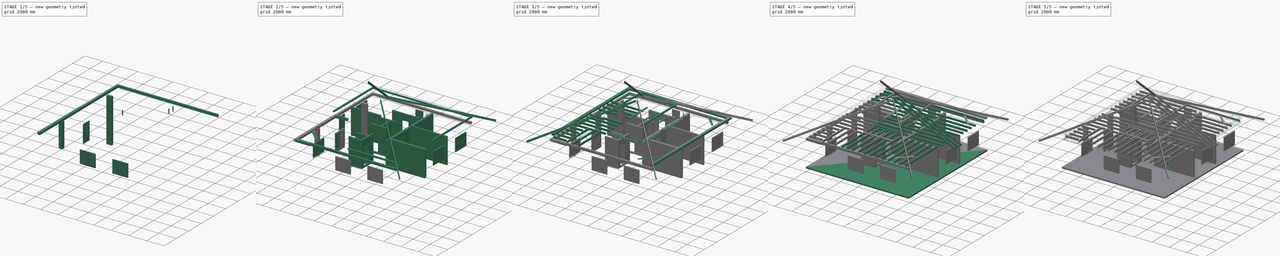
[diagram: build sequence overview — one tinted view per stage of 5, left to right]
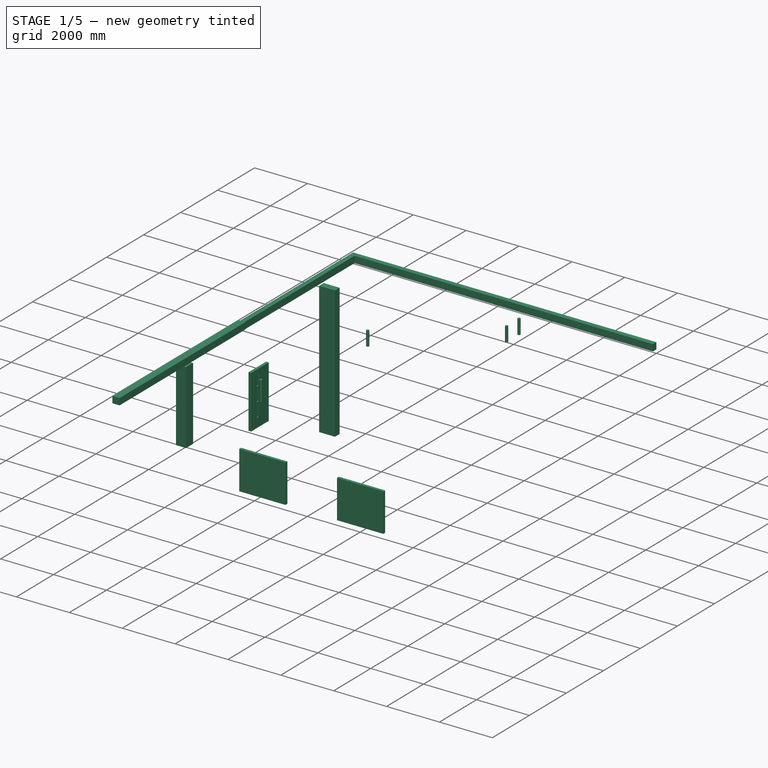
[diagram: stage 1 of 5 — iso view after this stage's code; geometry added in this stage tinted green]
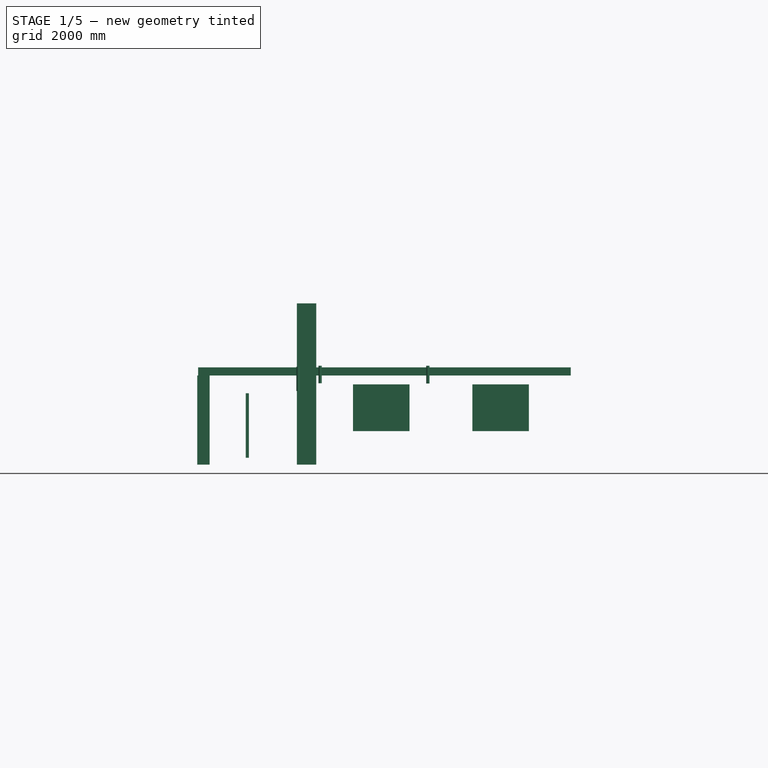
[diagram: stage 1 of 5 — front view after this stage's code; geometry added in this stage tinted green]
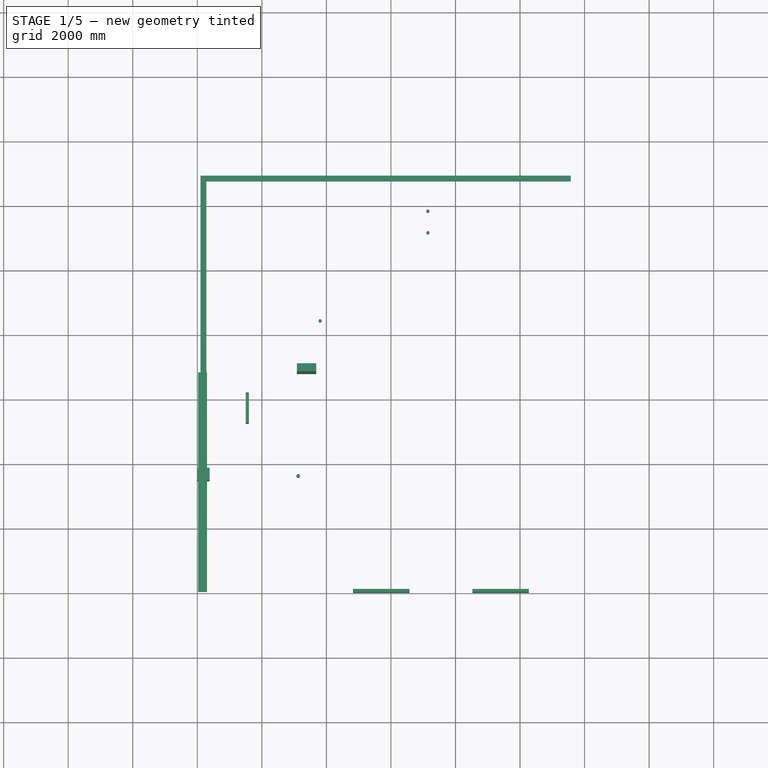
[diagram: stage 1 of 5 — top view after this stage's code; geometry added in this stage tinted green]
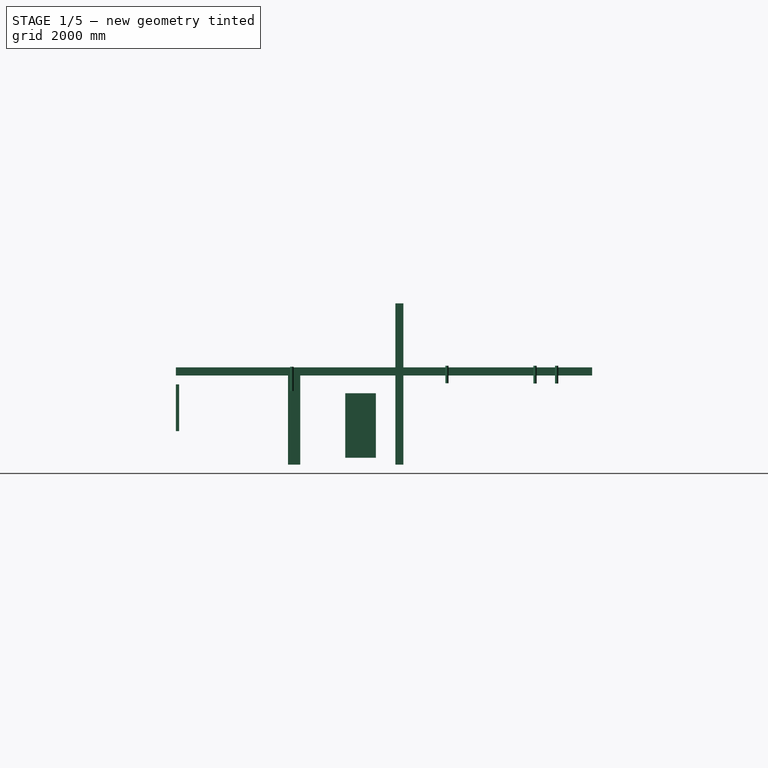
[diagram: stage 1 of 5 — right view after this stage's code; geometry added in this stage tinted green]
FCSTD DOCUMENT  (FreeCAD 1.0R39109 (Git))
Label: дом
License: All rights reserved
objects: Part::FeaturePython×194, TechDraw::DrawViewDimension×118, Part::Part2DObjectPython×89, Sketcher::SketchObject×54, TechDraw::DrawGeomHatch×35, Part::Extrusion×24, Part::Cut×18, TechDraw::DrawViewBalloon×17, App::DocumentObjectGroup×7, App::FeaturePython×6, TechDraw::DrawSVGTemplate×5, TechDraw::DrawProjGroupItem×5, TechDraw::DrawPage×5, App::GeometryPython×4, Spreadsheet::Sheet×4, Part::Feature×2, TechDraw::DrawHatch×1
note: 656 computed .brp shape members not serialized (recipe doc carries the construction recipe); baked Part::Feature solids carry a one-line shape summary decoded from their .brp

FEATURE [App::GeometryPython] BuildingPart001  label="Уровень_пола_0"  # Arch/BIM 14 (typed FeaturePython)
  Area = 0
  CompositionType = 0
  Elevation = 0
  GlobalId = 3i7Uiq8ej5MAOSrt_0APlf
  Group = -> [WPProxy,App__DocumentObjectGroup001,App__DocumentObjectGroup002,Structure]
  Height = 3100
  HeightPropagate = true
  IfcData = IfcUID=3i7Uiq8ej5MAOSrt_0APlf,+2 more (map truncated)
  IfcType = 14
  LevelOffset = 0
  LongName = Уровень
  MaterialsTable = Undefined=0
  OnlySolids = true
  expr: Elevation = .Placement.Base.z
FEATURE [Spreadsheet::Sheet] Spreadsheet  label="data"
  cells = A2='Контур строения; A3='width; B3(width_home)==13 m; D3='Нулевой уровень; E3(zero_lvl)==0 mm; G3='Ширина ЖБ плиты; H3(slab_width)==160 mm; A4='length; B4(length_home)==1185 cm; G4='Высота стен; H4(wall_heigh)==2765 mm; G5='Высота МП-1; H5(mp1_heith)==250 mm; A17='Размеры для проёмов окон и дверей; B17='Height (Высота); C17='Length Длина(Ширина); D17='Координаты; E17='x; F17='y; G17='z; A18='OK-4_1 Юг Кухня; B18(height_ok4)==1500 mm; C18(length_ok4)==1800 mm; E18(x_ok4)==4800 mm; F18(y_ok4)==0 mm; G18(z_ok4)==1015 mm; A19='ОК-3 Запад Кухня; B19(height_ok3)==1500 mm; C19(length_ok3)==1800 mm; E19(x_ok3)==1500 mm; F19(y_ok3)==2825 mm; G19(z_ok3)==1015 mm; A20='Дв-1 Запад; B20(height_d1)==2100 mm; C20(length_d1)==1600 mm; E20(x_d1)==1500 mm; F20(y_d1)==6250 mm; G20(z_d1)==165 mm; A21='ОК-1 Запад бабушк ком-а; B21(height_ok1)==1500 mm; C21(length_ok1)==1800 mm; E21(x_ok1)==0 mm; F21(y_ok1)==12070 mm; G21(z_ok1)==1015 mm; A22='ОК-2 Запад Тех. помещение; B22(height_ok2)==1500 mm; C22(length_ok2)==900 mm; E22(x_ok2)==0 mm; F22(y_ok2)==8375 mm; G22(z_ok2)==1015 mm; A23='Дв-2 Восток кухня; B23(height_d2)==2350 mm; C23(length_d2)==1800 mm; E23(x_d2)==11.85 m; F23(y_d2)==2075 mm; G23(z_d2)==165 mm; A24='ОК-3 Восток комната детская; B24(height_ok3_ch)==1500 mm; C24(length_ok3_ch)==1800 mm; E24(x_ok3_ch)==11.85 m; F24(y_ok3_ch)==6175 mm; G24(z_ok3_ch)==1015 mm; A25='ОК-3 Восток комната родительская; B25(height_ok3_par)==1500 mm; C25(length_ok3_par)==1800 mm; E25(x_ok3_par)==11.85 m; F25(y_ok3_par)==9825 mm; G25(z_ok3_par)==1015 mm; A26='ОК-2 Север Сан узел; B26(height_ok2_bathroom)==1500 mm; C26(length_ok2_bathroom)==900 mm; E26(x_ok2_bathroom)==5925 mm; F26(y_ok2_bathroom)==13 m; G26(z_ok2_bathroom)==1015 mm; A27='Дв-4 Запад прихожая; B27(height_d4)==2100 mm; C27(length_d4)==1000 mm; E27(x_d4)==3675 mm; F27(y_d4)==6525 mm; G27(z_d4)==165 mm; A28='Дв-5 Запад бабушкина комната; B28(height_d5_GM_room)==2100 mm; C28(length_d5_GM_room)==900 mm; E28(x_d5_GM_room)==3925 mm; F28(y_d5_GM_room)==9600 mm; G28(z_d5_GM_room)==165 mm; A29='Дв-5 Восток родительская; B29(height_d5_par_room)==2100 mm; C29(length_d5_par_room)==900 mm; E29(x_d5_par_room)==7025 mm; F29(y_d5_par_room)==10.45 m; G29(z_d5_par_room)==165 mm; A30='Дв-5 Восток детская; B30(height_d5_ch_room)==2100 mm; C30(length_d5_ch_room)==900 mm; E30(x_d5_ch_room)==7025 mm; F30(y_d5_ch_room)==7925 mm; G30(z_d5_ch_room)==165 mm; A31='Дв-5 Запад вход в тех помещение; B31(height_d5_tech_room)==2100 mm; C31(length_d5_tech_room)==900 mm; E31(x_d5_tech_room)==1950 mm; F31(y_d5_tech_room)==6650 mm; G31(z_d5_tech_room)==165 mm; A32='Дв-6 Север сан узел; B32(height_d6_bathroom)==2100 mm; C32(length_d6_bathroom)==800 mm; E32(x_d6_bathroom)==5025 mm; F32(y_d6_bathroom)==10.65 m; G32(z_d6_bathroom)==165 mm; A33='Дв-6 Туалет; B33(height_d6_tualet)==2100 mm; C33(length_d6_tualet)==800 mm; E33(x_d6_tualet)==4025 mm; F33(y_d6_tualet)==7050 mm; G33(z_d6_tualet)==165 mm; A34='Дв-6 Шкаф; B34(height_d6_box)==2100 mm; C34(length_d6_box)==800 mm; G34(z_d6_box)==165 mm; A35='ОК-4_2 Юг Кухня; B35(height_ok4_2)==1500 mm; C35(length_ok4_2)==1800 mm; E35(x_ok4_2)==8500 mm; F35(y_ok4_2)==0 mm; G35(z_ok4_2)==1015 mm; A36='Балки перекрытия (дерево); B36='Толщина (мм); C36='Высота (мм); D36='Длина (мм); A37=1; B37(beam1_thickness)=100; C37(beam1_height)=200; D37(beam1_length)=4520; A38=2; B38(beam2_thickness)=100; C38(beam2_height)=200; D38(beam2_length)=3340; A39=3; B39(beam3_thickness)=100; C39(beam3_height)=200; D39(beam3_length)=5250; A40=4; B40(beam4_thickness)=100; C40(beam4_height)=200; D40(beam4_length)=3620; A41=5; B41(beam5_thickness)=100; C41(beam5_height)=200; D41(beam5_length)=3550; A42=6; B42(beam6_thickness)=100; C42(beam6_height)=200; D42(beam6_length)=2120; A43=7; B43(beam7_thickness)=100; C43(beam7_height)=200; D43(beam7_length)=1495; A44=8; B44(beam8_thickness)=100; C44(beam8_height)=200; D44(beam8_length)=2000; A45=9; B45(beam9_thickness)=100; C45(beam9_height)=200; D45(beam9_length)=1260; A46=10; B46(beam10_thickness)=100; C46(beam10_height)=200; D46(beam10_length)=540; A47=11; B47(beam11_thickness)=100; C47(beam11_height)=200; D47(beam11_length)=2740; A48=12; B48(beam12_thickness)=100; C48(beam12_height)=200; D48(beam12_length)=920; A49=13; B49(beam13_thickness)=100; C49(beam13_height)=200; D49(beam13_length)=910; A51='Элементы кровли (дерево); A52='Позиция; B52='Обозначение; C52='Толщина (мм); D52='Высота (мм); E52='Длина (мм); A53=1; B53='мауэрлат; C53(mt_thickness)=150; D53(mt_height)=150; E53(mt_length)=6000; A54=2; B54='прогон; C54(progon_thinkness)=150; D54(progon_height)=150; A55=3; B55='лежень; C55(lezh_thickness)=200; +63 more cells
FEATURE [Part::Part2DObjectPython] Wire  # Draft 2D object (typed FeaturePython)
  Area = 0
  ChamferSize = 0
  Closed = true
  End = (1800,6800,0)
  FilletRadius = 0
  Length = 47300
  MakeFace = false
  Placement = pos=(1800,300,0) rot=(0,0,1;0rad)
  Points = (6) [(0,0,0),(9750,2.16005e-12,0),(9750,12400,0),(-1500,12400,0),(-1500,6500,0),(0,6500,0)]
  Start = (1800,300,0)
  Subdivisions = 0
FEATURE [Part::FeaturePython] Wall001  label="Внешняя стена"  # Arch/BIM 166 (typed FeaturePython)
  Align = 0
  ArchSketchData = true
  Area = 134102500
  Base = -> Wire
  BlockHeight = 0
  BlockLength = 0
  CountBroken = 0
  CountEntire = 0
  Face = 0
  Height = 2765
  HorizontalArea = 1.455e+07
  IfcData = attributes={"GlobalId": {"name": "GlobalId", "type": "IfcGloballyUniqueId", "is_enum": false, "enum_values": []}, "Description": {"... (+533 chars omitted),+1 more (map truncated)
  IfcType = 166
  Joint = 0
  Length = 48500
  MakeBlocks = false
  MoveBase = false
  MoveWithHost = false
  Normal = (0,0,0)
  OffsetFirst = 0
  OffsetSecond = 0
  PerimeterLength = 97000
  PredefinedType = 0
  VerticalArea = 268205000
  Width = 300
  expr: .Placement.Base.z = <<data>>.zero_lvl
  expr: Height = <<data>>.wall_heigh
FEATURE [Part::Part2DObjectPython] Rectangle002  # Draft 2D object (typed FeaturePython)
  Area = 2.7e+06
  ChamferSize = 0
  Columns = 1
  FilletRadius = 0
  Height = 1500
  Length = 1800
  MakeFace = true
  Placement = pos=(4800,0,1015) rot=(1,0,0;1.5708rad)
  Rows = 1
  expr: .Placement.Base.x = <<data>>.x_ok4
  expr: .Placement.Base.y = <<data>>.y_ok4
  expr: .Placement.Base.z = <<data>>.z_ok4
  expr: Height = <<data>>.height_ok4
  expr: Length = <<data>>.length_ok4
FEATURE [Part::Extrusion] Extrude
  Base = -> Rectangle002
  Dir = (0,-1,2e-16)
  DirMode = 2
  FaceMakerClass = Part::FaceMakerBullseye
  FaceMakerMode = 3
  LengthFwd = 375
  LengthRev = 375
  Solid = false
  Symmetric = false
FEATURE [Part::Cut] Cut  label="Wall_Cut_OK4"
  Base = -> Wall001
  Refine = true
  Tool = -> Extrude
FEATURE [Part::Part2DObjectPython] Rectangle003  # Draft 2D object (typed FeaturePython)
  Area = 2.7e+06
  ChamferSize = 0
  Columns = 1
  FilletRadius = 0
  Height = 1500
  Length = 1800
  MakeFace = true
  Placement = pos=(1500,2825,1015) rot=(0.57735,-0.57735,-0.57735;2.0944rad)
  Rows = 1
  expr: .Placement.Base.x = <<data>>.x_ok3
  expr: .Placement.Base.y = <<data>>.y_ok3
  expr: .Placement.Base.z = <<data>>.z_ok3
  expr: Height = <<data>>.height_ok3
  expr: Length = <<data>>.length_ok3
FEATURE [Part::Extrusion] Extrude001
  Base = -> Rectangle003
  Dir = (-1,0,0)
  DirMode = 2
  FaceMakerClass = Part::FaceMakerBullseye
  FaceMakerMode = 3
  LengthFwd = 300
  LengthRev = 300
  Solid = false
  Symmetric = false
FEATURE [Part::Cut] Cut001  label="Wall_Cut_OK3"
  Base = -> Cut
  Refine = true
  Tool = -> Extrude001
FEATURE [Part::Part2DObjectPython] Rectangle004  # Draft 2D object (typed FeaturePython)
  Area = 3360000
  ChamferSize = 0
  Columns = 1
  FilletRadius = 0
  Height = 2100
  Length = 1600
  MakeFace = true
  Placement = pos=(1500,6250,165) rot=(0.57735,-0.57735,-0.57735;2.0944rad)
  Rows = 1
  expr: .Placement.Base.x = <<data>>.x_d1
  expr: .Placement.Base.y = <<data>>.y_d1
  expr: .Placement.Base.z = <<data>>.z_d1
  expr: Height = <<data>>.height_d1
  expr: Length = <<data>>.length_d1
FEATURE [Part::Extrusion] Extrude002
  Base = -> Rectangle004
  Dir = (-1,0,0)
  DirMode = 2
  FaceMakerClass = Part::FaceMakerBullseye
  FaceMakerMode = 3
  LengthFwd = 300
  LengthRev = 300
  Solid = false
  Symmetric = false
FEATURE [Part::Cut] Cut002  label="Wall_Cut_D1"
  Base = -> Cut001
  Refine = true
  Tool = -> Extrude002
FEATURE [Part::Part2DObjectPython] Rectangle005  # Draft 2D object (typed FeaturePython)
  Area = 2.7e+06
  ChamferSize = 0
  Columns = 1
  FilletRadius = 0
  Height = 1500
  Length = 1800
  MakeFace = true
  Placement = pos=(0,12070,1015) rot=(0.57735,-0.57735,-0.57735;2.0944rad)
  Rows = 1
  expr: .Placement.Base.x = <<data>>.x_ok1
  expr: .Placement.Base.y = <<data>>.y_ok1
  expr: .Placement.Base.z = <<data>>.z_ok1
  expr: Height = <<data>>.height_ok1
  expr: Length = <<data>>.length_ok1
FEATURE [Part::Extrusion] Extrude003
  Base = -> Rectangle005
  Dir = (-1,0,0)
  DirMode = 2
  FaceMakerClass = Part::FaceMakerBullseye
  FaceMakerMode = 3
  LengthFwd = 300
  LengthRev = 300
  Solid = false
  Symmetric = false
FEATURE [Part::Cut] Cut003  label="Wall_Cut_OK1"
  Base = -> Cut002
  Refine = true
  Tool = -> Extrude003
FEATURE [Part::Part2DObjectPython] Rectangle006  # Draft 2D object (typed FeaturePython)
  Area = 1.35e+06
  ChamferSize = 0
  Columns = 1
  FilletRadius = 0
  Height = 1500
  Length = 900
  MakeFace = true
  Placement = pos=(0,8375,1015) rot=(0.57735,-0.57735,-0.57735;2.0944rad)
  Rows = 1
  expr: .Placement.Base.x = <<data>>.x_ok2
  expr: .Placement.Base.y = <<data>>.y_ok2
  expr: .Placement.Base.z = <<data>>.z_ok2
  expr: Height = <<data>>.height_ok2
  expr: Length = <<data>>.length_ok2
FEATURE [Part::Extrusion] Extrude004
  Base = -> Rectangle006
  Dir = (-1,0,0)
  DirMode = 2
  FaceMakerClass = Part::FaceMakerBullseye
  FaceMakerMode = 3
  LengthFwd = 300
  LengthRev = 300
  Solid = false
  Symmetric = false
FEATURE [Part::Cut] Cut004  label="Wall_Cut_OK2"
  Base = -> Cut003
  Tool = -> Extrude004
FEATURE [Part::Part2DObjectPython] Rectangle007  # Draft 2D object (typed FeaturePython)
  Area = 4.23e+06
  ChamferSize = 0
  Columns = 1
  FilletRadius = 0
  Height = 2350
  Length = 1800
  MakeFace = true
  Placement = pos=(11850,2075,165) rot=(0.57735,0.57735,0.57735;2.0944rad)
  Rows = 1
  expr: .Placement.Base.x = <<data>>.x_d2
  expr: .Placement.Base.y = <<data>>.y_d2
  expr: .Placement.Base.z = <<data>>.z_d2
  expr: Height = <<data>>.height_d2
  expr: Length = <<data>>.length_d2
FEATURE [Part::Extrusion] Extrude005
  Base = -> Rectangle007
  Dir = (1,0,0)
  DirMode = 2
  FaceMakerClass = Part::FaceMakerBullseye
  FaceMakerMode = 3
  LengthFwd = 300
  LengthRev = 300
  Solid = false
  Symmetric = false
FEATURE [Part::Cut] Cut005  label="Wall_Cut_D2"
  Base = -> Cut004
  Tool = -> Extrude005
FEATURE [Part::Part2DObjectPython] Rectangle008  # Draft 2D object (typed FeaturePython)
  Area = 2.7e+06
  ChamferSize = 0
  Columns = 1
  FilletRadius = 0
  Height = 1500
  Length = 1800
  MakeFace = true
  Placement = pos=(11850,6175,1015) rot=(0.57735,0.57735,0.57735;2.0944rad)
  Rows = 1
  expr: .Placement.Base.x = <<data>>.x_ok3_ch
  expr: .Placement.Base.y = <<data>>.y_ok3_ch
  expr: .Placement.Base.z = <<data>>.z_ok3_ch
  expr: Height = <<data>>.height_ok3_ch
  expr: Length = <<data>>.length_ok3_ch
FEATURE [Part::Extrusion] Extrude006
  Base = -> Rectangle008
  Dir = (1,0,0)
  DirMode = 2
  FaceMakerClass = Part::FaceMakerBullseye
  FaceMakerMode = 3
  LengthFwd = 300
  LengthRev = 300
  Solid = false
  Symmetric = false
FEATURE [Part::Cut] Cut006  label="Wall_Cut_D3-1"
  Base = -> Cut005
  Tool = -> Extrude006
FEATURE [Part::Part2DObjectPython] Rectangle009  # Draft 2D object (typed FeaturePython)
  Area = 2.7e+06
  ChamferSize = 0
  Columns = 1
  FilletRadius = 0
  Height = 1500
  Length = 1800
  MakeFace = true
  Placement = pos=(11850,9825,1015) rot=(0.57735,0.57735,0.57735;2.0944rad)
  Rows = 1
  expr: .Placement.Base.x = <<data>>.x_ok3_par
  expr: .Placement.Base.y = <<data>>.y_ok3_par
  expr: .Placement.Base.z = <<data>>.z_ok3_par
  expr: Height = <<data>>.height_ok3_par
  expr: Length = <<data>>.length_ok3_par
FEATURE [Part::Extrusion] Extrude007
  Base = -> Rectangle009
  Dir = (1,0,0)
  DirMode = 2
  FaceMakerClass = Part::FaceMakerBullseye
  FaceMakerMode = 3
  LengthFwd = 300
  LengthRev = 300
  Solid = false
  Symmetric = false
FEATURE [Part::Cut] Cut007  label="Wall_Cut_D3-2"
  Base = -> Cut006
  Tool = -> Extrude007
FEATURE [Part::Part2DObjectPython] Rectangle010  # Draft 2D object (typed FeaturePython)
  Area = 1.35e+06
  ChamferSize = 0
  Columns = 1
  FilletRadius = 0
  Height = 1500
  Length = 900
  MakeFace = true
  Placement = pos=(5925,13000,1015) rot=(0,0.707107,0.707107;3.14159rad)
  Rows = 1
  expr: .Placement.Base.x = <<data>>.x_ok2_bathroom
  expr: .Placement.Base.y = <<data>>.y_ok2_bathroom
  expr: .Placement.Base.z = <<data>>.z_ok2_bathroom
  expr: Height = <<data>>.height_ok2_bathroom
  expr: Length = <<data>>.length_ok2_bathroom
FEATURE [Part::Extrusion] Extrude008
  Base = -> Rectangle010
  Dir = (0,1,-2e-16)
  DirMode = 2
  FaceMakerClass = Part::FaceMakerBullseye
  FaceMakerMode = 3
  LengthFwd = 300
  LengthRev = 300
  Solid = false
  Symmetric = false
FEATURE [Part::Cut] Cut008  label="Wall_Cut_OK2-1"
  Base = -> Cut007
  Refine = true
  Tool = -> Extrude008
FEATURE [Part::Part2DObjectPython] Wire001  # Draft 2D object (typed FeaturePython)
  Area = 0
  ChamferSize = 0
  Closed = false
  End = (1800,3475,0)
  FilletRadius = 0
  Length = 11350
  MakeFace = true
  Placement = pos=(3925,12700,0) rot=(0,0,1;0rad)
  Points = (3) [(0,0,0),(0,-9225,0),(-2125,-9225,0)]
  Start = (3925,12700,0)
  Subdivisions = 0
FEATURE [Part::FeaturePython] Wall  label="Load-bearing_Wall1"  # Arch/BIM 166 (typed FeaturePython)
  Align = 0
  ArchSketchData = true
  Area = 30719150
  Base = -> Wire001
  BlockHeight = 0
  BlockLength = 0
  CountBroken = 0
  CountEntire = 0
  Face = 0
  Height = 2765
  HorizontalArea = 2.6664e+06
  IfcData = attributes={"GlobalId": {"name": "GlobalId", "type": "IfcGloballyUniqueId", "is_enum": false, "enum_values": []}, "Description": {"... (+533 chars omitted),+1 more (map truncated)
  IfcType = 166
  Joint = 0
  Length = 11110
  MakeBlocks = false
  MoveBase = false
  MoveWithHost = false
  Normal = (0,0,0)
  OffsetFirst = 0
  OffsetSecond = 0
  PerimeterLength = 22700
  PredefinedType = 0
  VerticalArea = 62765500
  Width = 240
  expr: .Placement.Base.z = <<data>>.zero_lvl
  expr: Height = <<data>>.wall_heigh
FEATURE [Part::Part2DObjectPython] Wire002  # Draft 2D object (typed FeaturePython)
  Area = 0
  ChamferSize = 0
  Closed = false
  End = (11550,5175,0)
  FilletRadius = 0
  Length = 12050
  MakeFace = true
  Placement = pos=(7025,12700,0) rot=(0,0,1;0rad)
  Points = (4) [(0,0,0),(0,-7525,0),(4525,-7525,0),(4525,-7525,0)]
  Start = (7025,12700,0)
  Subdivisions = 0
FEATURE [Part::FeaturePython] Wall002  label="Load-bearing_Wall2"  # Arch/BIM 166 (typed FeaturePython)
  Align = 1
  ArchSketchData = true
  Area = 32654650
  Base = -> Wire002
  BlockHeight = 0
  BlockLength = 0
  CountBroken = 0
  CountEntire = 0
  Face = 0
  Height = 2765
  HorizontalArea = 2834400
  IfcData = attributes={"GlobalId": {"name": "GlobalId", "type": "IfcGloballyUniqueId", "is_enum": false, "enum_values": []}, "Description": {"... (+533 chars omitted),+1 more (map truncated)
  IfcType = 166
  Joint = 0
  Length = 11810
  MakeBlocks = false
  MoveBase = false
  MoveWithHost = false
  Normal = (0,0,0)
  OffsetFirst = 0
  OffsetSecond = 0
  PerimeterLength = 24100
  PredefinedType = 0
  VerticalArea = 66636500
  Width = 240
  expr: .Placement.Base.z = <<data>>.zero_lvl
  expr: Height = <<data>>.wall_heigh
FEATURE [Part::Part2DObjectPython] Rectangle011  # Draft 2D object (typed FeaturePython)
  Area = 2.1e+06
  ChamferSize = 0
  Columns = 1
  FilletRadius = 0
  Height = 2100
  Length = 1000
  MakeFace = true
  Placement = pos=(3675,6525,165) rot=(0.57735,-0.57735,-0.57735;2.0944rad)
  Rows = 1
  expr: .Placement.Base.x = <<data>>.x_d4
  expr: .Placement.Base.y = <<data>>.y_d4
  expr: .Placement.Base.z = <<data>>.z_d4
  expr: Height = <<data>>.height_d4
  expr: Length = <<data>>.length_d4
FEATURE [Part::Extrusion] Extrude009
  Base = -> Rectangle011
  Dir = (-1,0,0)
  DirMode = 2
  FaceMakerClass = Part::FaceMakerBullseye
  FaceMakerMode = 3
  LengthFwd = 0
  LengthRev = 250
  Solid = false
  Symmetric = false
FEATURE [Part::Cut] Cut009  label="Lb_Wall_Cut_D4"
  Base = -> Wall
  Refine = true
  Tool = -> Extrude009
FEATURE [Part::Part2DObjectPython] Rectangle012  # Draft 2D object (typed FeaturePython)
  Area = 1.89e+06
  ChamferSize = 0
  Columns = 1
  FilletRadius = 0
  Height = 2100
  Length = 900
  MakeFace = true
  Placement = pos=(3925,9600,165) rot=(0.57735,0.57735,0.57735;2.0944rad)
  Rows = 1
  expr: .Placement.Base.x = <<data>>.x_d5_GM_room
  expr: .Placement.Base.y = <<data>>.y_d5_GM_room
  expr: .Placement.Base.z = <<data>>.z_d5_GM_room
  expr: Height = <<data>>.height_d5_GM_room
  expr: Length = <<data>>.length_d5_GM_room
FEATURE [Part::Extrusion] Extrude010
  Base = -> Rectangle012
  Dir = (1,0,0)
  DirMode = 2
  FaceMakerClass = Part::FaceMakerBullseye
  FaceMakerMode = 3
  LengthFwd = 0
  LengthRev = 250
  Solid = false
  Symmetric = false
FEATURE [Part::Cut] Cut010  label="Lb_Wall_Cut_D5"
  Base = -> Cut009
  Refine = true
  Tool = -> Extrude010
FEATURE [Part::Part2DObjectPython] Line001  # Draft 2D object (typed FeaturePython)
  Area = 0
  ChamferSize = 0
  Closed = false
  End = (3685,6800,0)
  FilletRadius = 0
  Length = 1885
  MakeFace = true
  Placement = pos=(1800,6800,0) rot=(0,0,-1;1.5708rad)
  Points = (2) [(0,0,0),(9.14345e-13,1885,0)]
  Start = (1800,6800,0)
  Subdivisions = 0
FEATURE [Part::FeaturePython] Wall004  label="Стена001"  # Arch/BIM 166 (typed FeaturePython)
  Align = 0
  ArchSketchData = true
  Area = 5626725
  Base = -> Line001
  BlockHeight = 0
  BlockLength = 0
  CountBroken = 0
  CountEntire = 0
  Face = 0
  Height = 2985
  HorizontalArea = 282750
  IfcData = attributes={"GlobalId": {"name": "GlobalId", "type": "IfcGloballyUniqueId", "is_enum": false, "enum_values": []}, "Description": {"... (+533 chars omitted),+1 more (map truncated)
  IfcType = 166
  Joint = 0
  Length = 1885
  MakeBlocks = false
  MoveBase = false
  MoveWithHost = false
  Normal = (0,0,0)
  OffsetFirst = 0
  OffsetSecond = 0
  PerimeterLength = 4070
  PredefinedType = 0
  VerticalArea = 12148950
  Width = 150
  expr: .Placement.Base.z = <<data>>.zero_lvl
  expr: Height = <<data>>.wall_heigh + <<data>>.mp1_heith - 30 mm
FEATURE [Part::Part2DObjectPython] Rectangle015  # Draft 2D object (typed FeaturePython)
  Area = 0
  ChamferSize = 0
  Columns = 1
  FilletRadius = 0
  Height = 2100
  Length = 900
  MakeFace = false
  Placement = pos=(1950,6650,165) rot=(1,0,0;1.5708rad)
  Rows = 1
  expr: .Placement.Base.x = <<data>>.x_d5_tech_room
  expr: .Placement.Base.y = <<data>>.y_d5_tech_room
  expr: .Placement.Base.z = <<data>>.z_d5_tech_room
  expr: Height = <<data>>.height_d5_tech_room
  expr: Length = <<data>>.length_d5_tech_room
FEATURE [Part::Extrusion] Extrude013
  Base = -> Rectangle015
  Dir = (-2e-15,-1,2e-16)
  DirMode = 2
  FaceMakerClass = Part::FaceMakerBullseye
  FaceMakerMode = 3
  LengthFwd = 0
  LengthRev = 150
  Solid = true
  Symmetric = false
FEATURE [Part::Cut] Cut013  label="Wall_tech_room_d5"
  Base = -> Wall004
  Tool = -> Extrude013
FEATURE [Part::Part2DObjectPython] Rectangle032  # Draft 2D object (typed FeaturePython)
  Area = 2156400
  ChamferSize = 0
  Columns = 1
  FilletRadius = 0
  Height = 8985
  Length = 240
  MakeFace = true
  Placement = pos=(3685,3715,2765) rot=(0,0,1;0rad)
  Rows = 1
  expr: .Placement.Base.z = <<Load-bearing_Wall1>>.Height
FEATURE [Part::FeaturePython] Structure068  label="МП-2 Запад 1"  # Arch/BIM 7 (typed FeaturePython)
  Base = -> Rectangle032
  BaseMirror = false
  BaseOffsetX = 0
  BaseOffsetY = 0
  BasePerpendicularToTool = false
  BaseRotation = 0
  ComputedLength = 250
  FaceMaker = 0
  GlobalId = 0Enm6fSTLDM9YuLCkRWrtp
  Height = 250
  HorizontalArea = 2156400
  IfcData = IfcUID=0Enm6fSTLDM9YuLCkRWrtp,+2 more (map truncated)
  IfcType = 7
  Length = 0
  MoveBase = false
  MoveWithHost = false
  Nodes = (2) [(3805,8207.5,2765),(3805,8207.5,3015)]
  NodesOffset = 0
  Normal = (0,0,0)
  PerimeterLength = 18450
  PredefinedType = 0
  ToolOffsetFirst = 0
  ToolOffsetLast = 0
  VerticalArea = 4612500
  Width = 100
FEATURE [Part::Part2DObjectPython] Rectangle033  # Draft 2D object (typed FeaturePython)
  Area = 510000
  ChamferSize = 0
  Columns = 1
  FilletRadius = 0
  Height = 240
  Length = 2125
  MakeFace = true
  Placement = pos=(1800,3475,2765) rot=(0,0,1;0rad)
  Rows = 1
  expr: .Placement.Base.z = <<Load-bearing_Wall1>>.Height
FEATURE [Part::FeaturePython] Structure069  label="МП-2 Запад 2"  # Arch/BIM 7 (typed FeaturePython)
  Base = -> Rectangle033
  BaseMirror = false
  BaseOffsetX = 0
  BaseOffsetY = 0
  BasePerpendicularToTool = false
  BaseRotation = 0
  ComputedLength = 250
  FaceMaker = 0
  GlobalId = 0RBn2PPzDCWwuJ$WWNWxW7
  Height = 250
  HorizontalArea = 510000
  IfcData = IfcUID=0RBn2PPzDCWwuJ$WWNWxW7,+2 more (map truncated)
  IfcType = 7
  Length = 0
  MoveBase = false
  MoveWithHost = false
  Nodes = (2) [(2862.5,3595,2765),(2862.5,3595,3015)]
  NodesOffset = 0
  Normal = (0,0,0)
  PerimeterLength = 4730
  PredefinedType = 0
  ToolOffsetFirst = 0
  ToolOffsetLast = 0
  VerticalArea = 1.1825e+06
  Width = 100
FEATURE [Part::Part2DObjectPython] Rectangle034  # Draft 2D object (typed FeaturePython)
  Area = 1806000
  ChamferSize = 0
  Columns = 1
  FilletRadius = 0
  Height = 7525
  Length = 240
  MakeFace = true
  Placement = pos=(7025,5175,2765) rot=(0,0,1;0rad)
  Rows = 1
  expr: .Placement.Base.z = <<Load-bearing_Wall2>>.Height
FEATURE [Part::FeaturePython] Structure070  label="МП-2 Восток 1"  # Arch/BIM 7 (typed FeaturePython)
  Base = -> Rectangle034
  BaseMirror = false
  BaseOffsetX = 0
  BaseOffsetY = 0
  BasePerpendicularToTool = false
  BaseRotation = 0
  ComputedLength = 250
  FaceMaker = 0
  GlobalId = 0tK1jD0HjCkO0tdFFXOhKC
  Height = 250
  HorizontalArea = 1806000
  IfcData = IfcUID=0tK1jD0HjCkO0tdFFXOhKC,+2 more (map truncated)
  IfcType = 7
  Length = 0
  MoveBase = false
  MoveWithHost = false
  Nodes = (2) [(7145,8937.5,2765),(7145,8937.5,3015)]
  NodesOffset = 0
  Normal = (0,0,0)
  PerimeterLength = 15530
  PredefinedType = 0
  ToolOffsetFirst = 0
  ToolOffsetLast = 0
  VerticalArea = 3882500
  Width = 100
FEATURE [Part::Part2DObjectPython] Rectangle038  # Draft 2D object (typed FeaturePython)
  Area = 1206000
  ChamferSize = 0
  Columns = 1
  FilletRadius = 0
  Height = 6700
  Length = 180
  MakeFace = true
  Placement = pos=(1500,0,2765) rot=(0,0,1;0rad)
  Rows = 1
  expr: .Placement.Base.z = <<Внешняя стена>>.Height
FEATURE [Part::FeaturePython] Structure074  label="МП-1-3"  # Arch/BIM 7 (typed FeaturePython)
  Base = -> Rectangle038
  BaseMirror = false
  BaseOffsetX = 0
  BaseOffsetY = 0
  BasePerpendicularToTool = false
  BaseRotation = 0
  ComputedLength = 250
  FaceMaker = 0
  GlobalId = 2E2hU6FKj4KwZpKQyNi5l_
  Height = 250
  HorizontalArea = 1206000
  IfcData = IfcUID=2E2hU6FKj4KwZpKQyNi5l_,+2 more (map truncated)
  IfcType = 7
  Length = 0
  MoveBase = false
  MoveWithHost = false
  Nodes = (2) [(1590,3350,2765),(1590,3350,3015)]
  NodesOffset = 0
  Normal = (0,0,0)
  PerimeterLength = 13760
  Placement = pos=(100,100,0) rot=(0,0,1;0rad)
  PredefinedType = 0
  ToolOffsetFirst = 0
  ToolOffsetLast = 0
  VerticalArea = 3440000
  Width = 100
FEATURE [Part::Part2DObjectPython] Rectangle040  # Draft 2D object (typed FeaturePython)
  Area = 1098000
  ChamferSize = 0
  Columns = 1
  FilletRadius = 0
  Height = 6100
  Length = 180
  MakeFace = true
  Placement = pos=(0,6800,2765) rot=(0,0,1;0rad)
  Rows = 1
  expr: .Placement.Base.z = <<Внешняя стена>>.Height
FEATURE [Part::FeaturePython] Structure076  label="МП-1-5"  # Arch/BIM 7 (typed FeaturePython)
  Base = -> Rectangle040
  BaseMirror = false
  BaseOffsetX = 0
  BaseOffsetY = 0
  BasePerpendicularToTool = false
  BaseRotation = 0
  ComputedLength = 250
  FaceMaker = 0
  GlobalId = 3J2dBEeP9EVuTFIxXEc7FP
  Height = 250
  HorizontalArea = 1098000
  IfcData = IfcUID=3J2dBEeP9EVuTFIxXEc7FP,+2 more (map truncated)
  IfcType = 7
  Length = 0
  MoveBase = false
  MoveWithHost = false
  Nodes = (2) [(90,9850,2765),(90,9850,3015)]
  NodesOffset = 0
  Normal = (0,0,0)
  PerimeterLength = 12560
  Placement = pos=(100,0,0) rot=(0,0,1;0rad)
  PredefinedType = 0
  ToolOffsetFirst = 0
  ToolOffsetLast = 0
  VerticalArea = 3140000
  Width = 100
FEATURE [Part::Part2DObjectPython] Rectangle041  # Draft 2D object (typed FeaturePython)
  Area = 2.0322e+06
  ChamferSize = 0
  Columns = 1
  FilletRadius = 0
  Height = 180
  Length = 11290
  MakeFace = true
  Placement = pos=(280,12720,2765) rot=(0,0,1;0rad)
  Rows = 1
  expr: .Placement.Base.z = <<Внешняя стена>>.Height
FEATURE [Part::FeaturePython] Structure077  label="МП-1-6"  # Arch/BIM 7 (typed FeaturePython)
  Base = -> Rectangle041
  BaseMirror = false
  BaseOffsetX = 0
  BaseOffsetY = 0
  BasePerpendicularToTool = false
  BaseRotation = 0
  ComputedLength = 250
  FaceMaker = 0
  GlobalId = 0f53Ib3ej9Qe28NLZtLXA0
  Height = 250
  HorizontalArea = 2.0322e+06
  IfcData = IfcUID=0f53Ib3ej9Qe28NLZtLXA0,+2 more (map truncated)
  IfcType = 7
  Length = 0
  MoveBase = false
  MoveWithHost = false
  Nodes = (2) [(5925,12810,2765),(5925,12810,3015)]
  NodesOffset = 0
  Normal = (0,0,0)
  PerimeterLength = 22940
  PredefinedType = 0
  ToolOffsetFirst = 0
  ToolOffsetLast = 0
  VerticalArea = 5.735e+06
  Width = 100
FEATURE [Sketcher::SketchObject] Sketch034
  ArcFitTolerance = 1e-06
  ExternalGeometry = -> [Structure069,Structure074]
  FullyConstrained = true
  MakeInternals = false
  Placement = pos=(2862.5,3595,3035) rot=(0,0,1;0rad)
  sketch-geometry (1):
    g0: Circle CenterX=262.5 CenterY=0 CenterZ=0 NormalX=0 NormalY=0 NormalZ=1 AngleXU=0 Radius=55
  constraints (3):
    c: Diameter(g0) = 110
    c: PointOnObject(g0,g-1)
    c: Distance(g0,g-5) = 800
FEATURE [Part::Extrusion] Extrude017  label="вентканал кухня"
  Base = -> Sketch034
  Dir = (0,0,1)
  DirMode = 2
  FaceMakerClass = Part::FaceMakerBullseye
  FaceMakerMode = 3
  LengthFwd = 0
  LengthRev = 750
  Solid = true
  Symmetric = false
FEATURE [Part::Part2DObjectPython] Rectangle042  # Draft 2D object (typed FeaturePython)
  Area = 1870000
  ChamferSize = 0
  Columns = 1
  FilletRadius = 0
  Height = 6800
  Length = 275
  MakeFace = true
  Placement = pos=(25,0,2765) rot=(0,0,1;0rad)
  Rows = 1
  expr: .Placement.Base.z = <<Внешняя стена>>.Height
FEATURE [Part::FeaturePython] Structure078  label="БМ-1-1"  # Arch/BIM 7 (typed FeaturePython)
  Base = -> Rectangle042
  BaseMirror = false
  BaseOffsetX = 0
  BaseOffsetY = 0
  BasePerpendicularToTool = false
  BaseRotation = 0
  ComputedLength = 250
  FaceMaker = 0
  GlobalId = 1CZlaFz9H02AxrZ3tWvc$U
  Height = 250
  HorizontalArea = 1870000
  IfcData = IfcUID=1CZlaFz9H02AxrZ3tWvc$U,+2 more (map truncated)
  IfcType = 7
  Length = 0
  MoveBase = false
  MoveWithHost = false
  Nodes = (2) [(162.5,3400,2765),(162.5,3400,3015)]
  NodesOffset = 0
  Normal = (0,0,0)
  PerimeterLength = 14150
  PredefinedType = 0
  ToolOffsetFirst = 0
  ToolOffsetLast = 0
  VerticalArea = 3.5375e+06
  Width = 100
FEATURE [App::GeometryPython] BuildingPart003  label="Уровень крыши"  # Arch/BIM 14 (typed FeaturePython)
  Area = 0
  CompositionType = 0
  Elevation = 6580
  GlobalId = 2iuWJgP9v8VPNKE2KM_mVo
  Group = -> [Structure004,Structure005,Structure006,Structure007,Structure008,Structure009,Structure010,Structure011,Structure012,Structure013,Structure014,Structure015,Structure016,Structure017,Structure018,Structure019,Structure020,Structure021,Structure022,Structure023,Structure024,Structure025,Structure026,Structure027,Structure028,Structure029,Structure030,Structure031,Structure032,Structure033,+66 more]
  Height = 0
  HeightPropagate = true
  IfcData = IfcUID=2iuWJgP9v8VPNKE2KM_mVo,+2 more (map truncated)
  IfcType = 14
  LevelOffset = 0
  LongName = Уровень
  MaterialsTable = Undefined=0,1,2,3,4,5,6,7,8,9,10,11,12,13,14,15,16,17,18,19,20,21,22,23,24,25,26,27,28,29,30,31,32,33,34,35,36,37,38,39,40,41,42,4... (+857 chars omitted)
  OnlySolids = true
  Placement = pos=(0,0,6580) rot=(0,0,1;0rad)
  expr: Elevation = .Placement.Base.z
FEATURE [Part::Part2DObjectPython] Wire026  # Draft 2D object (typed FeaturePython)
  Area = 0
  ChamferSize = 0
  Closed = true
  End = (1500,6500,2765)
  FilletRadius = 0
  Length = 49700
  MakeFace = false
  Placement = pos=(1500,-2.335e-12,2765) rot=(0,0,1;0rad)
  Points = (6) [(0,0,0),(10350,2.335e-12,0),(10350,13000,0),(-1500,13000,0),(-1500,6500,0),(0,6500,0)]
  Start = (1500,-2.335e-12,2765)
  Subdivisions = 0
  expr: .Placement.Base.z = <<Внешняя стена>>.Height
FEATURE [Part::FeaturePython] Wall015  label="опалубка_100мм"  # Arch/BIM 166 (typed FeaturePython)
  Align = 1
  ArchSketchData = true
  Area = 12325000
  Base = -> Wire026
  BlockHeight = 0
  BlockLength = 0
  CountBroken = 0
  CountEntire = 0
  Face = 0
  Height = 250
  HorizontalArea = 4.93e+06
  IfcData = attributes={"GlobalId": {"name": "GlobalId", "type": "IfcGloballyUniqueId", "is_enum": false, "enum_values": []}, "Description": {"... (+533 chars omitted),+1 more (map truncated)
  IfcType = 166
  Joint = 0
  Length = 49300
  MakeBlocks = false
  MoveBase = false
  MoveWithHost = false
  Normal = (0,0,0)
  OffsetFirst = 0
  OffsetSecond = 0
  PerimeterLength = 98600
  PredefinedType = 0
  VerticalArea = 24650000
  Width = 100
FEATURE [Part::Part2DObjectPython] Rectangle060  # Draft 2D object (typed FeaturePython)
  Area = 2.7e+06
  ChamferSize = 0
  Columns = 1
  FilletRadius = 0
  Height = 1500
  Length = 1800
  MakeFace = true
  Placement = pos=(8500,0,1015) rot=(1,0,0;1.5708rad)
  Rows = 1
  expr: .Placement.Base.x = <<data>>.x_ok4_2
  expr: .Placement.Base.y = <<data>>.y_ok4_2
  expr: .Placement.Base.z = <<data>>.z_ok4_2
  expr: Height = <<data>>.height_ok4
  expr: Length = <<data>>.length_ok4
FEATURE [Part::Extrusion] Extrude020
  Base = -> Rectangle060
  Dir = (0,-1,2e-16)
  DirMode = 2
  FaceMakerClass = Part::FaceMakerBullseye
  FaceMakerMode = 3
  LengthFwd = 0
  LengthRev = 300
  Solid = false
  Symmetric = false
FEATURE [Part::Cut] Cut017  label="Wall_Cut_OK4_2"
  Base = -> Cut008
  Refine = true
  Tool = -> Extrude020
FEATURE [Sketcher::SketchObject] Sketch
  ArcFitTolerance = 1e-06
  ExternalGeometry = -> [Cut017]
  FullyConstrained = true
  MakeInternals = false
  Placement = pos=(6481.5,-1.2348e-12,1300.17) rot=(1,0,0;1.5708rad)
  expr: Constraints[19] = <<data>>.length_ok4 - 100 mm
  expr: Constraints[20] = <<data>>.height_ok4 - 100 mm
  expr: Constraints[31] = (<<data>>.length_ok4 - 200 mm) / 2
  expr: Constraints[32] = <<data>>.height_ok4 - 150 mm
  expr: Constraints[43] = (<<data>>.length_ok4 - 200 mm) / 2
  expr: Constraints[44] = <<data>>.height_ok4 - 150 mm
  expr: Constraints[8] = <<data>>.length_ok4 - 50 mm
  expr: Constraints[9] = <<data>>.height_ok4 - 50 mm
  sketch-geometry (16):
    g0: LineSegment StartX=-1656.5 StartY=1189.83 StartZ=0 EndX=-1656.5 EndY=-260.173 EndZ=0
    g1: LineSegment StartX=-1656.5 StartY=-260.173 StartZ=0 EndX=93.4992 EndY=-260.173 EndZ=0
    g2: LineSegment StartX=93.4992 StartY=-260.173 StartZ=0 EndX=93.4992 EndY=1189.83 EndZ=0
    g3: LineSegment StartX=93.4992 StartY=1189.83 StartZ=0 EndX=-1656.5 EndY=1189.83 EndZ=0
    g4: LineSegment StartX=-1631.5 StartY=1164.83 StartZ=0 EndX=-1631.5 EndY=-235.173 EndZ=0
    g5: LineSegment StartX=-1631.5 StartY=-235.173 StartZ=0 EndX=68.4992 EndY=-235.173 EndZ=0
    g6: LineSegment StartX=68.4992 StartY=-235.173 StartZ=0 EndX=68.4992 EndY=1164.83 EndZ=0
    g7: LineSegment StartX=68.4992 StartY=1164.83 StartZ=0 EndX=-1631.5 EndY=1164.83 EndZ=0
    g8: LineSegment StartX=-1606.5 StartY=1139.83 StartZ=0 EndX=-1606.5 EndY=-210.173 EndZ=0
    g9: LineSegment StartX=-1606.5 StartY=-210.173 StartZ=0 EndX=-806.501 EndY=-210.173 EndZ=0
    g10: LineSegment StartX=-806.501 StartY=-210.173 StartZ=0 EndX=-806.501 EndY=1139.83 EndZ=0
    g11: LineSegment StartX=-806.501 StartY=1139.83 StartZ=0 EndX=-1606.5 EndY=1139.83 EndZ=0
    g12: LineSegment StartX=-756.501 StartY=1139.83 StartZ=0 EndX=-756.501 EndY=-210.173 EndZ=0
    g13: LineSegment StartX=-756.501 StartY=-210.173 StartZ=0 EndX=43.4992 EndY=-210.173 EndZ=0
    g14: LineSegment StartX=43.4992 StartY=-210.173 StartZ=0 EndX=43.4992 EndY=1139.83 EndZ=0
    g15: LineSegment StartX=43.4992 StartY=1139.83 StartZ=0 EndX=-756.501 EndY=1139.83 EndZ=0
  constraints (48):
    c: Coincident(g0,g1)
    c: Coincident(g1,g2)
    c: Coincident(g2,g3)
    c: Coincident(g3,g0)
    c: Vertical(g0)
    c: Vertical(g2)
    c: Horizontal(g1)
    c: Horizontal(g3)
    c: DistanceX(g3,g3) = 1750
    c: DistanceY(g0,g0) = 1450
    c: Distance(g0,g-4) = 25
    c: Coincident(g4,g5)
    c: Coincident(g5,g6)
    c: Coincident(g6,g7)
    c: Coincident(g7,g4)
    c: Vertical(g4)
    c: Vertical(g6)
    c: Horizontal(g5)
    c: Horizontal(g7)
    c: DistanceX(g7,g7) = 1700
    c: DistanceY(g4,g4) = 1400
    c: Distance(g0,g4) = 25
    c: Distance(g3,g7) = 25
    c: Coincident(g8,g9)
    c: Coincident(g9,g10)
    c: Coincident(g10,g11)
    c: Coincident(g11,g8)
    c: Vertical(g8)
    c: Vertical(g10)
    c: Horizontal(g9)
    c: Horizontal(g11)
    c: DistanceX(g11,g11) = 800
    c: DistanceY(g8,g8) = 1350
    c: Distance(g5,g9) = 25
    c: Distance(g4,g8) = 25
    c: Coincident(g12,g13)
    c: Coincident(g13,g14)
    c: Coincident(g14,g15)
    c: Coincident(g15,g12)
    c: Vertical(g12)
    c: Vertical(g14)
    c: Horizontal(g13)
    c: Horizontal(g15)
    c: DistanceX(g15,g15) = 800
    c: DistanceY(g14,g14) = 1350
    c: Distance(g5,g13) = 25
    c: Distance(g6,g14) = 25
    c: Distance(g-6,g1) = 25
FEATURE [Part::FeaturePython] Window  label="Окно Юг стол"  # Arch/BIM 170 (typed FeaturePython)
  Area = 0
  Base = -> Sketch
  Frame = 0
  Height = 0
  HoleDepth = 0
  HoleWire = 0
  HorizontalArea = 0
  IfcData = attributes={"GlobalId": {"name": "GlobalId", "type": "IfcGloballyUniqueId", "is_enum": false, "enum_values": []}, "Description": {"... (+1225 chars omitted),+1 more (map truncated)
  IfcType = 170
  LouvreSpacing = 0
  LouvreWidth = 0
  MoveBase = false
  MoveWithHost = true
  Normal = (0,1,0)
  Opening = 0
  OverallHeight = 0
  OverallWidth = 0
  PartitioningType = 0
  PerimeterLength = 0
  PredefinedType = 0
  Preset = 0
  SymbolElevation = false
  SymbolPlan = false
  VerticalArea = 0
  Width = 0
  WindowParts = Default | Frame | Wire0,Wire1 | 100.0 | 0.0 | Каркас окон | Solid panel | Wire1,Wire2,Wire3 | 50.0 | 0.0 | лев ст | Glass panel | Wire2 | 50.0 | 0.0 | Прав ст | Glass panel | Wire3 | 50.0 | 0.0
  expr: OverallHeight = .Height.Value
  expr: OverallWidth = .Width.Value
FEATURE [Sketcher::SketchObject] Sketch047
  ArcFitTolerance = 1e-06
  ExternalGeometry = -> [Cut017]
  FullyConstrained = true
  MakeInternals = false
  Placement = pos=(6481.5,-1.2348e-12,1300.17) rot=(1,0,0;1.5708rad)
  expr: Constraints[18] = <<data>>.length_ok4_2 - 100 mm
  expr: Constraints[19] = <<data>>.height_ok4_2 - 100 mm
  expr: Constraints[30] = (<<data>>.length_ok4_2 - 200 mm) / 2
  expr: Constraints[31] = <<data>>.height_ok4_2 - 150 mm
  expr: Constraints[42] = (<<data>>.length_ok4_2 - 200 mm) / 2
  expr: Constraints[43] = <<data>>.height_ok4 - 150 mm
  expr: Constraints[8] = <<data>>.length_ok4_2 - 50 mm
  expr: Constraints[9] = <<data>>.height_ok4_2 - 50 mm
  sketch-geometry (16):
    g0: LineSegment StartX=2043.5 StartY=1189.83 StartZ=0 EndX=2043.5 EndY=-260.173 EndZ=0
    g1: LineSegment StartX=2043.5 StartY=-260.173 StartZ=0 EndX=3793.5 EndY=-260.173 EndZ=0
    g2: LineSegment StartX=3793.5 StartY=-260.173 StartZ=0 EndX=3793.5 EndY=1189.83 EndZ=0
    g3: LineSegment StartX=3793.5 StartY=1189.83 StartZ=0 EndX=2043.5 EndY=1189.83 EndZ=0
    g4: LineSegment StartX=2068.5 StartY=1164.83 StartZ=0 EndX=2068.5 EndY=-235.173 EndZ=0
    g5: LineSegment StartX=2068.5 StartY=-235.173 StartZ=0 EndX=3768.5 EndY=-235.173 EndZ=0
    g6: LineSegment StartX=3768.5 StartY=-235.173 StartZ=0 EndX=3768.5 EndY=1164.83 EndZ=0
    g7: LineSegment StartX=3768.5 StartY=1164.83 StartZ=0 EndX=2068.5 EndY=1164.83 EndZ=0
    g8: LineSegment StartX=2093.5 StartY=1139.83 StartZ=0 EndX=2093.5 EndY=-210.173 EndZ=0
    g9: LineSegment StartX=2093.5 StartY=-210.173 StartZ=0 EndX=2893.5 EndY=-210.173 EndZ=0
    g10: LineSegment StartX=2893.5 StartY=-210.173 StartZ=0 EndX=2893.5 EndY=1139.83 EndZ=0
    g11: LineSegment StartX=2893.5 StartY=1139.83 StartZ=0 EndX=2093.5 EndY=1139.83 EndZ=0
    g12: LineSegment StartX=2943.5 StartY=1139.83 StartZ=0 EndX=2943.5 EndY=-210.173 EndZ=0
    g13: LineSegment StartX=2943.5 StartY=-210.173 StartZ=0 EndX=3743.5 EndY=-210.173 EndZ=0
    g14: LineSegment StartX=3743.5 StartY=-210.173 StartZ=0 EndX=3743.5 EndY=1139.83 EndZ=0
    g15: LineSegment StartX=3743.5 StartY=1139.83 StartZ=0 EndX=2943.5 EndY=1139.83 EndZ=0
  constraints (48):
    c: Coincident(g0,g1)
    c: Coincident(g1,g2)
    c: Coincident(g2,g3)
    c: Coincident(g3,g0)
    c: Vertical(g0)
    c: Vertical(g2)
    c: Horizontal(g1)
    c: Horizontal(g3)
    c: DistanceX(g3,g3) = 1750
    c: DistanceY(g0,g0) = 1450
    c: Coincident(g4,g5)
    c: Coincident(g5,g6)
    c: Coincident(g6,g7)
    c: Coincident(g7,g4)
    c: Vertical(g4)
    c: Vertical(g6)
    c: Horizontal(g5)
    c: Horizontal(g7)
    c: DistanceX(g7,g7) = 1700
    c: DistanceY(g4,g4) = 1400
    c: Distance(g3,g7) = 25
    c: Distance(g2,g6) = 25
    c: Coincident(g8,g9)
    c: Coincident(g9,g10)
    c: Coincident(g10,g11)
    c: Coincident(g11,g8)
    c: Vertical(g8)
    c: Vertical(g10)
    c: Horizontal(g9)
    c: Horizontal(g11)
    c: DistanceX(g11,g11) = 800
    c: DistanceY(g8,g8) = 1350
    c: Distance(g5,g9) = 25
    c: Distance(g4,g8) = 25
    c: Coincident(g12,g13)
    c: Coincident(g13,g14)
    c: Coincident(g14,g15)
    c: Coincident(g15,g12)
    c: Vertical(g12)
    c: Vertical(g14)
    c: Horizontal(g13)
    c: Horizontal(g15)
    c: DistanceX(g15,g15) = 800
    c: DistanceY(g14,g14) = 1350
    c: Distance(g6,g14) = 25
    c: Distance(g5,g13) = 25
    c: Distance(g0,g-5) = 25
    c: Distance(g3,g-3) = 25
FEATURE [Part::FeaturePython] Window009  label="Окно Юг диван"  # Arch/BIM 170 (typed FeaturePython)
  Area = 0
  Base = -> Sketch047
  Frame = 0
  Height = 0
  HoleDepth = 0
  HoleWire = 0
  HorizontalArea = 0
  IfcData = attributes={"GlobalId": {"name": "GlobalId", "type": "IfcGloballyUniqueId", "is_enum": false, "enum_values": []}, "Description": {"... (+1225 chars omitted),+1 more (map truncated)
  IfcType = 170
  LouvreSpacing = 0
  LouvreWidth = 0
  MoveBase = false
  MoveWithHost = true
  Normal = (0,1,-2e-16)
  Opening = 0
  OverallHeight = 0
  OverallWidth = 0
  PartitioningType = 0
  PerimeterLength = 0
  PredefinedType = 0
  Preset = 0
  SymbolElevation = false
  SymbolPlan = false
  VerticalArea = 0
  Width = 0
  WindowParts = Default | Frame | Wire0,Wire1 | 100.0 | 0.0 | каркас окон | Solid panel | Wire1,Wire2,Wire3 | 50.0 | 0.0 | Лев ст | Glass panel | Wire2 | 50.0 | 0.0 | Прав ст | Glass panel | Wire3 | 50.0 | 0.0
  expr: OverallHeight = .Height.Value
  expr: OverallWidth = .Width.Value
FEATURE [Sketcher::SketchObject] Sketch048
  ArcFitTolerance = 1e-06
  ExternalGeometry = -> [Structure068,Cut013]
  FullyConstrained = true
  MakeInternals = false
  sketch-geometry (4):
    g0: LineSegment StartX=3684 StartY=7051 StartZ=0 EndX=3084 EndY=7051 EndZ=0
    g1: LineSegment StartX=3084 StartY=7051 StartZ=0 EndX=3084 EndY=6801 EndZ=0
    g2: LineSegment StartX=3084 StartY=6801 StartZ=0 EndX=3684 EndY=6801 EndZ=0
    g3: LineSegment StartX=3684 StartY=6801 StartZ=0 EndX=3684 EndY=7051 EndZ=0
  constraints (12):
    c: Coincident(g0,g1)
    c: Coincident(g1,g2)
    c: Coincident(g2,g3)
    c: Coincident(g3,g0)
    c: Horizontal(g0)
    c: Horizontal(g2)
    c: Vertical(g1)
    c: Vertical(g3)
    c: Distance(g1,g3) = 600
    c: Distance(g0,g2) = 250
    c: Distance(g-4,g2) = 1
    c: Distance(g-3,g3) = 1
FEATURE [Part::FeaturePython] Structure113  label="Основание для вент блока"  # Arch/BIM 13 (typed FeaturePython)
  Base = -> Sketch048
  BaseMirror = false
  BaseOffsetX = 0
  BaseOffsetY = 0
  BasePerpendicularToTool = false
  BaseRotation = 0
  ComputedLength = 5000
  FaceMaker = 0
  Height = 5000
  HorizontalArea = 150000
  IfcData = attributes={"GlobalId": {"name": "GlobalId", "type": "IfcGloballyUniqueId", "is_enum": false, "enum_values": []}, "Description": {"... (+484 chars omitted),+1 more (map truncated)
  IfcType = 13
  Length = 0
  MoveBase = false
  MoveWithHost = false
  Nodes = (2) [(3384,6926,0),(3384,6926,5000)]
  NodesOffset = 0
  Normal = (0,0,0)
  PerimeterLength = 1700
  PredefinedType = 0
  ToolOffsetFirst = 0
  ToolOffsetLast = 0
  VerticalArea = 8500000
  Width = 100
FEATURE [Sketcher::SketchObject] Sketch049
  ArcFitTolerance = 1e-06
  ExternalGeometry = -> [Cut017]
  FullyConstrained = true
  MakeInternals = false
  Placement = pos=(1500,2924.9,1355.7) rot=(0.57735,-0.57735,-0.57735;2.0944rad)
  sketch-geometry (20):
    g0: LineSegment StartX=-3275.1 StartY=859.302 StartZ=0 EndX=-3275.1 EndY=-1140.7 EndZ=0
    g1: LineSegment StartX=-3275.1 StartY=-1140.7 StartZ=0 EndX=-2325.1 EndY=-1140.7 EndZ=0
    g2: LineSegment StartX=-2325.1 StartY=-1140.7 StartZ=0 EndX=-2325.1 EndY=859.302 EndZ=0
    g3: LineSegment StartX=-2325.1 StartY=859.302 StartZ=0 EndX=-3275.1 EndY=859.302 EndZ=0
    g4: LineSegment StartX=-3225.1 StartY=809.302 StartZ=0 EndX=-3225.1 EndY=-1090.7 EndZ=0
    g5: LineSegment StartX=-3225.1 StartY=-1090.7 StartZ=0 EndX=-2375.1 EndY=-1090.7 EndZ=0
    g6: LineSegment StartX=-2375.1 StartY=-1090.7 StartZ=0 EndX=-2375.1 EndY=809.302 EndZ=0
    g7: LineSegment StartX=-2375.1 StartY=809.302 StartZ=0 EndX=-3225.1 EndY=809.302 EndZ=0
    g8: LineSegment StartX=-2750.1 StartY=724.302 StartZ=0 EndX=-2750.1 EndY=274.302 EndZ=0
    g9: LineSegment StartX=-2750.1 StartY=274.302 StartZ=0 EndX=-2625.1 EndY=274.302 EndZ=0
    g10: LineSegment StartX=-2625.1 StartY=274.302 StartZ=0 EndX=-2625.1 EndY=724.302 EndZ=0
    g11: LineSegment StartX=-2625.1 StartY=724.302 StartZ=0 EndX=-2750.1 EndY=724.302 EndZ=0
    g12: LineSegment StartX=-2750.1 StartY=189.302 StartZ=0 EndX=-2750.1 EndY=-260.698 EndZ=0
    g13: LineSegment StartX=-2750.1 StartY=-260.698 StartZ=0 EndX=-2625.1 EndY=-260.698 EndZ=0
    g14: LineSegment StartX=-2625.1 StartY=-260.698 StartZ=0 EndX=-2625.1 EndY=189.302 EndZ=0
    g15: LineSegment StartX=-2625.1 StartY=189.302 StartZ=0 EndX=-2750.1 EndY=189.302 EndZ=0
    g16: LineSegment StartX=-2750.1 StartY=-345.698 StartZ=0 EndX=-2750.1 EndY=-795.698 EndZ=0
    g17: LineSegment StartX=-2750.1 StartY=-795.698 StartZ=0 EndX=-2625.1 EndY=-795.698 EndZ=0
    g18: LineSegment StartX=-2625.1 StartY=-795.698 StartZ=0 EndX=-2625.1 EndY=-345.698 EndZ=0
    g19: LineSegment StartX=-2625.1 StartY=-345.698 StartZ=0 EndX=-2750.1 EndY=-345.698 EndZ=0
  constraints (60):
    c: Coincident(g0,g1)
    c: Coincident(g1,g2)
    c: Coincident(g2,g3)
    c: Coincident(g3,g0)
    c: Vertical(g0)
    c: Vertical(g2)
    c: Horizontal(g1)
    c: Horizontal(g3)
    c: DistanceX(g3,g3) = 950
    c: DistanceY(g0,g0) = 2000
    c: Distance(g-4,g0) = 50
    c: Coincident(g4,g5)
    c: Coincident(g5,g6)
    c: Coincident(g6,g7)
    c: Coincident(g7,g4)
    c: Vertical(g4)
    c: Vertical(g6)
    c: Horizontal(g5)
    c: Horizontal(g7)
    c: DistanceY(g4,g4) = 1900
    c: DistanceX(g7,g7) = 850
    c: Distance(g4,g1) = 50
    c: Distance(g2,g6) = 50
    c: Coincident(g8,g9)
    c: Coincident(g9,g10)
    c: Coincident(g10,g11)
    c: Coincident(g11,g8)
    c: Vertical(g8)
    c: Vertical(g10)
    c: Horizontal(g9)
    c: Horizontal(g11)
    c: Coincident(g12,g13)
    c: Coincident(g13,g14)
    c: Coincident(g14,g15)
    c: Coincident(g15,g12)
    c: Vertical(g12)
    c: Vertical(g14)
    c: Horizontal(g13)
    c: Horizontal(g15)
    c: Coincident(g16,g17)
    c: Coincident(g17,g18)
    c: Coincident(g18,g19)
    c: Coincident(g19,g16)
    c: Vertical(g16)
    c: Vertical(g18)
    c: Horizontal(g17)
    c: Horizontal(g19)
    c: DistanceY(g8,g8) = 450
    c: Distance(g9,g9) = 125
    c: DistanceY(g12,g12) = 450
    c: Distance(g13,g13) = 125
    c: DistanceY(g16,g16) = 450
    c: Distance(g17,g17) = 125
    c: Distance(g19,g13) = 85
    c: Distance(g15,g9) = 85
    c: Distance(g18,g6) = 250
    c: Distance(g6,g14) = 250
    c: Distance(g6,g10) = 250
    c: Distance(g11,g7) = 85
    c: Distance(g3,g-3) = 50
FEATURE [Part::FeaturePython] Window010  label="Дв1"  # Arch/BIM 41 (typed FeaturePython)
  Area = 0
  Base = -> Sketch049
  Frame = 0
  Height = 0
  HoleDepth = 0
  HoleWire = 0
  HorizontalArea = 0
  IfcData = attributes={"GlobalId": {"name": "GlobalId", "type": "IfcGloballyUniqueId", "is_enum": false, "enum_values": []}, "Description": {"... (+1928 chars omitted),+1 more (map truncated)
  IfcType = 41
  LouvreSpacing = 0
  LouvreWidth = 0
  MoveBase = false
  MoveWithHost = true
  Normal = (1,0,0)
  Opening = 0
  OperationType = 0
  OverallHeight = 0
  OverallWidth = 0
  PerimeterLength = 0
  PredefinedType = 0
  Preset = 0
  SymbolElevation = false
  SymbolPlan = false
  VerticalArea = 0
  Width = 0
  WindowParts = Default | Frame | Wire0,Wire1 | 100.0 | 0.0 | Полотно дв | Solid panel | Wire1,Wire2,Wire3,Wire4 | 100.0 | 0.0 | Ок ниж | Glass panel | Wire4 | 50.0 | 0.0 | Ок ср | Glass panel | Wire3 | 50.0 | 0.0 | Ок верх | Glass panel | Wire2 | 50.0 | 0.0
  expr: OverallHeight = .Height.Value
  expr: OverallWidth = .Width.Value
FEATURE [Sketcher::SketchObject] Sketch056
  ArcFitTolerance = 1e-06
  ExternalGeometry = -> [Wall015,Cut010]
  FullyConstrained = true
  MakeInternals = false
  Placement = pos=(3624.73,7325.27,2765) rot=(0,0,1;0rad)
  sketch-geometry (1):
    g0: Circle CenterX=180.271 CenterY=1074.73 CenterZ=0 NormalX=0 NormalY=0 NormalZ=1 AngleXU=0 Radius=50
  constraints (3):
    c: Diameter(g0) = 100
    c: Distance(g0,g-3) = 4600
    c: Distance(g0,g-4) = 120
FEATURE [Part::Extrusion] Extrude022  label="вентканал туалет гостевой"
  Base = -> Sketch056
  Dir = (0,0,1)
  DirMode = 2
  FaceMakerClass = Part::FaceMakerBullseye
  FaceMakerMode = 3
  LengthFwd = 300
  LengthRev = 240
  Solid = true
  Symmetric = false
FEATURE [Sketcher::SketchObject] Sketch057
  ArcFitTolerance = 1e-06
  ExternalGeometry = -> [Wall015,Structure070]
  FullyConstrained = true
  MakeInternals = false
  Placement = pos=(3624.73,7325.27,2765) rot=(0,0,1;0rad)
  sketch-geometry (2):
    g0: Circle CenterX=3520.27 CenterY=3804.73 CenterZ=0 NormalX=0 NormalY=0 NormalZ=1 AngleXU=0 Radius=50
    g1: Circle CenterX=3520.27 CenterY=4474.73 CenterZ=0 NormalX=0 NormalY=0 NormalZ=1 AngleXU=0 Radius=50
  constraints (6):
    c: Diameter(g0) = 100
    c: Distance(g0,g-4) = 120
    c: Distance(g0,g-3) = 1870
    c: Diameter(g1) = 100
    c: Distance(g1,g-4) = 120
    c: Distance(g1,g-3) = 1200
FEATURE [Part::Extrusion] Extrude023  label="вентканалы в санузле и комнате"
  Base = -> Sketch057
  Dir = (0,0,1)
  DirMode = 2
  FaceMakerClass = Part::FaceMakerBullseye
  FaceMakerMode = 3
  LengthFwd = 300
  LengthRev = 250
  Solid = true
  Symmetric = false
FEATURE [App::DocumentObjectGroup] App__DocumentObjectGroup004  label="Внутренние несущие стены"
  Group = -> [Cut010,Cut012,Extrude017,Extrude022,Extrude023]
FEATURE [Part::Feature] Face
  shape: bbox 180 x 2e-07 x 250 mm, 1 faces, 0 solids (baked)
FEATURE [Part::Feature] Face001
  shape: bbox 11850 x 13000 x 2e-07 mm, 1 faces, 0 solids (baked)
FEATURE [Part::FeaturePython] Structure121  label="Колонна001"  # Arch/BIM 24 (typed FeaturePython)
  Base = -> Rectangle019
  BaseMirror = false
  BaseOffsetX = 0
  BaseOffsetY = 0
  BasePerpendicularToTool = false
  BaseRotation = 0
  ComputedLength = 2765
  FaceMaker = 0
  GlobalId = 2yTk_SpknEShWRZ$lytnbL
  Height = 2765
  HorizontalArea = 144400
  IfcData = IfcUID=2yTk_SpknEShWRZ$lytnbL,+2 more (map truncated)
  IfcType = 24
  Length = 0
  MoveBase = false
  MoveWithHost = false
  Nodes = (2) [(190,190,0),(190,190,2765)]
  NodesOffset = 0
  Normal = (0,0,0)
  PerimeterLength = 1520
  Placement = pos=(0,3475,0) rot=(0,0,1;0rad)
  PredefinedType = 0
  ToolOffsetFirst = 0
  ToolOffsetLast = 0
  VerticalArea = 4202800
  Width = 100
  expr: .Placement.Base.z = <<data>>.zero_lvl
  expr: Height = <<data>>.wall_heigh
FEATURE [App::GeometryPython] BuildingPart002  label="Уровень первого этажа"  # Arch/BIM 14 (typed FeaturePython)
  Area = 0
  CompositionType = 0
  Elevation = 3030
  GlobalId = 3mNh1i7Oj4kPw$e$xkKL_X
  Group = -> [WPProxy001,App__DocumentObjectGroup003,App__DocumentObjectGroup004,Group,Window003,Window004,Window005,Window006,Window007,Window008,Structure001,Structure003,Structure068,Structure069,Structure070,Structure071,Structure072,Structure073,Structure074,Structure075,Structure076,Structure077,Structure078,Wall015,Window,Window009,Structure113,Window010,Window001,Structure121]
  Height = 3035
  HeightPropagate = true
  IfcData = IfcUID=3mNh1i7Oj4kPw$e$xkKL_X,+2 more (map truncated)
  IfcType = 14
  LevelOffset = 0
  LongName = Уровень
  MaterialsTable = Undefined=0,1,2,3,4,5,6,7,8,9,10,11,12,13,14,15,16,17,18,19,20,21,22,23,24,25,26,27,28,29,30,31,32,33,34,35,36,37,38,39,40,41,42,4... (+1241 chars omitted)
  OnlySolids = true
  Placement = pos=(0,0,3030) rot=(0,0,1;0rad)
  expr: Elevation = .Placement.Base.z
FEATURE [App::GeometryPython] BuildingPart  label="Дом"  # Arch/BIM 10 (typed FeaturePython)
  Area = 0
  BuildingType = 36
  CompositionType = 0
  ElevationOfRefHeight = 0
  ElevationOfTerrain = 0
  GlobalId = 2rdEKXsib779djkvQFcr2j
  Group = -> [App__DocumentObjectGroup,BuildingPart001,BuildingPart002,BuildingPart003]
  Height = 0
  HeightPropagate = true
  IfcData = IfcUID=2rdEKXsib779djkvQFcr2j,+2 more (map truncated)
  IfcType = 10
  LevelOffset = 0
  LongName = Здание
  MaterialsTable = Undefined=0,1,2,3,4,5,6,7,8,9,10,11,12,13,14,15,16,17,18,19,20,21,22,23,24,25,26,27,28,29,30,31,32,33,34,35,36,37,38,39,40,41,42,4... (+2333 chars omitted)
  OnlySolids = true
FEATURE [Part::FeaturePython] Site  label="Участок в посёлке Солнечном"  # Arch/BIM 117 (typed FeaturePython)
  AdditionVolume = 0
  Address = Россия, Калининградская область, Гурьевский район, посёлок Солнечное
  CompositionType = 0
  Declination = 0
  Elevation = 0
  ExtrusionVector = (0,0,-100000)
  Group = -> [BuildingPart]
  IfcData = attributes={"GlobalId": {"name": "GlobalId", "type": "IfcGloballyUniqueId", "is_enum": false, "enum_values": []}, "Description": {"... (+1094 chars omitted),+1 more (map truncated)
  IfcType = 117
  Latitude = 54.7043
  LongName = Местность
  Longitude = 20.707
  OriginOffset = (0,0,0)
  Perimeter = 0
  ProjectedArea = 0
  RefElevation = 0
  RemoveSplitter = false
  SubtractionVolume = 0
  TimeZone = 0
  expr: RefElevation = .Elevation.Value
FEATURE [App::FeaturePython] Section  label="Разрез (Сечение)"  # WARN: FeaturePython — macro-defined, semantics opaque (R4)
  Clip = false
  Depth = 0
  Objects = -> [BuildingPart002]
  OnlySolids = true
  Placement = pos=(5900,6475,1550) rot=(0,0,1;0rad)
  UseMaterialColorForFill = false
FEATURE [App::FeaturePython] Section001  label="Разрез (Сечение)001"  # WARN: FeaturePython — macro-defined, semantics opaque (R4)
  Clip = false
  Depth = 0
  Objects = -> [Section]
  OnlySolids = true
  Placement = pos=(5000,2500,2000) rot=(1,0,0;1.5708rad)
  UseMaterialColorForFill = false
FEATURE [Part::Part2DObjectPython] Shape2DView  # Draft 2D object (typed FeaturePython)
  AutoUpdate = true
  Base = -> Section
  Clip = false
  FuseArch = false
  HiddenLines = false
  InPlace = false
  OnlySolids = false
  Placement = pos=(17004,0,0) rot=(0,0,1;0rad)
  Projection = (0.00796896,-0.806329,0.591414)
  ProjectionMode = 0
  SegmentLength = 0.05
  Tessellation = false
  VisibleOnly = false
FEATURE [TechDraw::DrawProjGroupItem] View
  CoarseView = false
  Direction = (0,0,1)
  Focus = 100
  HardHidden = false
  IsoCount = 0
  IsoHidden = false
  IsoVisible = false
  LockPosition = false
  Perspective = false
  Rotation = 0
  RotationVector = (1,0,0)
  Scale = 0.01
  ScaleType = 2
  ScrubCount = 1
  SeamHidden = false
  SeamVisible = false
  SmoothHidden = false
  SmoothVisible = true
  Source = -> [Shape2DView]
  Type = 0
  X = 148.5
  XDirection = (1e-16,-1,0)
  Y = 105
FEATURE [TechDraw::DrawViewDimension] Dimension  label="Размер"
  AngleOverride = false
  Arbitrary = false
  ArbitraryTolerances = false
  BoxCorners = (2) [(-76.4725,-69.7076,0),(76.4725,69.7076,0)]
  EqualTolerance = true
  ExtensionAngle = 0
  FormatSpec = %.2w
  FormatSpecOverTolerance = %+.2w
  FormatSpecUnderTolerance = %+.2w
  Inverted = false
  LineAngle = 0
  LockPosition = false
  MeasureType = 1
  OverTolerance = 0
  References2D = -> [View]
  Rotation = 0
  ScaleType = 0
  TheoreticalExact = false
  Type = 2
  UnderTolerance = 0
  X = -115.102
  Y = 0
FEATURE [TechDraw::DrawViewDimension] Dimension001  label="Размер001"
  AngleOverride = false
  Arbitrary = false
  ArbitraryTolerances = false
  BoxCorners = (2) [(-76.4725,-69.7076,0),(76.4725,69.7076,0)]
  EqualTolerance = true
  ExtensionAngle = 0
  FormatSpec = %.2w
  FormatSpecOverTolerance = %+.2w
  FormatSpecUnderTolerance = %+.2w
  Inverted = false
  LineAngle = 0
  LockPosition = false
  MeasureType = 1
  OverTolerance = 0
  References2D = -> [View]
  Rotation = 0
  ScaleType = 0
  TheoreticalExact = false
  Type = 1
  UnderTolerance = 0
  X = -3.74119
  Y = 95.4872
FEATURE [TechDraw::DrawViewDimension] Dimension002  label="Размер002"
  AngleOverride = false
  Arbitrary = false
  ArbitraryTolerances = false
  BoxCorners = (2) [(-76.4725,-69.7076,0),(76.4725,69.7076,0)]
  EqualTolerance = true
  ExtensionAngle = 0
  FormatSpec = %.2w
  FormatSpecOverTolerance = %+.2w
  FormatSpecUnderTolerance = %+.2w
  Inverted = false
  LineAngle = 0
  LockPosition = false
  MeasureType = 1
  OverTolerance = 0
  References2D = -> [View]
  Rotation = 0
  ScaleType = 0
  TheoreticalExact = false
  Type = 1
  UnderTolerance = 0
  X = -32.5
  Y = -80.2183
FEATURE [TechDraw::DrawViewDimension] Dimension003  label="Размер003"
  AngleOverride = false
  Arbitrary = false
  ArbitraryTolerances = false
  BoxCorners = (2) [(-76.4725,-69.7076,0),(76.4725,69.7076,0)]
  EqualTolerance = true
  ExtensionAngle = 0
  FormatSpec = %.2w
  FormatSpecOverTolerance = %+.2w
  FormatSpecUnderTolerance = %+.2w
  Inverted = false
  LineAngle = 0
  LockPosition = false
  MeasureType = 1
  OverTolerance = 0
  References2D = -> [View]
  Rotation = 0
  ScaleType = 0
  TheoreticalExact = false
  Type = 1
  UnderTolerance = 0
  X = 32.5
  Y = -80.2183
FEATURE [TechDraw::DrawViewDimension] Dimension004  label="Размер004"
  AngleOverride = false
  Arbitrary = false
  ArbitraryTolerances = false
  BoxCorners = (2) [(-76.4725,-69.7076,0),(76.4725,69.7076,0)]
  EqualTolerance = true
  ExtensionAngle = 0
  FormatSpec = %.2w
  FormatSpecOverTolerance = %+.2w
  FormatSpecUnderTolerance = %+.2w
  Inverted = false
  LineAngle = 0
  LockPosition = false
  MeasureType = 1
  OverTolerance = 0
  References2D = -> [View]
  Rotation = 0
  ScaleType = 0
  TheoreticalExact = false
  Type = 2
  UnderTolerance = 0
  X = 114.465
  Y = 0
FEATURE [TechDraw::DrawViewDimension] Dimension005  label="Размер005"
  AngleOverride = false
  Arbitrary = false
  ArbitraryTolerances = false
  BoxCorners = (2) [(-76.4725,-69.7076,0),(76.4725,69.7076,0)]
  EqualTolerance = true
  ExtensionAngle = 0
  FormatSpec = %.2w
  FormatSpecOverTolerance = %+.2w
  FormatSpecUnderTolerance = %+.2w
  Inverted = false
  LineAngle = 0
  LockPosition = false
  MeasureType = 1
  OverTolerance = 0
  References2D = -> [View]
  Rotation = 0
  ScaleType = 0
  TheoreticalExact = false
  Type = 2
  UnderTolerance = 0
  X = 102.905
  Y = -0.971328
FEATURE [TechDraw::DrawViewDimension] Dimension006  label="Размер006"
  AngleOverride = false
  Arbitrary = false
  ArbitraryTolerances = false
  BoxCorners = (2) [(-76.4725,-69.7076,0),(76.4725,69.7076,0)]
  EqualTolerance = true
  ExtensionAngle = 0
  FormatSpec = %.2w
  FormatSpecOverTolerance = %+.2w
  FormatSpecUnderTolerance = %+.2w
  Inverted = false
  LineAngle = 0
  LockPosition = false
  MeasureType = 1
  OverTolerance = 0
  References2D = -> [View]
  Rotation = 0
  ScaleType = 0
  TheoreticalExact = false
  Type = 0
  UnderTolerance = 0
  X = 5.15679
  Y = 4.68781
FEATURE [TechDraw::DrawViewDimension] Dimension007  label="Размер007"
  AngleOverride = false
  Arbitrary = false
  ArbitraryTolerances = false
  BoxCorners = (2) [(-76.4725,-69.7076,0),(76.4725,69.7076,0)]
  EqualTolerance = true
  ExtensionAngle = 0
  FormatSpec = %.2w
  FormatSpecOverTolerance = %+.2w
  FormatSpecUnderTolerance = %+.2w
  Inverted = false
  LineAngle = 0
  LockPosition = false
  MeasureType = 1
  OverTolerance = 0
  References2D = -> [View]
  Rotation = 0
  ScaleType = 0
  TheoreticalExact = false
  Type = 0
  UnderTolerance = 0
  X = 5.62815
  Y = -7.9649
FEATURE [TechDraw::DrawViewDimension] Dimension008  label="Размер008"
  AngleOverride = false
  Arbitrary = false
  ArbitraryTolerances = false
  BoxCorners = (2) [(-76.4725,-69.7076,0),(76.4725,69.7076,0)]
  EqualTolerance = true
  ExtensionAngle = 0
  FormatSpec = %.2w
  FormatSpecOverTolerance = %+.2w
  FormatSpecUnderTolerance = %+.2w
  Inverted = false
  LineAngle = 0
  LockPosition = false
  MeasureType = 1
  OverTolerance = 0
  References2D = -> [View]
  Rotation = 0
  ScaleType = 0
  TheoreticalExact = false
  Type = 2
  UnderTolerance = 0
  X = -96.7174
  Y = -36.358
FEATURE [TechDraw::DrawViewDimension] Dimension009  label="Размер009"
  AngleOverride = false
  Arbitrary = false
  ArbitraryTolerances = false
  BoxCorners = (2) [(-76.4725,-69.7076,0),(76.4725,69.7076,0)]
  EqualTolerance = true
  ExtensionAngle = 0
  FormatSpec = %.2w
  FormatSpecOverTolerance = %+.2w
  FormatSpecUnderTolerance = %+.2w
  Inverted = false
  LineAngle = 0
  LockPosition = false
  MeasureType = 1
  OverTolerance = 0
  References2D = -> [View]
  Rotation = 0
  ScaleType = 0
  TheoreticalExact = false
  Type = 2
  UnderTolerance = 0
  X = -91.6849
  Y = 33.3054
FEATURE [TechDraw::DrawGeomHatch] GeomHatch  label="Геометрическая Штриховка - Наружние несущие стены"
  FilePattern = <userpath>/AppData/Local/Programs/FreeCAD 1.0/data/Mod/TechDraw/PAT/FCPAT.pat
  NamePattern = Diagonal4
  PatternOffset = (0,0,0)
  PatternRotation = 0
  ScalePattern = 1
  Source = -> View [Face21,Face7,Face17,Face13,Face19,Face12,Face22,Face15,Face8]
FEATURE [TechDraw::DrawGeomHatch] GeomHatch001  label="Геометрическая Штриховка - внутренние несущие стены"
  FilePattern = <userpath>\AppData\Local\Programs\FreeCAD 1.0\data\Mod/TechDraw/PAT/FCPAT.pat
  NamePattern = Diagonal5
  PatternOffset = (0,0,0)
  PatternRotation = 0
  ScalePattern = 1
  Source = -> View [Face23,Face27,Face10,Face25,Face16,Face14]
FEATURE [TechDraw::DrawGeomHatch] GeomHatch002  label="Геометрическая Штриховка - меж комнатные стены"
  FilePattern = <userpath>\AppData\Local\Programs\FreeCAD 1.0\data\Mod/TechDraw/PAT/FCPAT.pat
  NamePattern = Diamond
  PatternOffset = (0,0,0)
  PatternRotation = 0
  ScalePattern = 1
  Source = -> View [Face45,Face46,Face35,Face38,Face49,Face86,Face18,Face42,Face55,Face80,Face37,Face51,Face82,Face26]
FEATURE [TechDraw::DrawViewDimension] Dimension010  label="Размер010"
  AngleOverride = false
  Arbitrary = false
  ArbitraryTolerances = false
  BoxCorners = (2) [(-76.4725,-69.7076,0),(76.4725,69.7076,0)]
  EqualTolerance = true
  ExtensionAngle = 0
  FormatSpec = %.2w
  FormatSpecOverTolerance = %+.2w
  FormatSpecUnderTolerance = %+.2w
  Inverted = false
  LineAngle = 0
  LockPosition = false
  MeasureType = 1
  OverTolerance = 0
  References2D = -> [View]
  Rotation = 0
  ScaleType = 0
  TheoreticalExact = false
  Type = 2
  UnderTolerance = 0
  X = 78.503
  Y = -27.75
FEATURE [TechDraw::DrawViewDimension] Dimension011  label="Размер011"
  AngleOverride = false
  Arbitrary = false
  ArbitraryTolerances = false
  BoxCorners = (2) [(-76.4725,-69.7076,0),(76.4725,69.7076,0)]
  EqualTolerance = true
  ExtensionAngle = 0
  FormatSpec = %.2w
  FormatSpecOverTolerance = %+.2w
  FormatSpecUnderTolerance = %+.2w
  Inverted = false
  LineAngle = 0
  LockPosition = false
  MeasureType = 1
  OverTolerance = 0
  References2D = -> [View]
  Rotation = 0
  ScaleType = 0
  TheoreticalExact = false
  Type = 2
  UnderTolerance = 0
  X = 85.503
  Y = 51.5
FEATURE [TechDraw::DrawViewDimension] Dimension012  label="Размер012"
  AngleOverride = false
  Arbitrary = false
  ArbitraryTolerances = false
  BoxCorners = (2) [(-76.4725,-69.7076,0),(76.4725,69.7076,0)]
  EqualTolerance = true
  ExtensionAngle = 0
  FormatSpec = %.2w
  FormatSpecOverTolerance = %+.2w
  FormatSpecUnderTolerance = %+.2w
  Inverted = false
  LineAngle = 0
  LockPosition = false
  MeasureType = 1
  OverTolerance = 0
  References2D = -> [View]
  Rotation = 0
  ScaleType = 0
  TheoreticalExact = false
  Type = 2
  UnderTolerance = 0
  X = 78.503
  Y = 16.25
FEATURE [TechDraw::DrawViewDimension] Dimension013  label="Размер013"
  AngleOverride = false
  Arbitrary = false
  ArbitraryTolerances = false
  BoxCorners = (2) [(-76.4725,-69.7076,0),(76.4725,69.7076,0)]
  EqualTolerance = true
  ExtensionAngle = 0
  FormatSpec = %.2w
  FormatSpecOverTolerance = %+.2w
  FormatSpecUnderTolerance = %+.2w
  Inverted = false
  LineAngle = 0
  LockPosition = false
  MeasureType = 1
  OverTolerance = 0
  References2D = -> [View]
  Rotation = 0
  ScaleType = 0
  TheoreticalExact = false
  Type = 0
  UnderTolerance = 0
  X = -39.1082
  Y = 50.5501
FEATURE [TechDraw::DrawViewDimension] Dimension014  label="Размер014"
  AngleOverride = false
  Arbitrary = false
  ArbitraryTolerances = false
  BoxCorners = (2) [(-76.4725,-69.7076,0),(76.4725,69.7076,0)]
  EqualTolerance = true
  ExtensionAngle = 0
  FormatSpec = %.2w
  FormatSpecOverTolerance = %+.2w
  FormatSpecUnderTolerance = %+.2w
  Inverted = false
  LineAngle = 0
  LockPosition = false
  MeasureType = 1
  OverTolerance = 0
  References2D = -> [View]
  Rotation = 0
  ScaleType = 0
  TheoreticalExact = false
  Type = 1
  UnderTolerance = 0
  X = 46.0306
  Y = 90.5193
FEATURE [TechDraw::DrawViewDimension] Dimension015  label="Размер015"
  AngleOverride = false
  Arbitrary = false
  ArbitraryTolerances = false
  BoxCorners = (2) [(-76.4725,-69.7076,0),(76.4725,69.7076,0)]
  EqualTolerance = true
  ExtensionAngle = 0
  FormatSpec = %.2w
  FormatSpecOverTolerance = %+.2w
  FormatSpecUnderTolerance = %+.2w
  Inverted = false
  LineAngle = 0
  LockPosition = false
  MeasureType = 1
  OverTolerance = 0
  References2D = -> [View]
  Rotation = 0
  ScaleType = 0
  TheoreticalExact = false
  Type = 0
  UnderTolerance = 0
  X = -15.8231
  Y = -41.1762
FEATURE [TechDraw::DrawViewDimension] Dimension016  label="Размер016"
  AngleOverride = false
  Arbitrary = false
  ArbitraryTolerances = false
  BoxCorners = (2) [(-76.4725,-69.7076,0),(76.4725,69.7076,0)]
  EqualTolerance = true
  ExtensionAngle = 0
  FormatSpec = %.2w
  FormatSpecOverTolerance = %+.2w
  FormatSpecUnderTolerance = %+.2w
  Inverted = false
  LineAngle = 0
  LockPosition = false
  MeasureType = 1
  OverTolerance = 0
  References2D = -> [View]
  Rotation = 0
  ScaleType = 0
  TheoreticalExact = false
  Type = 1
  UnderTolerance = 0
  X = 54.625
  Y = 79.053
FEATURE [TechDraw::DrawViewDimension] Dimension017  label="Размер017"
  AngleOverride = false
  Arbitrary = false
  ArbitraryTolerances = false
  BoxCorners = (2) [(-76.4725,-69.7076,0),(76.4725,69.7076,0)]
  EqualTolerance = true
  ExtensionAngle = 0
  FormatSpec = %.2w
  FormatSpecOverTolerance = %+.2w
  FormatSpecUnderTolerance = %+.2w
  Inverted = false
  LineAngle = 0
  LockPosition = false
  MeasureType = 1
  OverTolerance = 0
  References2D = -> [View]
  Rotation = 0
  ScaleType = 0
  TheoreticalExact = false
  Type = 1
  UnderTolerance = 0
  X = 17.6822
  Y = 79.053
FEATURE [TechDraw::DrawViewDimension] Dimension018  label="Размер018"
  AngleOverride = false
  Arbitrary = false
  ArbitraryTolerances = false
  BoxCorners = (2) [(-76.4725,-69.7076,0),(76.4725,69.7076,0)]
  EqualTolerance = true
  ExtensionAngle = 0
  FormatSpec = %.2w
  FormatSpecOverTolerance = %+.2w
  FormatSpecUnderTolerance = %+.2w
  Inverted = false
  LineAngle = 0
  LockPosition = false
  MeasureType = 1
  OverTolerance = 0
  References2D = -> [View]
  Rotation = 0
  ScaleType = 0
  TheoreticalExact = false
  Type = 1
  UnderTolerance = 0
  X = -24
  Y = 72.053
FEATURE [TechDraw::DrawViewDimension] Dimension019  label="Размер019"
  AngleOverride = false
  Arbitrary = false
  ArbitraryTolerances = false
  BoxCorners = (2) [(-76.4725,-69.7076,0),(76.4725,69.7076,0)]
  EqualTolerance = true
  ExtensionAngle = 0
  FormatSpec = %.2w
  FormatSpecOverTolerance = %+.2w
  FormatSpecUnderTolerance = %+.2w
  Inverted = false
  LineAngle = 0
  LockPosition = false
  MeasureType = 1
  OverTolerance = 0
  References2D = -> [View]
  Rotation = 0
  ScaleType = 0
  TheoreticalExact = false
  Type = 1
  UnderTolerance = 0
  X = -58.125
  Y = 76.4516
FEATURE [TechDraw::DrawViewDimension] Dimension020  label="Размер020"
  AngleOverride = false
  Arbitrary = false
  ArbitraryTolerances = false
  BoxCorners = (2) [(-76.4725,-69.7076,0),(76.4725,69.7076,0)]
  EqualTolerance = true
  ExtensionAngle = 0
  FormatSpec = %.2w
  FormatSpecOverTolerance = %+.2w
  FormatSpecUnderTolerance = %+.2w
  Inverted = false
  LineAngle = 0
  LockPosition = false
  MeasureType = 1
  OverTolerance = 0
  References2D = -> [View]
  Rotation = 0
  ScaleType = 0
  TheoreticalExact = false
  Type = 0
  UnderTolerance = 0
  X = 21.0465
  Y = 40.8944
FEATURE [TechDraw::DrawViewDimension] Dimension021  label="Размер021"
  AngleOverride = false
  Arbitrary = false
  ArbitraryTolerances = false
  BoxCorners = (2) [(-76.4725,-69.7076,0),(76.4725,69.7076,0)]
  EqualTolerance = true
  ExtensionAngle = 0
  FormatSpec = %.2w
  FormatSpecOverTolerance = %+.2w
  FormatSpecUnderTolerance = %+.2w
  Inverted = false
  LineAngle = 0
  LockPosition = false
  MeasureType = 1
  OverTolerance = 0
  References2D = -> [View]
  Rotation = 0
  ScaleType = 0
  TheoreticalExact = false
  Type = 0
  UnderTolerance = 0
  X = -70.8314
  Y = 25.4077
FEATURE [TechDraw::DrawViewDimension] Dimension022  label="Размер022"
  AngleOverride = false
  Arbitrary = false
  ArbitraryTolerances = false
  BoxCorners = (2) [(-76.4725,-69.7076,0),(76.4725,69.7076,0)]
  EqualTolerance = true
  ExtensionAngle = 0
  FormatSpec = %.2w
  FormatSpecOverTolerance = %+.2w
  FormatSpecUnderTolerance = %+.2w
  Inverted = false
  LineAngle = 0
  LockPosition = false
  MeasureType = 1
  OverTolerance = 0
  References2D = -> [View]
  Rotation = 0
  ScaleType = 0
  TheoreticalExact = false
  Type = 0
  UnderTolerance = 0
  X = -18.8483
  Y = 51.1392
FEATURE [TechDraw::DrawViewDimension] Dimension023  label="Размер023"
  AngleOverride = false
  Arbitrary = false
  ArbitraryTolerances = false
  BoxCorners = (2) [(-76.4725,-69.7076,0),(76.4725,69.7076,0)]
  EqualTolerance = true
  ExtensionAngle = 0
  FormatSpec = %.2w
  FormatSpecOverTolerance = %+.2w
  FormatSpecUnderTolerance = %+.2w
  Inverted = false
  LineAngle = 0
  LockPosition = false
  MeasureType = 1
  OverTolerance = 0
  References2D = -> [View]
  Rotation = 0
  ScaleType = 0
  TheoreticalExact = false
  Type = 1
  UnderTolerance = 0
  X = 35.25
  Y = 65.0566
FEATURE [TechDraw::DrawViewDimension] Dimension024  label="Размер024"
  AngleOverride = false
  Arbitrary = false
  ArbitraryTolerances = false
  BoxCorners = (2) [(-76.4725,-69.7076,0),(76.4725,69.7076,0)]
  EqualTolerance = true
  ExtensionAngle = 0
  FormatSpec = %.2w
  FormatSpecOverTolerance = %+.2w
  FormatSpecUnderTolerance = %+.2w
  Inverted = false
  LineAngle = 0
  LockPosition = false
  MeasureType = 1
  OverTolerance = 0
  References2D = -> [View]
  Rotation = 0
  ScaleType = 0
  TheoreticalExact = false
  Type = 1
  UnderTolerance = 0
  X = -5.75
  Y = 65.0566
FEATURE [TechDraw::DrawViewDimension] Dimension025  label="Размер025"
  AngleOverride = false
  Arbitrary = false
  ArbitraryTolerances = false
  BoxCorners = (2) [(-76.4725,-69.7076,0),(76.4725,69.7076,0)]
  EqualTolerance = true
  ExtensionAngle = 0
  FormatSpec = %.2w
  FormatSpecOverTolerance = %+.2w
  FormatSpecUnderTolerance = %+.2w
  Inverted = false
  LineAngle = 0
  LockPosition = false
  MeasureType = 1
  OverTolerance = 0
  References2D = -> [View]
  Rotation = 0
  ScaleType = 0
  TheoreticalExact = false
  Type = 1
  UnderTolerance = 0
  X = -42.25
  Y = 65.0566
FEATURE [TechDraw::DrawViewDimension] Dimension026  label="Размер026"
  AngleOverride = false
  Arbitrary = false
  ArbitraryTolerances = false
  BoxCorners = (2) [(-76.4725,-69.7076,0),(76.4725,69.7076,0)]
  EqualTolerance = true
  ExtensionAngle = 0
  FormatSpec = %.2w
  FormatSpecOverTolerance = %+.2w
  FormatSpecUnderTolerance = %+.2w
  Inverted = false
  LineAngle = 0
  LockPosition = false
  MeasureType = 1
  OverTolerance = 0
  References2D = -> [View]
  Rotation = 0
  ScaleType = 0
  TheoreticalExact = false
  Type = 1
  UnderTolerance = 0
  X = -46.7
  Y = -73.2183
FEATURE [TechDraw::DrawViewDimension] Dimension027  label="Размер027"
  AngleOverride = false
  Arbitrary = false
  ArbitraryTolerances = false
  BoxCorners = (2) [(-76.4725,-69.7076,0),(76.4725,69.7076,0)]
  EqualTolerance = true
  ExtensionAngle = 0
  FormatSpec = %.2w
  FormatSpecOverTolerance = %+.2w
  FormatSpecUnderTolerance = %+.2w
  Inverted = false
  LineAngle = 0
  LockPosition = false
  MeasureType = 1
  OverTolerance = 0
  References2D = -> [View]
  Rotation = 0
  ScaleType = 0
  TheoreticalExact = false
  Type = 1
  UnderTolerance = 0
  X = -14.25
  Y = -64.4104
FEATURE [TechDraw::DrawViewDimension] Dimension028  label="Размер028"
  AngleOverride = false
  Arbitrary = false
  ArbitraryTolerances = false
  BoxCorners = (2) [(-76.4725,-69.7076,0),(76.4725,69.7076,0)]
  EqualTolerance = true
  ExtensionAngle = 0
  FormatSpec = %.2w
  FormatSpecOverTolerance = %+.2w
  FormatSpecUnderTolerance = %+.2w
  Inverted = false
  LineAngle = 0
  LockPosition = false
  MeasureType = 1
  OverTolerance = 0
  References2D = -> [View]
  Rotation = 0
  ScaleType = 0
  TheoreticalExact = false
  Type = 1
  UnderTolerance = 0
  X = 45.75
  Y = -49.3738
FEATURE [TechDraw::DrawViewDimension] Dimension029  label="Размер029"
  AngleOverride = false
  Arbitrary = false
  ArbitraryTolerances = false
  BoxCorners = (2) [(-76.4725,-69.7076,0),(76.4725,69.7076,0)]
  EqualTolerance = true
  ExtensionAngle = 0
  FormatSpec = %.2w
  FormatSpecOverTolerance = %+.2w
  FormatSpecUnderTolerance = %+.2w
  Inverted = false
  LineAngle = 0
  LockPosition = false
  MeasureType = 1
  OverTolerance = 0
  References2D = -> [View]
  Rotation = 0
  ScaleType = 0
  TheoreticalExact = false
  Type = 2
  UnderTolerance = 0
  X = 68.8797
  Y = -2.25
FEATURE [TechDraw::DrawViewDimension] Dimension030  label="Размер030"
  AngleOverride = false
  Arbitrary = false
  ArbitraryTolerances = false
  BoxCorners = (2) [(-76.4725,-69.7076,0),(76.4725,69.7076,0)]
  EqualTolerance = true
  ExtensionAngle = 0
  FormatSpec = %.2w
  FormatSpecOverTolerance = %+.2w
  FormatSpecUnderTolerance = %+.2w
  Inverted = false
  LineAngle = 0
  LockPosition = false
  MeasureType = 1
  OverTolerance = 0
  References2D = -> [View]
  Rotation = 0
  ScaleType = 0
  TheoreticalExact = false
  Type = 2
  UnderTolerance = 0
  X = 68.8797
  Y = 34.75
FEATURE [TechDraw::DrawViewDimension] Dimension031  label="Размер031"
  AngleOverride = false
  Arbitrary = false
  ArbitraryTolerances = false
  BoxCorners = (2) [(-76.4725,-69.7076,0),(76.4725,69.7076,0)]
  EqualTolerance = true
  ExtensionAngle = 0
  FormatSpec = %.2w
  FormatSpecOverTolerance = %+.2w
  FormatSpecUnderTolerance = %+.2w
  Inverted = false
  LineAngle = 0
  LockPosition = false
  MeasureType = 1
  OverTolerance = 0
  References2D = -> [View]
  Rotation = 0
  ScaleType = 0
  TheoreticalExact = false
  Type = 2
  UnderTolerance = 0
  X = -75.3074
  Y = -4.5
FEATURE [TechDraw::DrawViewDimension] Dimension032  label="Размер032"
  AngleOverride = false
  Arbitrary = false
  ArbitraryTolerances = false
  BoxCorners = (2) [(-76.4725,-69.7076,0),(76.4725,69.7076,0)]
  EqualTolerance = true
  ExtensionAngle = 0
  FormatSpec = %.2w
  FormatSpecOverTolerance = %+.2w
  FormatSpecUnderTolerance = %+.2w
  Inverted = false
  LineAngle = 0
  LockPosition = false
  MeasureType = 1
  OverTolerance = 0
  References2D = -> [View]
  Rotation = 0
  ScaleType = 0
  TheoreticalExact = false
  Type = 1
  UnderTolerance = 0
  X = 10.5
  Y = -49.3738
FEATURE [TechDraw::DrawViewDimension] Dimension033  label="Размер033"
  AngleOverride = false
  Arbitrary = false
  ArbitraryTolerances = false
  BoxCorners = (2) [(-76.4725,-69.7076,0),(76.4725,69.7076,0)]
  EqualTolerance = true
  ExtensionAngle = 0
  FormatSpec = %.2w
  FormatSpecOverTolerance = %+.2w
  FormatSpecUnderTolerance = %+.2w
  Inverted = false
  LineAngle = 0
  LockPosition = false
  MeasureType = 1
  OverTolerance = 0
  References2D = -> [View]
  Rotation = 0
  ScaleType = 0
  TheoreticalExact = false
  Type = 2
  UnderTolerance = 0
  X = -84.6849
  Y = 35.125
FEATURE [TechDraw::DrawViewDimension] Dimension034  label="Размер034"
  AngleOverride = false
  Arbitrary = false
  ArbitraryTolerances = false
  BoxCorners = (2) [(-76.4725,-69.7076,0),(76.4725,69.7076,0)]
  EqualTolerance = true
  ExtensionAngle = 0
  FormatSpec = %.2w
  FormatSpecOverTolerance = %+.2w
  FormatSpecUnderTolerance = %+.2w
  Inverted = false
  LineAngle = 0
  LockPosition = false
  MeasureType = 1
  OverTolerance = 0
  References2D = -> [View]
  Rotation = 0
  ScaleType = 0
  TheoreticalExact = false
  Type = 1
  UnderTolerance = 0
  X = -40.7391
  Y = 90.5193
FEATURE [TechDraw::DrawViewDimension] Dimension035  label="Размер035"
  AngleOverride = false
  Arbitrary = false
  ArbitraryTolerances = false
  BoxCorners = (2) [(-76.4725,-69.7076,0),(76.4725,69.7076,0)]
  EqualTolerance = true
  ExtensionAngle = 0
  FormatSpec = %.2w
  FormatSpecOverTolerance = %+.2w
  FormatSpecUnderTolerance = %+.2w
  Inverted = false
  LineAngle = 0
  LockPosition = false
  MeasureType = 1
  OverTolerance = 0
  References2D = -> [View]
  Rotation = 0
  ScaleType = 0
  TheoreticalExact = false
  Type = 2
  UnderTolerance = 0
  X = -77.6849
  Y = -39.625
FEATURE [TechDraw::DrawViewDimension] Dimension036  label="Размер036"
  AngleOverride = false
  Arbitrary = false
  ArbitraryTolerances = false
  BoxCorners = (2) [(-76.4725,-69.7076,0),(76.4725,69.7076,0)]
  EqualTolerance = true
  ExtensionAngle = 0
  FormatSpec = %.2w
  FormatSpecOverTolerance = %+.2w
  FormatSpecUnderTolerance = %+.2w
  Inverted = false
  LineAngle = 0
  LockPosition = false
  MeasureType = 1
  OverTolerance = 0
  References2D = -> [View]
  Rotation = 0
  ScaleType = 0
  TheoreticalExact = false
  Type = 2
  UnderTolerance = 0
  X = 12.1984
  Y = -65.4482
FEATURE [TechDraw::DrawViewDimension] Dimension037  label="Размер037"
  AngleOverride = false
  Arbitrary = false
  ArbitraryTolerances = false
  BoxCorners = (2) [(-76.4725,-69.7076,0),(76.4725,69.7076,0)]
  EqualTolerance = true
  ExtensionAngle = 0
  FormatSpec = %.2w
  FormatSpecOverTolerance = %+.2w
  FormatSpecUnderTolerance = %+.2w
  Inverted = false
  LineAngle = 0
  LockPosition = false
  MeasureType = 1
  OverTolerance = 0
  References2D = -> [View]
  Rotation = 0
  ScaleType = 0
  TheoreticalExact = false
  Type = 2
  UnderTolerance = 0
  X = 41.9357
  Y = -30.625
FEATURE [TechDraw::DrawViewDimension] Dimension038  label="Размер038"
  AngleOverride = false
  Arbitrary = false
  ArbitraryTolerances = false
  BoxCorners = (2) [(-76.4725,-69.7076,0),(76.4725,69.7076,0)]
  EqualTolerance = true
  ExtensionAngle = 0
  FormatSpec = %.2w
  FormatSpecOverTolerance = %+.2w
  FormatSpecUnderTolerance = %+.2w
  Inverted = false
  LineAngle = 0
  LockPosition = false
  MeasureType = 1
  OverTolerance = 0
  References2D = -> [View]
  Rotation = 0
  ScaleType = 0
  TheoreticalExact = false
  Type = 0
  UnderTolerance = 0
  X = 73.8073
  Y = -53.71
FEATURE [TechDraw::DrawViewDimension] Dimension039  label="Размер039"
  AngleOverride = false
  Arbitrary = false
  ArbitraryTolerances = false
  BoxCorners = (2) [(-76.4725,-69.7076,0),(76.4725,69.7076,0)]
  EqualTolerance = true
  ExtensionAngle = 0
  FormatSpec = %.2w
  FormatSpecOverTolerance = %+.2w
  FormatSpecUnderTolerance = %+.2w
  Inverted = false
  LineAngle = 0
  LockPosition = false
  MeasureType = 1
  OverTolerance = 0
  References2D = -> [View]
  Rotation = 0
  ScaleType = 0
  TheoreticalExact = false
  Type = 1
  UnderTolerance = 0
  X = 27.625
  Y = -53.71
FEATURE [TechDraw::DrawViewDimension] Dimension041  label="Размер041"
  AngleOverride = false
  Arbitrary = false
  ArbitraryTolerances = false
  BoxCorners = (2) [(-76.4725,-69.7076,0),(76.4725,69.7076,0)]
  EqualTolerance = true
  ExtensionAngle = 0
  FormatSpec = %.2w
  FormatSpecOverTolerance = %+.2w
  FormatSpecUnderTolerance = %+.2w
  Inverted = false
  LineAngle = 0
  LockPosition = false
  MeasureType = 1
  OverTolerance = 0
  References2D = -> [View]
  Rotation = 0
  ScaleType = 0
  TheoreticalExact = false
  Type = 0
  UnderTolerance = 0
  X = 37.625
  Y = 51.1392
FEATURE [TechDraw::DrawViewDimension] Dimension042  label="Размер042"
  AngleOverride = false
  Arbitrary = false
  ArbitraryTolerances = false
  BoxCorners = (2) [(-76.4725,-69.7076,0),(76.4725,69.7076,0)]
  EqualTolerance = true
  ExtensionAngle = 0
  FormatSpec = %.2w
  FormatSpecOverTolerance = %+.2w
  FormatSpecUnderTolerance = %+.2w
  Inverted = false
  LineAngle = 0
  LockPosition = false
  MeasureType = 1
  OverTolerance = 0
  References2D = -> [View]
  Rotation = 0
  ScaleType = 0
  TheoreticalExact = false
  Type = 1
  UnderTolerance = 0
  X = -71.0018
  Y = -73.2183
FEATURE [TechDraw::DrawViewDimension] Dimension043  label="Размер043"
  AngleOverride = false
  Arbitrary = false
  ArbitraryTolerances = false
  BoxCorners = (2) [(-76.4725,-69.7076,0),(76.4725,69.7076,0)]
  EqualTolerance = true
  ExtensionAngle = 0
  FormatSpec = %.2w
  FormatSpecOverTolerance = %+.2w
  FormatSpecUnderTolerance = %+.2w
  Inverted = false
  LineAngle = 0
  LockPosition = false
  MeasureType = 1
  OverTolerance = 0
  References2D = -> [View]
  Rotation = 0
  ScaleType = 0
  TheoreticalExact = false
  Type = 1
  UnderTolerance = 0
  X = -28.225
  Y = -64.4104
FEATURE [TechDraw::DrawViewDimension] Dimension044  label="Размер044"
  AngleOverride = false
  Arbitrary = false
  ArbitraryTolerances = false
  BoxCorners = (2) [(-76.4725,-69.7076,0),(76.4725,69.7076,0)]
  EqualTolerance = true
  ExtensionAngle = 0
  FormatSpec = %.2w
  FormatSpecOverTolerance = %+.2w
  FormatSpecUnderTolerance = %+.2w
  Inverted = false
  LineAngle = 0
  LockPosition = false
  MeasureType = 1
  OverTolerance = 0
  References2D = -> [View]
  Rotation = 0
  ScaleType = 0
  TheoreticalExact = false
  Type = 1
  UnderTolerance = 0
  X = -5.73544
  Y = -73.2183
FEATURE [TechDraw::DrawProjGroupItem] View001
  CoarseView = false
  Direction = (0,-1,0)
  Focus = 100
  HardHidden = false
  IsoCount = 0
  IsoHidden = false
  IsoVisible = false
  LockPosition = false
  Perspective = false
  Rotation = 0
  RotationVector = (1,0,0)
  Scale = 0.015385
  ScaleType = 2
  ScrubCount = 1
  SeamHidden = false
  SeamVisible = false
  SmoothHidden = false
  SmoothVisible = true
  Source = -> [Structure117,Structure114,Structure115,Structure116,Structure112,BuildingPart,App__DocumentObjectGroup,BuildingPart001,BuildingPart002,BuildingPart003,Rectangle,Text,AxisSystem,Axis002,WPProxy,App__DocumentObjectGroup001,App__DocumentObjectGroup002,Structure,WPProxy001,App__DocumentObjectGroup003,App__DocumentObjectGroup004,Group,Window003,Window004,Window005,Window006,Window007,Window008,+114 more]
  Type = 0
  X = 148.5
  XDirection = (1,0,0)
  Y = 105
FEATURE [TechDraw::DrawViewBalloon] Balloon  label="Позиционная выноска"
  BubbleShape = 0
  EndType = 0
  EndTypeScale = 1
  KinkLength = 5
  LockPosition = false
  OriginX = -3919.9
  OriginY = -3265.87
  Rotation = 0
  Scale = 5
  ScaleType = 0
  ShapeScale = 1
  SourceView = -> View001
  Text = плита
  TextWrapLen = -1
  X = -5898.15
  Y = -4438.16
FEATURE [TechDraw::DrawViewBalloon] Balloon001  label="Позиционная выноска001"
  BubbleShape = 0
  EndType = 0
  EndTypeScale = 1
  KinkLength = 5
  LockPosition = false
  OriginX = -2572.67
  OriginY = -322.727
  Rotation = 0
  Scale = 5
  ScaleType = 0
  ShapeScale = 1
  SourceView = -> View001
  Text = арм пояс 1
  TextWrapLen = -1
  X = -3885.5
  Y = 2756.01
FEATURE [TechDraw::DrawViewBalloon] Balloon002  label="Позиционная выноска002"
  BubbleShape = 0
  EndType = 0
  EndTypeScale = 1
  KinkLength = 5
  LockPosition = false
  OriginX = -3738.34
  OriginY = -87.454
  Rotation = 0
  Scale = 5
  ScaleType = 0
  ShapeScale = 1
  SourceView = -> View001
  Text = ряд блока
  TextWrapLen = -1
  X = -5999.56
  Y = 1437.09
FEATURE [TechDraw::DrawViewBalloon] Balloon003  label="Позиционная выноска003"
  BubbleShape = 0
  EndType = 0
  EndTypeScale = 1
  KinkLength = 5
  LockPosition = false
  OriginX = -2062.11
  OriginY = 127.866
  Rotation = 0
  Scale = 5
  ScaleType = 0
  ShapeScale = 1
  SourceView = -> View001
  Text = арм пояс 2
  TextWrapLen = -1
  X = -5802.48
  Y = 2317.3
FEATURE [TechDraw::DrawViewBalloon] Balloon004  label="Позиционная выноска004"
  BubbleShape = 0
  EndType = 0
  EndTypeScale = 1
  KinkLength = 5
  LockPosition = false
  OriginX = 2414.89
  OriginY = 365.058
  Rotation = 0
  Scale = 5
  ScaleType = 0
  ShapeScale = 1
  SourceView = -> View001
  Text = мауэрлат
  TextWrapLen = -1
  X = 5775.47
  Y = 1635.38
FEATURE [TechDraw::DrawProjGroupItem] View002
  CoarseView = false
  Direction = (1,-1e-16,0)
  Focus = 100
  HardHidden = false
  IsoCount = 0
  IsoHidden = false
  IsoVisible = false
  LockPosition = false
  Perspective = false
  Rotation = 0
  RotationVector = (1,0,0)
  Scale = 0.0153846
  ScaleType = 2
  ScrubCount = 1
  SeamHidden = false
  SeamVisible = false
  SmoothHidden = false
  SmoothVisible = true
  Source = -> [Structure117,Structure114,Structure115,Structure116,Structure112,BuildingPart,App__DocumentObjectGroup,BuildingPart001,BuildingPart002,BuildingPart003,Rectangle,Text,AxisSystem,Axis002,WPProxy,App__DocumentObjectGroup001,App__DocumentObjectGroup002,Structure,WPProxy001,App__DocumentObjectGroup003,App__DocumentObjectGroup004,Group,Window003,Window004,Window005,Window006,Window007,Window008,+114 more]
  Type = 0
  X = 148.638
  XDirection = (1e-16,1,0)
  Y = 121.568
FEATURE [TechDraw::DrawProjGroupItem] View003
  CoarseView = false
  Direction = (2e-16,1,0)
  Focus = 100
  HardHidden = false
  IsoCount = 0
  IsoHidden = false
  IsoVisible = false
  LockPosition = false
  Perspective = false
  Rotation = 0
  RotationVector = (1,0,0)
  Scale = 0.016667
  ScaleType = 2
  ScrubCount = 1
  SeamHidden = false
  SeamVisible = false
  SmoothHidden = false
  SmoothVisible = true
  Source = -> [Structure117,Structure114,Structure115,Structure116,Structure112,BuildingPart001,BuildingPart002,BuildingPart003,WPProxy,App__DocumentObjectGroup001,App__DocumentObjectGroup002,Structure,WPProxy001,App__DocumentObjectGroup003,App__DocumentObjectGroup004,Group,Window003,Window004,Window005,Window006,Window007,Window008,Structure001,Structure003,Structure068,Structure069,Structure070,Structure071,+108 more]
  Type = 0
  X = 148.5
  XDirection = (-1,2e-16,0)
  Y = 105
FEATURE [TechDraw::DrawGeomHatch] GeomHatch003  label="Геометрическая Штриховка003"
  FilePattern = <userpath>\AppData\Local\Programs\FreeCAD 1.0\data\Mod/TechDraw/PAT/FCPAT.pat
  NamePattern = Diamond
  PatternOffset = (0,0,0)
  PatternRotation = 0
  ScalePattern = 1
  Source = -> View003 [Face8]
FEATURE [TechDraw::DrawViewBalloon] Balloon005  label="Позиционная выноска005"
  BubbleShape = 0
  EndType = 0
  EndTypeScale = 1
  KinkLength = 5
  LockPosition = false
  OriginX = 5695.11
  OriginY = -3217.28
  Rotation = 0
  Scale = 5
  ScaleType = 0
  ShapeScale = 1
  SourceView = -> View003
  Text = плита
  TextWrapLen = -1
  X = 4633.22
  Y = -2321.78
FEATURE [TechDraw::DrawGeomHatch] GeomHatch004  label="Геометрическая Штриховка004"
  FilePattern = <userpath>\AppData\Local\Programs\FreeCAD 1.0\data\Mod/TechDraw/PAT/FCPAT.pat
  NamePattern = Square
  PatternOffset = (0,0,0)
  PatternRotation = 0
  ScalePattern = 1.3
  Source = -> View003 [Face1]
FEATURE [TechDraw::DrawGeomHatch] GeomHatch005  label="Геометрическая Штриховка005"
  FilePattern = <userpath>\AppData\Local\Programs\FreeCAD 1.0\data\Mod/TechDraw/PAT/FCPAT.pat
  NamePattern = Diamond
  PatternOffset = (0,0,0)
  PatternRotation = 0
  ScalePattern = 1
  Source = -> View003 [Face2]
FEATURE [TechDraw::DrawViewBalloon] Balloon006  label="Позиционная выноска006"
  BubbleShape = 0
  EndType = 0
  EndTypeScale = 1
  KinkLength = 5
  LockPosition = false
  OriginX = -5542.91
  OriginY = -269.353
  Rotation = 0
  Scale = 5
  ScaleType = 0
  ShapeScale = 1
  SourceView = -> View003
  Text = арм пояс 1
  TextWrapLen = -1
  X = -6901.79
  Y = 1125.16
FEATURE [TechDraw::DrawGeomHatch] GeomHatch006  label="Геометрическая Штриховка006"
  FilePattern = <userpath>\AppData\Local\Programs\FreeCAD 1.0\data\Mod/TechDraw/PAT/FCPAT.pat
  NamePattern = Square
  PatternOffset = (4,2,0)
  PatternRotation = 0
  ScalePattern = 1.3
  Source = -> View003 [Face3]
FEATURE [TechDraw::DrawGeomHatch] GeomHatch007  label="Геометрическая Штриховка007"
  FilePattern = <userpath>\AppData\Local\Programs\FreeCAD 1.0\data\Mod/TechDraw/PAT/FCPAT.pat
  NamePattern = Diamond
  PatternOffset = (0,0,0)
  PatternRotation = 0
  ScalePattern = 1
  Source = -> View003 [Face5]
FEATURE [TechDraw::DrawViewBalloon] Balloon007  label="Позиционная выноска007"
  BubbleShape = 0
  EndType = 0
  EndTypeScale = 1
  KinkLength = 5
  LockPosition = false
  OriginX = 4903.44
  OriginY = 233.591
  Rotation = 0
  Scale = 5
  ScaleType = 0
  ShapeScale = 1
  SourceView = -> View003
  Text = арм пояс 2
  TextWrapLen = -1
  X = 6103.42
  Y = 1433.57
FEATURE [TechDraw::DrawGeomHatch] GeomHatch008  label="Геометрическая Штриховка008"
  FilePattern = <userpath>\AppData\Local\Programs\FreeCAD 1.0\data\Mod/TechDraw/PAT/FCPAT.pat
  NamePattern = Diamond
  PatternOffset = (0,0,0)
  PatternRotation = 0
  ScalePattern = 1
  Source = -> View003 [Face34]
FEATURE [TechDraw::DrawGeomHatch] GeomHatch009  label="Геометрическая Штриховка009"
  FilePattern = <userpath>\AppData\Local\Programs\FreeCAD 1.0\data\Mod/TechDraw/PAT/FCPAT.pat
  NamePattern = Diagonal5
  PatternOffset = (0,0,0)
  PatternRotation = 0
  ScalePattern = 1
  Source = -> View003 [Face19]
FEATURE [TechDraw::DrawGeomHatch] GeomHatch010  label="Геометрическая Штриховка010"
  FilePattern = <userpath>\AppData\Local\Programs\FreeCAD 1.0\data\Mod/TechDraw/PAT/FCPAT.pat
  NamePattern = Diagonal5
  PatternOffset = (0,0,0)
  PatternRotation = 0
  ScalePattern = 1
  Source = -> View003 [Face18]
FEATURE [TechDraw::DrawViewBalloon] Balloon008  label="Позиционная выноска008"
  BubbleShape = 0
  EndType = 0
  EndTypeScale = 1
  KinkLength = 5
  LockPosition = false
  OriginX = -5031.34
  OriginY = 429.351
  Rotation = 0
  Scale = 5
  ScaleType = 0
  ShapeScale = 1
  SourceView = -> View003
  Text = мауэрлат
  TextWrapLen = -1
  X = -7000.22
  Y = 2228.84
FEATURE [TechDraw::DrawGeomHatch] GeomHatch011  label="Геометрическая Штриховка011"
  FilePattern = <userpath>\AppData\Local\Programs\FreeCAD 1.0\data\Mod/TechDraw/PAT/FCPAT.pat
  NamePattern = Diagonal5
  PatternOffset = (0,0,0)
  PatternRotation = 0
  ScalePattern = 1
  Source = -> View003 [Face42]
FEATURE [TechDraw::DrawViewDimension] Dimension073  label="Размер073"
  AngleOverride = false
  Arbitrary = false
  ArbitraryTolerances = false
  BoxCorners = (2) [(-124.796,-54.9149,0),(124.796,54.9149,0)]
  EqualTolerance = true
  ExtensionAngle = 0
  FormatSpec = %.2w
  FormatSpecOverTolerance = %+.2w
  FormatSpecUnderTolerance = %+.2w
  Inverted = false
  LineAngle = 0
  LockPosition = false
  MeasureType = 1
  OverTolerance = 0
  References2D = -> [View003]
  Rotation = 0
  Scale = 5
  ScaleType = 0
  TheoreticalExact = false
  Type = 1
  UnderTolerance = 0
  X = -4.1342
  Y = -65.8996
FEATURE [TechDraw::DrawViewDimension] Dimension074  label="Размер074"
  AngleOverride = false
  Arbitrary = false
  ArbitraryTolerances = false
  BoxCorners = (2) [(-124.796,-54.9149,0),(124.796,54.9149,0)]
  EqualTolerance = true
  ExtensionAngle = 0
  FormatSpec = %.2w
  FormatSpecOverTolerance = %+.2w
  FormatSpecUnderTolerance = %+.2w
  Inverted = false
  LineAngle = 0
  LockPosition = false
  MeasureType = 1
  OverTolerance = 0
  References2D = -> [View003]
  Rotation = 0
  Scale = 5
  ScaleType = 0
  TheoreticalExact = false
  Type = 0
  UnderTolerance = 0
  X = 4.54021
  Y = -43.6647
FEATURE [TechDraw::DrawViewDimension] Dimension075  label="Размер075"
  AngleOverride = false
  Arbitrary = false
  ArbitraryTolerances = false
  BoxCorners = (2) [(-124.796,-54.9149,0),(124.796,54.9149,0)]
  EqualTolerance = true
  ExtensionAngle = 0
  FormatSpec = %.2w
  FormatSpecOverTolerance = %+.2w
  FormatSpecUnderTolerance = %+.2w
  Inverted = false
  LineAngle = 0
  LockPosition = false
  MeasureType = 1
  OverTolerance = 0
  References2D = -> [View003]
  Rotation = 0
  Scale = 5
  ScaleType = 0
  TheoreticalExact = false
  Type = 0
  UnderTolerance = 0
  X = 16.0268
  Y = -8.41401
FEATURE [TechDraw::DrawViewDimension] Dimension076  label="Размер076"
  AngleOverride = false
  Arbitrary = false
  ArbitraryTolerances = false
  BoxCorners = (2) [(-124.796,-54.9149,0),(124.796,54.9149,0)]
  EqualTolerance = true
  ExtensionAngle = 0
  FormatSpec = %.2w
  FormatSpecOverTolerance = %+.2w
  FormatSpecUnderTolerance = %+.2w
  Inverted = false
  LineAngle = 0
  LockPosition = false
  MeasureType = 1
  OverTolerance = 0
  References2D = -> [View003]
  Rotation = 0
  Scale = 5
  ScaleType = 0
  TheoreticalExact = false
  Type = 2
  UnderTolerance = 0
  X = -6.24317
  Y = -22.9976
FEATURE [TechDraw::DrawViewDimension] Dimension077  label="Размер077"
  AngleOverride = false
  Arbitrary = false
  ArbitraryTolerances = false
  BoxCorners = (2) [(-124.796,-54.9149,0),(124.796,54.9149,0)]
  EqualTolerance = true
  ExtensionAngle = 0
  FormatSpec = %.2w
  FormatSpecOverTolerance = %+.2w
  FormatSpecUnderTolerance = %+.2w
  Inverted = false
  LineAngle = 0
  LockPosition = false
  MeasureType = 1
  OverTolerance = 0
  References2D = -> [View003]
  Rotation = 0
  Scale = 5
  ScaleType = 0
  TheoreticalExact = false
  Type = 1
  UnderTolerance = 0
  X = 6.89702
  Y = -7.58696
FEATURE [TechDraw::DrawViewDimension] Dimension078  label="Размер078"
  AngleOverride = false
  Arbitrary = false
  ArbitraryTolerances = false
  BoxCorners = (2) [(-124.796,-54.9149,0),(124.796,54.9149,0)]
  EqualTolerance = true
  ExtensionAngle = 0
  FormatSpec = %.2w
  FormatSpecOverTolerance = %+.2w
  FormatSpecUnderTolerance = %+.2w
  Inverted = false
  LineAngle = 0
  LockPosition = false
  MeasureType = 1
  OverTolerance = 0
  References2D = -> [View003]
  Rotation = 0
  Scale = 5
  ScaleType = 0
  TheoreticalExact = false
  Type = 2
  UnderTolerance = 0
  X = -107.11
  Y = -29.0811
FEATURE [TechDraw::DrawViewDimension] Dimension079  label="Размер079"
  AngleOverride = false
  Arbitrary = false
  ArbitraryTolerances = false
  BoxCorners = (2) [(-124.796,-54.9149,0),(124.796,54.9149,0)]
  EqualTolerance = true
  ExtensionAngle = 0
  FormatSpec = %.2w
  FormatSpecOverTolerance = %+.2w
  FormatSpecUnderTolerance = %+.2w
  Inverted = false
  LineAngle = 0
  LockPosition = false
  MeasureType = 1
  OverTolerance = 0
  References2D = -> [View003]
  Rotation = 0
  Scale = 5
  ScaleType = 0
  TheoreticalExact = false
  Type = 2
  UnderTolerance = 0
  X = 102.519
  Y = -3.83058
FEATURE [TechDraw::DrawViewDimension] Dimension080  label="Размер080"
  AngleOverride = false
  Arbitrary = false
  ArbitraryTolerances = false
  BoxCorners = (2) [(-124.796,-54.9149,0),(124.796,54.9149,0)]
  EqualTolerance = true
  ExtensionAngle = 0
  FormatSpec = %.2w
  FormatSpecOverTolerance = %+.2w
  FormatSpecUnderTolerance = %+.2w
  Inverted = false
  LineAngle = 0
  LockPosition = false
  MeasureType = 1
  OverTolerance = 0
  References2D = -> [View003]
  Rotation = 0
  Scale = 5
  ScaleType = 0
  TheoreticalExact = false
  Type = 2
  UnderTolerance = 0
  X = -103.396
  Y = 0.336167
FEATURE [TechDraw::DrawViewDimension] Dimension081  label="Размер081"
  AngleOverride = false
  Arbitrary = false
  ArbitraryTolerances = false
  BoxCorners = (2) [(-124.796,-54.9149,0),(124.796,54.9149,0)]
  EqualTolerance = true
  ExtensionAngle = 0
  FormatSpec = %.2w
  FormatSpecOverTolerance = %+.2w
  FormatSpecUnderTolerance = %+.2w
  Inverted = false
  LineAngle = 0
  LockPosition = false
  MeasureType = 1
  OverTolerance = 0
  References2D = -> [View003]
  Rotation = 0
  Scale = 5
  ScaleType = 0
  TheoreticalExact = false
  Type = 0
  UnderTolerance = 0
  X = -46.6788
  Y = 13.2799
FEATURE [TechDraw::DrawViewDimension] Dimension082  label="Размер082"
  AngleOverride = false
  Arbitrary = false
  ArbitraryTolerances = false
  BoxCorners = (2) [(-124.796,-54.9149,0),(124.796,54.9149,0)]
  EqualTolerance = true
  ExtensionAngle = 0
  FormatSpec = %.2w
  FormatSpecOverTolerance = %+.2w
  FormatSpecUnderTolerance = %+.2w
  Inverted = false
  LineAngle = 0
  LockPosition = false
  MeasureType = 1
  OverTolerance = 0
  References2D = -> [View003]
  Rotation = 0
  Scale = 5
  ScaleType = 0
  TheoreticalExact = false
  Type = 0
  UnderTolerance = 0
  X = -114.11
  Y = -28.9565
FEATURE [TechDraw::DrawViewDimension] Dimension083  label="Размер083"
  AngleOverride = false
  Arbitrary = false
  ArbitraryTolerances = false
  BoxCorners = (2) [(-124.796,-54.9149,0),(124.796,54.9149,0)]
  EqualTolerance = true
  ExtensionAngle = 0
  FormatSpec = %.2w
  FormatSpecOverTolerance = %+.2w
  FormatSpecUnderTolerance = %+.2w
  Inverted = false
  LineAngle = 0
  LockPosition = false
  MeasureType = 1
  OverTolerance = 0
  References2D = -> [View003]
  Rotation = 0
  Scale = 5
  ScaleType = 0
  TheoreticalExact = false
  Type = 0
  UnderTolerance = 0
  X = -60.4423
  Y = -23.9529
FEATURE [TechDraw::DrawViewDimension] Dimension084  label="Размер084"
  AngleOverride = false
  Arbitrary = false
  ArbitraryTolerances = false
  BoxCorners = (2) [(-124.796,-54.9149,0),(124.796,54.9149,0)]
  EqualTolerance = true
  ExtensionAngle = 0
  FormatSpec = %.2w
  FormatSpecOverTolerance = %+.2w
  FormatSpecUnderTolerance = %+.2w
  Inverted = false
  LineAngle = 0
  LockPosition = false
  MeasureType = 1
  OverTolerance = 0
  References2D = -> [View003]
  Rotation = 0
  Scale = 5
  ScaleType = 0
  TheoreticalExact = false
  Type = 0
  UnderTolerance = 0
  X = 69.4483
  Y = -23.9529
FEATURE [TechDraw::DrawProjGroupItem] View004
  CoarseView = false
  Direction = (-1,-1e-16,0)
  Focus = 100
  HardHidden = false
  IsoCount = 0
  IsoHidden = false
  IsoVisible = false
  LockPosition = false
  Perspective = false
  Rotation = 0
  RotationVector = (1,0,0)
  Scale = 0.016667
  ScaleType = 2
  ScrubCount = 1
  SeamHidden = false
  SeamVisible = false
  SmoothHidden = false
  SmoothVisible = true
  Source = -> [Structure117,Structure114,Structure115,Structure116,Structure112,BuildingPart001,BuildingPart002,BuildingPart003,WPProxy,App__DocumentObjectGroup001,App__DocumentObjectGroup002,Structure,WPProxy001,App__DocumentObjectGroup003,App__DocumentObjectGroup004,Group,Window003,Window004,Window005,Window006,Window007,Window008,Structure001,Structure003,Structure068,Structure069,Structure070,Structure071,+108 more]
  Type = 0
  X = 143.892
  XDirection = (1e-16,-1,0)
  Y = 110.636
FEATURE [TechDraw::DrawGeomHatch] GeomHatch012  label="Геометрическая Штриховка012"
  FilePattern = <userpath>\AppData\Local\Programs\FreeCAD 1.0\data\Mod/TechDraw/PAT/FCPAT.pat
  NamePattern = Square
  PatternOffset = (1,3,0)
  PatternRotation = 0
  ScalePattern = 1
  Source = -> View004 [Face1,Face2]
FEATURE [TechDraw::DrawGeomHatch] GeomHatch013  label="Геометрическая Штриховка013"
  FilePattern = <userpath>\AppData\Local\Programs\FreeCAD 1.0\data\Mod/TechDraw/PAT/FCPAT.pat
  NamePattern = Diamond
  PatternOffset = (0,0,0)
  PatternRotation = 0
  ScalePattern = 1
  Source = -> View004 [Face14]
FEATURE [TechDraw::DrawGeomHatch] GeomHatch014  label="Геометрическая Штриховка014"
  FilePattern = <userpath>\AppData\Local\Programs\FreeCAD 1.0\data\Mod/TechDraw/PAT/FCPAT.pat
  NamePattern = Diamond
  PatternOffset = (0,0,0)
  PatternRotation = 0
  ScalePattern = 1
  Source = -> View004 [Face24]
FEATURE [TechDraw::DrawGeomHatch] GeomHatch015  label="Геометрическая Штриховка015"
  FilePattern = <userpath>\AppData\Local\Programs\FreeCAD 1.0\data\Mod/TechDraw/PAT/FCPAT.pat
  NamePattern = Diamond
  PatternOffset = (0,0,0)
  PatternRotation = 0
  ScalePattern = 1
  Source = -> View004 [Face54,Face20]
FEATURE [TechDraw::DrawGeomHatch] GeomHatch016  label="Геометрическая Штриховка016"
  FilePattern = <userpath>\AppData\Local\Programs\FreeCAD 1.0\data\Mod/TechDraw/PAT/FCPAT.pat
  NamePattern = Square
  PatternOffset = (0,2,0)
  PatternRotation = 0
  ScalePattern = 1
  Source = -> View004 [Face4]
FEATURE [TechDraw::DrawGeomHatch] GeomHatch017  label="Геометрическая Штриховка017"
  FilePattern = <userpath>\AppData\Local\Programs\FreeCAD 1.0\data\Mod/TechDraw/PAT/FCPAT.pat
  NamePattern = Diamond
  PatternOffset = (0,0,0)
  PatternRotation = 0
  ScalePattern = 1
  Source = -> View004 [Face7]
FEATURE [TechDraw::DrawGeomHatch] GeomHatch018  label="Геометрическая Штриховка018"
  FilePattern = <userpath>\AppData\Local\Programs\FreeCAD 1.0\data\Mod/TechDraw/PAT/FCPAT.pat
  NamePattern = Diagonal5
  PatternOffset = (0,0,0)
  PatternRotation = 0
  ScalePattern = 1
  Source = -> View004 [Face53,Face36,Face35,Face75]
FEATURE [TechDraw::DrawGeomHatch] GeomHatch019  label="Геометрическая Штриховка019"
  FilePattern = <userpath>\AppData\Local\Programs\FreeCAD 1.0\data\Mod/TechDraw/PAT/FCPAT.pat
  NamePattern = Square
  PatternOffset = (2,0,0)
  PatternRotation = 0
  ScalePattern = 1
  Source = -> View004 [Face29]
FEATURE [TechDraw::DrawGeomHatch] GeomHatch020  label="Геометрическая Штриховка020"
  FilePattern = <userpath>\AppData\Local\Programs\FreeCAD 1.0\data\Mod/TechDraw/PAT/FCPAT.pat
  NamePattern = Diamond
  PatternOffset = (0,0,0)
  PatternRotation = 0
  ScalePattern = 1
  Source = -> View004 [Face60]
FEATURE [TechDraw::DrawViewBalloon] Balloon009  label="Позиционная выноска009"
  BubbleShape = 0
  EndType = 0
  EndTypeScale = 1
  KinkLength = 5
  LockPosition = false
  OriginX = -5980.83
  OriginY = -3240.97
  Rotation = 0
  Scale = 5
  ScaleType = 0
  ShapeScale = 1
  SourceView = -> View004
  Text = плита
  TextWrapLen = -1
  X = -7083.89
  Y = -4273.17
FEATURE [TechDraw::DrawViewBalloon] Balloon010  label="Позиционная выноска010"
  BubbleShape = 0
  EndType = 0
  EndTypeScale = 1
  KinkLength = 5
  LockPosition = false
  OriginX = 6384.71
  OriginY = -2992.95
  Rotation = 0
  Scale = 5
  ScaleType = 0
  ShapeScale = 1
  SourceView = -> View004
  Text = колонна
  TextWrapLen = -1
  X = 5883.98
  Y = -4639.29
FEATURE [TechDraw::DrawViewBalloon] Balloon011  label="Позиционная выноска011"
  BubbleShape = 0
  EndType = 0
  EndTypeScale = 1
  KinkLength = 5
  LockPosition = false
  OriginX = -6154.56
  OriginY = -298.109
  Rotation = 0
  Scale = 5
  ScaleType = 0
  ShapeScale = 1
  SourceView = -> View004
  Text = арм пояс 1
  TextWrapLen = -1
  X = -7486.14
  Y = -954.141
FEATURE [TechDraw::DrawViewBalloon] Balloon012  label="Позиционная выноска012"
  BubbleShape = 0
  EndType = 0
  EndTypeScale = 1
  KinkLength = 5
  LockPosition = false
  OriginX = 5302.54
  OriginY = -230.473
  Rotation = 0
  Scale = 5
  ScaleType = 0
  ShapeScale = 1
  SourceView = -> View004
  Text = балка
  TextWrapLen = -1
  X = 7131.7
  Y = -616.726
FEATURE [TechDraw::DrawViewBalloon] Balloon013  label="Позиционная выноска013"
  BubbleShape = 0
  EndType = 0
  EndTypeScale = 1
  KinkLength = 5
  LockPosition = false
  OriginX = -5970.67
  OriginY = 232.133
  Rotation = 0
  Scale = 5
  ScaleType = 0
  ShapeScale = 1
  SourceView = -> View004
  Text = арм пояс 2
  TextWrapLen = -1
  X = -5997.87
  Y = 1774.11
FEATURE [TechDraw::DrawViewBalloon] Balloon014  label="Позиционная выноска014"
  BubbleShape = 0
  EndType = 0
  EndTypeScale = 1
  KinkLength = 5
  LockPosition = false
  OriginX = 5860.78
  OriginY = 410.919
  Rotation = 0
  Scale = 5
  ScaleType = 0
  ShapeScale = 1
  SourceView = -> View004
  Text = мауэрлат
  TextWrapLen = -1
  X = 7060.75
  Y = 1610.9
FEATURE [TechDraw::DrawViewDimension] Dimension085  label="Размер085"
  AngleOverride = false
  Arbitrary = false
  ArbitraryTolerances = false
  BoxCorners = (2) [(-134.336,-54.9149,0),(134.336,54.9149,0)]
  EqualTolerance = true
  ExtensionAngle = 0
  FormatSpec = %.2w
  FormatSpecOverTolerance = %+.2w
  FormatSpecUnderTolerance = %+.2w
  Inverted = false
  LineAngle = 0
  LockPosition = false
  MeasureType = 1
  OverTolerance = 0
  References2D = -> [View004]
  Rotation = 0
  Scale = 5
  ScaleType = 0
  TheoreticalExact = false
  Type = 1
  UnderTolerance = 0
  X = -3.2085
  Y = -68.7133
FEATURE [TechDraw::DrawViewDimension] Dimension087  label="Размер087"
  AngleOverride = false
  Arbitrary = false
  ArbitraryTolerances = false
  BoxCorners = (2) [(-134.336,-54.9149,0),(134.336,54.9149,0)]
  EqualTolerance = true
  ExtensionAngle = 0
  FormatSpec = %.2w
  FormatSpecOverTolerance = %+.2w
  FormatSpecUnderTolerance = %+.2w
  Inverted = false
  LineAngle = 0
  LockPosition = false
  MeasureType = 1
  OverTolerance = 0
  References2D = -> [View004]
  Rotation = 0
  Scale = 5
  ScaleType = 0
  TheoreticalExact = false
  Type = 0
  UnderTolerance = 0
  X = -58.273
  Y = -44.1495
FEATURE [TechDraw::DrawViewDimension] Dimension091  label="Размер091"
  AngleOverride = false
  Arbitrary = false
  ArbitraryTolerances = false
  BoxCorners = (2) [(-134.336,-54.9149,0),(134.336,54.9149,0)]
  EqualTolerance = true
  ExtensionAngle = 0
  FormatSpec = %.2w
  FormatSpecOverTolerance = %+.2w
  FormatSpecUnderTolerance = %+.2w
  Inverted = false
  LineAngle = 0
  LockPosition = false
  MeasureType = 1
  OverTolerance = 0
  References2D = -> [View004]
  Rotation = 0
  Scale = 5
  ScaleType = 0
  TheoreticalExact = false
  Type = 1
  UnderTolerance = 0
  X = 17.9621
  Y = -57.9344
FEATURE [TechDraw::DrawViewDimension] Dimension097  label="Размер097"
  AngleOverride = false
  Arbitrary = false
  ArbitraryTolerances = false
  BoxCorners = (2) [(-134.336,-54.9149,0),(134.336,54.9149,0)]
  EqualTolerance = true
  ExtensionAngle = 0
  FormatSpec = %.2w
  FormatSpecOverTolerance = %+.2w
  FormatSpecUnderTolerance = %+.2w
  Inverted = false
  LineAngle = 0
  LockPosition = false
  MeasureType = 1
  OverTolerance = 0
  References2D = -> [View004]
  Rotation = 0
  Scale = 5
  ScaleType = 0
  TheoreticalExact = false
  Type = 1
  UnderTolerance = 0
  X = -78.1266
  Y = -38.9269
FEATURE [TechDraw::DrawViewDimension] Dimension106  label="Размер106"
  AngleOverride = false
  Arbitrary = false
  ArbitraryTolerances = false
  BoxCorners = (2) [(-134.336,-54.9149,0),(134.336,54.9149,0)]
  EqualTolerance = true
  ExtensionAngle = 0
  FormatSpec = %.2w
  FormatSpecOverTolerance = %+.2w
  FormatSpecUnderTolerance = %+.2w
  Inverted = false
  LineAngle = 0
  LockPosition = false
  MeasureType = 1
  OverTolerance = 0
  References2D = -> [View004]
  Rotation = 0
  Scale = 5
  ScaleType = 0
  TheoreticalExact = false
  Type = 1
  UnderTolerance = 0
  X = 1.15132
  Y = -4.56302
FEATURE [TechDraw::DrawViewDimension] Dimension110  label="Размер110"
  AngleOverride = false
  Arbitrary = false
  ArbitraryTolerances = false
  BoxCorners = (2) [(-65,-59.25,0),(65,59.25,0)]
  EqualTolerance = true
  ExtensionAngle = 0
  FormatSpec = %.2w
  FormatSpecOverTolerance = %+.2w
  FormatSpecUnderTolerance = %+.2w
  Inverted = false
  LineAngle = 0
  LockPosition = false
  MeasureType = 1
  OverTolerance = 0
  References2D = -> [View]
  Rotation = 0
  ScaleType = 0
  TheoreticalExact = false
  Type = 0
  UnderTolerance = 0
  X = -28.7123
  Y = -10.8462
FEATURE [TechDraw::DrawGeomHatch] GeomHatch021  label="Геометрическая Штриховка021"
  FilePattern = <userpath>\AppData\Local\Programs\FreeCAD 1.0\data\Mod/TechDraw/PAT/FCPAT.pat
  NamePattern = Diamond
  PatternOffset = (0,0,0)
  PatternRotation = 0
  ScalePattern = 1
  Source = -> View001 [Face16]
FEATURE [TechDraw::DrawGeomHatch] GeomHatch022  label="Геометрическая Штриховка022"
  FilePattern = <userpath>\AppData\Local\Programs\FreeCAD 1.0\data\Mod/TechDraw/PAT/FCPAT.pat
  NamePattern = Diamond
  PatternOffset = (0,0,0)
  PatternRotation = 0
  ScalePattern = 1
  Source = -> View001 [Face7,Face28,Face39]
FEATURE [TechDraw::DrawGeomHatch] GeomHatch023  label="Геометрическая Штриховка023"
  FilePattern = <userpath>\AppData\Local\Programs\FreeCAD 1.0\data\Mod/TechDraw/PAT/FCPAT.pat
  NamePattern = Diamond
  PatternOffset = (0,0,0)
  PatternRotation = 0
  ScalePattern = 1
  Source = -> View001 [Face11,Face45]
FEATURE [TechDraw::DrawGeomHatch] GeomHatch024  label="Геометрическая Штриховка024"
  FilePattern = <userpath>\AppData\Local\Programs\FreeCAD 1.0\data\Mod/TechDraw/PAT/FCPAT.pat
  NamePattern = Square
  PatternOffset = (0,0,0)
  PatternRotation = 0
  ScalePattern = 1
  Source = -> View001 [Face1]
FEATURE [TechDraw::DrawGeomHatch] GeomHatch025  label="Геометрическая Штриховка025"
  FilePattern = <userpath>\AppData\Local\Programs\FreeCAD 1.0\data\Mod/TechDraw/PAT/FCPAT.pat
  NamePattern = Square
  PatternOffset = (0,0,0)
  PatternRotation = 0
  ScalePattern = 1
  Source = -> View001 [Face4,Face20]
FEATURE [TechDraw::DrawGeomHatch] GeomHatch026  label="Геометрическая Штриховка026"
  FilePattern = <userpath>\AppData\Local\Programs\FreeCAD 1.0\data\Mod/TechDraw/PAT/FCPAT.pat
  NamePattern = Square
  PatternOffset = (0,2,0)
  PatternRotation = 0
  ScalePattern = 1
  Source = -> View001 [Face4]
FEATURE [TechDraw::DrawViewDimension] Dimension128  label="Размер128"
  AngleOverride = false
  Arbitrary = false
  ArbitraryTolerances = false
  BoxCorners = (2) [(-124.796,-54.9149,0),(124.796,54.9149,0)]
  EqualTolerance = true
  ExtensionAngle = 0
  FormatSpec = %.2w
  FormatSpecOverTolerance = %+.2w
  FormatSpecUnderTolerance = %+.2w
  Inverted = false
  LineAngle = 0
  LockPosition = false
  MeasureType = 1
  OverTolerance = 0
  References2D = -> [View003]
  Rotation = 0
  Scale = 5
  ScaleType = 0
  TheoreticalExact = false
  Type = 0
  UnderTolerance = 0
  X = 105.957
  Y = -24.1168
FEATURE [TechDraw::DrawGeomHatch] GeomHatch027  label="Геометрическая Штриховка027"
  FilePattern = <userpath>\AppData\Local\Programs\FreeCAD 1.0\data\Mod/TechDraw/PAT/FCPAT.pat
  NamePattern = Diamond
  PatternOffset = (0,0,0)
  PatternRotation = 0
  ScalePattern = 1
  Source = -> View002 [Face15,Face3,Face7,Face52]
FEATURE [TechDraw::DrawGeomHatch] GeomHatch028  label="Геометрическая Штриховка028"
  FilePattern = <userpath>\AppData\Local\Programs\FreeCAD 1.0\data\Mod/TechDraw/PAT/FCPAT.pat
  NamePattern = Square
  PatternOffset = (0,1,0)
  PatternRotation = 0
  ScalePattern = 2
  Source = -> View002 [Face4,Face1]
FEATURE [TechDraw::DrawGeomHatch] GeomHatch029  label="Геометрическая Штриховка029"
  FilePattern = <userpath>\AppData\Local\Programs\FreeCAD 1.0\data\Mod/TechDraw/PAT/FCPAT.pat
  NamePattern = Diagonal5
  PatternOffset = (0,0,0)
  PatternRotation = 0
  ScalePattern = 1
  Source = -> View002 [Face52,Face26,Face27,Face60]
FEATURE [TechDraw::DrawViewBalloon] Balloon015  label="Позиционная выноска015"
  BubbleShape = 0
  EndType = 0
  EndTypeScale = 1
  KinkLength = 5
  LockPosition = false
  OriginX = 5841.12
  OriginY = -356.016
  Rotation = 0
  Scale = 5
  ScaleType = 0
  ShapeScale = 1
  SourceView = -> View002
  Text = арм пояс 1
  TextWrapLen = -1
  X = 7368.2
  Y = 1363.2
FEATURE [TechDraw::DrawViewBalloon] Balloon016  label="Позиционная выноска016"
  BubbleShape = 0
  EndType = 0
  EndTypeScale = 1
  KinkLength = 5
  LockPosition = false
  OriginX = 3937.17
  OriginY = 168.008
  Rotation = 0
  Scale = 5
  ScaleType = 0
  ShapeScale = 1
  SourceView = -> View002
  Text = арм пояс 2
  TextWrapLen = -1
  X = 6232.82
  Y = 1992.03
FEATURE [TechDraw::DrawViewDimension] Dimension147  label="Размер147"
  AngleOverride = false
  Arbitrary = false
  ArbitraryTolerances = false
  BoxCorners = (2) [(-124,-49.5332,0),(124,51.8462,0)]
  EqualTolerance = true
  ExtensionAngle = 0
  FormatSpec = %.2w
  FormatSpecOverTolerance = %+.2w
  FormatSpecUnderTolerance = %+.2w
  Inverted = false
  LineAngle = 0
  LockPosition = false
  MeasureType = 1
  OverTolerance = 0
  References2D = -> [View002]
  Rotation = 0
  Scale = 5
  ScaleType = 0
  TheoreticalExact = false
  Type = 1
  UnderTolerance = 0
  X = -0.426181
  Y = -55.5302
FEATURE [TechDraw::DrawGeomHatch] GeomHatch030  label="Геометрическая Штриховка030"
  FilePattern = <userpath>\AppData\Local\Programs\FreeCAD 1.0\data\Mod/TechDraw/PAT/FCPAT.pat
  NamePattern = Diamond
  PatternOffset = (0,0,0)
  PatternRotation = 0
  ScalePattern = 1
  Source = -> View004 [Face54,Face20]
FEATURE [TechDraw::DrawViewDimension] Dimension150  label="Размер150"
  AngleOverride = false
  Arbitrary = false
  ArbitraryTolerances = false
  BoxCorners = (2) [(-65,-59.25,0),(65,59.25,0)]
  EqualTolerance = true
  ExtensionAngle = 0
  FormatSpec = %.2w
  FormatSpecOverTolerance = %+.2w
  FormatSpecUnderTolerance = %+.2w
  Inverted = false
  LineAngle = 0
  LockPosition = false
  MeasureType = 1
  OverTolerance = 0
  References2D = -> [View]
  Rotation = 0
  ScaleType = 0
  TheoreticalExact = false
  Type = 0
  UnderTolerance = 0
  X = 34.9357
  Y = -32.125
FEATURE [TechDraw::DrawViewDimension] Dimension151  label="Размер151"
  AngleOverride = false
  Arbitrary = false
  ArbitraryTolerances = false
  BoxCorners = (2) [(-65,-59.25,0),(65,59.25,0)]
  EqualTolerance = true
  ExtensionAngle = 0
  FormatSpec = %.2w
  FormatSpecOverTolerance = %+.2w
  FormatSpecUnderTolerance = %+.2w
  Inverted = false
  LineAngle = 0
  LockPosition = false
  MeasureType = 1
  OverTolerance = 0
  References2D = -> [View]
  Rotation = 0
  ScaleType = 0
  TheoreticalExact = false
  Type = 0
  UnderTolerance = 0
  X = 47.625
  Y = -13.9207
FEATURE [TechDraw::DrawGeomHatch] GeomHatch031  label="Геометрическая Штриховка031"
  FilePattern = <userpath>\AppData\Local\Programs\FreeCAD 1.0\data\Mod/TechDraw/PAT/FCPAT.pat
  NamePattern = Diagonal4
  PatternOffset = (0,0,0)
  PatternRotation = 0
  ScalePattern = 1
  Source = -> View [Face24]
FEATURE [TechDraw::DrawGeomHatch] GeomHatch032  label="Геометрическая Штриховка032"
  FilePattern = <userpath>\AppData\Local\Programs\FreeCAD 1.0\data\Mod/TechDraw/PAT/FCPAT.pat
  NamePattern = Diagonal5
  PatternOffset = (0,0,0)
  PatternRotation = 0
  ScalePattern = 1
  Source = -> View [Face24]
FEATURE [TechDraw::DrawViewDimension] Dimension152  label="Размер152"
  AngleOverride = false
  Arbitrary = false
  ArbitraryTolerances = false
  BoxCorners = (2) [(-65,-59.25,0),(65,59.25,0)]
  EqualTolerance = true
  ExtensionAngle = 0
  FormatSpec = %.2w
  FormatSpecOverTolerance = %+.2w
  FormatSpecUnderTolerance = %+.2w
  Inverted = false
  LineAngle = 0
  LockPosition = false
  MeasureType = 1
  OverTolerance = 0
  References2D = -> [View]
  Rotation = 0
  ScaleType = 0
  TheoreticalExact = false
  Type = 0
  UnderTolerance = 0
  X = -52.25
  Y = 18.4077
FEATURE [TechDraw::DrawViewDimension] Dimension153  label="Размер153"
  AngleOverride = false
  Arbitrary = false
  ArbitraryTolerances = false
  BoxCorners = (2) [(-65,-59.25,0),(65,59.25,0)]
  EqualTolerance = true
  ExtensionAngle = 0
  FormatSpec = %.2w
  FormatSpecOverTolerance = %+.2w
  FormatSpecUnderTolerance = %+.2w
  Inverted = false
  LineAngle = 0
  LockPosition = false
  MeasureType = 1
  OverTolerance = 0
  References2D = -> [View]
  Rotation = 0
  ScaleType = 0
  TheoreticalExact = false
  Type = 2
  UnderTolerance = 0
  X = -27.4887
  Y = 7.93511
FEATURE [TechDraw::DrawViewDimension] Dimension154  label="Размер154"
  AngleOverride = false
  Arbitrary = false
  ArbitraryTolerances = false
  BoxCorners = (2) [(-65,-59.25,0),(65,59.25,0)]
  EqualTolerance = true
  ExtensionAngle = 0
  FormatSpec = %.2w
  FormatSpecOverTolerance = %+.2w
  FormatSpecUnderTolerance = %+.2w
  Inverted = false
  LineAngle = 0
  LockPosition = false
  MeasureType = 1
  OverTolerance = 0
  References2D = -> [View]
  Rotation = 0
  ScaleType = 0
  TheoreticalExact = false
  Type = 0
  UnderTolerance = 0
  X = -35
  Y = 5.27359
FEATURE [TechDraw::DrawViewDimension] Dimension155  label="Размер155"
  AngleOverride = false
  Arbitrary = false
  ArbitraryTolerances = false
  BoxCorners = (2) [(-65,-59.25,0),(65,59.25,0)]
  EqualTolerance = true
  ExtensionAngle = 0
  FormatSpec = %.2w
  FormatSpecOverTolerance = %+.2w
  FormatSpecUnderTolerance = %+.2w
  Inverted = false
  LineAngle = 0
  LockPosition = false
  MeasureType = 1
  OverTolerance = 0
  References2D = -> [View]
  Rotation = 0
  ScaleType = 0
  TheoreticalExact = false
  Type = 0
  UnderTolerance = 0
  X = -9.75
  Y = 5.27359
FEATURE [TechDraw::DrawViewDimension] Dimension156  label="Размер156"
  AngleOverride = false
  Arbitrary = false
  ArbitraryTolerances = false
  BoxCorners = (2) [(-65,-59.25,0),(65,59.25,0)]
  EqualTolerance = true
  ExtensionAngle = 0
  FormatSpec = %.2w
  FormatSpecOverTolerance = %+.2w
  FormatSpecUnderTolerance = %+.2w
  Inverted = false
  LineAngle = 0
  LockPosition = false
  MeasureType = 1
  OverTolerance = 0
  References2D = -> [View]
  Rotation = 0
  ScaleType = 0
  TheoreticalExact = false
  Type = 0
  UnderTolerance = 0
  X = -17.6355
  Y = 22.4156
FEATURE [TechDraw::DrawViewDimension] Dimension157  label="Размер157"
  AngleOverride = false
  Arbitrary = false
  ArbitraryTolerances = false
  BoxCorners = (2) [(-65,-59.25,0),(65,59.25,0)]
  EqualTolerance = true
  ExtensionAngle = 0
  FormatSpec = %.2w
  FormatSpecOverTolerance = %+.2w
  FormatSpecUnderTolerance = %+.2w
  Inverted = false
  LineAngle = 0
  LockPosition = false
  MeasureType = 1
  OverTolerance = 0
  References2D = -> [View]
  Rotation = 0
  ScaleType = 0
  TheoreticalExact = false
  Type = 0
  UnderTolerance = 0
  X = 20.2253
  Y = 5.27359
FEATURE [TechDraw::DrawViewDimension] Dimension158  label="Размер158"
  AngleOverride = false
  Arbitrary = false
  ArbitraryTolerances = false
  BoxCorners = (2) [(-65,-59.25,0),(65,59.25,0)]
  EqualTolerance = true
  ExtensionAngle = 0
  FormatSpec = %.2w
  FormatSpecOverTolerance = %+.2w
  FormatSpecUnderTolerance = %+.2w
  Inverted = false
  LineAngle = 0
  LockPosition = false
  MeasureType = 1
  OverTolerance = 0
  References2D = -> [View]
  Rotation = 0
  ScaleType = 0
  TheoreticalExact = false
  Type = 0
  UnderTolerance = 0
  X = -35.5
  Y = -25.5569
FEATURE [TechDraw::DrawViewDimension] Dimension159  label="Размер159"
  AngleOverride = false
  Arbitrary = false
  ArbitraryTolerances = false
  BoxCorners = (2) [(-65,-59.25,0),(65,59.25,0)]
  EqualTolerance = true
  ExtensionAngle = 0
  FormatSpec = %.2w
  FormatSpecOverTolerance = %+.2w
  FormatSpecUnderTolerance = %+.2w
  Inverted = false
  LineAngle = 0
  LockPosition = false
  MeasureType = 1
  OverTolerance = 0
  References2D = -> [View]
  Rotation = 0
  ScaleType = 0
  TheoreticalExact = false
  Type = 0
  UnderTolerance = 0
  X = 4.75
  Y = -27.8039
FEATURE [TechDraw::DrawViewDimension] Dimension160  label="Размер160"
  AngleOverride = false
  Arbitrary = false
  ArbitraryTolerances = false
  BoxCorners = (2) [(-65,-59.25,0),(65,59.25,0)]
  EqualTolerance = true
  ExtensionAngle = 0
  FormatSpec = %.2w
  FormatSpecOverTolerance = %+.2w
  FormatSpecUnderTolerance = %+.2w
  Inverted = false
  LineAngle = 0
  LockPosition = false
  MeasureType = 1
  OverTolerance = 0
  References2D = -> [View]
  Rotation = 0
  ScaleType = 0
  TheoreticalExact = false
  Type = 0
  UnderTolerance = 0
  X = -52.5
  Y = -25.5569
FEATURE [TechDraw::DrawViewDimension] Dimension161  label="Размер161"
  AngleOverride = false
  Arbitrary = false
  ArbitraryTolerances = false
  BoxCorners = (2) [(-65,-59.25,0),(65,59.25,0)]
  EqualTolerance = true
  ExtensionAngle = 0
  FormatSpec = %.2w
  FormatSpecOverTolerance = %+.2w
  FormatSpecUnderTolerance = %+.2w
  Inverted = false
  LineAngle = 0
  LockPosition = false
  MeasureType = 1
  OverTolerance = 0
  References2D = -> [View]
  Rotation = 0
  ScaleType = 0
  TheoreticalExact = false
  Type = 0
  UnderTolerance = 0
  X = -15.625
  Y = -27.8039
FEATURE [TechDraw::DrawViewDimension] Dimension162  label="Размер162"
  AngleOverride = false
  Arbitrary = false
  ArbitraryTolerances = false
  BoxCorners = (2) [(-65,-59.25,0),(65,59.25,0)]
  EqualTolerance = true
  ExtensionAngle = 0
  FormatSpec = %.2w
  FormatSpecOverTolerance = %+.2w
  FormatSpecUnderTolerance = %+.2w
  Inverted = false
  LineAngle = 0
  LockPosition = false
  MeasureType = 1
  OverTolerance = 0
  References2D = -> [View]
  Rotation = 0
  ScaleType = 0
  TheoreticalExact = false
  Type = 0
  UnderTolerance = 0
  X = 20
  Y = -27.8039
FEATURE [TechDraw::DrawViewDimension] Dimension163  label="Размер163"
  AngleOverride = false
  Arbitrary = false
  ArbitraryTolerances = false
  BoxCorners = (2) [(-65,-59.25,0),(65,59.25,0)]
  EqualTolerance = true
  ExtensionAngle = 0
  FormatSpec = %.2w
  FormatSpecOverTolerance = %+.2w
  FormatSpecUnderTolerance = %+.2w
  Inverted = false
  LineAngle = 0
  LockPosition = false
  MeasureType = 1
  OverTolerance = 0
  References2D = -> [View]
  Rotation = 0
  ScaleType = 0
  TheoreticalExact = false
  Type = 0
  UnderTolerance = 0
  X = 8.5014
  Y = -53.71
FEATURE [TechDraw::DrawViewDimension] Dimension164  label="Размер164"
  AngleOverride = false
  Arbitrary = false
  ArbitraryTolerances = false
  BoxCorners = (2) [(-65,-59.25,0),(65,59.25,0)]
  EqualTolerance = true
  ExtensionAngle = 0
  FormatSpec = %.2w
  FormatSpecOverTolerance = %+.2w
  FormatSpecUnderTolerance = %+.2w
  Inverted = false
  LineAngle = 0
  LockPosition = false
  MeasureType = 1
  OverTolerance = 0
  References2D = -> [View]
  Rotation = 0
  ScaleType = 0
  TheoreticalExact = false
  Type = 0
  UnderTolerance = 0
  X = -41.9699
  Y = -49.3738
FEATURE [TechDraw::DrawViewDimension] Dimension165  label="Размер165"
  AngleOverride = false
  Arbitrary = false
  ArbitraryTolerances = false
  BoxCorners = (2) [(-65,-59.25,0),(65,59.25,0)]
  EqualTolerance = true
  ExtensionAngle = 0
  FormatSpec = %.2w
  FormatSpecOverTolerance = %+.2w
  FormatSpecUnderTolerance = %+.2w
  Inverted = false
  LineAngle = 0
  LockPosition = false
  MeasureType = 1
  OverTolerance = 0
  References2D = -> [View]
  Rotation = 0
  ScaleType = 0
  TheoreticalExact = false
  Type = 0
  UnderTolerance = 0
  X = -14.25
  Y = -49.3738
FEATURE [TechDraw::DrawViewDimension] Dimension166  label="Размер166"
  AngleOverride = false
  Arbitrary = false
  ArbitraryTolerances = false
  BoxCorners = (2) [(-65,-59.25,0),(65,59.25,0)]
  EqualTolerance = true
  ExtensionAngle = 0
  FormatSpec = %.2w
  FormatSpecOverTolerance = %+.2w
  FormatSpecUnderTolerance = %+.2w
  Inverted = false
  LineAngle = 0
  LockPosition = false
  MeasureType = 1
  OverTolerance = 0
  References2D = -> [View]
  Rotation = 0
  ScaleType = 0
  TheoreticalExact = false
  Type = 0
  UnderTolerance = 0
  X = -44.75
  Y = 32.4077
FEATURE [TechDraw::DrawViewDimension] Dimension167  label="Размер167"
  AngleOverride = false
  Arbitrary = false
  ArbitraryTolerances = false
  BoxCorners = (2) [(-65,-59.25,0),(65,59.25,0)]
  EqualTolerance = true
  ExtensionAngle = 0
  FormatSpec = %.2w
  FormatSpecOverTolerance = %+.2w
  FormatSpecUnderTolerance = %+.2w
  Inverted = false
  LineAngle = 0
  LockPosition = false
  MeasureType = 1
  OverTolerance = 0
  References2D = -> [View]
  Rotation = 0
  ScaleType = 0
  TheoreticalExact = false
  Type = 0
  UnderTolerance = 0
  X = -52.5
  Y = 5.27359
FEATURE [TechDraw::DrawViewDimension] Dimension168  label="Размер168"
  AngleOverride = false
  Arbitrary = false
  ArbitraryTolerances = false
  BoxCorners = (2) [(-65,-59.25,0),(65,59.25,0)]
  EqualTolerance = true
  ExtensionAngle = 0
  FormatSpec = %.2w
  FormatSpecOverTolerance = %+.2w
  FormatSpecUnderTolerance = %+.2w
  Inverted = false
  LineAngle = 0
  LockPosition = false
  MeasureType = 1
  OverTolerance = 0
  References2D = -> [View]
  Rotation = 0
  ScaleType = 0
  TheoreticalExact = false
  Type = 0
  UnderTolerance = 0
  X = -1.46601
  Y = 32.4077
FEATURE [TechDraw::DrawViewDimension] Dimension169  label="Размер169"
  AngleOverride = false
  Arbitrary = false
  ArbitraryTolerances = false
  BoxCorners = (2) [(-65,-59.25,0),(65,59.25,0)]
  EqualTolerance = true
  ExtensionAngle = 0
  FormatSpec = %.2w
  FormatSpecOverTolerance = %+.2w
  FormatSpecUnderTolerance = %+.2w
  Inverted = false
  LineAngle = 0
  LockPosition = false
  MeasureType = 1
  OverTolerance = 0
  References2D = -> [View]
  Rotation = 0
  ScaleType = 0
  TheoreticalExact = false
  Type = 0
  UnderTolerance = 0
  X = -35.0539
  Y = -15.6972
FEATURE [TechDraw::DrawViewDimension] Dimension170  label="Размер170"
  AngleOverride = false
  Arbitrary = false
  ArbitraryTolerances = false
  BoxCorners = (2) [(-65,-59.25,0),(65,59.25,0)]
  EqualTolerance = true
  ExtensionAngle = 0
  FormatSpec = %.2w
  FormatSpecOverTolerance = %+.2w
  FormatSpecUnderTolerance = %+.2w
  Inverted = false
  LineAngle = 0
  LockPosition = false
  MeasureType = 1
  OverTolerance = 0
  References2D = -> [View]
  Rotation = 0
  ScaleType = 0
  TheoreticalExact = false
  Type = 0
  UnderTolerance = 0
  X = -35.7604
  Y = -3.84622
FEATURE [TechDraw::DrawViewDimension] Dimension171  label="Размер171"
  AngleOverride = false
  Arbitrary = false
  ArbitraryTolerances = false
  BoxCorners = (2) [(-65,-59.25,0),(65,59.25,0)]
  EqualTolerance = true
  ExtensionAngle = 0
  FormatSpec = %.2w
  FormatSpecOverTolerance = %+.2w
  FormatSpecUnderTolerance = %+.2w
  Inverted = false
  LineAngle = 0
  LockPosition = false
  MeasureType = 1
  OverTolerance = 0
  References2D = -> [View]
  Rotation = 0
  ScaleType = 0
  TheoreticalExact = false
  Type = 0
  UnderTolerance = 0
  X = -54
  Y = -13.9207
FEATURE [TechDraw::DrawViewDimension] Dimension172  label="Размер172"
  AngleOverride = false
  Arbitrary = false
  ArbitraryTolerances = false
  BoxCorners = (2) [(-65,-59.25,0),(65,59.25,0)]
  EqualTolerance = true
  ExtensionAngle = 0
  FormatSpec = %.2w
  FormatSpecOverTolerance = %+.2w
  FormatSpecUnderTolerance = %+.2w
  Inverted = false
  LineAngle = 0
  LockPosition = false
  MeasureType = 1
  OverTolerance = 0
  References2D = -> [View]
  Rotation = 0
  ScaleType = 0
  TheoreticalExact = false
  Type = 0
  UnderTolerance = 0
  X = 36.8711
  Y = 0.604899
FEATURE [TechDraw::DrawViewDimension] Dimension173  label="Размер173"
  AngleOverride = false
  Arbitrary = false
  ArbitraryTolerances = false
  BoxCorners = (2) [(-115.206,-51.8474,0),(115.206,51.8475,0)]
  EqualTolerance = true
  ExtensionAngle = 0
  FormatSpec = %.2w
  FormatSpecOverTolerance = %+.2w
  FormatSpecUnderTolerance = %+.2w
  Inverted = false
  LineAngle = 0
  LockPosition = false
  MeasureType = 1
  OverTolerance = 0
  References2D = -> [View001]
  Rotation = 0
  Scale = 5
  ScaleType = 0
  TheoreticalExact = false
  Type = 2
  UnderTolerance = 0
  X = 107.048
  Y = -28.0007
FEATURE [TechDraw::DrawViewDimension] Dimension174  label="Размер174"
  AngleOverride = false
  Arbitrary = false
  ArbitraryTolerances = false
  BoxCorners = (2) [(-115.206,-51.8474,0),(115.206,51.8475,0)]
  EqualTolerance = true
  ExtensionAngle = 0
  FormatSpec = %.2w
  FormatSpecOverTolerance = %+.2w
  FormatSpecUnderTolerance = %+.2w
  Inverted = false
  LineAngle = 0
  LockPosition = false
  MeasureType = 1
  OverTolerance = 0
  References2D = -> [View001]
  Rotation = 0
  Scale = 5
  ScaleType = 0
  TheoreticalExact = false
  Type = 0
  UnderTolerance = 0
  X = 14.0822
  Y = -41.578
FEATURE [TechDraw::DrawViewDimension] Dimension176  label="Размер176"
  AngleOverride = false
  Arbitrary = false
  ArbitraryTolerances = false
  BoxCorners = (2) [(-115.206,-51.8474,0),(115.206,51.8475,0)]
  EqualTolerance = true
  ExtensionAngle = 0
  FormatSpec = %.2w
  FormatSpecOverTolerance = %+.2w
  FormatSpecUnderTolerance = %+.2w
  Inverted = false
  LineAngle = 0
  LockPosition = false
  MeasureType = 1
  OverTolerance = 0
  References2D = -> [View001]
  Rotation = 0
  Scale = 5
  ScaleType = 0
  TheoreticalExact = false
  Type = 1
  UnderTolerance = 0
  X = 54.436
  Y = -37.554
FEATURE [TechDraw::DrawViewDimension] Dimension177  label="Размер177"
  AngleOverride = false
  Arbitrary = false
  ArbitraryTolerances = false
  BoxCorners = (2) [(-115.206,-51.8474,0),(115.206,51.8475,0)]
  EqualTolerance = true
  ExtensionAngle = 0
  FormatSpec = %.2w
  FormatSpecOverTolerance = %+.2w
  FormatSpecUnderTolerance = %+.2w
  Inverted = false
  LineAngle = 0
  LockPosition = false
  MeasureType = 1
  OverTolerance = 0
  References2D = -> [View001]
  Rotation = 0
  Scale = 5
  ScaleType = 0
  TheoreticalExact = false
  Type = 2
  UnderTolerance = 0
  X = 75.011
  Y = -22.2313
FEATURE [TechDraw::DrawViewDimension] Dimension179  label="Размер179"
  AngleOverride = false
  Arbitrary = false
  ArbitraryTolerances = false
  BoxCorners = (2) [(-135.09,-55.0844,0),(135.09,55.0844,0)]
  EqualTolerance = true
  ExtensionAngle = 0
  FormatSpec = %.2w
  FormatSpecOverTolerance = %+.2w
  FormatSpecUnderTolerance = %+.2w
  Inverted = false
  LineAngle = 0
  LockPosition = false
  MeasureType = 1
  OverTolerance = 0
  References2D = -> [View004]
  Rotation = 0
  Scale = 5
  ScaleType = 0
  TheoreticalExact = false
  Type = 2
  UnderTolerance = 0
  X = -53.9313
  Y = -23.0005
FEATURE [TechDraw::DrawViewDimension] Dimension180  label="Размер180"
  AngleOverride = false
  Arbitrary = false
  ArbitraryTolerances = false
  BoxCorners = (2) [(-135.09,-55.0844,0),(135.09,55.0844,0)]
  EqualTolerance = true
  ExtensionAngle = 0
  FormatSpec = %.2w
  FormatSpecOverTolerance = %+.2w
  FormatSpecUnderTolerance = %+.2w
  Inverted = false
  LineAngle = 0
  LockPosition = false
  MeasureType = 1
  OverTolerance = 0
  References2D = -> [View004]
  Rotation = 0
  Scale = 5
  ScaleType = 0
  TheoreticalExact = false
  Type = 2
  UnderTolerance = 0
  X = -12.5284
  Y = -23.0005
FEATURE [TechDraw::DrawViewDimension] Dimension181  label="Размер181"
  AngleOverride = false
  Arbitrary = false
  ArbitraryTolerances = false
  BoxCorners = (2) [(-135.09,-55.0844,0),(135.09,55.0844,0)]
  EqualTolerance = true
  ExtensionAngle = 0
  FormatSpec = %.2w
  FormatSpecOverTolerance = %+.2w
  FormatSpecUnderTolerance = %+.2w
  Inverted = false
  LineAngle = 0
  LockPosition = false
  MeasureType = 1
  OverTolerance = 0
  References2D = -> [View004]
  Rotation = 0
  Scale = 5
  ScaleType = 0
  TheoreticalExact = false
  Type = 1
  UnderTolerance = 0
  X = -24.0422
  Y = -38.9269
FEATURE [TechDraw::DrawViewDimension] Dimension182  label="Размер182"
  AngleOverride = false
  Arbitrary = false
  ArbitraryTolerances = false
  BoxCorners = (2) [(-135.09,-55.0844,0),(135.09,55.0844,0)]
  EqualTolerance = true
  ExtensionAngle = 0
  FormatSpec = %.2w
  FormatSpecOverTolerance = %+.2w
  FormatSpecUnderTolerance = %+.2w
  Inverted = false
  LineAngle = 0
  LockPosition = false
  MeasureType = 1
  OverTolerance = 0
  References2D = -> [View004]
  Rotation = 0
  Scale = 5
  ScaleType = 0
  TheoreticalExact = false
  Type = 0
  UnderTolerance = 0
  X = 38.9039
  Y = -45.1996
FEATURE [TechDraw::DrawViewDimension] Dimension183  label="Размер183"
  AngleOverride = false
  Arbitrary = false
  ArbitraryTolerances = false
  BoxCorners = (2) [(-135.09,-55.0844,0),(135.09,55.0844,0)]
  EqualTolerance = true
  ExtensionAngle = 0
  FormatSpec = %.2w
  FormatSpecOverTolerance = %+.2w
  FormatSpecUnderTolerance = %+.2w
  Inverted = false
  LineAngle = 0
  LockPosition = false
  MeasureType = 1
  OverTolerance = 0
  References2D = -> [View004]
  Rotation = 0
  Scale = 5
  ScaleType = 0
  TheoreticalExact = false
  Type = 2
  UnderTolerance = 0
  X = 45.9039
  Y = -32.1673
FEATURE [TechDraw::DrawViewDimension] Dimension184  label="Размер184"
  AngleOverride = false
  Arbitrary = false
  ArbitraryTolerances = false
  BoxCorners = (2) [(-135.09,-55.0844,0),(135.09,55.0844,0)]
  EqualTolerance = true
  ExtensionAngle = 0
  FormatSpec = %.2w
  FormatSpecOverTolerance = %+.2w
  FormatSpecUnderTolerance = %+.2w
  Inverted = false
  LineAngle = 0
  LockPosition = false
  MeasureType = 1
  OverTolerance = 0
  References2D = -> [View004]
  Rotation = 0
  Scale = 5
  ScaleType = 0
  TheoreticalExact = false
  Type = 1
  UnderTolerance = 0
  X = 17.2086
  Y = -9.50568
FEATURE [TechDraw::DrawViewDimension] Dimension185  label="Размер185"
  AngleOverride = false
  Arbitrary = false
  ArbitraryTolerances = false
  BoxCorners = (2) [(-135.09,-55.0844,0),(135.09,55.0844,0)]
  EqualTolerance = true
  ExtensionAngle = 0
  FormatSpec = %.2w
  FormatSpecOverTolerance = %+.2w
  FormatSpecUnderTolerance = %+.2w
  Inverted = false
  LineAngle = 0
  LockPosition = false
  MeasureType = 1
  OverTolerance = 0
  References2D = -> [View004]
  Rotation = 0
  Scale = 5
  ScaleType = 0
  TheoreticalExact = false
  Type = 1
  UnderTolerance = 0
  X = 75.9598
  Y = -41.4297
FEATURE [TechDraw::DrawViewDimension] Dimension186  label="Размер186"
  AngleOverride = false
  Arbitrary = false
  ArbitraryTolerances = false
  BoxCorners = (2) [(-135.09,-55.0844,0),(135.09,55.0844,0)]
  EqualTolerance = true
  ExtensionAngle = 0
  FormatSpec = %.2w
  FormatSpecOverTolerance = %+.2w
  FormatSpecUnderTolerance = %+.2w
  Inverted = false
  LineAngle = 0
  LockPosition = false
  MeasureType = 1
  OverTolerance = 0
  References2D = -> [View004]
  Rotation = 0
  Scale = 5
  ScaleType = 0
  TheoreticalExact = false
  Type = 2
  UnderTolerance = 0
  X = 95.7689
  Y = -23.0005
FEATURE [TechDraw::DrawViewDimension] Dimension187  label="Размер187"
  AngleOverride = false
  Arbitrary = false
  ArbitraryTolerances = false
  BoxCorners = (2) [(-135.09,-55.0844,0),(135.09,55.0844,0)]
  EqualTolerance = true
  ExtensionAngle = 0
  FormatSpec = %.2w
  FormatSpecOverTolerance = %+.2w
  FormatSpecUnderTolerance = %+.2w
  Inverted = false
  LineAngle = 0
  LockPosition = false
  MeasureType = 1
  OverTolerance = 0
  References2D = -> [View004]
  Rotation = 0
  Scale = 5
  ScaleType = 0
  TheoreticalExact = false
  Type = 0
  UnderTolerance = 0
  X = 55.9313
  Y = -43.9592
FEATURE [TechDraw::DrawViewDimension] Dimension188  label="Размер188"
  AngleOverride = false
  Arbitrary = false
  ArbitraryTolerances = false
  BoxCorners = (2) [(-135.09,-55.0844,0),(135.09,55.0844,0)]
  EqualTolerance = true
  ExtensionAngle = 0
  FormatSpec = %.2w
  FormatSpecOverTolerance = %+.2w
  FormatSpecUnderTolerance = %+.2w
  Inverted = false
  LineAngle = 0
  LockPosition = false
  MeasureType = 1
  OverTolerance = 0
  References2D = -> [View004]
  Rotation = 0
  Scale = 5
  ScaleType = 0
  TheoreticalExact = false
  Type = 0
  UnderTolerance = 0
  X = -102.1
  Y = -28.345
FEATURE [TechDraw::DrawViewDimension] Dimension189  label="Размер189"
  AngleOverride = false
  Arbitrary = false
  ArbitraryTolerances = false
  BoxCorners = (2) [(-124.806,-55.0844,0),(124.806,55.0844,0)]
  EqualTolerance = true
  ExtensionAngle = 0
  FormatSpec = %.2w
  FormatSpecOverTolerance = %+.2w
  FormatSpecUnderTolerance = %+.2w
  Inverted = false
  LineAngle = 0
  LockPosition = false
  MeasureType = 1
  OverTolerance = 0
  References2D = -> [View003]
  Rotation = 0
  Scale = 5
  ScaleType = 0
  TheoreticalExact = false
  Type = 0
  UnderTolerance = 0
  X = 25.7493
  Y = -31.8756
FEATURE [TechDraw::DrawPage] Page003  label="Север"
  KeepUpdated = true
  NextBalloonIndex = 5
  ProjectionType = 0
  Scale = 5
  Template = -> Template003
  Views = -> [View003,Balloon005,Balloon006,Balloon007,Balloon008,Dimension073,Dimension074,Dimension075,Dimension076,Dimension077,Dimension078,Dimension079,Dimension080,Dimension081,Dimension082,Dimension083,Dimension084,Dimension128,Dimension189]
FEATURE [TechDraw::DrawViewDimension] Dimension192  label="Размер192"
  AngleOverride = false
  Arbitrary = false
  ArbitraryTolerances = false
  BoxCorners = (2) [(-135.09,-55.0844,0),(135.09,55.0844,0)]
  EqualTolerance = true
  ExtensionAngle = 0
  FormatSpec = %.2w
  FormatSpecOverTolerance = %+.2w
  FormatSpecUnderTolerance = %+.2w
  Inverted = false
  LineAngle = 0
  LockPosition = false
  MeasureType = 1
  OverTolerance = 0
  References2D = -> [View004]
  Rotation = 0
  Scale = 5
  ScaleType = 0
  TheoreticalExact = false
  Type = 0
  UnderTolerance = 0
  X = 50.9405
  Y = -27.3894
FEATURE [TechDraw::DrawViewDimension] Dimension193  label="Размер193"
  AngleOverride = false
  Arbitrary = false
  ArbitraryTolerances = false
  BoxCorners = (2) [(-135.09,-55.0844,0),(135.09,55.0844,0)]
  EqualTolerance = true
  ExtensionAngle = 0
  FormatSpec = %.2w
  FormatSpecOverTolerance = %+.2w
  FormatSpecUnderTolerance = %+.2w
  Inverted = false
  LineAngle = 0
  LockPosition = false
  MeasureType = 1
  OverTolerance = 0
  References2D = -> [View004]
  Rotation = 0
  Scale = 5
  ScaleType = 0
  TheoreticalExact = false
  Type = 0
  UnderTolerance = 0
  X = 55.9313
  Y = -8.41684
FEATURE [TechDraw::DrawPage] Page004  label="Запад"
  KeepUpdated = true
  NextBalloonIndex = 8
  ProjectionType = 0
  Scale = 5
  Template = -> Template004
  Views = -> [View004,Balloon009,Balloon010,Balloon011,Balloon012,Balloon013,Balloon014,Dimension085,Dimension087,Dimension091,Dimension097,Dimension106,Dimension179,Dimension180,Dimension181,Dimension182,Dimension183,Dimension184,Dimension185,Dimension186,Dimension187,Dimension188,Dimension192,Dimension193]
FEATURE [TechDraw::DrawHatch] Hatch  label="Штриховка"
  Source = -> View004 [Face29]
FEATURE [TechDraw::DrawGeomHatch] GeomHatch033  label="Геометрическая Штриховка033"
  FilePattern = <userpath>\AppData\Local\Programs\FreeCAD 1.0\data\Mod/TechDraw/PAT/FCPAT.pat
  NamePattern = Vertical5
  PatternOffset = (0,0,0)
  PatternRotation = 0
  ScalePattern = 1
  Source = -> View004 [Face29]
FEATURE [TechDraw::DrawGeomHatch] GeomHatch034  label="Геометрическая Штриховка034"
  FilePattern = <userpath>\AppData\Local\Programs\FreeCAD 1.0\data\Mod/TechDraw/PAT/FCPAT.pat
  NamePattern = Diamond
  PatternOffset = (0,0,0)
  PatternRotation = 0
  ScalePattern = 1
  Source = -> View004 [Face29]
FEATURE [TechDraw::DrawViewDimension] Dimension194  label="Размер194"
  AngleOverride = false
  Arbitrary = false
  ArbitraryTolerances = false
  BoxCorners = (2) [(-115.206,-51.8474,0),(115.206,51.8475,0)]
  EqualTolerance = true
  ExtensionAngle = 0
  FormatSpec = %.2w
  FormatSpecOverTolerance = %+.2w
  FormatSpecUnderTolerance = %+.2w
  Inverted = false
  LineAngle = 0
  LockPosition = false
  MeasureType = 1
  OverTolerance = 0
  References2D = -> [View001]
  Rotation = 0
  Scale = 5
  ScaleType = 0
  TheoreticalExact = false
  Type = 0
  UnderTolerance = 0
  X = 25.9737
  Y = -20.5703
FEATURE [TechDraw::DrawViewDimension] Dimension195  label="Размер195"
  AngleOverride = false
  Arbitrary = false
  ArbitraryTolerances = false
  BoxCorners = (2) [(-115.206,-51.8474,0),(115.206,51.8475,0)]
  EqualTolerance = true
  ExtensionAngle = 0
  FormatSpec = %.2w
  FormatSpecOverTolerance = %+.2w
  FormatSpecUnderTolerance = %+.2w
  Inverted = false
  LineAngle = 0
  LockPosition = false
  MeasureType = 1
  OverTolerance = 0
  References2D = -> [View001]
  Rotation = 0
  Scale = 5
  ScaleType = 0
  TheoreticalExact = false
  Type = 0
  UnderTolerance = 0
  X = -35.837
  Y = -20.5703
FEATURE [TechDraw::DrawViewDimension] Dimension196  label="Размер196"
  AngleOverride = false
  Arbitrary = false
  ArbitraryTolerances = false
  BoxCorners = (2) [(-115.206,-51.8474,0),(115.206,51.8475,0)]
  EqualTolerance = true
  ExtensionAngle = 0
  FormatSpec = %.2w
  FormatSpecOverTolerance = %+.2w
  FormatSpecUnderTolerance = %+.2w
  Inverted = false
  LineAngle = 0
  LockPosition = false
  MeasureType = 1
  OverTolerance = 0
  References2D = -> [View001]
  Rotation = 0
  Scale = 5
  ScaleType = 0
  TheoreticalExact = false
  Type = 0
  UnderTolerance = 0
  X = 80.2059
  Y = -37.554
FEATURE [TechDraw::DrawPage] Page001  label="Юг"
  KeepUpdated = true
  NextBalloonIndex = 6
  ProjectionType = 0
  Scale = 5
  Template = -> Template001
  Views = -> [View001,Balloon,Balloon001,Balloon002,Balloon003,Balloon004,Dimension173,Dimension174,Dimension176,Dimension177,Dimension194,Dimension195,Dimension196]
FEATURE [TechDraw::DrawViewDimension] Dimension197  label="Размер197"
  AngleOverride = false
  Arbitrary = false
  ArbitraryTolerances = false
  BoxCorners = (2) [(-124.696,-49.8462,0),(124.696,51.8462,0)]
  EqualTolerance = true
  ExtensionAngle = 0
  FormatSpec = %.2w
  FormatSpecOverTolerance = %+.2w
  FormatSpecUnderTolerance = %+.2w
  Inverted = false
  LineAngle = 0
  LockPosition = false
  MeasureType = 1
  OverTolerance = 0
  References2D = -> [View002]
  Rotation = 0
  Scale = 5
  ScaleType = 0
  TheoreticalExact = false
  Type = 1
  UnderTolerance = 0
  X = -53.9615
  Y = -53.6961
FEATURE [TechDraw::DrawViewDimension] Dimension200  label="Размер200"
  AngleOverride = false
  Arbitrary = false
  ArbitraryTolerances = false
  BoxCorners = (2) [(-124.696,-49.8462,0),(124.696,51.8462,0)]
  EqualTolerance = true
  ExtensionAngle = 0
  FormatSpec = %.2w
  FormatSpecOverTolerance = %+.2w
  FormatSpecUnderTolerance = %+.2w
  Inverted = false
  LineAngle = 0
  LockPosition = false
  MeasureType = 1
  OverTolerance = 0
  References2D = -> [View002]
  Rotation = 0
  Scale = 5
  ScaleType = 0
  TheoreticalExact = false
  Type = 0
  UnderTolerance = 0
  X = 28.3205
  Y = -41.5769
FEATURE [TechDraw::DrawViewDimension] Dimension203  label="Размер203"
  AngleOverride = false
  Arbitrary = false
  ArbitraryTolerances = false
  BoxCorners = (2) [(-124.696,-49.8462,0),(124.696,51.8462,0)]
  EqualTolerance = true
  ExtensionAngle = 0
  FormatSpec = %.2w
  FormatSpecOverTolerance = %+.2w
  FormatSpecUnderTolerance = %+.2w
  Inverted = false
  LineAngle = 0
  LockPosition = false
  MeasureType = 1
  OverTolerance = 0
  References2D = -> [View002]
  Rotation = 0
  Scale = 5
  ScaleType = 0
  TheoreticalExact = false
  Type = 0
  UnderTolerance = 0
  X = 112.524
  Y = -26.1923
FEATURE [TechDraw::DrawViewDimension] Dimension204  label="Размер204"
  AngleOverride = false
  Arbitrary = false
  ArbitraryTolerances = false
  BoxCorners = (2) [(-124.696,-49.8462,0),(124.696,51.8462,0)]
  EqualTolerance = true
  ExtensionAngle = 0
  FormatSpec = %.2w
  FormatSpecOverTolerance = %+.2w
  FormatSpecUnderTolerance = %+.2w
  Inverted = false
  LineAngle = 0
  LockPosition = false
  MeasureType = 1
  OverTolerance = 0
  References2D = -> [View002]
  Rotation = 0
  Scale = 5
  ScaleType = 0
  TheoreticalExact = false
  Type = 0
  UnderTolerance = 0
  X = -31.2944
  Y = -28.7692
FEATURE [TechDraw::DrawViewDimension] Dimension205  label="Размер205"
  AngleOverride = false
  Arbitrary = false
  ArbitraryTolerances = false
  BoxCorners = (2) [(-124.696,-49.8462,0),(124.696,51.8462,0)]
  EqualTolerance = true
  ExtensionAngle = 0
  FormatSpec = %.2w
  FormatSpecOverTolerance = %+.2w
  FormatSpecUnderTolerance = %+.2w
  Inverted = false
  LineAngle = 0
  LockPosition = false
  MeasureType = 1
  OverTolerance = 0
  References2D = -> [View002]
  Rotation = 0
  Scale = 5
  ScaleType = 0
  TheoreticalExact = false
  Type = 0
  UnderTolerance = 0
  X = 89.6924
  Y = -26.0666
FEATURE [TechDraw::DrawViewDimension] Dimension206  label="Размер206"
  AngleOverride = false
  Arbitrary = false
  ArbitraryTolerances = false
  BoxCorners = (2) [(-124.696,-49.8462,0),(124.696,51.8462,0)]
  EqualTolerance = true
  ExtensionAngle = 0
  FormatSpec = %.2w
  FormatSpecOverTolerance = %+.2w
  FormatSpecUnderTolerance = %+.2w
  Inverted = false
  LineAngle = 0
  LockPosition = false
  MeasureType = 1
  OverTolerance = 0
  References2D = -> [View002]
  Rotation = 0
  Scale = 5
  ScaleType = 0
  TheoreticalExact = false
  Type = 0
  UnderTolerance = 0
  X = 85.4323
  Y = -8.76923
FEATURE [TechDraw::DrawViewDimension] Dimension207  label="Размер207"
  AngleOverride = false
  Arbitrary = false
  ArbitraryTolerances = false
  BoxCorners = (2) [(-124.696,-49.8462,0),(124.696,51.8462,0)]
  EqualTolerance = true
  ExtensionAngle = 0
  FormatSpec = %.2w
  FormatSpecOverTolerance = %+.2w
  FormatSpecUnderTolerance = %+.2w
  Inverted = false
  LineAngle = 0
  LockPosition = false
  MeasureType = 1
  OverTolerance = 0
  References2D = -> [View002]
  Rotation = 0
  Scale = 5
  ScaleType = 0
  TheoreticalExact = false
  Type = 0
  UnderTolerance = 0
  X = 37.1924
  Y = -26.0666
FEATURE [TechDraw::DrawViewDimension] Dimension208  label="Размер208"
  AngleOverride = false
  Arbitrary = false
  ArbitraryTolerances = false
  BoxCorners = (2) [(-124.696,-49.8462,0),(124.696,51.8462,0)]
  EqualTolerance = true
  ExtensionAngle = 0
  FormatSpec = %.2w
  FormatSpecOverTolerance = %+.2w
  FormatSpecUnderTolerance = %+.2w
  Inverted = false
  LineAngle = 0
  LockPosition = false
  MeasureType = 1
  OverTolerance = 0
  References2D = -> [View002]
  Rotation = 0
  Scale = 5
  ScaleType = 0
  TheoreticalExact = false
  Type = 0
  UnderTolerance = 0
  X = -22.423
  Y = -19.0666
FEATURE [TechDraw::DrawViewDimension] Dimension209  label="Размер209"
  AngleOverride = false
  Arbitrary = false
  ArbitraryTolerances = false
  BoxCorners = (2) [(-124.696,-49.8462,0),(124.696,51.8462,0)]
  EqualTolerance = true
  ExtensionAngle = 0
  FormatSpec = %.2w
  FormatSpecOverTolerance = %+.2w
  FormatSpecUnderTolerance = %+.2w
  Inverted = false
  LineAngle = 0
  LockPosition = false
  MeasureType = 1
  OverTolerance = 0
  References2D = -> [View002]
  Rotation = 0
  Scale = 5
  ScaleType = 0
  TheoreticalExact = false
  Type = 0
  UnderTolerance = 0
  X = -83.7692
  Y = -33.0666
FEATURE [TechDraw::DrawViewDimension] Dimension210  label="Размер210"
  AngleOverride = false
  Arbitrary = false
  ArbitraryTolerances = false
  BoxCorners = (2) [(-124.696,-49.8462,0),(124.696,51.8462,0)]
  EqualTolerance = true
  ExtensionAngle = 0
  FormatSpec = %.2w
  FormatSpecOverTolerance = %+.2w
  FormatSpecUnderTolerance = %+.2w
  Inverted = false
  LineAngle = 0
  LockPosition = false
  MeasureType = 1
  OverTolerance = 0
  References2D = -> [View002]
  Rotation = 0
  Scale = 5
  ScaleType = 0
  TheoreticalExact = false
  Type = 2
  UnderTolerance = 0
  X = -11.3445
  Y = -26.5049
FEATURE [TechDraw::DrawPage] Page002  label="Восток"
  KeepUpdated = true
  NextBalloonIndex = 3
  ProjectionType = 0
  Scale = 5
  Template = -> Template002
  Views = -> [View002,Balloon015,Balloon016,Dimension147,Dimension197,Dimension200,Dimension203,Dimension204,Dimension205,Dimension206,Dimension207,Dimension208,Dimension209,Dimension210]
FEATURE [TechDraw::DrawViewDimension] Dimension211  label="Размер211"
  AngleOverride = false
  Arbitrary = false
  ArbitraryTolerances = false
  BoxCorners = (2) [(-65,-59.25,0),(65,59.25,0)]
  EqualTolerance = true
  ExtensionAngle = 0
  FormatSpec = %.2w
  FormatSpecOverTolerance = %+.2w
  FormatSpecUnderTolerance = %+.2w
  Inverted = false
  LineAngle = 0
  LockPosition = false
  MeasureType = 1
  OverTolerance = 0
  References2D = -> [View]
  Rotation = 0
  ScaleType = 0
  TheoreticalExact = false
  Type = 0
  UnderTolerance = 0
  X = -19.5151
  Y = -34.8039
FEATURE [TechDraw::DrawPage] Page  label="План первого этажа"
  KeepUpdated = true
  NextBalloonIndex = 1
  ProjectionType = 0
  Template = -> Template
  Views = -> [View,Dimension,Dimension001,Dimension002,Dimension003,Dimension004,Dimension005,Dimension006,Dimension007,Dimension008,Dimension009,Dimension010,Dimension011,Dimension012,Dimension013,Dimension014,Dimension015,Dimension016,Dimension017,Dimension018,Dimension019,Dimension020,Dimension021,Dimension022,Dimension023,Dimension024,Dimension025,Dimension026,Dimension027,Dimension028,Dimension029,+39 more]
FEATURE [App::DocumentObjectGroup] Group001  label="2D Drawings"
  Group = -> [Shape2DView,Section,Page,Page001,Page002,Page003,Page004]
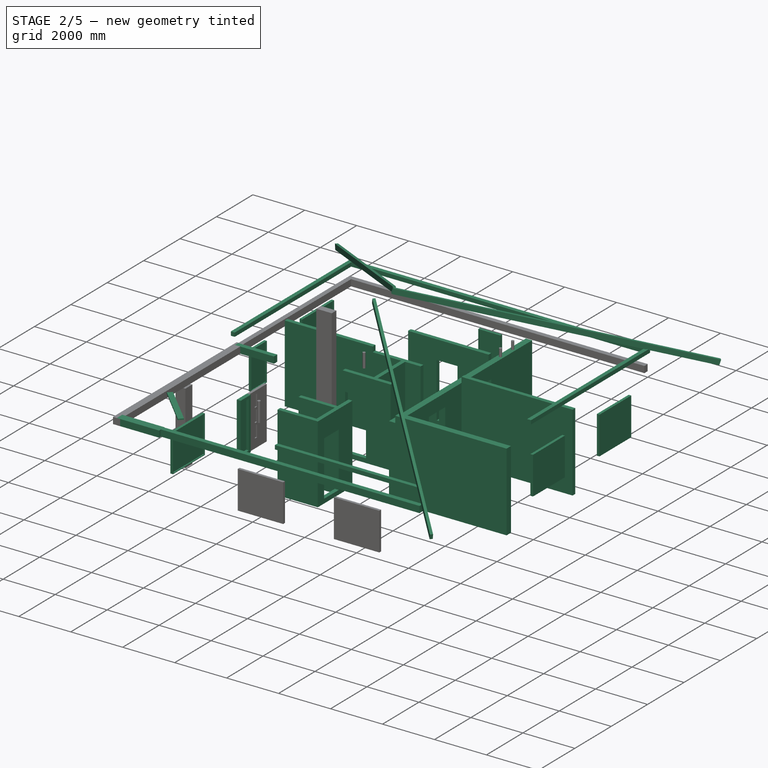
[diagram: stage 2 of 5 — iso view after this stage's code; geometry added in this stage tinted green]
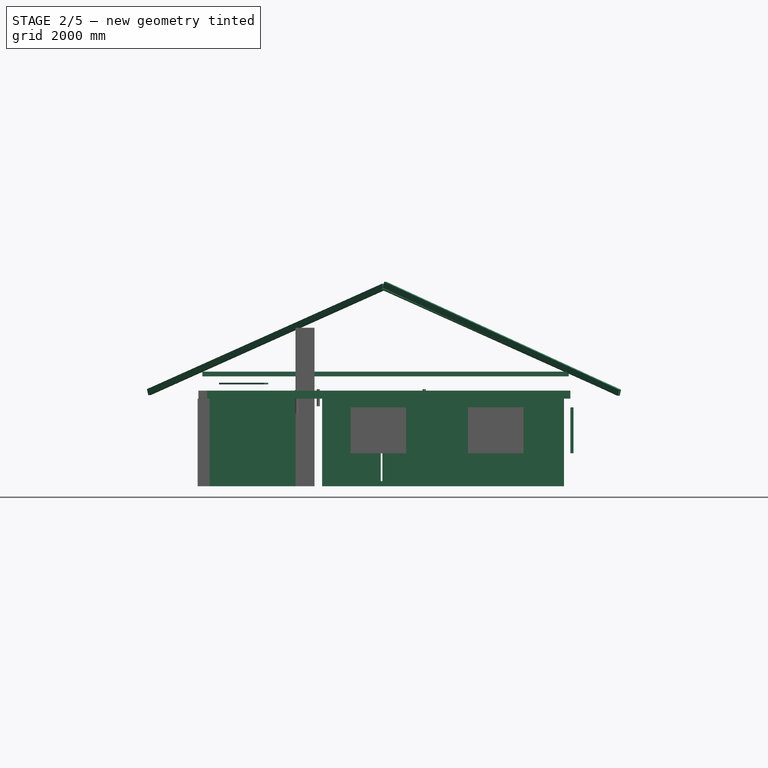
[diagram: stage 2 of 5 — front view after this stage's code; geometry added in this stage tinted green]
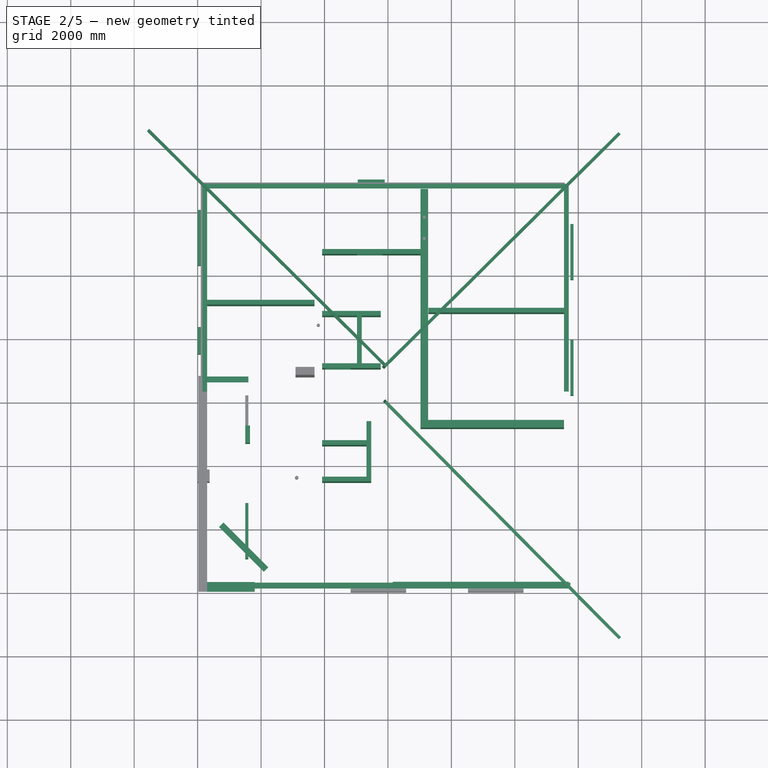
[diagram: stage 2 of 5 — top view after this stage's code; geometry added in this stage tinted green]
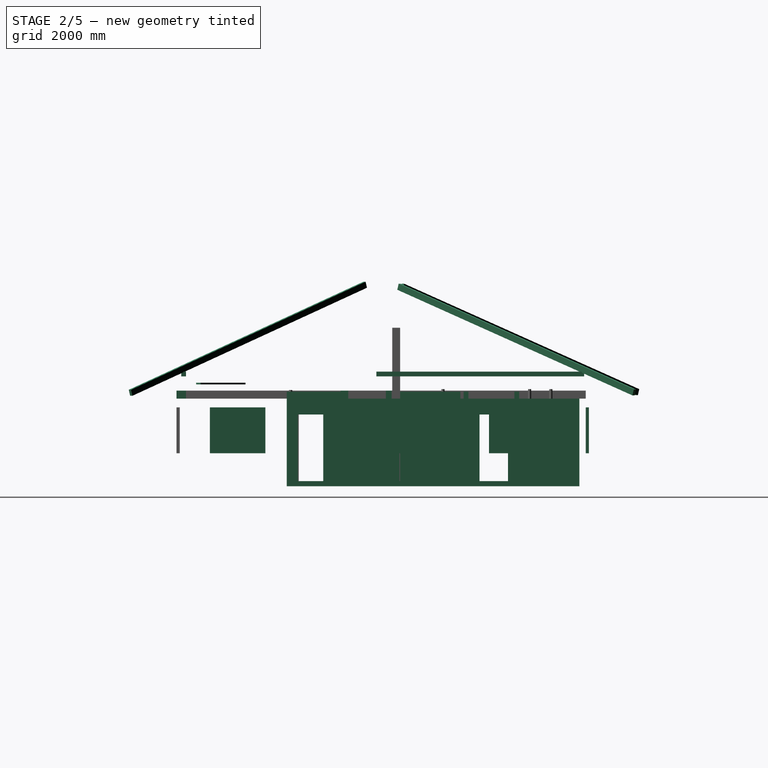
[diagram: stage 2 of 5 — right view after this stage's code; geometry added in this stage tinted green]
FEATURE [Part::Part2DObjectPython] Rectangle013  # Draft 2D object (typed FeaturePython)
  Area = 1.89e+06
  ChamferSize = 0
  Columns = 1
  FilletRadius = 0
  Height = 2100
  Length = 900
  MakeFace = true
  Placement = pos=(7025,10450,165) rot=(0.57735,-0.57735,-0.57735;2.0944rad)
  Rows = 1
  expr: .Placement.Base.x = <<data>>.x_d5_par_room
  expr: .Placement.Base.y = <<data>>.y_d5_par_room
  expr: .Placement.Base.z = <<data>>.z_d5_par_room
  expr: Height = <<data>>.height_d5_par_room
  expr: Length = <<data>>.length_d5_par_room
FEATURE [Part::Extrusion] Extrude011
  Base = -> Rectangle013
  Dir = (-1,0,0)
  DirMode = 2
  FaceMakerClass = Part::FaceMakerBullseye
  FaceMakerMode = 3
  LengthFwd = 0
  LengthRev = 250
  Solid = false
  Symmetric = false
FEATURE [Part::Cut] Cut011  label="Lb_Wall_East_Cut_D5"
  Base = -> Wall002
  Refine = true
  Tool = -> Extrude011
FEATURE [Part::Part2DObjectPython] Rectangle014  # Draft 2D object (typed FeaturePython)
  Area = 0
  ChamferSize = 0
  Columns = 1
  FilletRadius = 0
  Height = 2100
  Length = 900
  MakeFace = false
  Placement = pos=(7025,7925,165) rot=(0.57735,-0.57735,-0.57735;2.0944rad)
  Rows = 1
  expr: .Placement.Base.x = <<data>>.x_d5_ch_room
  expr: .Placement.Base.y = <<data>>.y_d5_ch_room
  expr: .Placement.Base.z = <<data>>.z_d5_ch_room
  expr: Height = <<data>>.height_d5_ch_room
  expr: Length = <<data>>.length_d5_ch_room
FEATURE [Part::Extrusion] Extrude012
  Base = -> Rectangle014
  Dir = (-1,0,0)
  DirMode = 2
  FaceMakerClass = Part::FaceMakerBullseye
  FaceMakerMode = 3
  LengthFwd = 0
  LengthRev = 250
  Solid = true
  Symmetric = false
FEATURE [Part::Cut] Cut012  label="Lb_Wall_East_Cut_D5_children_room"
  Base = -> Cut011
  Refine = true
  Tool = -> Extrude012
FEATURE [Part::Part2DObjectPython] Line  # Draft 2D object (typed FeaturePython)
  Area = 0
  ChamferSize = 0
  Closed = false
  End = (300,9200,0)
  FilletRadius = 0
  Length = 3385
  MakeFace = true
  Placement = pos=(3685,9200,0) rot=(0,0,1;0rad)
  Points = (2) [(0,0,0),(-3385,0,0)]
  Start = (3685,9200,0)
  Subdivisions = 0
FEATURE [Part::FeaturePython] Wall003  label="Перегородка_150"  # Arch/BIM 166 (typed FeaturePython)
  Align = 1
  ArchSketchData = true
  Area = 10104225
  Base = -> Line
  BlockHeight = 0
  BlockLength = 0
  CountBroken = 0
  CountEntire = 0
  Face = 0
  GlobalId = 1wQvItmb53Fvyo3alxIl6I
  Height = 2985
  HorizontalArea = 507750
  IfcData = IfcUID=1wQvItmb53Fvyo3alxIl6I,+2 more (map truncated)
  IfcType = 166
  Joint = 0
  Length = 3385
  MakeBlocks = false
  MoveBase = false
  MoveWithHost = false
  Normal = (0,0,0)
  OffsetFirst = 0
  OffsetSecond = 0
  PerimeterLength = 7070
  PredefinedType = 0
  VerticalArea = 21103950
  Width = 150
  expr: .Placement.Base.z = <<data>>.zero_lvl
  expr: Height = <<data>>.wall_heigh + <<data>>.mp1_heith - 30 mm
FEATURE [Part::Part2DObjectPython] Line002  # Draft 2D object (typed FeaturePython)
  Area = 0
  ChamferSize = 0
  Closed = false
  End = (7275,8950,0)
  FilletRadius = 0
  Length = 4275
  MakeFace = true
  Placement = pos=(11550,8950,0) rot=(0,0,1;0rad)
  Points = (2) [(0,0,0),(-4275,-3.63798e-12,0)]
  Start = (11550,8950,0)
  Subdivisions = 0
FEATURE [Part::FeaturePython] Wall005  label="Перегородка_восток_150"  # Arch/BIM 166 (typed FeaturePython)
  Align = 1
  ArchSketchData = true
  Area = 12760875
  Base = -> Line002
  BlockHeight = 0
  BlockLength = 0
  CountBroken = 0
  CountEntire = 0
  Face = 0
  GlobalId = 2niqEDJ$z8iBk3aYaLcNz2
  Height = 2985
  HorizontalArea = 641250
  IfcData = IfcUID=2niqEDJ$z8iBk3aYaLcNz2,+2 more (map truncated)
  IfcType = 166
  Joint = 0
  Length = 4275
  MakeBlocks = false
  MoveBase = false
  MoveWithHost = false
  Normal = (0,0,0)
  OffsetFirst = 0
  OffsetSecond = 0
  PerimeterLength = 8850
  PredefinedType = 0
  VerticalArea = 26417250
  Width = 150
  expr: .Placement.Base.z = <<data>>.zero_lvl
  expr: Height = <<data>>.wall_heigh + <<data>>.mp1_heith - 30 mm
FEATURE [Part::Part2DObjectPython] Line003  # Draft 2D object (typed FeaturePython)
  Area = 0
  ChamferSize = 0
  Closed = false
  End = (3925,10800,0)
  FilletRadius = 0
  Length = 3100
  MakeFace = true
  Placement = pos=(7025,10800,0) rot=(0,0,1;0rad)
  Points = (2) [(0,0,0),(-3100,0,0)]
  Start = (7025,10800,0)
  Subdivisions = 0
FEATURE [Part::FeaturePython] Wall006  label="Стена002"  # Arch/BIM 166 (typed FeaturePython)
  Align = 1
  ArchSketchData = true
  Area = 9253500
  Base = -> Line003
  BlockHeight = 0
  BlockLength = 0
  CountBroken = 0
  CountEntire = 0
  Face = 0
  Height = 2985
  HorizontalArea = 465000
  IfcData = attributes={"GlobalId": {"name": "GlobalId", "type": "IfcGloballyUniqueId", "is_enum": false, "enum_values": []}, "Description": {"... (+533 chars omitted),+1 more (map truncated)
  IfcType = 166
  Joint = 0
  Length = 3100
  MakeBlocks = false
  MoveBase = false
  MoveWithHost = false
  Normal = (0,0,0)
  OffsetFirst = 0
  OffsetSecond = 0
  PerimeterLength = 6500
  PredefinedType = 0
  VerticalArea = 1.94025e+07
  Width = 150
  expr: .Placement.Base.z = <<data>>.zero_lvl
  expr: Height = <<data>>.wall_heigh + <<data>>.mp1_heith - 30 mm
FEATURE [Part::Part2DObjectPython] Rectangle016  # Draft 2D object (typed FeaturePython)
  Area = 1680000
  ChamferSize = 0
  Columns = 1
  FilletRadius = 0
  Height = 2100
  Length = 800
  MakeFace = true
  Placement = pos=(5025,10650,165) rot=(1,0,0;1.5708rad)
  Rows = 1
  expr: .Placement.Base.x = <<data>>.x_d6_bathroom
  expr: .Placement.Base.y = <<data>>.y_d6_bathroom
  expr: .Placement.Base.z = <<data>>.z_d6_bathroom
  expr: Height = <<data>>.height_d6_bathroom
  expr: Length = <<data>>.length_d6_bathroom
FEATURE [Part::Extrusion] Extrude014
  Base = -> Rectangle016
  Dir = (0,-1,2e-16)
  DirMode = 2
  FaceMakerClass = Part::FaceMakerBullseye
  FaceMakerMode = 3
  LengthFwd = 0
  LengthRev = 150
  Solid = false
  Symmetric = false
FEATURE [Part::Cut] Cut014  label="Wall_bathroom_door_Cut"
  Base = -> Wall006
  Tool = -> Extrude014
FEATURE [Part::Part2DObjectPython] Line004  # Draft 2D object (typed FeaturePython)
  Area = 0
  ChamferSize = 0
  Closed = false
  End = (5775,8850,0)
  FilletRadius = 0
  Length = 1850
  MakeFace = true
  Points = (2) [(3925,8850,0),(5775,8850,0)]
  Start = (3925,8850,0)
  Subdivisions = 0
FEATURE [Part::FeaturePython] Wall007  label="Стена задняя туалет"  # Arch/BIM 166 (typed FeaturePython)
  Align = 0
  ArchSketchData = true
  Area = 5522250
  Base = -> Line004
  BlockHeight = 0
  BlockLength = 0
  CountBroken = 0
  CountEntire = 0
  Face = 0
  GlobalId = 3DitIEm89EA9zIWdbh_AVJ
  Height = 2985
  HorizontalArea = 277500
  IfcData = IfcUID=3DitIEm89EA9zIWdbh_AVJ,+2 more (map truncated)
  IfcType = 166
  Joint = 0
  Length = 1850
  MakeBlocks = false
  MoveBase = false
  MoveWithHost = false
  Normal = (0,0,0)
  OffsetFirst = 0
  OffsetSecond = 0
  PerimeterLength = 4000
  PredefinedType = 0
  VerticalArea = 1.194e+07
  Width = 150
  expr: .Placement.Base.z = <<data>>.zero_lvl
  expr: Height = <<data>>.wall_heigh + <<data>>.mp1_heith - 30 mm
FEATURE [Part::FeaturePython] Wall008  label="Стена003"  # Arch/BIM 166 (typed FeaturePython)
  Align = 0
  ArchSketchData = true
  Area = 5522250
  Base = -> Line004
  BlockHeight = 0
  BlockLength = 0
  CountBroken = 0
  CountEntire = 0
  Face = 0
  Height = 2985
  HorizontalArea = 277500
  IfcData = attributes={"GlobalId": {"name": "GlobalId", "type": "IfcGloballyUniqueId", "is_enum": false, "enum_values": []}, "Description": {"... (+533 chars omitted),+1 more (map truncated)
  IfcType = 166
  Joint = 0
  Length = 1850
  MakeBlocks = false
  MoveBase = false
  MoveWithHost = false
  Normal = (0,0,0)
  OffsetFirst = 0
  OffsetSecond = 0
  PerimeterLength = 4000
  Placement = pos=(0,-1650,0) rot=(0,0,1;0rad)
  PredefinedType = 0
  VerticalArea = 1.194e+07
  Width = 150
  expr: .Placement.Base.z = <<data>>.zero_lvl
  expr: Height = <<data>>.wall_heigh + <<data>>.mp1_heith - 30 mm
FEATURE [Part::Part2DObjectPython] Line005  # Draft 2D object (typed FeaturePython)
  Area = 0
  ChamferSize = 0
  Closed = false
  End = (5025,7200,0)
  FilletRadius = 0
  Length = 1500
  MakeFace = true
  Placement = pos=(5025,8700,0) rot=(0,0,1;0rad)
  Points = (2) [(0,0,0),(0,-1500,0)]
  Start = (5025,8700,0)
  Subdivisions = 0
FEATURE [Part::FeaturePython] Wall009  label="Стена боковая туалет"  # Arch/BIM 166 (typed FeaturePython)
  Align = 1
  ArchSketchData = true
  Area = 4477500
  Base = -> Line005
  BlockHeight = 0
  BlockLength = 0
  CountBroken = 0
  CountEntire = 0
  Face = 0
  GlobalId = 0Zr47K6R9Cz94eoGzAR32l
  Height = 2985
  HorizontalArea = 225000
  IfcData = IfcUID=0Zr47K6R9Cz94eoGzAR32l,+2 more (map truncated)
  IfcType = 166
  Joint = 0
  Length = 1500
  MakeBlocks = false
  MoveBase = false
  MoveWithHost = false
  Normal = (0,0,0)
  OffsetFirst = 0
  OffsetSecond = 0
  PerimeterLength = 3300
  PredefinedType = 0
  VerticalArea = 9850500
  Width = 150
  expr: .Placement.Base.z = <<data>>.zero_lvl
  expr: Height = <<data>>.wall_heigh + <<data>>.mp1_heith - 30 mm
FEATURE [Part::Part2DObjectPython] Rectangle017  # Draft 2D object (typed FeaturePython)
  Area = 1680000
  ChamferSize = 0
  Columns = 1
  FilletRadius = 0
  Height = 2100
  Length = 800
  MakeFace = true
  Placement = pos=(4025,7050,165) rot=(1,0,0;1.5708rad)
  Rows = 1
  expr: .Placement.Base.x = <<data>>.x_d6_tualet
  expr: .Placement.Base.y = <<data>>.y_d6_tualet
  expr: .Placement.Base.z = <<data>>.z_d6_tualet
  expr: Height = <<data>>.height_d6_tualet
  expr: Length = <<data>>.length_d6_tualet
FEATURE [Part::Extrusion] Extrude015
  Base = -> Rectangle017
  Dir = (0,-1,2e-16)
  DirMode = 2
  FaceMakerClass = Part::FaceMakerBullseye
  FaceMakerMode = 3
  LengthFwd = 0
  LengthRev = 150
  Solid = false
  Symmetric = false
FEATURE [Part::Cut] Cut015  label="Wall_Cut_door_tualet"
  Base = -> Wall008
  Tool = -> Extrude015
FEATURE [Part::Part2DObjectPython] Line006  # Draft 2D object (typed FeaturePython)
  Area = 0
  ChamferSize = 0
  Closed = false
  End = (5475,3475,0)
  FilletRadius = 0
  Length = 1550
  MakeFace = true
  Placement = pos=(3925,3475,0) rot=(0,0,1;0rad)
  Points = (2) [(0,0,0),(1550,0,0)]
  Start = (3925,3475,0)
  Subdivisions = 0
FEATURE [Part::Part2DObjectPython] Line007  # Draft 2D object (typed FeaturePython)
  Area = 0
  ChamferSize = 0
  Closed = false
  End = (5475,5225,0)
  FilletRadius = 0
  Length = 1750
  MakeFace = true
  Placement = pos=(5475,3475,0) rot=(0,0,1;0rad)
  Points = (2) [(0,0,0),(0,1750,0)]
  Start = (5475,3475,0)
  Subdivisions = 0
FEATURE [Part::FeaturePython] Wall011  label="Стена бокса2"  # Arch/BIM 166 (typed FeaturePython)
  Align = 1
  ArchSketchData = true
  Area = 4626750
  Base = -> Line006
  BlockHeight = 0
  BlockLength = 0
  CountBroken = 0
  CountEntire = 0
  Face = 0
  GlobalId = 2$TMoJ6gX5ggmsBXvN871R
  Height = 2985
  HorizontalArea = 232500
  IfcData = IfcUID=2$TMoJ6gX5ggmsBXvN871R,+2 more (map truncated)
  IfcType = 166
  Joint = 0
  Length = 1550
  MakeBlocks = false
  MoveBase = false
  MoveWithHost = false
  Normal = (0,0,0)
  OffsetFirst = 0
  OffsetSecond = 0
  PerimeterLength = 3400
  PredefinedType = 0
  VerticalArea = 1.0149e+07
  Width = 150
  expr: .Placement.Base.z = <<data>>.zero_lvl
  expr: Height = <<data>>.wall_heigh + <<data>>.mp1_heith - 30 mm
FEATURE [Part::FeaturePython] Wall012  label="Стена"  # Arch/BIM 166 (typed FeaturePython)
  Align = 1
  ArchSketchData = true
  Area = 5223750
  Base = -> Line007
  BlockHeight = 0
  BlockLength = 0
  CountBroken = 0
  CountEntire = 0
  Face = 0
  Height = 2985
  HorizontalArea = 262500
  IfcData = attributes={"GlobalId": {"name": "GlobalId", "type": "IfcGloballyUniqueId", "is_enum": false, "enum_values": []}, "Description": {"... (+533 chars omitted),+1 more (map truncated)
  IfcType = 166
  Joint = 0
  Length = 1750
  MakeBlocks = false
  MoveBase = false
  MoveWithHost = false
  Normal = (0,0,0)
  OffsetFirst = 0
  OffsetSecond = 0
  PerimeterLength = 3800
  Placement = pos=(0,150,0) rot=(0,0,1;0rad)
  PredefinedType = 0
  VerticalArea = 1.1343e+07
  Width = 150
  expr: .Placement.Base.z = <<data>>.zero_lvl
  expr: Height = <<data>>.wall_heigh + <<data>>.mp1_heith - 30 mm
FEATURE [Part::Part2DObjectPython] Line008  # Draft 2D object (typed FeaturePython)
  Area = 0
  ChamferSize = 0
  Closed = false
  End = (3925,4625,0)
  FilletRadius = 0
  Length = 1400
  MakeFace = true
  Placement = pos=(5325,4625,0) rot=(0,0,1;0rad)
  Points = (2) [(0,0,0),(-1400,0,0)]
  Start = (5325,4625,0)
  Subdivisions = 0
FEATURE [Part::FeaturePython] Wall013  label="Стена бокса1"  # Arch/BIM 166 (typed FeaturePython)
  Align = 0
  ArchSketchData = true
  Area = 4179000
  Base = -> Line008
  BlockHeight = 0
  BlockLength = 0
  CountBroken = 0
  CountEntire = 0
  Face = 0
  GlobalId = 1L9CJebK59_REcXiUx8LpR
  Height = 2985
  HorizontalArea = 210000
  IfcData = IfcUID=1L9CJebK59_REcXiUx8LpR,+2 more (map truncated)
  IfcType = 166
  Joint = 0
  Length = 1400
  MakeBlocks = false
  MoveBase = false
  MoveWithHost = false
  Normal = (0,0,0)
  OffsetFirst = 0
  OffsetSecond = 0
  PerimeterLength = 3100
  PredefinedType = 0
  VerticalArea = 9253500
  Width = 150
  expr: .Placement.Base.z = <<data>>.zero_lvl
  expr: Height = <<data>>.wall_heigh + <<data>>.mp1_heith - 30 mm
FEATURE [Part::Part2DObjectPython] Rectangle018  # Draft 2D object (typed FeaturePython)
  Area = 1680000
  ChamferSize = 0
  Columns = 1
  FilletRadius = 0
  Height = 2100
  Length = 800
  MakeFace = true
  Placement = pos=(5475,3825,165) rot=(0.57735,0.57735,0.57735;2.0944rad)
  Rows = 1
  expr: .Placement.Base.z = <<data>>.z_d6_box
  expr: Height = <<data>>.height_d6_box
  expr: Length = <<data>>.length_d6_box
FEATURE [Part::Extrusion] Extrude016
  Base = -> Rectangle018
  Dir = (1,0,0)
  DirMode = 2
  FaceMakerClass = Part::FaceMakerBullseye
  FaceMakerMode = 3
  LengthFwd = 0
  LengthRev = 150
  Solid = false
  Symmetric = false
FEATURE [Part::Cut] Cut016  label="Wall_Cut_d6_box"
  Base = -> Wall012
  Tool = -> Extrude016
FEATURE [App::DocumentObjectGroup] Group  label="Межкомнатные стены"
  Group = -> [Wall003,Wall005,Cut013,Cut014,Wall009,Wall007,Cut015,Wall011,Wall013,Cut016]
FEATURE [Sketcher::SketchObject] Sketch003
  ArcFitTolerance = 1e-06
  ExternalGeometry = -> [Cut008]
  FullyConstrained = true
  MakeInternals = false
  Placement = pos=(1500,2964.07,1518.79) rot=(0.57735,-0.57735,-0.57735;2.0944rad)
  expr: Constraints[11] = <<data>>.height_ok3 - 50 mm
  expr: Constraints[21] = <<data>>.height_ok3 - 100 mm
  expr: Constraints[33] = <<data>>.height_ok3 - 150 mm
  expr: Constraints[45] = <<data>>.height_ok3 - 150 mm
  expr: Constraints[49] = 2.5 cm
  sketch-geometry (16):
    g0: LineSegment StartX=164.065 StartY=971.208 StartZ=0 EndX=164.065 EndY=-478.792 EndZ=0
    g1: LineSegment StartX=164.065 StartY=-478.792 StartZ=0 EndX=1914.07 EndY=-478.792 EndZ=0
    g2: LineSegment StartX=1914.07 StartY=-478.792 StartZ=0 EndX=1914.07 EndY=971.208 EndZ=0
    g3: LineSegment StartX=1914.07 StartY=971.208 StartZ=0 EndX=164.065 EndY=971.208 EndZ=0
    g4: LineSegment StartX=189.065 StartY=946.208 StartZ=0 EndX=189.065 EndY=-453.792 EndZ=0
    g5: LineSegment StartX=189.065 StartY=-453.792 StartZ=0 EndX=1889.07 EndY=-453.792 EndZ=0
    g6: LineSegment StartX=1889.07 StartY=-453.792 StartZ=0 EndX=1889.07 EndY=946.208 EndZ=0
    g7: LineSegment StartX=1889.07 StartY=946.208 StartZ=0 EndX=189.065 EndY=946.208 EndZ=0
    g8: LineSegment StartX=214.065 StartY=921.208 StartZ=0 EndX=214.065 EndY=-428.792 EndZ=0
    g9: LineSegment StartX=214.065 StartY=-428.792 StartZ=0 EndX=1014.07 EndY=-428.792 EndZ=0
    g10: LineSegment StartX=1014.07 StartY=-428.792 StartZ=0 EndX=1014.07 EndY=921.208 EndZ=0
    g11: LineSegment StartX=1014.07 StartY=921.208 StartZ=0 EndX=214.065 EndY=921.208 EndZ=0
    g12: LineSegment StartX=1064.07 StartY=921.208 StartZ=0 EndX=1064.07 EndY=-428.792 EndZ=0
    g13: LineSegment StartX=1064.07 StartY=-428.792 StartZ=0 EndX=1864.07 EndY=-428.792 EndZ=0
    g14: LineSegment StartX=1864.07 StartY=-428.792 StartZ=0 EndX=1864.07 EndY=921.208 EndZ=0
    g15: LineSegment StartX=1864.07 StartY=921.208 StartZ=0 EndX=1064.07 EndY=921.208 EndZ=0
  constraints (50):
    c: DistanceX(g-3,g-3) = 1800
    c: DistanceY(g-4,g-4) = 1500
    c: Coincident(g0,g1)
    c: Coincident(g1,g2)
    c: Coincident(g2,g3)
    c: Coincident(g3,g0)
    c: Vertical(g0)
    c: Vertical(g2)
    c: Horizontal(g1)
    c: Horizontal(g3)
    c: DistanceX(g3,g3) = 1750
    c: DistanceY(g2,g2) = 1450
    c: Distance(g-4,g2) = 25
    c: Coincident(g4,g5)
    c: Coincident(g5,g6)
    c: Coincident(g6,g7)
    c: Coincident(g7,g4)
    c: Vertical(g4)
    c: Vertical(g6)
    c: Horizontal(g5)
    c: Horizontal(g7)
    c: DistanceY(g6,g6) = 1400
    c: DistanceX(g7,g7) = 1700
    c: Distance(g7,g3) = 25
    c: Distance(g2,g6) = 25
    c: Coincident(g8,g9)
    c: Coincident(g9,g10)
    c: Coincident(g10,g11)
    c: Coincident(g11,g8)
    c: Vertical(g8)
    c: Vertical(g10)
    c: Horizontal(g9)
    c: Horizontal(g11)
    c: DistanceY(g8,g8) = 1350
    c: DistanceX(g11,g11) = 800
    c: Distance(g8,g4) = 25
    c: Distance(g7,g11) = 25
    c: Coincident(g12,g13)
    c: Coincident(g13,g14)
    c: Coincident(g14,g15)
    c: Coincident(g15,g12)
    c: Vertical(g12)
    c: Vertical(g14)
    c: Horizontal(g13)
    c: Horizontal(g15)
    c: DistanceY(g14,g14) = 1350
    c: DistanceX(g15,g15) = 800
    c: Distance(g7,g15) = 25
    c: Distance(g6,g14) = 25
    c: Distance(g-3,g3) = 25
FEATURE [Part::FeaturePython] Window003  label="Окно Запад Кухня"  # Arch/BIM 170 (typed FeaturePython)
  Area = 0
  Base = -> Sketch003
  Frame = 0
  GlobalId = 3TXifS6Az9uwBej0j5xcli
  Height = 0
  HoleDepth = 0
  HoleWire = 0
  HorizontalArea = 0
  IfcData = IfcUID=3TXifS6Az9uwBej0j5xcli,+2 more (map truncated)
  IfcType = 170
  LouvreSpacing = 0
  LouvreWidth = 0
  MoveBase = false
  MoveWithHost = true
  Normal = (1,0,0)
  Opening = 0
  OverallHeight = 0
  OverallWidth = 0
  PartitioningType = 0
  PerimeterLength = 0
  PredefinedType = 0
  Preset = 0
  SymbolElevation = false
  SymbolPlan = false
  VerticalArea = 0
  Width = 0
  WindowParts = Default | Frame | Wire0,Wire1,Wire2,Wire3 | 1 | 0 | Рама окна | Frame | Wire0,Wire1 | 100.0 | 0.0 | каркас  окон | Solid panel | Wire1,Wire2,Wire3 | 50.0 | 0.0 | левое стекло | Glass panel | Wire2 | 50.0 | 0.0 | Правое стекло | Glass panel | Wire3 | 50.0 | 0.0
  expr: OverallHeight = .Height.Value
  expr: OverallWidth = .Width.Value
FEATURE [Sketcher::SketchObject] Sketch004
  ArcFitTolerance = 1e-06
  ExternalGeometry = -> [Cut008]
  FullyConstrained = true
  MakeInternals = false
  Placement = pos=(0,9666.23,1445.08) rot=(0.57735,-0.57735,-0.57735;2.0944rad)
  expr: Constraints[11] = <<data>>.height_ok1 - 50 mm
  expr: Constraints[22] = <<data>>.height_ok1 - 100 mm
  expr: Constraints[32] = <<data>>.height_ok1 - 150 mm
  expr: Constraints[45] = <<data>>.height_ok1 - 150 mm
  sketch-geometry (16):
    g0: LineSegment StartX=-2378.77 StartY=1044.92 StartZ=0 EndX=-2378.77 EndY=-405.08 EndZ=0
    g1: LineSegment StartX=-2378.77 StartY=-405.08 StartZ=0 EndX=-628.768 EndY=-405.08 EndZ=0
    g2: LineSegment StartX=-628.768 StartY=-405.08 StartZ=0 EndX=-628.768 EndY=1044.92 EndZ=0
    g3: LineSegment StartX=-628.768 StartY=1044.92 StartZ=0 EndX=-2378.77 EndY=1044.92 EndZ=0
    g4: LineSegment StartX=-2353.77 StartY=1019.92 StartZ=0 EndX=-2353.77 EndY=-380.08 EndZ=0
    g5: LineSegment StartX=-2353.77 StartY=-380.08 StartZ=0 EndX=-653.768 EndY=-380.08 EndZ=0
    g6: LineSegment StartX=-653.768 StartY=-380.08 StartZ=0 EndX=-653.768 EndY=1019.92 EndZ=0
    g7: LineSegment StartX=-653.768 StartY=1019.92 StartZ=0 EndX=-2353.77 EndY=1019.92 EndZ=0
    g8: LineSegment StartX=-2328.77 StartY=994.92 StartZ=0 EndX=-2328.77 EndY=-355.08 EndZ=0
    g9: LineSegment StartX=-2328.77 StartY=-355.08 StartZ=0 EndX=-1528.77 EndY=-355.08 EndZ=0
    g10: LineSegment StartX=-1528.77 StartY=-355.08 StartZ=0 EndX=-1528.77 EndY=994.92 EndZ=0
    g11: LineSegment StartX=-1528.77 StartY=994.92 StartZ=0 EndX=-2328.77 EndY=994.92 EndZ=0
    g12: LineSegment StartX=-1478.77 StartY=994.92 StartZ=0 EndX=-1478.77 EndY=-355.08 EndZ=0
    g13: LineSegment StartX=-1478.77 StartY=-355.08 StartZ=0 EndX=-678.768 EndY=-355.08 EndZ=0
    g14: LineSegment StartX=-678.768 StartY=-355.08 StartZ=0 EndX=-678.768 EndY=994.92 EndZ=0
    g15: LineSegment StartX=-678.768 StartY=994.92 StartZ=0 EndX=-1478.77 EndY=994.92 EndZ=0
  constraints (50):
    c: DistanceX(g-3,g-3) = 1800
    c: DistanceY(g-5,g-5) = 1500
    c: Coincident(g0,g1)
    c: Coincident(g1,g2)
    c: Coincident(g2,g3)
    c: Coincident(g3,g0)
    c: Vertical(g0)
    c: Vertical(g2)
    c: Horizontal(g1)
    c: Horizontal(g3)
    c: DistanceX(g3,g3) = 1750
    c: DistanceY(g2,g2) = 1450
    c: Distance(g-5,g2) = 25
    c: Coincident(g4,g5)
    c: Coincident(g5,g6)
    c: Coincident(g6,g7)
    c: Coincident(g7,g4)
    c: Vertical(g4)
    c: Vertical(g6)
    c: Horizontal(g5)
    c: Horizontal(g7)
    c: DistanceX(g7,g7) = 1700
    c: DistanceY(g6,g6) = 1400
    c: Distance(g2,g6) = 25
    c: Coincident(g8,g9)
    c: Coincident(g9,g10)
    c: Coincident(g10,g11)
    c: Coincident(g11,g8)
    c: Vertical(g8)
    c: Vertical(g10)
    c: Horizontal(g9)
    c: Horizontal(g11)
    c: Distance(g9,g11) = 1350
    c: DistanceX(g9,g9) = 800
    c: Distance(g4,g8) = 25
    c: Distance(g5,g9) = 25
    c: Coincident(g12,g13)
    c: Coincident(g13,g14)
    c: Coincident(g14,g15)
    c: Coincident(g15,g12)
    c: Vertical(g12)
    c: Vertical(g14)
    c: Horizontal(g13)
    c: Horizontal(g15)
    c: DistanceX(g15,g15) = 800
    c: DistanceY(g14,g14) = 1350
    c: Distance(g6,g14) = 25
    c: Distance(g5,g13) = 25
    c: Distance(g3,g7) = 25
    c: Distance(g-3,g3) = 25
FEATURE [Part::FeaturePython] Window004  label="Окно Запад Спальня бабушкина"  # Arch/BIM 170 (typed FeaturePython)
  Area = 0
  Base = -> Sketch004
  Frame = 0
  GlobalId = 2EmWu9ERDBuAXZpSk2gmfn
  Height = 0
  HoleDepth = 0
  HoleWire = 0
  HorizontalArea = 0
  IfcData = IfcUID=2EmWu9ERDBuAXZpSk2gmfn,+2 more (map truncated)
  IfcType = 170
  LouvreSpacing = 0
  LouvreWidth = 0
  MoveBase = false
  MoveWithHost = true
  Normal = (1,0,0)
  Opening = 0
  OverallHeight = 0
  OverallWidth = 0
  PartitioningType = 0
  PerimeterLength = 0
  PredefinedType = 0
  Preset = 0
  SymbolElevation = false
  SymbolPlan = false
  VerticalArea = 0
  Width = 0
  WindowParts = Default | Frame | Wire0,Wire1 | 100.0 | 0.0 | Каркас окон | Solid panel | Wire1,Wire2,Wire3 | 50.0 | 0.0 | Стекло правое | Glass panel | Wire3 | 50.0 | 0.0 | Стекло левое | Glass panel | Wire2 | 50.0 | 0.0
  expr: OverallHeight = .Height.Value
  expr: OverallWidth = .Width.Value
FEATURE [Sketcher::SketchObject] Sketch005
  ArcFitTolerance = 1e-06
  ExternalGeometry = -> [Cut008]
  FullyConstrained = true
  MakeInternals = false
  Placement = pos=(11850,6757.1,1488.97) rot=(0.57735,0.57735,0.57735;2.0944rad)
  expr: Constraints[11] = <<data>>.height_ok3_ch - 50 mm
  expr: Constraints[22] = <<data>>.height_ok3_ch - 100 mm
  expr: Constraints[34] = <<data>>.height_ok3_ch - 150 mm
  expr: Constraints[45] = <<data>>.height_ok3_ch - 150 mm
  sketch-geometry (16):
    g0: LineSegment StartX=-557.1 StartY=1001.03 StartZ=0 EndX=-557.1 EndY=-448.966 EndZ=0
    g1: LineSegment StartX=-557.1 StartY=-448.966 StartZ=0 EndX=1192.9 EndY=-448.966 EndZ=0
    g2: LineSegment StartX=1192.9 StartY=-448.966 StartZ=0 EndX=1192.9 EndY=1001.03 EndZ=0
    g3: LineSegment StartX=1192.9 StartY=1001.03 StartZ=0 EndX=-557.1 EndY=1001.03 EndZ=0
    g4: LineSegment StartX=-532.1 StartY=976.034 StartZ=0 EndX=-532.1 EndY=-423.966 EndZ=0
    g5: LineSegment StartX=-532.1 StartY=-423.966 StartZ=0 EndX=1167.9 EndY=-423.966 EndZ=0
    g6: LineSegment StartX=1167.9 StartY=-423.966 StartZ=0 EndX=1167.9 EndY=976.034 EndZ=0
    g7: LineSegment StartX=1167.9 StartY=976.034 StartZ=0 EndX=-532.1 EndY=976.034 EndZ=0
    g8: LineSegment StartX=-507.1 StartY=951.034 StartZ=0 EndX=-507.1 EndY=-398.966 EndZ=0
    g9: LineSegment StartX=-507.1 StartY=-398.966 StartZ=0 EndX=292.9 EndY=-398.966 EndZ=0
    g10: LineSegment StartX=292.9 StartY=-398.966 StartZ=0 EndX=292.9 EndY=951.034 EndZ=0
    g11: LineSegment StartX=292.9 StartY=951.034 StartZ=0 EndX=-507.1 EndY=951.034 EndZ=0
    g12: LineSegment StartX=1142.9 StartY=951.034 StartZ=0 EndX=342.9 EndY=951.034 EndZ=0
    g13: LineSegment StartX=342.9 StartY=951.034 StartZ=0 EndX=342.9 EndY=-398.966 EndZ=0
    g14: LineSegment StartX=342.9 StartY=-398.966 StartZ=0 EndX=1142.9 EndY=-398.966 EndZ=0
    g15: LineSegment StartX=1142.9 StartY=-398.966 StartZ=0 EndX=1142.9 EndY=951.034 EndZ=0
  constraints (50):
    c: DistanceX(g-3,g-3) = 1800
    c: DistanceY(g-4,g-4) = 1500
    c: Coincident(g0,g1)
    c: Coincident(g1,g2)
    c: Coincident(g2,g3)
    c: Coincident(g3,g0)
    c: Vertical(g0)
    c: Vertical(g2)
    c: Horizontal(g1)
    c: Horizontal(g3)
    c: DistanceX(g3,g3) = 1750
    c: DistanceY(g0,g0) = 1450
    c: Distance(g-4,g0) = 25
    c: Coincident(g4,g5)
    c: Coincident(g5,g6)
    c: Coincident(g6,g7)
    c: Coincident(g7,g4)
    c: Vertical(g4)
    c: Vertical(g6)
    c: Horizontal(g5)
    c: Horizontal(g7)
    c: DistanceX(g7,g7) = 1700
    c: DistanceY(g4,g4) = 1400
    c: Distance(g0,g4) = 25
    c: Distance(g3,g7) = 25
    c: Coincident(g8,g9)
    c: Coincident(g9,g10)
    c: Coincident(g10,g11)
    c: Coincident(g11,g8)
    c: Vertical(g8)
    c: Vertical(g10)
    c: Horizontal(g9)
    c: Horizontal(g11)
    c: DistanceX(g11,g11) = 800
    c: DistanceY(g8,g8) = 1350
    c: Distance(g4,g8) = 25
    c: Coincident(g12,g13)
    c: Coincident(g13,g14)
    c: Coincident(g14,g15)
    c: Coincident(g15,g12)
    c: Horizontal(g12)
    c: Horizontal(g14)
    c: Vertical(g13)
    c: Vertical(g15)
    c: DistanceX(g12,g12) = 800
    c: DistanceY(g15,g15) = 1350
    c: Distance(g6,g15) = 25
    c: Distance(g5,g14) = 25
    c: Distance(g7,g11) = 25
    c: Distance(g1,g-6) = 25
FEATURE [Part::FeaturePython] Window005  label="Окно Восток Детская"  # Arch/BIM 170 (typed FeaturePython)
  Area = 0
  Base = -> Sketch005
  Frame = 0
  GlobalId = 2MU7xY$Uz7RRYqIvRCBoeA
  Height = 0
  HoleDepth = 0
  HoleWire = 0
  HorizontalArea = 0
  IfcData = IfcUID=2MU7xY$Uz7RRYqIvRCBoeA,+2 more (map truncated)
  IfcType = 170
  LouvreSpacing = 0
  LouvreWidth = 0
  MoveBase = false
  MoveWithHost = true
  Normal = (-1,0,0)
  Opening = 0
  OverallHeight = 0
  OverallWidth = 0
  PartitioningType = 0
  PerimeterLength = 0
  PredefinedType = 0
  Preset = 0
  SymbolElevation = false
  SymbolPlan = false
  VerticalArea = 0
  Width = 0
  WindowParts = Default | Frame | Wire0,Wire1 | 100.0 | 0.0 | каркас окон | Solid panel | Wire1,Wire2,Wire3 | 50.0 | 0.0 | Левое стекло | Glass panel | Wire2 | 50.0 | 0.0 | Правое стекло | Glass panel | Wire3 | 50.0 | 0.0
  expr: OverallHeight = .Height.Value
  expr: OverallWidth = .Width.Value
FEATURE [Sketcher::SketchObject] Sketch006
  ArcFitTolerance = 1e-06
  ExternalGeometry = -> [Cut008]
  FullyConstrained = true
  MakeInternals = false
  Placement = pos=(11850,6757.1,1488.97) rot=(0.57735,0.57735,0.57735;2.0944rad)
  expr: Constraints[11] = <<data>>.height_ok3_par - 50 mm
  expr: Constraints[22] = <<data>>.height_ok3_par - 100 mm
  expr: Constraints[34] = <<data>>.height_ok3_par - 150 mm
  expr: Constraints[45] = <<data>>.height_ok3_par - 150 mm
  sketch-geometry (16):
    g0: LineSegment StartX=3092.9 StartY=1001.03 StartZ=0 EndX=3092.9 EndY=-448.966 EndZ=0
    g1: LineSegment StartX=3092.9 StartY=-448.966 StartZ=0 EndX=4842.9 EndY=-448.966 EndZ=0
    g2: LineSegment StartX=4842.9 StartY=-448.966 StartZ=0 EndX=4842.9 EndY=1001.03 EndZ=0
    g3: LineSegment StartX=4842.9 StartY=1001.03 StartZ=0 EndX=3092.9 EndY=1001.03 EndZ=0
    g4: LineSegment StartX=3117.9 StartY=976.034 StartZ=0 EndX=3117.9 EndY=-423.966 EndZ=0
    g5: LineSegment StartX=3117.9 StartY=-423.966 StartZ=0 EndX=4817.9 EndY=-423.966 EndZ=0
    g6: LineSegment StartX=4817.9 StartY=-423.966 StartZ=0 EndX=4817.9 EndY=976.034 EndZ=0
    g7: LineSegment StartX=4817.9 StartY=976.034 StartZ=0 EndX=3117.9 EndY=976.034 EndZ=0
    g8: LineSegment StartX=3142.9 StartY=951.034 StartZ=0 EndX=3142.9 EndY=-398.966 EndZ=0
    g9: LineSegment StartX=3142.9 StartY=-398.966 StartZ=0 EndX=3942.9 EndY=-398.966 EndZ=0
    g10: LineSegment StartX=3942.9 StartY=-398.966 StartZ=0 EndX=3942.9 EndY=951.034 EndZ=0
    g11: LineSegment StartX=3942.9 StartY=951.034 StartZ=0 EndX=3142.9 EndY=951.034 EndZ=0
    g12: LineSegment StartX=3992.9 StartY=951.034 StartZ=0 EndX=3992.9 EndY=-398.966 EndZ=0
    g13: LineSegment StartX=3992.9 StartY=-398.966 StartZ=0 EndX=4792.9 EndY=-398.966 EndZ=0
    g14: LineSegment StartX=4792.9 StartY=-398.966 StartZ=0 EndX=4792.9 EndY=951.034 EndZ=0
    g15: LineSegment StartX=4792.9 StartY=951.034 StartZ=0 EndX=3992.9 EndY=951.034 EndZ=0
  constraints (50):
    c: DistanceX(g-3,g-3) = 1800
    c: DistanceY(g-5,g-5) = 1500
    c: Coincident(g0,g1)
    c: Coincident(g1,g2)
    c: Coincident(g2,g3)
    c: Coincident(g3,g0)
    c: Vertical(g0)
    c: Vertical(g2)
    c: Horizontal(g1)
    c: Horizontal(g3)
    c: DistanceX(g3,g3) = 1750
    c: DistanceY(g2,g2) = 1450
    c: Distance(g-5,g2) = 25
    c: Coincident(g4,g5)
    c: Coincident(g5,g6)
    c: Coincident(g6,g7)
    c: Coincident(g7,g4)
    c: Vertical(g4)
    c: Vertical(g6)
    c: Horizontal(g5)
    c: Horizontal(g7)
    c: DistanceX(g7,g7) = 1700
    c: DistanceY(g6,g6) = 1400
    c: Distance(g2,g6) = 25
    c: Distance(g1,g5) = 25
    c: Coincident(g8,g9)
    c: Coincident(g9,g10)
    c: Coincident(g10,g11)
    c: Coincident(g11,g8)
    c: Vertical(g8)
    c: Vertical(g10)
    c: Horizontal(g9)
    c: Horizontal(g11)
    c: DistanceX(g11,g11) = 800
    c: DistanceY(g8,g8) = 1350
    c: Distance(g5,g9) = 25
    c: Distance(g4,g8) = 25
    c: Coincident(g12,g13)
    c: Coincident(g13,g14)
    c: Coincident(g14,g15)
    c: Coincident(g15,g12)
    c: Vertical(g12)
    c: Vertical(g14)
    c: Horizontal(g13)
    c: Horizontal(g15)
    c: DistanceY(g14,g14) = 1350
    c: DistanceX(g15,g15) = 800
    c: Distance(g14,g6) = 25
    c: Distance(g5,g13) = 25
    c: Distance(g3,g-3) = 25
FEATURE [Part::FeaturePython] Window006  label="Окно Восток Родительская"  # Arch/BIM 170 (typed FeaturePython)
  Area = 0
  Base = -> Sketch006
  Frame = 0
  GlobalId = 2lhheuctr3OvvnjvOTHfvd
  Height = 0
  HoleDepth = 0
  HoleWire = 0
  HorizontalArea = 0
  IfcData = IfcUID=2lhheuctr3OvvnjvOTHfvd,+2 more (map truncated)
  IfcType = 170
  LouvreSpacing = 0
  LouvreWidth = 0
  MoveBase = false
  MoveWithHost = true
  Normal = (-1,0,0)
  Opening = 0
  OverallHeight = 0
  OverallWidth = 0
  PartitioningType = 0
  PerimeterLength = 0
  PredefinedType = 0
  Preset = 0
  SymbolElevation = false
  SymbolPlan = false
  VerticalArea = 0
  Width = 0
  WindowParts = Default | Frame | Wire0,Wire1 | 100.0 | 0.0 | Каркас окон | Solid panel | Wire1,Wire2,Wire3 | 50.0 | 0.0 | Левое стекло | Glass panel | Wire2 | 50.0 | 0.0 | Правое стекло | Glass panel | Wire3 | 50.0 | 0.0
  expr: OverallHeight = .Height.Value
  expr: OverallWidth = .Width.Value
FEATURE [Sketcher::SketchObject] Sketch007
  ArcFitTolerance = 1e-06
  ExternalGeometry = -> [Cut008]
  FullyConstrained = true
  MakeInternals = false
  Placement = pos=(0,9666.23,1445.08) rot=(0.57735,-0.57735,-0.57735;2.0944rad)
  expr: Constraints[11] = <<data>>.height_ok2 - 50 mm
  expr: Constraints[22] = <<data>>.height_ok2 - 100 mm
  expr: Constraints[34] = <<data>>.height_ok2 - 150 mm
  sketch-geometry (12):
    g0: LineSegment StartX=1316.23 StartY=1044.92 StartZ=0 EndX=1316.23 EndY=-405.08 EndZ=0
    g1: LineSegment StartX=1316.23 StartY=-405.08 StartZ=0 EndX=2166.23 EndY=-405.08 EndZ=0
    g2: LineSegment StartX=2166.23 StartY=-405.08 StartZ=0 EndX=2166.23 EndY=1044.92 EndZ=0
    g3: LineSegment StartX=2166.23 StartY=1044.92 StartZ=0 EndX=1316.23 EndY=1044.92 EndZ=0
    g4: LineSegment StartX=1341.23 StartY=1019.92 StartZ=0 EndX=1341.23 EndY=-380.08 EndZ=0
    g5: LineSegment StartX=1341.23 StartY=-380.08 StartZ=0 EndX=2141.23 EndY=-380.08 EndZ=0
    g6: LineSegment StartX=2141.23 StartY=-380.08 StartZ=0 EndX=2141.23 EndY=1019.92 EndZ=0
    g7: LineSegment StartX=2141.23 StartY=1019.92 StartZ=0 EndX=1341.23 EndY=1019.92 EndZ=0
    g8: LineSegment StartX=1366.23 StartY=994.92 StartZ=0 EndX=1366.23 EndY=-355.08 EndZ=0
    g9: LineSegment StartX=1366.23 StartY=-355.08 StartZ=0 EndX=2116.23 EndY=-355.08 EndZ=0
    g10: LineSegment StartX=2116.23 StartY=-355.08 StartZ=0 EndX=2116.23 EndY=994.92 EndZ=0
    g11: LineSegment StartX=2116.23 StartY=994.92 StartZ=0 EndX=1366.23 EndY=994.92 EndZ=0
  constraints (38):
    c: DistanceX(g-3,g-3) = 900
    c: DistanceY(g-5,g-5) = 1500
    c: Coincident(g0,g1)
    c: Coincident(g1,g2)
    c: Coincident(g2,g3)
    c: Coincident(g3,g0)
    c: Vertical(g0)
    c: Vertical(g2)
    c: Horizontal(g1)
    c: Horizontal(g3)
    c: DistanceX(g3,g3) = 850
    c: DistanceY(g2,g2) = 1450
    c: Distance(g-5,g2) = 25
    c: Coincident(g4,g5)
    c: Coincident(g5,g6)
    c: Coincident(g6,g7)
    c: Coincident(g7,g4)
    c: Vertical(g4)
    c: Vertical(g6)
    c: Horizontal(g5)
    c: Horizontal(g7)
    c: DistanceX(g7,g7) = 800
    c: DistanceY(g6,g6) = 1400
    c: Distance(g3,g7) = 25
    c: Distance(g0,g4) = 25
    c: Coincident(g8,g9)
    c: Coincident(g9,g10)
    c: Coincident(g10,g11)
    c: Coincident(g11,g8)
    c: Vertical(g8)
    c: Vertical(g10)
    c: Horizontal(g9)
    c: Horizontal(g11)
    c: DistanceX(g11,g11) = 750
    c: DistanceY(g10,g10) = 1350
    c: Distance(g4,g8) = 25
    c: Distance(g7,g11) = 25
    c: Distance(g-6,g1) = 25
FEATURE [Part::FeaturePython] Window007  label="Окно в тех помещении"  # Arch/BIM 170 (typed FeaturePython)
  Area = 0
  Base = -> Sketch007
  Frame = 0
  GlobalId = 0rj9C2Da14yPGWF_iFODXC
  Height = 0
  HoleDepth = 0
  HoleWire = 0
  HorizontalArea = 0
  IfcData = IfcUID=0rj9C2Da14yPGWF_iFODXC,+2 more (map truncated)
  IfcType = 170
  LouvreSpacing = 0
  LouvreWidth = 0
  MoveBase = false
  MoveWithHost = true
  Normal = (1,0,0)
  Opening = 0
  OverallHeight = 0
  OverallWidth = 0
  PartitioningType = 0
  PerimeterLength = 0
  PredefinedType = 0
  Preset = 0
  SymbolElevation = false
  SymbolPlan = false
  VerticalArea = 0
  Width = 0
  WindowParts = Default | Frame | Wire0,Wire1 | 100.0 | 0.0 | каркас окна | Solid panel | Wire1,Wire2 | 50.0 | 0.0 | Стекло | Glass panel | Wire2 | 50.0 | 0.0
  expr: OverallHeight = .Height.Value
  expr: OverallWidth = .Width.Value
FEATURE [Sketcher::SketchObject] Sketch008
  ArcFitTolerance = 1e-06
  ExternalGeometry = -> [Cut008]
  FullyConstrained = true
  MakeInternals = false
  Placement = pos=(5941.94,13000,1506.49) rot=(0,0.707107,0.707107;3.14159rad)
  expr: Constraints[11] = <<data>>.height_ok2_bathroom - 50 mm
  expr: Constraints[22] = <<data>>.height_ok2_bathroom - 100 mm
  expr: Constraints[34] = <<data>>.height_ok2_bathroom - 150 mm
  sketch-geometry (12):
    g0: LineSegment StartX=41.9433 StartY=983.513 StartZ=0 EndX=41.9433 EndY=-466.487 EndZ=0
    g1: LineSegment StartX=41.9433 StartY=-466.487 StartZ=0 EndX=891.943 EndY=-466.487 EndZ=0
    g2: LineSegment StartX=891.943 StartY=-466.487 StartZ=0 EndX=891.943 EndY=983.513 EndZ=0
    g3: LineSegment StartX=891.943 StartY=983.513 StartZ=0 EndX=41.9433 EndY=983.513 EndZ=0
    g4: LineSegment StartX=66.9433 StartY=958.513 StartZ=0 EndX=66.9433 EndY=-441.487 EndZ=0
    g5: LineSegment StartX=66.9433 StartY=-441.487 StartZ=0 EndX=866.943 EndY=-441.487 EndZ=0
    g6: LineSegment StartX=866.943 StartY=-441.487 StartZ=0 EndX=866.943 EndY=958.513 EndZ=0
    g7: LineSegment StartX=866.943 StartY=958.513 StartZ=0 EndX=66.9433 EndY=958.513 EndZ=0
    g8: LineSegment StartX=91.9433 StartY=933.513 StartZ=0 EndX=91.9433 EndY=-416.487 EndZ=0
    g9: LineSegment StartX=91.9433 StartY=-416.487 StartZ=0 EndX=841.943 EndY=-416.487 EndZ=0
    g10: LineSegment StartX=841.943 StartY=-416.487 StartZ=0 EndX=841.943 EndY=933.513 EndZ=0
    g11: LineSegment StartX=841.943 StartY=933.513 StartZ=0 EndX=91.9433 EndY=933.513 EndZ=0
  constraints (38):
    c: DistanceX(g-3,g-3) = 900
    c: DistanceY(g-4,g-4) = 1500
    c: Coincident(g0,g1)
    c: Coincident(g1,g2)
    c: Coincident(g2,g3)
    c: Coincident(g3,g0)
    c: Vertical(g0)
    c: Vertical(g2)
    c: Horizontal(g1)
    c: Horizontal(g3)
    c: DistanceX(g3,g3) = 850
    c: DistanceY(g2,g2) = 1450
    c: Distance(g-4,g2) = 25
    c: Coincident(g4,g5)
    c: Coincident(g5,g6)
    c: Coincident(g6,g7)
    c: Coincident(g7,g4)
    c: Vertical(g4)
    c: Vertical(g6)
    c: Horizontal(g5)
    c: Horizontal(g7)
    c: DistanceX(g7,g7) = 800
    c: DistanceY(g6,g6) = 1400
    c: Distance(g2,g6) = 25
    c: Distance(g3,g7) = 25
    c: Coincident(g8,g9)
    c: Coincident(g9,g10)
    c: Coincident(g10,g11)
    c: Coincident(g11,g8)
    c: Vertical(g8)
    c: Vertical(g10)
    c: Horizontal(g9)
    c: Horizontal(g11)
    c: DistanceX(g11,g11) = 750
    c: DistanceY(g10,g10) = 1350
    c: Distance(g6,g10) = 25
    c: Distance(g7,g11) = 25
    c: Distance(g-6,g1) = 25
FEATURE [Part::FeaturePython] Window008  label="Окно в сан узле"  # Arch/BIM 170 (typed FeaturePython)
  Area = 0
  Base = -> Sketch008
  Frame = 0
  GlobalId = 1FhGagWLX7Mu1DQvEjFe5r
  Height = 0
  HoleDepth = 0
  HoleWire = 0
  HorizontalArea = 0
  IfcData = IfcUID=1FhGagWLX7Mu1DQvEjFe5r,+2 more (map truncated)
  IfcType = 170
  LouvreSpacing = 0
  LouvreWidth = 0
  MoveBase = false
  MoveWithHost = true
  Normal = (0,-1,2e-16)
  Opening = 0
  OverallHeight = 0
  OverallWidth = 0
  PartitioningType = 0
  PerimeterLength = 0
  PredefinedType = 0
  Preset = 0
  SymbolElevation = false
  SymbolPlan = false
  VerticalArea = 0
  Width = 0
  WindowParts = Default | Frame | Wire0,Wire1 | 100.0 | 0.0 | Каркас | Solid panel | Wire2,Wire1,Edge6,Mode3 | 50.0 | 0.0 | Стекло | Glass panel | Wire2 | 50.0 | 0.0
  expr: OverallHeight = .Height.Value
  expr: OverallWidth = .Width.Value
FEATURE [Part::Part2DObjectPython] Rectangle019  # Draft 2D object (typed FeaturePython)
  Area = 144400
  ChamferSize = 0
  Columns = 1
  FilletRadius = 0
  Height = 380
  Length = 380
  MakeFace = true
  Rows = 1
FEATURE [Part::FeaturePython] Structure001  label="Колонна"  # Arch/BIM 24 (typed FeaturePython)
  Base = -> Rectangle019
  BaseMirror = false
  BaseOffsetX = 0
  BaseOffsetY = 0
  BasePerpendicularToTool = false
  BaseRotation = 0
  ComputedLength = 2765
  FaceMaker = 0
  GlobalId = 2yTk_SpknEShWRZ$lytnbL
  Height = 2765
  HorizontalArea = 144400
  IfcData = IfcUID=2yTk_SpknEShWRZ$lytnbL,+2 more (map truncated)
  IfcType = 24
  Length = 0
  MoveBase = false
  MoveWithHost = false
  Nodes = (2) [(190,190,0),(190,190,2765)]
  NodesOffset = 0
  Normal = (0,0,0)
  PerimeterLength = 1520
  PredefinedType = 0
  ToolOffsetFirst = 0
  ToolOffsetLast = 0
  VerticalArea = 4202800
  Width = 100
  expr: .Placement.Base.z = <<data>>.zero_lvl
  expr: Height = <<data>>.wall_heigh
FEATURE [Part::Part2DObjectPython] Rectangle021  # Draft 2D object (typed FeaturePython)
  Area = 488684
  ChamferSize = 0
  Columns = 1
  FilletRadius = 0
  Height = 300
  Length = 1628.95
  MakeFace = true
  Placement = pos=(171.055,0.423686,2765) rot=(0,0,1;0rad)
  Rows = 1
  expr: .Placement.Base.z = <<Колонна>>.Height
FEATURE [Part::FeaturePython] Structure003  label="БМ-1-2"  # Arch/BIM 13 (typed FeaturePython)
  Base = -> Rectangle021
  BaseMirror = false
  BaseOffsetX = 0
  BaseOffsetY = 0
  BasePerpendicularToTool = false
  BaseRotation = 0
  ComputedLength = 250
  FaceMaker = 0
  GlobalId = 2raTe806160v1uk0$ldAgc
  Height = 250
  HorizontalArea = 488684
  IfcData = IfcUID=2raTe806160v1uk0$ldAgc,+2 more (map truncated)
  IfcType = 13
  Length = 0
  MoveBase = false
  MoveWithHost = false
  Nodes = (2) [(985.527,150.424,2765),(985.527,150.424,3015)]
  NodesOffset = 0
  Normal = (0,0,0)
  PerimeterLength = 3857.89
  PredefinedType = 0
  ToolOffsetFirst = 0
  ToolOffsetLast = 0
  VerticalArea = 964473
  Width = 100
FEATURE [Part::FeaturePython] Structure005  label="Балка перекрытия1_2"  # Arch/BIM 7 (typed FeaturePython)
  Base = -> Rectangle022
  BaseMirror = false
  BaseOffsetX = 0
  BaseOffsetY = 0
  BasePerpendicularToTool = false
  BaseRotation = 0
  ComputedLength = 200
  FaceMaker = 0
  GlobalId = 3h2YIEhEHCWRb4NqAqsFp_
  Height = 200
  HorizontalArea = 452000
  IfcData = IfcUID=3h2YIEhEHCWRb4NqAqsFp_,+2 more (map truncated)
  IfcType = 7
  Length = 0
  MoveBase = false
  MoveWithHost = false
  Nodes = (2) [(9383.6,12286.3,3015),(9383.6,12286.3,3215)]
  NodesOffset = 0
  Normal = (0,0,0)
  PerimeterLength = 9240
  Placement = pos=(50,-345,0) rot=(0,0,1;0rad)
  PredefinedType = 0
  ToolOffsetFirst = 0
  ToolOffsetLast = 0
  VerticalArea = 1848000
  Width = 100
  expr: Height = <<data>>.beam1_height
FEATURE [Part::Part2DObjectPython] Rectangle035  # Draft 2D object (typed FeaturePython)
  Area = 1028400
  ChamferSize = 0
  Columns = 1
  FilletRadius = 0
  Height = 240
  Length = 4285
  MakeFace = true
  Placement = pos=(7265,5175,2765) rot=(0,0,1;0rad)
  Rows = 1
  expr: .Placement.Base.z = <<Load-bearing_Wall2>>.Height
FEATURE [Part::FeaturePython] Structure071  label="МП-2 Восток 2"  # Arch/BIM 7 (typed FeaturePython)
  Base = -> Rectangle035
  BaseMirror = false
  BaseOffsetX = 0
  BaseOffsetY = 0
  BasePerpendicularToTool = false
  BaseRotation = 0
  ComputedLength = 250
  FaceMaker = 0
  GlobalId = 2y_uxhY757ihGQHf85xJxQ
  Height = 250
  HorizontalArea = 1028400
  IfcData = IfcUID=2y_uxhY757ihGQHf85xJxQ,+2 more (map truncated)
  IfcType = 7
  Length = 0
  MoveBase = false
  MoveWithHost = false
  Nodes = (2) [(9407.5,5295,2765),(9407.5,5295,3015)]
  NodesOffset = 0
  Normal = (0,0,0)
  PerimeterLength = 9050
  PredefinedType = 0
  ToolOffsetFirst = 0
  ToolOffsetLast = 0
  VerticalArea = 2262500
  Width = 100
FEATURE [Part::Part2DObjectPython] Rectangle036  # Draft 2D object (typed FeaturePython)
  Area = 2271600
  ChamferSize = 0
  Columns = 1
  FilletRadius = 0
  Height = 12620
  Length = 180
  MakeFace = true
  Placement = pos=(11570,280,2765) rot=(0,0,1;0rad)
  Rows = 1
  expr: .Placement.Base.z = <<Внешняя стена>>.Height
FEATURE [Part::FeaturePython] Structure072  label="МП-1-1"  # Arch/BIM 7 (typed FeaturePython)
  Base = -> Rectangle036
  BaseMirror = false
  BaseOffsetX = 0
  BaseOffsetY = 0
  BasePerpendicularToTool = false
  BaseRotation = 0
  ComputedLength = 250
  FaceMaker = 0
  GlobalId = 160JOAHpL3u8gL9qnNQ4M0
  Height = 250
  HorizontalArea = 2271600
  IfcData = IfcUID=160JOAHpL3u8gL9qnNQ4M0,+2 more (map truncated)
  IfcType = 7
  Length = 0
  MoveBase = false
  MoveWithHost = false
  Nodes = (2) [(11660,6590,2765),(11660,6590,3015)]
  NodesOffset = 0
  Normal = (0,0,0)
  PerimeterLength = 25600
  PredefinedType = 0
  ToolOffsetFirst = 0
  ToolOffsetLast = 0
  VerticalArea = 6400000
  Width = 100
FEATURE [Part::Part2DObjectPython] Rectangle037  # Draft 2D object (typed FeaturePython)
  Area = 1791000
  ChamferSize = 0
  Columns = 1
  FilletRadius = 0
  Height = 180
  Length = 9950
  MakeFace = true
  Placement = pos=(1800,0,2765) rot=(0,0,1;0rad)
  Rows = 1
  expr: .Placement.Base.z = <<Внешняя стена>>.Height
FEATURE [Part::FeaturePython] Structure073  label="МП-1-2"  # Arch/BIM 7 (typed FeaturePython)
  Base = -> Rectangle037
  BaseMirror = false
  BaseOffsetX = 0
  BaseOffsetY = 0
  BasePerpendicularToTool = false
  BaseRotation = 0
  ComputedLength = 250
  FaceMaker = 0
  GlobalId = 3H_lWb6zzFm8jKjQLUIlWr
  Height = 250
  HorizontalArea = 1791000
  IfcData = IfcUID=3H_lWb6zzFm8jKjQLUIlWr,+2 more (map truncated)
  IfcType = 7
  Length = 0
  MoveBase = false
  MoveWithHost = false
  Nodes = (2) [(6775,90,2765),(6775,90,3015)]
  NodesOffset = 0
  Normal = (0,0,0)
  PerimeterLength = 20260
  Placement = pos=(0,100,0) rot=(0,0,1;0rad)
  PredefinedType = 0
  ToolOffsetFirst = 0
  ToolOffsetLast = 0
  VerticalArea = 5065000
  Width = 100
FEATURE [Part::Part2DObjectPython] Rectangle039  # Draft 2D object (typed FeaturePython)
  Area = 270000
  ChamferSize = 0
  Columns = 1
  FilletRadius = 0
  Height = 180
  Length = 1500
  MakeFace = true
  Placement = pos=(0,6500,2765) rot=(0,0,1;0rad)
  Rows = 1
  expr: .Placement.Base.z = <<Внешняя стена>>.Height
FEATURE [Part::FeaturePython] Structure075  label="МП-1-4"  # Arch/BIM 7 (typed FeaturePython)
  Base = -> Rectangle039
  BaseMirror = false
  BaseOffsetX = 0
  BaseOffsetY = 0
  BasePerpendicularToTool = false
  BaseRotation = 0
  ComputedLength = 250
  FaceMaker = 0
  GlobalId = 0VMHHfdfH2lwIWcmtKJAA2
  Height = 250
  HorizontalArea = 270000
  IfcData = IfcUID=0VMHHfdfH2lwIWcmtKJAA2,+2 more (map truncated)
  IfcType = 7
  Length = 0
  MoveBase = false
  MoveWithHost = false
  Nodes = (2) [(750,6590,2765),(750,6590,3015)]
  NodesOffset = 0
  Normal = (0,0,0)
  PerimeterLength = 3360
  Placement = pos=(100,100,0) rot=(0,0,1;0rad)
  PredefinedType = 0
  ToolOffsetFirst = 0
  ToolOffsetLast = 0
  VerticalArea = 840000
  Width = 100
FEATURE [Part::Part2DObjectPython] Wire021  # Draft 2D object (typed FeaturePython)
  Area = 0
  ChamferSize = 0
  Closed = true
  End = (0,13000,3015)
  FilletRadius = 0
  Length = 49700
  MakeFace = false
  Placement = pos=(0,0,3015) rot=(0,0,1;0rad)
  Points = (4) [(0,0,0),(11850,0,0),(11850,13000,0),(0,13000,0)]
  Start = (0,0,3015)
  Subdivisions = 0
  expr: .Placement.Base.z = <<Внешняя стена>>.Height + <<опалубка_100мм>>.Height
FEATURE [Part::FeaturePython] Wall014  label="Один ряд блоков"  # Arch/BIM 166 (typed FeaturePython)
  Align = 1
  ArchSketchData = true
  Area = 12125000
  Base = -> Wire021
  BlockHeight = 0
  BlockLength = 0
  CountBroken = 0
  CountEntire = 0
  Face = 0
  GlobalId = 2xgmx7DJTDOxBkZP1X6gly
  Height = 250
  HorizontalArea = 2.9355e+08
  IfcData = IfcUID=2xgmx7DJTDOxBkZP1X6gly,+2 more (map truncated)
  IfcType = 166
  Joint = 0
  Length = 48500
  MakeBlocks = false
  MoveBase = false
  MoveWithHost = false
  Normal = (0,0,0)
  OffsetFirst = 0
  OffsetSecond = 0
  PerimeterLength = 97000
  PredefinedType = 0
  VerticalArea = 24250000
  Width = 300
FEATURE [Part::Part2DObjectPython] Rectangle043  # Draft 2D object (typed FeaturePython)
  Area = 3465000
  ChamferSize = 0
  Columns = 1
  FilletRadius = 0
  Height = 300
  Length = 11550
  MakeFace = true
  Placement = pos=(0,0,3265) rot=(0,0,1;0rad)
  Rows = 1
  expr: .Placement.Base.z = <<Внешняя стена>>.Height + <<опалубка_100мм>>.Height + <<Один ряд блоков>>.Height
FEATURE [Part::FeaturePython] Structure079  label="МП-3-1"  # Arch/BIM 7 (typed FeaturePython)
  Base = -> Rectangle043
  BaseMirror = false
  BaseOffsetX = 0
  BaseOffsetY = 0
  BasePerpendicularToTool = false
  BaseRotation = 0
  ComputedLength = 200
  FaceMaker = 0
  GlobalId = 1YGmaEqCLCyP2JPLniM45C
  Height = 200
  HorizontalArea = 3465000
  IfcData = IfcUID=1YGmaEqCLCyP2JPLniM45C,+2 more (map truncated)
  IfcType = 7
  Length = 0
  MoveBase = false
  MoveWithHost = false
  Nodes = (2) [(5775,150,3265),(5775,150,3465)]
  NodesOffset = 0
  Normal = (0,0,0)
  PerimeterLength = 23700
  PredefinedType = 0
  ToolOffsetFirst = 0
  ToolOffsetLast = 0
  VerticalArea = 4740000
  Width = 100
FEATURE [Part::FeaturePython] Structure087  label="мауэрлат005"  # Arch/BIM 13 (typed FeaturePython)
  Base = -> Rectangle047
  BaseMirror = false
  BaseOffsetX = 0
  BaseOffsetY = 0
  BasePerpendicularToTool = false
  BaseRotation = 0
  ComputedLength = 150
  FaceMaker = 0
  Height = 150
  HorizontalArea = 900000
  IfcData = attributes={"GlobalId": {"name": "GlobalId", "type": "IfcGloballyUniqueId", "is_enum": false, "enum_values": []}, "Description": {"... (+484 chars omitted),+1 more (map truncated)
  IfcType = 13
  Length = 0
  MoveBase = false
  MoveWithHost = false
  Nodes = (2) [(3000,266.266,3465),(3000,266.266,3615)]
  NodesOffset = 0
  Normal = (0,0,0)
  PerimeterLength = 12300
  Placement = pos=(11358.7,12300,0) rot=(0,0,1;4.71239rad)
  PredefinedType = 0
  ToolOffsetFirst = 0
  ToolOffsetLast = 0
  VerticalArea = 1845000
  Width = 100
  expr: Height = <<data>>.mt_thickness
FEATURE [Part::FeaturePython] Structure088  label="мауэрлат006"  # Arch/BIM 13 (typed FeaturePython)
  Base = -> Rectangle047
  BaseMirror = false
  BaseOffsetX = 0
  BaseOffsetY = 0
  BasePerpendicularToTool = false
  BaseRotation = 0
  ComputedLength = 150
  FaceMaker = 0
  Height = 150
  HorizontalArea = 900000
  IfcData = attributes={"GlobalId": {"name": "GlobalId", "type": "IfcGloballyUniqueId", "is_enum": false, "enum_values": []}, "Description": {"... (+484 chars omitted),+1 more (map truncated)
  IfcType = 13
  Length = 0
  MoveBase = false
  MoveWithHost = false
  Nodes = (2) [(3000,266.266,3465),(3000,266.266,3615)]
  NodesOffset = 0
  Normal = (0,0,0)
  PerimeterLength = 12300
  Placement = pos=(491.266,6300,0) rot=(0,0,1;1.5708rad)
  PredefinedType = 0
  ToolOffsetFirst = 0
  ToolOffsetLast = 0
  VerticalArea = 1.845e+06
  Width = 100
  expr: Height = <<data>>.mt_thickness
FEATURE [Part::FeaturePython] Structure089  label="мауэрлат007"  # Arch/BIM 13 (typed FeaturePython)
  Base = -> Rectangle047
  BaseMirror = false
  BaseOffsetX = 0
  BaseOffsetY = 0
  BasePerpendicularToTool = false
  BaseRotation = 0
  ComputedLength = 150
  FaceMaker = 0
  Height = 150
  HorizontalArea = 900000
  IfcData = attributes={"GlobalId": {"name": "GlobalId", "type": "IfcGloballyUniqueId", "is_enum": false, "enum_values": []}, "Description": {"... (+484 chars omitted),+1 more (map truncated)
  IfcType = 13
  Length = 0
  MoveBase = false
  MoveWithHost = false
  Nodes = (2) [(3000,266.266,3465),(3000,266.266,3615)]
  NodesOffset = 0
  Normal = (0,0,0)
  PerimeterLength = 12300
  Placement = pos=(300,12508.7,0) rot=(0,0,1;0rad)
  PredefinedType = 0
  ToolOffsetFirst = 0
  ToolOffsetLast = 0
  VerticalArea = 1845000
  Width = 100
  expr: Height = <<data>>.mt_thickness
FEATURE [Part::Part2DObjectPython] Rectangle050  # Draft 2D object (typed FeaturePython)
  Area = 832500
  ChamferSize = 0
  Columns = 1
  FilletRadius = 0
  Height = 150
  Length = 5550
  MakeFace = true
  Placement = pos=(6150,150,3465) rot=(0,0,1;0rad)
  Rows = 1
  expr: .Placement.Base.z = <<Внешняя стена>>.Height + <<опалубка_100мм>>.Height + <<Один ряд блоков>>.Height + <<МП-3-1>>.Height
FEATURE [Part::FeaturePython] Structure093  label="мауэрлат003"  # Arch/BIM 7 (typed FeaturePython)
  Base = -> Rectangle050
  BaseMirror = false
  BaseOffsetX = 0
  BaseOffsetY = 0
  BasePerpendicularToTool = false
  BaseRotation = 0
  ComputedLength = 150
  FaceMaker = 0
  Height = 150
  HorizontalArea = 832500
  IfcData = attributes={"GlobalId": {"name": "GlobalId", "type": "IfcGloballyUniqueId", "is_enum": false, "enum_values": []}, "Description": {"... (+475 chars omitted),+1 more (map truncated)
  IfcType = 7
  Length = 0
  MoveBase = false
  MoveWithHost = false
  Nodes = (2) [(8925,225,3465),(8925,225,3615)]
  NodesOffset = 0
  Normal = (0,0,0)
  PerimeterLength = 11400
  PredefinedType = 0
  ToolOffsetFirst = 0
  ToolOffsetLast = 0
  VerticalArea = 1710000
  Width = 100
FEATURE [Part::Part2DObjectPython] Rectangle051  # Draft 2D object (typed FeaturePython)
  Area = 82500
  ChamferSize = 0
  Columns = 1
  FilletRadius = 0
  Height = 550
  Length = 150
  MakeFace = true
  Placement = pos=(150,12300,3465) rot=(0,0,1;0rad)
  Rows = 1
  expr: .Placement.Base.z = <<Внешняя стена>>.Height + <<опалубка_100мм>>.Height + <<Один ряд блоков>>.Height + <<МП-3-1>>.Height
FEATURE [Part::FeaturePython] Structure094  label="мауэрлат010"  # Arch/BIM 7 (typed FeaturePython)
  Base = -> Rectangle051
  BaseMirror = false
  BaseOffsetX = 0
  BaseOffsetY = 0
  BasePerpendicularToTool = false
  BaseRotation = 0
  ComputedLength = 150
  FaceMaker = 0
  Height = 150
  HorizontalArea = 82500
  IfcData = attributes={"GlobalId": {"name": "GlobalId", "type": "IfcGloballyUniqueId", "is_enum": false, "enum_values": []}, "Description": {"... (+475 chars omitted),+1 more (map truncated)
  IfcType = 7
  Length = 0
  MoveBase = false
  MoveWithHost = false
  Nodes = (2) [(225,12575,3465),(225,12575,3615)]
  NodesOffset = 0
  Normal = (0,0,0)
  PerimeterLength = 1400
  PredefinedType = 0
  ToolOffsetFirst = 0
  ToolOffsetLast = 0
  VerticalArea = 210000
  Width = 100
FEATURE [Part::Part2DObjectPython] Rectangle052  # Draft 2D object (typed FeaturePython)
  Area = 60000
  ChamferSize = 0
  Columns = 1
  FilletRadius = 0
  Height = 400
  Length = 150
  MakeFace = true
  Placement = pos=(11550,12300,3465) rot=(0,0,1;0rad)
  Rows = 1
  expr: .Placement.Base.z = <<Внешняя стена>>.Height + <<опалубка_100мм>>.Height + <<Один ряд блоков>>.Height + <<МП-3-1>>.Height
FEATURE [Part::FeaturePython] Structure095  label="мауэрлат009"  # Arch/BIM 7 (typed FeaturePython)
  Base = -> Rectangle052
  BaseMirror = false
  BaseOffsetX = 0
  BaseOffsetY = 0
  BasePerpendicularToTool = false
  BaseRotation = 0
  ComputedLength = 150
  FaceMaker = 0
  Height = 150
  HorizontalArea = 60000
  IfcData = attributes={"GlobalId": {"name": "GlobalId", "type": "IfcGloballyUniqueId", "is_enum": false, "enum_values": []}, "Description": {"... (+475 chars omitted),+1 more (map truncated)
  IfcType = 7
  Length = 0
  MoveBase = false
  MoveWithHost = false
  Nodes = (2) [(11625,12500,3465),(11625,12500,3615)]
  NodesOffset = 0
  Normal = (0,0,0)
  PerimeterLength = 1100
  PredefinedType = 0
  ToolOffsetFirst = 0
  ToolOffsetLast = 0
  VerticalArea = 165000
  Width = 100
FEATURE [Part::Part2DObjectPython] Rectangle053  # Draft 2D object (typed FeaturePython)
  Area = 810000
  ChamferSize = 0
  Columns = 1
  FilletRadius = 0
  Height = 150
  Length = 5400
  MakeFace = true
  Placement = pos=(6300,12700,3465) rot=(0,0,1;0rad)
  Rows = 1
  expr: .Placement.Base.z = <<Внешняя стена>>.Height + <<опалубка_100мм>>.Height + <<Один ряд блоков>>.Height + <<МП-3-1>>.Height
FEATURE [Part::FeaturePython] Structure096  label="мауэрлат008"  # Arch/BIM 7 (typed FeaturePython)
  Base = -> Rectangle053
  BaseMirror = false
  BaseOffsetX = 0
  BaseOffsetY = 0
  BasePerpendicularToTool = false
  BaseRotation = 0
  ComputedLength = 150
  FaceMaker = 0
  Height = 150
  HorizontalArea = 810000
  IfcData = attributes={"GlobalId": {"name": "GlobalId", "type": "IfcGloballyUniqueId", "is_enum": false, "enum_values": []}, "Description": {"... (+475 chars omitted),+1 more (map truncated)
  IfcType = 7
  Length = 0
  MoveBase = false
  MoveWithHost = false
  Nodes = (2) [(9000,12775,3465),(9000,12775,3615)]
  NodesOffset = 0
  Normal = (0,0,0)
  PerimeterLength = 11100
  PredefinedType = 0
  ToolOffsetFirst = 0
  ToolOffsetLast = 0
  VerticalArea = 1.665e+06
  Width = 100
FEATURE [Part::Part2DObjectPython] Rectangle059  # Draft 2D object (typed FeaturePython)
  Area = 400000
  ChamferSize = 0
  Columns = 1
  FilletRadius = 0
  Height = 200
  Length = 2000
  MakeFace = true
  Placement = pos=(2045.94,1945.34,3215) rot=(0,0,1;0rad)
  Rows = 1
  expr: .Placement.Base.z = <<Внешняя стена>>.Height + <<опалубка_100мм>>.Height + <<Балка перекрытия1_2>>.Height
  expr: Height = <<data>>.lezh_thickness
  expr: Length = <<data>>.lezh_length
FEATURE [Part::FeaturePython] Structure109  label="Лежень5_001"  # Arch/BIM 13 (typed FeaturePython)
  Base = -> Rectangle059
  BaseMirror = false
  BaseOffsetX = 0
  BaseOffsetY = 0
  BasePerpendicularToTool = false
  BaseRotation = 0
  ComputedLength = 50
  FaceMaker = 0
  Height = 50
  HorizontalArea = 400000
  IfcData = attributes={"GlobalId": {"name": "GlobalId", "type": "IfcGloballyUniqueId", "is_enum": false, "enum_values": []}, "Description": {"... (+484 chars omitted),+1 more (map truncated)
  IfcType = 13
  Length = 0
  MoveBase = false
  MoveWithHost = false
  Nodes = (2) [(3045.94,2045.34,3215),(3045.94,2045.34,3265)]
  NodesOffset = 0
  Normal = (0,0,0)
  PerimeterLength = 4400
  Placement = pos=(-2149.83,2102.59,0) rot=(0,0,1;5.49779rad)
  PredefinedType = 0
  ToolOffsetFirst = 0
  ToolOffsetLast = 0
  VerticalArea = 220000
  Width = 100
  expr: Height = <<data>>.lezh_height
FEATURE [App::DocumentObjectGroup] App__DocumentObjectGroup003  label="Внешние Стены"
  Group = -> [Cut017]
FEATURE [Sketcher::SketchObject] Sketch001
  ArcFitTolerance = 1e-06
  ExternalGeometry = -> [Cut017]
  FullyConstrained = true
  MakeInternals = false
  Placement = pos=(1500,2964.07,1518.79) rot=(0.57735,-0.57735,-0.57735;2.0944rad)
  sketch-geometry (8):
    g0: LineSegment StartX=-1735.93 StartY=696.208 StartZ=0 EndX=-2285.93 EndY=696.208 EndZ=0
    g1: LineSegment StartX=-2285.93 StartY=696.208 StartZ=0 EndX=-2285.93 EndY=-1303.79 EndZ=0
    g2: LineSegment StartX=-2285.93 StartY=-1303.79 StartZ=0 EndX=-1735.93 EndY=-1303.79 EndZ=0
    g3: LineSegment StartX=-1735.93 StartY=-1303.79 StartZ=0 EndX=-1735.93 EndY=696.208 EndZ=0
    g4: LineSegment StartX=-2185.93 StartY=596.208 StartZ=0 EndX=-2185.93 EndY=-1203.79 EndZ=0
    g5: LineSegment StartX=-2185.93 StartY=-1203.79 StartZ=0 EndX=-1835.93 EndY=-1203.79 EndZ=0
    g6: LineSegment StartX=-1835.93 StartY=-1203.79 StartZ=0 EndX=-1835.93 EndY=596.208 EndZ=0
    g7: LineSegment StartX=-1835.93 StartY=596.208 StartZ=0 EndX=-2185.93 EndY=596.208 EndZ=0
  constraints (24):
    c: Coincident(g0,g1)
    c: Coincident(g1,g2)
    c: Coincident(g2,g3)
    c: Coincident(g3,g0)
    c: Horizontal(g0)
    c: Horizontal(g2)
    c: Vertical(g1)
    c: Vertical(g3)
    c: DistanceY(g3,g3) = 2000
    c: Distance(g2,g2) = 550
    c: Coincident(g4,g5)
    c: Coincident(g5,g6)
    c: Coincident(g6,g7)
    c: Coincident(g7,g4)
    c: Vertical(g4)
    c: Vertical(g6)
    c: Horizontal(g5)
    c: Horizontal(g7)
    c: DistanceY(g6,g6) = 1800
    c: Distance(g7,g0) = 100
    c: DistanceX(g5,g5) = 350
    c: Distance(g1,g4) = 100
    c: Distance(g-6,g3) = 50
    c: Distance(g0,g-3) = 50
FEATURE [Part::FeaturePython] Window001  label="Окно ДВ-1"  # Arch/BIM 170 (typed FeaturePython)
  Area = 0
  Base = -> Sketch001
  Frame = 0
  GlobalId = 133aKEzfv28Bj3age2ZlKj
  Height = 0
  HoleDepth = 0
  HoleWire = 0
  HorizontalArea = 0
  IfcData = IfcUID=133aKEzfv28Bj3age2ZlKj,+2 more (map truncated)
  IfcType = 170
  LouvreSpacing = 0
  LouvreWidth = 0
  MoveBase = false
  MoveWithHost = true
  Normal = (1,0,0)
  Opening = 0
  OverallHeight = 0
  OverallWidth = 0
  PartitioningType = 0
  PerimeterLength = 0
  PredefinedType = 0
  Preset = 0
  SymbolElevation = false
  SymbolPlan = false
  VerticalArea = 0
  Width = 0
  WindowParts = Default | Frame | Wire0,Wire1 | 150.0 | 0.0 | Стекло | Glass panel | Wire1 | 50.0 | 0.0
  expr: OverallHeight = .Height.Value
  expr: OverallWidth = .Width.Value
FEATURE [Sketcher::SketchObject] Sketch052
  ArcFitTolerance = 1e-06
  FullyConstrained = false
  MakeInternals = false
  Placement = pos=(1371.97,11522,3747.5) rot=(0.862856,-0.357407,-0.357407;1.71777rad)
  expr: Constraints[7] = <<data>>.diagonal_length
  expr: Constraints[8] = <<data>>.diagonal_height
  sketch-geometry (4):
    g0: LineSegment StartX=-4066.81 StartY=-874.832 StartZ=0 EndX=6418.89 EndY=2449.35 EndZ=0
    g1: LineSegment StartX=6418.89 StartY=2449.35 StartZ=0 EndX=6358.45 EndY=2640 EndZ=0
    g2: LineSegment StartX=6358.45 StartY=2640 StartZ=0 EndX=-4127.25 EndY=-684.183 EndZ=0
    g3: LineSegment StartX=-4127.25 StartY=-684.183 StartZ=0 EndX=-4066.81 EndY=-874.832 EndZ=0
  constraints (9):
    c: Coincident(g0,g1)
    c: Coincident(g1,g2)
    c: Coincident(g2,g3)
    c: Coincident(g3,g0)
    c: Equal(g2,g0)
    c: Equal(g1,g3)
    c: Perpendicular(g0,g1)
    c: Distance(g2,g2) = 11000
    c: Distance(g3,g3) = 200
FEATURE [Part::FeaturePython] Structure116  label="Диагональная нога 3"  # Arch/BIM 13 (typed FeaturePython)
  Base = -> Sketch052
  BaseMirror = false
  BaseOffsetX = 0
  BaseOffsetY = 0
  BasePerpendicularToTool = false
  BaseRotation = 0
  ComputedLength = 100
  FaceMaker = 0
  Height = 100
  HorizontalArea = 1.05461e+06
  IfcData = attributes={"GlobalId": {"name": "GlobalId", "type": "IfcGloballyUniqueId", "is_enum": false, "enum_values": []}, "Description": {"... (+484 chars omitted),+1 more (map truncated)
  IfcType = 13
  Length = 0
  MoveBase = false
  MoveWithHost = false
  Nodes = (2) [(2182.18,10711.7,4630.08),(2111.47,10641,4630.08)]
  NodesOffset = 0
  Normal = (0,0,0)
  PerimeterLength = 21292.3
  Placement = pos=(18.3279,147.351,0) rot=(0,0,1;0rad)
  PredefinedType = 0
  ToolOffsetFirst = 0
  ToolOffsetLast = 0
  VerticalArea = 4.4e+06
  Width = 100
  expr: Height = <<data>>.diagonal_thickness
FEATURE [Sketcher::SketchObject] Sketch053
  ArcFitTolerance = 1e-06
  FullyConstrained = false
  MakeInternals = false
  Placement = pos=(10478,11522,3747.5) rot=(0.862856,0.357407,0.357407;1.71777rad)
  expr: Constraints[7] = <<data>>.diagonal_length
  expr: Constraints[8] = <<data>>.diagonal_height
  sketch-geometry (4):
    g0: LineSegment StartX=4006.53 StartY=-882.245 StartZ=0 EndX=-6477.31 EndY=2447.77 EndZ=0
    g1: LineSegment StartX=-6477.31 StartY=2447.77 StartZ=0 EndX=-6416.77 EndY=2638.38 EndZ=0
    g2: LineSegment StartX=-6416.77 StartY=2638.38 StartZ=0 EndX=4067.08 EndY=-691.629 EndZ=0
    g3: LineSegment StartX=4067.08 StartY=-691.629 StartZ=0 EndX=4006.53 EndY=-882.245 EndZ=0
  constraints (9):
    c: Coincident(g0,g1)
    c: Coincident(g1,g2)
    c: Coincident(g2,g3)
    c: Coincident(g3,g0)
    c: Equal(g0,g2)
    c: Equal(g1,g3)
    c: Perpendicular(g3,g0)
    c: Distance(g2,g2) = 11000
    c: Distance(g3,g3) = 200
FEATURE [Part::FeaturePython] Structure117  label="Диагональная нога 4"  # Arch/BIM 13 (typed FeaturePython)
  Base = -> Sketch053
  BaseMirror = false
  BaseOffsetX = 0
  BaseOffsetY = 0
  BasePerpendicularToTool = false
  BaseRotation = 0
  ComputedLength = 100
  FaceMaker = 0
  Height = 100
  HorizontalArea = 1.05444e+06
  IfcData = attributes={"GlobalId": {"name": "GlobalId", "type": "IfcGloballyUniqueId", "is_enum": false, "enum_values": []}, "Description": {"... (+484 chars omitted),+1 more (map truncated)
  IfcType = 13
  Length = 0
  MoveBase = false
  MoveWithHost = false
  Nodes = (2) [(9625.89,10669.8,4625.57),(9555.18,10740.5,4625.57)]
  NodesOffset = 0
  Normal = (0,0,0)
  PerimeterLength = 21288.8
  Placement = pos=(-18.0859,18.0859,0) rot=(0,0,1;0rad)
  PredefinedType = 0
  ToolOffsetFirst = 0
  ToolOffsetLast = 0
  VerticalArea = 4.4e+06
  Width = 100
  expr: Height = <<data>>.diagonal_thickness
FEATURE [TechDraw::DrawSVGTemplate] Template  label="Шаблон"
  Height = 210
  Orientation = 1
  Template = <userpath>/AppData/Local/Programs/FreeCAD 1.0/data/Mod/TechDraw/Templates/Default_Template_A4_Landscape.svg
  Width = 297
FEATURE [TechDraw::DrawSVGTemplate] Template001  label="Шаблон001"
  Height = 210
  Orientation = 1
  Template = <userpath>/AppData/Local/Programs/FreeCAD 1.0/data/Mod/TechDraw/Templates/Default_Template_A4_Landscape.svg
  Width = 297
FEATURE [TechDraw::DrawSVGTemplate] Template002  label="Шаблон002"
  Height = 210
  Orientation = 1
  Template = <userpath>/AppData/Local/Programs/FreeCAD 1.0/data/Mod/TechDraw/Templates/Default_Template_A4_Landscape.svg
  Width = 297
FEATURE [TechDraw::DrawSVGTemplate] Template003  label="Шаблон003"
  Height = 210
  Orientation = 1
  Template = <userpath>/AppData/Local/Programs/FreeCAD 1.0/data/Mod/TechDraw/Templates/Default_Template_A4_Landscape.svg
  Width = 297
FEATURE [TechDraw::DrawSVGTemplate] Template004  label="Шаблон004"
  Height = 210
  Orientation = 1
  Template = <userpath>/AppData/Local/Programs/FreeCAD 1.0/data/Mod/TechDraw/Templates/Default_Template_A4_Landscape.svg
  Width = 297
FEATURE [Spreadsheet::Sheet] RebarBillOfMaterial  label="RebarBillOfMaterial МП3"
  cells = A1='Member; B1='Mark; C1='No. of Rebars; D1='Diameter in mm; E1='Length in m/piece; F1='Total Length in m; F2='#8; G2='#12; A3='МП-3-1; B3='Stirrup012; C3='34; D3==8 mm; E3==954.627362620641 mm; F3==32457.3303291018 mm; B4='StraightRebar022; C4='2; D4==12 mm; E4==11520 mm; G4==23040 mm; B5='StraightRebar023; C5='2; D5==12 mm; E5==11520 mm; G5==23040 mm; A6='МП-3-2; B6='Stirrup013; C6='38; D6==8 mm; E6==954.627362620642 mm; F6==36275.8397795844 mm; B7='StraightRebar024; C7='2; D7==12 mm; E7==12670 mm; G7==25340 mm; B8='StraightRebar025; C8='2; D8==12 mm; E8==12670 mm; G8==25340 mm; A9='МП-3-3; B9='Stirrup014; C9='34; D9==8 mm; E9==954.627362620649 mm; F9==32457.3303291021 mm; B10='StraightRebar026; C10='2; D10==12 mm; E10==11520 mm; G10==23040 mm; B11='StraightRebar027; C11='2; D11==12 mm; E11==11520 mm; G11==23040 mm; A12='МП-3-4; B12='Stirrup015; C12='38; D12==8 mm; E12==954.627362620641 mm; F12==36275.8397795844 mm; B13='StraightRebar028; C13='2; D13==12 mm; E13==12670 mm; G13==25340 mm; B14='StraightRebar029; C14='2; D14==12 mm; E14==12670 mm; G14==25340 mm; A18='Total length in m/Diameter; F18==137466.340217373 mm; G18==193520 mm; A19='Weight in Kg/m; F19==0.000395 kg / mm; G19==0.000888 kg / mm; A20='Total Weight in Kg/Diameter; F20==54.2992043858622 kg; G20==171.84576 kg
FEATURE [Spreadsheet::Sheet] RebarBillOfMaterial001  label="RebarBillOfMaterialМП1иБМ"
  cells = A1='Member; B1='Mark; C1='No. of Rebars; D1='Diameter in mm; E1='Length in m/piece; F1='Total Length in m; F2='#8; G2='#12; A3='БМ-1-1; B3='Stirrup; C3='21; D3==8 mm; E3==934.634288190322 mm; F3==19627.3200519968 mm; B4='StraightRebar020; C4='2; D4==12 mm; E4==6770 mm; G4==13540 mm; B5='StraightRebar021; C5='2; D5==12 mm; E5==6770 mm; G5==13540 mm; A6='БМ-1-2; B6='Stirrup001; C6='5; D6==8 mm; E6==974.628578689904 mm; F6==4873.14289344952 mm; B7='StraightRebar; C7='2; D7==12 mm; E7==1548.94528198242 mm; G7==3097.89056396484 mm; B8='StraightRebar001; C8='2; D8==12 mm; E8==1548.94528198242 mm; G8==3097.89056396484 mm; A9='МП-1-1; B9='Stirrup007; C9='37; D9==8 mm; E9==734.72440567287 mm; F9==27184.8030098962 mm; B10='StraightRebar010; C10='2; D10==12 mm; E10==12570 mm; G10==25140 mm; B11='StraightRebar011; C11='2; D11==12 mm; E11==12570 mm; G11==25140 mm; A12='МП-1-2; B12='Stirrup006; C12='30; D12==8 mm; E12==734.724405672869 mm; F12==22041.7321701861 mm; B13='StraightRebar008; C13='2; D13==12 mm; E13==9920 mm; G13==19840 mm; B14='StraightRebar009; C14='2; D14==12 mm; E14==9920 mm; G14==19840 mm; A15='МП-1-3; B15='Stirrup011; C15='21; D15==8 mm; E15==734.72440567287 mm; F15==15429.2125191303 mm; B16='StraightRebar018; C16='2; D16==12 mm; E16==6670 mm; G16==13340 mm; B17='StraightRebar019; C17='2; D17==12 mm; E17==6670 mm; G17==13340 mm; A18='МП-1-4; B18='Stirrup010; C18='6; D18==8 mm; E18==734.72440567287 mm; F18==4408.34643403722 mm; B19='StraightRebar016; C19='2; D19==12 mm; E19==1470 mm; G19==2940 mm; B20='StraightRebar017; C20='2; D20==12 mm; E20==1470 mm; G20==2940 mm; A21='МП-1-5; B21='Stirrup009; C21='19; D21==8 mm; E21==734.724405672869 mm; F21==13959.7637077845 mm; B22='StraightRebar014; C22='2; D22==12 mm; E22==6070 mm; G22==12140 mm; B23='StraightRebar015; C23='2; D23==12 mm; E23==6040 mm; G23==12080 mm; A24='МП-1-6; B24='Stirrup008; C24='34; D24==8 mm; E24==734.72440567287 mm; F24==24980.6297928776 mm; B25='StraightRebar012; C25='2; D25==12 mm; E25==11250 mm; G25==22500 mm; B26='StraightRebar013; C26='2; D26==12 mm; E26==11250 mm; G26==22500 mm; A30='Total length in m/Diameter; F30==132504.950579358 mm; G30==225015.78112793 mm; A31='Weight in Kg/m; F31==0.000395 kg / mm; G31==0.000888 kg / mm; A32='Total Weight in Kg/Diameter; F32==52.3394554788465 kg; G32==199.814013641602 kg
FEATURE [Spreadsheet::Sheet] RebarBillOfMaterial002  label="RebarBillOfMaterialМП2"
  cells = A1='Member; B1='Mark; C1='No. of Rebars; D1='Diameter in mm; E1='Length in m/piece; F1='Total Length in m; F2='#8; G2='#12; A3='МП-2 Восток 1; B3='Stirrup004; C3='23; D3==8 mm; E3==894.636795325289 mm; F3==20576.6462924816 mm; B4='StraightRebar004; C4='2; D4==12 mm; E4==7525 mm; G4==15050 mm; B5='StraightRebar005; C5='2; D5==12 mm; E5==7525 mm; G5==15050 mm; A6='МП-2 Восток 2; B6='Stirrup005; C6='14; D6==8 mm; E6==894.636795325289 mm; F6==12524.915134554 mm; B7='StraightRebar006; C7='2; D7==12 mm; E7==4285 mm; G7==8570 mm; B8='StraightRebar007; C8='2; D8==12 mm; E8==4285 mm; G8==8570 mm; A9='МП-2 Запад 1; B9='Stirrup003; C9='27; D9==8 mm; E9==894.636795325288 mm; F9==24155.1934737828 mm; B10='StraightRebar002; C10='2; D10==12 mm; E10==8985 mm; G10==17970 mm; B11='StraightRebar003; C11='2; D11==12 mm; E11==8985 mm; G11==17970 mm; A12='МП-2 Запад 2; B12='Stirrup002; C12='8; D12==8 mm; E12==894.636795325288 mm; F12==7157.09436260231 mm; B13='StraightRebar; C13='2; D13==12 mm; E13==2125 mm; G13==4250 mm; B14='StraightRebar001; C14='2; D14==12 mm; E14==2125 mm; G14==4250 mm; A18='Total length in m/Diameter; F18==64413.8492634208 mm; G18==91680 mm; A19='Weight in Kg/m; F19==0.000395 kg / mm; G19==0.000888 kg / mm; A20='Total Weight in Kg/Diameter; F20==25.4434704590512 kg; G20==81.41184 kg
FEATURE [Sketcher::SketchObject] Sketch054
  ArcFitTolerance = 1e-06
  ExternalGeometry = -> [Rectangle,Axis002]
  FullyConstrained = true
  MakeInternals = false
  sketch-geometry (4):
    g0: LineSegment StartX=5875 StartY=7175 StartZ=0 EndX=5875 EndY=5825 EndZ=0
    g1: LineSegment StartX=5875 StartY=5825 StartZ=0 EndX=5975 EndY=5825 EndZ=0
    g2: LineSegment StartX=5975 StartY=5825 StartZ=0 EndX=5975 EndY=7175 EndZ=0
    g3: LineSegment StartX=5975 StartY=7175 StartZ=0 EndX=5875 EndY=7175 EndZ=0
  constraints (12):
    c: Coincident(g0,g1)
    c: Coincident(g1,g2)
    c: Coincident(g2,g3)
    c: Coincident(g3,g0)
    c: Vertical(g0)
    c: Vertical(g2)
    c: Horizontal(g1)
    c: Horizontal(g3)
    c: DistanceY(g2,g2) = 1350
    c: DistanceX(g1,g1) = 100
    c: Distance(g-5,g0) = 5875
    c: Distance(g-6,g1) = 5825
FEATURE [Part::Extrusion] Extrude021  label="конёк"
  Base = -> Sketch054
  Dir = (0,0,1)
  DirMode = 2
  FaceMakerClass = Part::FaceMakerBullseye
  FaceMakerMode = 3
  LengthFwd = 200
  LengthRev = 0
  Placement = pos=(0,0,6250) rot=(0,0,1;0rad)
  Solid = true
  Symmetric = false
FEATURE [Sketcher::SketchObject] Sketch051
  ArcFitTolerance = 1e-06
  ExternalGeometry = -> [Extrude021]
  FullyConstrained = false
  MakeInternals = false
  Placement = pos=(0,0,0) rot=(0.862856,-0.357407,-0.357407;1.71777rad)
  expr: Constraints[7] = <<data>>.diagonal_length
  expr: Constraints[8] = <<data>>.diagonal_height
  sketch-geometry (4):
    g0: LineSegment StartX=10413.2 StartY=2853.2 StartZ=0 EndX=-46.0063 EndY=6259.83 EndZ=0
    g1: LineSegment StartX=-46.0063 StartY=6259.83 StartZ=0 EndX=15.9324 EndY=6450 EndZ=0
    g2: LineSegment StartX=15.9324 StartY=6450 StartZ=0 EndX=10475.1 EndY=3043.37 EndZ=0
    g3: LineSegment StartX=10475.1 StartY=3043.37 StartZ=0 EndX=10413.2 EndY=2853.2 EndZ=0
  constraints (10):
    c: Coincident(g0,g1)
    c: Coincident(g1,g2)
    c: Coincident(g2,g3)
    c: Coincident(g3,g0)
    c: Equal(g0,g2)
    c: Equal(g1,g3)
    c: Perpendicular(g1,g0)
    c: Distance(g2,g2) = 11000
    c: Distance(g3,g3) = 200
    c: PointOnObject(g1,g-4)
FEATURE [Part::FeaturePython] Structure115  label="Диагональная нога 2"  # Arch/BIM 13 (typed FeaturePython)
  Base = -> Sketch051
  BaseMirror = false
  BaseOffsetX = 0
  BaseOffsetY = 0
  BasePerpendicularToTool = false
  BaseRotation = 0
  ComputedLength = 100
  FaceMaker = 0
  Height = 100
  HorizontalArea = 1.05211e+06
  IfcData = attributes={"GlobalId": {"name": "GlobalId", "type": "IfcGloballyUniqueId", "is_enum": false, "enum_values": []}, "Description": {"... (+484 chars omitted),+1 more (map truncated)
  IfcType = 13
  Length = 0
  MoveBase = false
  MoveWithHost = false
  Nodes = (2) [(3710.35,-3710.35,4646.8),(3781.06,-3639.64,4646.8)]
  NodesOffset = 0
  Normal = (0,0,0)
  PerimeterLength = 21242.3
  Placement = pos=(5872.22,5901.2,0) rot=(0,0,1;0rad)
  PredefinedType = 0
  ToolOffsetFirst = 0
  ToolOffsetLast = 0
  VerticalArea = 4.4e+06
  Width = 100
  expr: Height = <<data>>.diagonal_thickness
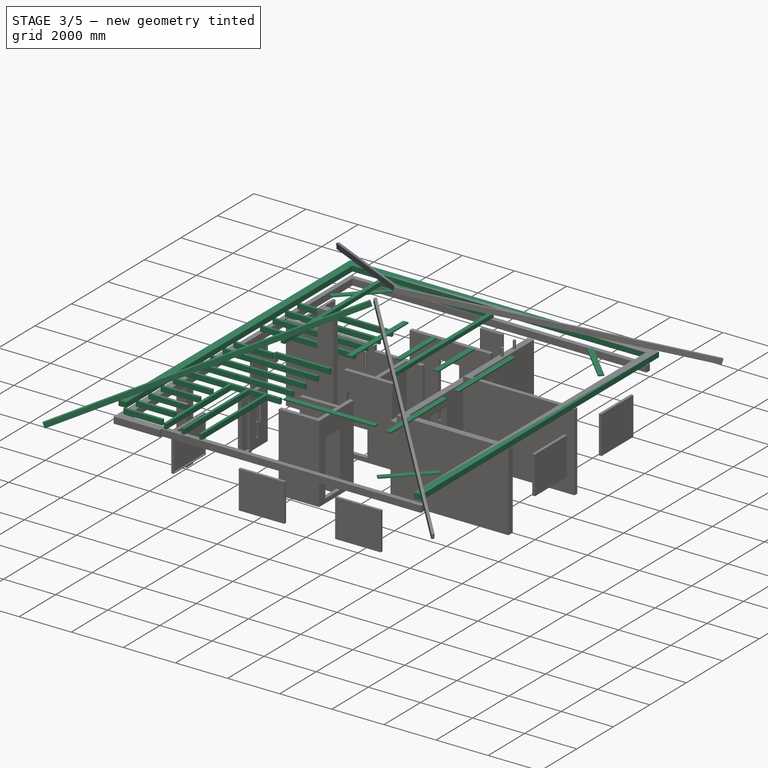
[diagram: stage 3 of 5 — iso view after this stage's code; geometry added in this stage tinted green]
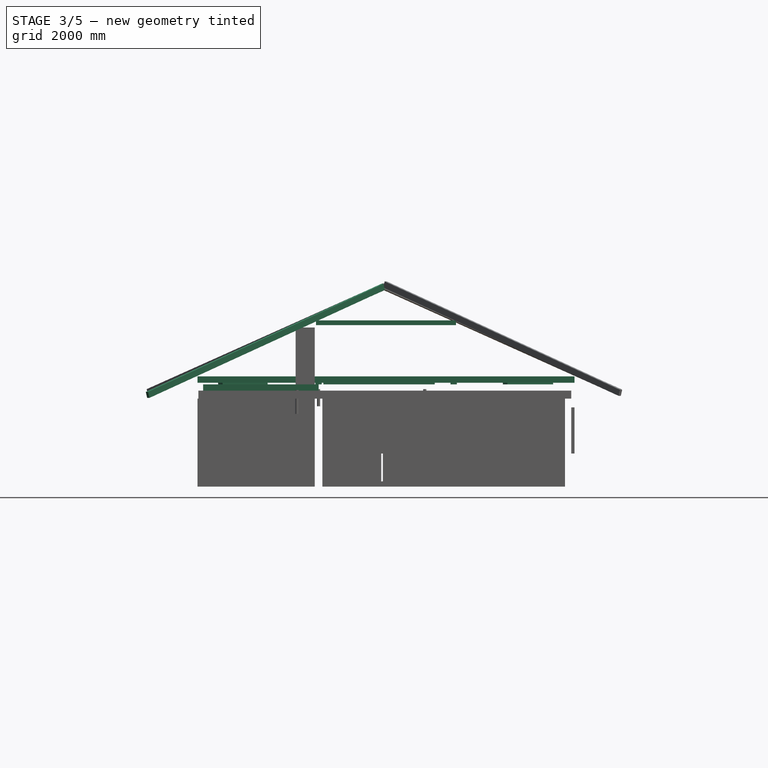
[diagram: stage 3 of 5 — front view after this stage's code; geometry added in this stage tinted green]
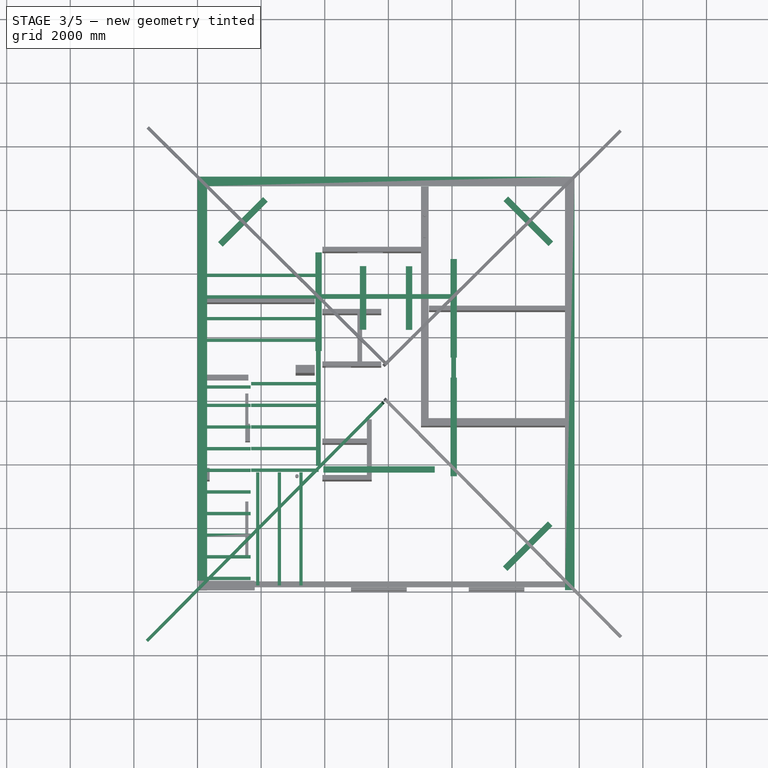
[diagram: stage 3 of 5 — top view after this stage's code; geometry added in this stage tinted green]
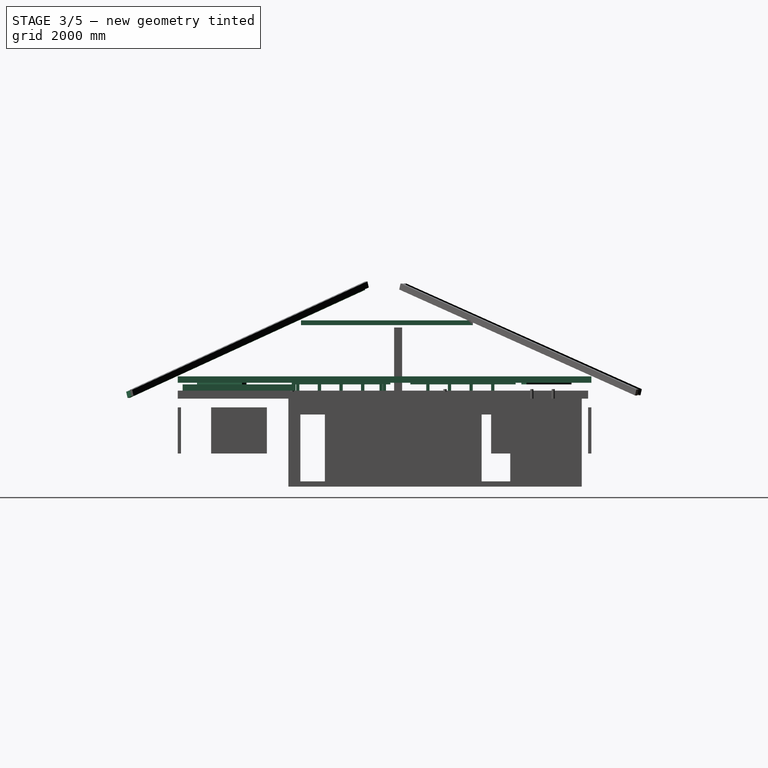
[diagram: stage 3 of 5 — right view after this stage's code; geometry added in this stage tinted green]
FEATURE [Part::FeaturePython] Structure046  label="Балка перекрытия4_005"  # Arch/BIM 7 (typed FeaturePython)
  Base = -> Rectangle028
  BaseMirror = false
  BaseOffsetX = 0
  BaseOffsetY = 0
  BasePerpendicularToTool = false
  BaseRotation = 0
  ComputedLength = 200
  FaceMaker = 0
  GlobalId = 2wJONtsCP1X9gR8eBhBhN9
  Height = 200
  HorizontalArea = 362000
  IfcData = IfcUID=2wJONtsCP1X9gR8eBhBhN9,+2 more (map truncated)
  IfcType = 7
  Length = 0
  MoveBase = false
  MoveWithHost = false
  Nodes = (2) [(1957.69,12353.5,3015),(1957.69,12353.5,3215)]
  NodesOffset = 0
  Normal = (0,0,0)
  PerimeterLength = 7440
  Placement = pos=(26.7678,-2452.32,0) rot=(0,0,1;0rad)
  PredefinedType = 0
  ToolOffsetFirst = 0
  ToolOffsetLast = 0
  VerticalArea = 1488000
  Width = 100
  expr: Height = <<data>>.beam4_height
FEATURE [Part::FeaturePython] Structure047  label="Балка перекрытия4_006"  # Arch/BIM 7 (typed FeaturePython)
  Base = -> Rectangle028
  BaseMirror = false
  BaseOffsetX = 0
  BaseOffsetY = 0
  BasePerpendicularToTool = false
  BaseRotation = 0
  ComputedLength = 200
  FaceMaker = 0
  GlobalId = 2SJR_PgkT89fVoDmX8CiAx
  Height = 200
  HorizontalArea = 362000
  IfcData = IfcUID=2SJR_PgkT89fVoDmX8CiAx,+2 more (map truncated)
  IfcType = 7
  Length = 0
  MoveBase = false
  MoveWithHost = false
  Nodes = (2) [(1957.69,12353.5,3015),(1957.69,12353.5,3215)]
  NodesOffset = 0
  Normal = (0,0,0)
  PerimeterLength = 7440
  Placement = pos=(26.7678,-3132.32,0) rot=(0,0,1;0rad)
  PredefinedType = 0
  ToolOffsetFirst = 0
  ToolOffsetLast = 0
  VerticalArea = 1488000
  Width = 100
  expr: Height = <<data>>.beam4_height
FEATURE [Part::FeaturePython] Structure048  label="Балка перекрытия4_007"  # Arch/BIM 7 (typed FeaturePython)
  Base = -> Rectangle028
  BaseMirror = false
  BaseOffsetX = 0
  BaseOffsetY = 0
  BasePerpendicularToTool = false
  BaseRotation = 0
  ComputedLength = 200
  FaceMaker = 0
  GlobalId = 3X8JZ4$2L4ABw5GvooSlo0
  Height = 200
  HorizontalArea = 362000
  IfcData = IfcUID=3X8JZ4$2L4ABw5GvooSlo0,+2 more (map truncated)
  IfcType = 7
  Length = 0
  MoveBase = false
  MoveWithHost = false
  Nodes = (2) [(1957.69,12353.5,3015),(1957.69,12353.5,3215)]
  NodesOffset = 0
  Normal = (0,0,0)
  PerimeterLength = 7440
  Placement = pos=(26.7678,-3812.32,0) rot=(0,0,1;0rad)
  PredefinedType = 0
  ToolOffsetFirst = 0
  ToolOffsetLast = 0
  VerticalArea = 1488000
  Width = 100
  expr: Height = <<data>>.beam4_height
FEATURE [Part::FeaturePython] Structure049  label="Балка перекрытия4_008"  # Arch/BIM 7 (typed FeaturePython)
  Base = -> Rectangle028
  BaseMirror = false
  BaseOffsetX = 0
  BaseOffsetY = 0
  BasePerpendicularToTool = false
  BaseRotation = 0
  ComputedLength = 200
  FaceMaker = 0
  GlobalId = 2bTLcWgW9AZQcsgFkNe1hK
  Height = 200
  HorizontalArea = 362000
  IfcData = IfcUID=2bTLcWgW9AZQcsgFkNe1hK,+2 more (map truncated)
  IfcType = 7
  Length = 0
  MoveBase = false
  MoveWithHost = false
  Nodes = (2) [(1957.69,12353.5,3015),(1957.69,12353.5,3215)]
  NodesOffset = 0
  Normal = (0,0,0)
  PerimeterLength = 7440
  Placement = pos=(26.7678,-4492.32,0) rot=(0,0,1;0rad)
  PredefinedType = 0
  ToolOffsetFirst = 0
  ToolOffsetLast = 0
  VerticalArea = 1488000
  Width = 100
  expr: Height = <<data>>.beam4_height
FEATURE [Part::Part2DObjectPython] Rectangle029  # Draft 2D object (typed FeaturePython)
  Area = 355000
  ChamferSize = 0
  Columns = 1
  FilletRadius = 0
  Height = 3550
  Length = 100
  MakeFace = true
  Placement = pos=(2617.39,-442.337,3015) rot=(0,0,1;0rad)
  Rows = 1
  expr: .Placement.Base.z = <<Внешняя стена>>.Height + <<МП-1-1>>.Height
  expr: Height = <<data>>.beam5_length
  expr: Length = <<data>>.beam5_thickness
FEATURE [Part::FeaturePython] Structure050  label="Балка перекрытия5_1"  # Arch/BIM 7 (typed FeaturePython)
  Base = -> Rectangle029
  BaseMirror = false
  BaseOffsetX = 0
  BaseOffsetY = 0
  BasePerpendicularToTool = false
  BaseRotation = 0
  ComputedLength = 200
  FaceMaker = 0
  GlobalId = 3lFNx2OuH9qfAVkYdCVM00
  Height = 200
  HorizontalArea = 355000
  IfcData = IfcUID=3lFNx2OuH9qfAVkYdCVM00,+2 more (map truncated)
  IfcType = 7
  Length = 0
  MoveBase = false
  MoveWithHost = false
  Nodes = (2) [(2667.39,1332.66,3015),(2667.39,1332.66,3215)]
  NodesOffset = 0
  Normal = (0,0,0)
  PerimeterLength = 7300
  Placement = pos=(-775.079,596.051,0) rot=(0,0,1;0rad)
  PredefinedType = 0
  ToolOffsetFirst = 0
  ToolOffsetLast = 0
  VerticalArea = 1460000
  Width = 100
  expr: Height = <<data>>.beam5_height
FEATURE [Part::FeaturePython] Structure051  label="Балка перекрытия5_002"  # Arch/BIM 7 (typed FeaturePython)
  Base = -> Rectangle029
  BaseMirror = false
  BaseOffsetX = 0
  BaseOffsetY = 0
  BasePerpendicularToTool = false
  BaseRotation = 0
  ComputedLength = 200
  FaceMaker = 0
  GlobalId = 1QgHwHP9j07vu0VWqY6Qmv
  Height = 200
  HorizontalArea = 355000
  IfcData = IfcUID=1QgHwHP9j07vu0VWqY6Qmv,+2 more (map truncated)
  IfcType = 7
  Length = 0
  MoveBase = false
  MoveWithHost = false
  Nodes = (2) [(2667.39,1332.66,3015),(2667.39,1332.66,3215)]
  NodesOffset = 0
  Normal = (0,0,0)
  PerimeterLength = 7300
  Placement = pos=(-95.079,596.051,0) rot=(0,0,1;0rad)
  PredefinedType = 0
  ToolOffsetFirst = 0
  ToolOffsetLast = 0
  VerticalArea = 1460000
  Width = 100
  expr: Height = <<data>>.beam5_height
FEATURE [Part::FeaturePython] Structure052  label="Балка перекрытия5_003"  # Arch/BIM 7 (typed FeaturePython)
  Base = -> Rectangle029
  BaseMirror = false
  BaseOffsetX = 0
  BaseOffsetY = 0
  BasePerpendicularToTool = false
  BaseRotation = 0
  ComputedLength = 200
  FaceMaker = 0
  GlobalId = 2e8X3F$yrFNxThQi7r7cwv
  Height = 200
  HorizontalArea = 355000
  IfcData = IfcUID=2e8X3F$yrFNxThQi7r7cwv,+2 more (map truncated)
  IfcType = 7
  Length = 0
  MoveBase = false
  MoveWithHost = false
  Nodes = (2) [(2667.39,1332.66,3015),(2667.39,1332.66,3215)]
  NodesOffset = 0
  Normal = (0,0,0)
  PerimeterLength = 7300
  Placement = pos=(584.921,596.051,0) rot=(0,0,1;0rad)
  PredefinedType = 0
  ToolOffsetFirst = 0
  ToolOffsetLast = 0
  VerticalArea = 1460000
  Width = 100
  expr: Height = <<data>>.beam5_height
FEATURE [Part::Part2DObjectPython] Rectangle030  # Draft 2D object (typed FeaturePython)
  Area = 212000
  ChamferSize = 0
  Columns = 1
  FilletRadius = 0
  Height = 100
  Length = 2120
  MakeFace = true
  Placement = pos=(1649.8,3885.64,3015) rot=(0,0,1;0rad)
  Rows = 1
  expr: .Placement.Base.z = <<Внешняя стена>>.Height + <<МП-1-1>>.Height
  expr: Height = <<data>>.beam6_thickness
  expr: Length = <<data>>.beam6_length
FEATURE [Part::FeaturePython] Structure053  label="Балка перекрытия6_1"  # Arch/BIM 7 (typed FeaturePython)
  Base = -> Rectangle030
  BaseMirror = false
  BaseOffsetX = 0
  BaseOffsetY = 0
  BasePerpendicularToTool = false
  BaseRotation = 0
  ComputedLength = 200
  FaceMaker = 0
  GlobalId = 32aawkrV58JuDNS5K9O4nb
  Height = 200
  HorizontalArea = 212000
  IfcData = IfcUID=32aawkrV58JuDNS5K9O4nb,+2 more (map truncated)
  IfcType = 7
  Length = 0
  MoveBase = false
  MoveWithHost = false
  Nodes = (2) [(2709.8,3935.64,3015),(2709.8,3935.64,3215)]
  NodesOffset = 0
  Normal = (0,0,0)
  PerimeterLength = 4440
  Placement = pos=(35.886,-161.488,0) rot=(0,0,1;0rad)
  PredefinedType = 0
  ToolOffsetFirst = 0
  ToolOffsetLast = 0
  VerticalArea = 888000
  Width = 100
  expr: Height = <<data>>.beam6_height
FEATURE [Part::FeaturePython] Structure054  label="Балка перекрытия6_002"  # Arch/BIM 7 (typed FeaturePython)
  Base = -> Rectangle030
  BaseMirror = false
  BaseOffsetX = 0
  BaseOffsetY = 0
  BasePerpendicularToTool = false
  BaseRotation = 0
  ComputedLength = 200
  FaceMaker = 0
  GlobalId = 0JB1eaStjFyf0amdRCQaOJ
  Height = 200
  HorizontalArea = 212000
  IfcData = IfcUID=0JB1eaStjFyf0amdRCQaOJ,+2 more (map truncated)
  IfcType = 7
  Length = 0
  MoveBase = false
  MoveWithHost = false
  Nodes = (2) [(2709.8,3935.64,3015),(2709.8,3935.64,3215)]
  NodesOffset = 0
  Normal = (0,0,0)
  PerimeterLength = 4440
  Placement = pos=(35.886,518.512,0) rot=(0,0,1;0rad)
  PredefinedType = 0
  ToolOffsetFirst = 0
  ToolOffsetLast = 0
  VerticalArea = 888000
  Width = 100
  expr: Height = <<data>>.beam6_height
FEATURE [Part::FeaturePython] Structure055  label="Балка перекрытия6_003"  # Arch/BIM 7 (typed FeaturePython)
  Base = -> Rectangle030
  BaseMirror = false
  BaseOffsetX = 0
  BaseOffsetY = 0
  BasePerpendicularToTool = false
  BaseRotation = 0
  ComputedLength = 200
  FaceMaker = 0
  GlobalId = 0yUCnRONH5NP3HOoSqPn83
  Height = 200
  HorizontalArea = 212000
  IfcData = IfcUID=0yUCnRONH5NP3HOoSqPn83,+2 more (map truncated)
  IfcType = 7
  Length = 0
  MoveBase = false
  MoveWithHost = false
  Nodes = (2) [(2709.8,3935.64,3015),(2709.8,3935.64,3215)]
  NodesOffset = 0
  Normal = (0,0,0)
  PerimeterLength = 4440
  Placement = pos=(35.886,1198.51,0) rot=(0,0,1;0rad)
  PredefinedType = 0
  ToolOffsetFirst = 0
  ToolOffsetLast = 0
  VerticalArea = 888000
  Width = 100
  expr: Height = <<data>>.beam6_height
FEATURE [Part::FeaturePython] Structure056  label="Балка перекрытия6_004"  # Arch/BIM 7 (typed FeaturePython)
  Base = -> Rectangle030
  BaseMirror = false
  BaseOffsetX = 0
  BaseOffsetY = 0
  BasePerpendicularToTool = false
  BaseRotation = 0
  ComputedLength = 200
  FaceMaker = 0
  GlobalId = 3pVHa8lXb0re7Xnt3o9knu
  Height = 200
  HorizontalArea = 212000
  IfcData = IfcUID=3pVHa8lXb0re7Xnt3o9knu,+2 more (map truncated)
  IfcType = 7
  Length = 0
  MoveBase = false
  MoveWithHost = false
  Nodes = (2) [(2709.8,3935.64,3015),(2709.8,3935.64,3215)]
  NodesOffset = 0
  Normal = (0,0,0)
  PerimeterLength = 4440
  Placement = pos=(35.886,1878.51,0) rot=(0,0,1;0rad)
  PredefinedType = 0
  ToolOffsetFirst = 0
  ToolOffsetLast = 0
  VerticalArea = 888000
  Width = 100
  expr: Height = <<data>>.beam6_height
FEATURE [Part::FeaturePython] Structure057  label="Балка перекрытия6_005"  # Arch/BIM 7 (typed FeaturePython)
  Base = -> Rectangle030
  BaseMirror = false
  BaseOffsetX = 0
  BaseOffsetY = 0
  BasePerpendicularToTool = false
  BaseRotation = 0
  ComputedLength = 200
  FaceMaker = 0
  GlobalId = 08RMFQwizDn9JI6b9TdOWT
  Height = 200
  HorizontalArea = 212000
  IfcData = IfcUID=08RMFQwizDn9JI6b9TdOWT,+2 more (map truncated)
  IfcType = 7
  Length = 0
  MoveBase = false
  MoveWithHost = false
  Nodes = (2) [(2709.8,3935.64,3015),(2709.8,3935.64,3215)]
  NodesOffset = 0
  Normal = (0,0,0)
  PerimeterLength = 4440
  Placement = pos=(35.886,2558.51,0) rot=(0,0,1;0rad)
  PredefinedType = 0
  ToolOffsetFirst = 0
  ToolOffsetLast = 0
  VerticalArea = 888000
  Width = 100
  expr: Height = <<data>>.beam6_height
FEATURE [Part::Part2DObjectPython] Rectangle031  # Draft 2D object (typed FeaturePython)
  Area = 149500
  ChamferSize = 0
  Columns = 1
  FilletRadius = 0
  Height = 100
  Length = 1495
  MakeFace = true
  Placement = pos=(134.639,345.287,3015) rot=(0,0,1;0rad)
  Rows = 1
  expr: .Placement.Base.z = <<Внешняя стена>>.Height + <<МП-1-1>>.Height
  expr: Height = <<data>>.beam7_thickness
  expr: Length = <<data>>.beam7_length
FEATURE [Part::FeaturePython] Structure058  label="Балка перекрытия7_1"  # Arch/BIM 7 (typed FeaturePython)
  Base = -> Rectangle031
  BaseMirror = false
  BaseOffsetX = 0
  BaseOffsetY = 0
  BasePerpendicularToTool = false
  BaseRotation = 0
  ComputedLength = 200
  FaceMaker = 0
  GlobalId = 1bhrU9mzTCuv5BJEBVd8n0
  Height = 200
  HorizontalArea = 149500
  IfcData = IfcUID=1bhrU9mzTCuv5BJEBVd8n0,+2 more (map truncated)
  IfcType = 7
  Length = 0
  MoveBase = false
  MoveWithHost = false
  Nodes = (2) [(882.139,395.287,3015),(882.139,395.287,3215)]
  NodesOffset = 0
  Normal = (0,0,0)
  PerimeterLength = 3190
  Placement = pos=(40.092,-24.0551,0) rot=(0,0,1;0rad)
  PredefinedType = 0
  ToolOffsetFirst = 0
  ToolOffsetLast = 0
  VerticalArea = 638000
  Width = 100
  expr: Height = <<data>>.beam7_height
FEATURE [Part::FeaturePython] Structure059  label="Балка перекрытия7_002"  # Arch/BIM 7 (typed FeaturePython)
  Base = -> Rectangle031
  BaseMirror = false
  BaseOffsetX = 0
  BaseOffsetY = 0
  BasePerpendicularToTool = false
  BaseRotation = 0
  ComputedLength = 200
  FaceMaker = 0
  GlobalId = 2kcaoxoDD22xaLXZ5q2Fpv
  Height = 200
  HorizontalArea = 149500
  IfcData = IfcUID=2kcaoxoDD22xaLXZ5q2Fpv,+2 more (map truncated)
  IfcType = 7
  Length = 0
  MoveBase = false
  MoveWithHost = false
  Nodes = (2) [(882.139,395.287,3015),(882.139,395.287,3215)]
  NodesOffset = 0
  Normal = (0,0,0)
  PerimeterLength = 3190
  Placement = pos=(40.092,655.945,0) rot=(0,0,1;0rad)
  PredefinedType = 0
  ToolOffsetFirst = 0
  ToolOffsetLast = 0
  VerticalArea = 638000
  Width = 100
  expr: Height = <<data>>.beam7_height
FEATURE [Part::FeaturePython] Structure060  label="Балка перекрытия7_003"  # Arch/BIM 7 (typed FeaturePython)
  Base = -> Rectangle031
  BaseMirror = false
  BaseOffsetX = 0
  BaseOffsetY = 0
  BasePerpendicularToTool = false
  BaseRotation = 0
  ComputedLength = 200
  FaceMaker = 0
  GlobalId = 39J6RAqRz1j8t18M4UyvtE
  Height = 200
  HorizontalArea = 149500
  IfcData = IfcUID=39J6RAqRz1j8t18M4UyvtE,+2 more (map truncated)
  IfcType = 7
  Length = 0
  MoveBase = false
  MoveWithHost = false
  Nodes = (2) [(882.139,395.287,3015),(882.139,395.287,3215)]
  NodesOffset = 0
  Normal = (0,0,0)
  PerimeterLength = 3190
  Placement = pos=(40.092,1335.94,0) rot=(0,0,1;0rad)
  PredefinedType = 0
  ToolOffsetFirst = 0
  ToolOffsetLast = 0
  VerticalArea = 638000
  Width = 100
  expr: Height = <<data>>.beam7_height
FEATURE [Part::FeaturePython] Structure061  label="Балка перекрытия7_004"  # Arch/BIM 7 (typed FeaturePython)
  Base = -> Rectangle031
  BaseMirror = false
  BaseOffsetX = 0
  BaseOffsetY = 0
  BasePerpendicularToTool = false
  BaseRotation = 0
  ComputedLength = 200
  FaceMaker = 0
  GlobalId = 1a4oSDBYX0FwX2AcW0l0rq
  Height = 200
  HorizontalArea = 149500
  IfcData = IfcUID=1a4oSDBYX0FwX2AcW0l0rq,+2 more (map truncated)
  IfcType = 7
  Length = 0
  MoveBase = false
  MoveWithHost = false
  Nodes = (2) [(882.139,395.287,3015),(882.139,395.287,3215)]
  NodesOffset = 0
  Normal = (0,0,0)
  PerimeterLength = 3190
  Placement = pos=(40.092,2015.94,0) rot=(0,0,1;0rad)
  PredefinedType = 0
  ToolOffsetFirst = 0
  ToolOffsetLast = 0
  VerticalArea = 638000
  Width = 100
  expr: Height = <<data>>.beam7_height
FEATURE [Part::FeaturePython] Structure062  label="Балка перекрытия7_005"  # Arch/BIM 7 (typed FeaturePython)
  Base = -> Rectangle031
  BaseMirror = false
  BaseOffsetX = 0
  BaseOffsetY = 0
  BasePerpendicularToTool = false
  BaseRotation = 0
  ComputedLength = 200
  FaceMaker = 0
  GlobalId = 0B9RPFpPTDx8ZoCmYMNyG4
  Height = 200
  HorizontalArea = 149500
  IfcData = IfcUID=0B9RPFpPTDx8ZoCmYMNyG4,+2 more (map truncated)
  IfcType = 7
  Length = 0
  MoveBase = false
  MoveWithHost = false
  Nodes = (2) [(882.139,395.287,3015),(882.139,395.287,3215)]
  NodesOffset = 0
  Normal = (0,0,0)
  PerimeterLength = 3190
  Placement = pos=(40.092,2695.94,0) rot=(0,0,1;0rad)
  PredefinedType = 0
  ToolOffsetFirst = 0
  ToolOffsetLast = 0
  VerticalArea = 638000
  Width = 100
  expr: Height = <<data>>.beam7_height
FEATURE [Part::FeaturePython] Structure063  label="Балка перекрытия7_006"  # Arch/BIM 7 (typed FeaturePython)
  Base = -> Rectangle031
  BaseMirror = false
  BaseOffsetX = 0
  BaseOffsetY = 0
  BasePerpendicularToTool = false
  BaseRotation = 0
  ComputedLength = 200
  FaceMaker = 0
  GlobalId = 19KjFcBuT6l9o0hRHDM9wj
  Height = 200
  HorizontalArea = 149500
  IfcData = IfcUID=19KjFcBuT6l9o0hRHDM9wj,+2 more (map truncated)
  IfcType = 7
  Length = 0
  MoveBase = false
  MoveWithHost = false
  Nodes = (2) [(882.139,395.287,3015),(882.139,395.287,3215)]
  NodesOffset = 0
  Normal = (0,0,0)
  PerimeterLength = 3190
  Placement = pos=(40.092,3375.94,0) rot=(0,0,1;0rad)
  PredefinedType = 0
  ToolOffsetFirst = 0
  ToolOffsetLast = 0
  VerticalArea = 638000
  Width = 100
  expr: Height = <<data>>.beam7_height
FEATURE [Part::FeaturePython] Structure064  label="Балка перекрытия7_007"  # Arch/BIM 7 (typed FeaturePython)
  Base = -> Rectangle031
  BaseMirror = false
  BaseOffsetX = 0
  BaseOffsetY = 0
  BasePerpendicularToTool = false
  BaseRotation = 0
  ComputedLength = 200
  FaceMaker = 0
  GlobalId = 15qxEAyQn5$9EK_Tjn$vRO
  Height = 200
  HorizontalArea = 149500
  IfcData = IfcUID=15qxEAyQn5$9EK_Tjn$vRO,+2 more (map truncated)
  IfcType = 7
  Length = 0
  MoveBase = false
  MoveWithHost = false
  Nodes = (2) [(882.139,395.287,3015),(882.139,395.287,3215)]
  NodesOffset = 0
  Normal = (0,0,0)
  PerimeterLength = 3190
  Placement = pos=(40.092,4055.94,0) rot=(0,0,1;0rad)
  PredefinedType = 0
  ToolOffsetFirst = 0
  ToolOffsetLast = 0
  VerticalArea = 638000
  Width = 100
  expr: Height = <<data>>.beam7_height
FEATURE [Part::FeaturePython] Structure065  label="Балка перекрытия7_008"  # Arch/BIM 7 (typed FeaturePython)
  Base = -> Rectangle031
  BaseMirror = false
  BaseOffsetX = 0
  BaseOffsetY = 0
  BasePerpendicularToTool = false
  BaseRotation = 0
  ComputedLength = 200
  FaceMaker = 0
  GlobalId = 2kYCSy9DLD$98PvPV_Y$cb
  Height = 200
  HorizontalArea = 149500
  IfcData = IfcUID=2kYCSy9DLD$98PvPV_Y$cb,+2 more (map truncated)
  IfcType = 7
  Length = 0
  MoveBase = false
  MoveWithHost = false
  Nodes = (2) [(882.139,395.287,3015),(882.139,395.287,3215)]
  NodesOffset = 0
  Normal = (0,0,0)
  PerimeterLength = 3190
  Placement = pos=(40.092,4735.94,0) rot=(0,0,1;0rad)
  PredefinedType = 0
  ToolOffsetFirst = 0
  ToolOffsetLast = 0
  VerticalArea = 638000
  Width = 100
  expr: Height = <<data>>.beam7_height
FEATURE [Part::FeaturePython] Structure066  label="Балка перекрытия7_009"  # Arch/BIM 7 (typed FeaturePython)
  Base = -> Rectangle031
  BaseMirror = false
  BaseOffsetX = 0
  BaseOffsetY = 0
  BasePerpendicularToTool = false
  BaseRotation = 0
  ComputedLength = 200
  FaceMaker = 0
  GlobalId = 0Eba9_wtP1Jg1syBtpX4RN
  Height = 200
  HorizontalArea = 149500
  IfcData = IfcUID=0Eba9_wtP1Jg1syBtpX4RN,+2 more (map truncated)
  IfcType = 7
  Length = 0
  MoveBase = false
  MoveWithHost = false
  Nodes = (2) [(882.139,395.287,3015),(882.139,395.287,3215)]
  NodesOffset = 0
  Normal = (0,0,0)
  PerimeterLength = 3190
  Placement = pos=(40.092,5415.94,0) rot=(0,0,1;0rad)
  PredefinedType = 0
  ToolOffsetFirst = 0
  ToolOffsetLast = 0
  VerticalArea = 638000
  Width = 100
  expr: Height = <<data>>.beam7_height
FEATURE [Part::FeaturePython] Structure067  label="Балка перекрытия7_010"  # Arch/BIM 7 (typed FeaturePython)
  Base = -> Rectangle031
  BaseMirror = false
  BaseOffsetX = 0
  BaseOffsetY = 0
  BasePerpendicularToTool = false
  BaseRotation = 0
  ComputedLength = 200
  FaceMaker = 0
  GlobalId = 2fU3dcy1jEtw8Fu6wl5FDb
  Height = 200
  HorizontalArea = 149500
  IfcData = IfcUID=2fU3dcy1jEtw8Fu6wl5FDb,+2 more (map truncated)
  IfcType = 7
  Length = 0
  MoveBase = false
  MoveWithHost = false
  Nodes = (2) [(882.139,395.287,3015),(882.139,395.287,3215)]
  NodesOffset = 0
  Normal = (0,0,0)
  PerimeterLength = 3190
  Placement = pos=(40.092,5995.94,0) rot=(0,0,1;0rad)
  PredefinedType = 0
  ToolOffsetFirst = 0
  ToolOffsetLast = 0
  VerticalArea = 638000
  Width = 100
  expr: Height = <<data>>.beam7_height
FEATURE [Part::Part2DObjectPython] Rectangle044  # Draft 2D object (typed FeaturePython)
  Area = 3.81e+06
  ChamferSize = 0
  Columns = 1
  FilletRadius = 0
  Height = 12700
  Length = 300
  MakeFace = true
  Placement = pos=(11550,0,3265) rot=(0,0,1;0rad)
  Rows = 1
  expr: .Placement.Base.z = <<Внешняя стена>>.Height + <<опалубка_100мм>>.Height + <<Один ряд блоков>>.Height
FEATURE [Part::FeaturePython] Structure080  label="МП-3-2"  # Arch/BIM 13 (typed FeaturePython)
  Base = -> Rectangle044
  BaseMirror = false
  BaseOffsetX = 0
  BaseOffsetY = 0
  BasePerpendicularToTool = false
  BaseRotation = 0
  ComputedLength = 200
  FaceMaker = 0
  GlobalId = 3iilHprzL5rPPvFxHsiJOI
  Height = 200
  HorizontalArea = 3.81e+06
  IfcData = IfcUID=3iilHprzL5rPPvFxHsiJOI,+2 more (map truncated)
  IfcType = 13
  Length = 0
  MoveBase = false
  MoveWithHost = false
  Nodes = (2) [(11700,6350,3265),(11700,6350,3465)]
  NodesOffset = 0
  Normal = (0,0,0)
  PerimeterLength = 26000
  PredefinedType = 0
  ToolOffsetFirst = 0
  ToolOffsetLast = 0
  VerticalArea = 5.2e+06
  Width = 100
FEATURE [Part::Part2DObjectPython] Rectangle045  # Draft 2D object (typed FeaturePython)
  Area = 3.465e+06
  ChamferSize = 0
  Columns = 1
  FilletRadius = 0
  Height = 300
  Length = 11550
  MakeFace = true
  Placement = pos=(300,12700,3265) rot=(0,0,1;0rad)
  Rows = 1
  expr: .Placement.Base.z = <<Внешняя стена>>.Height + <<опалубка_100мм>>.Height + <<Один ряд блоков>>.Height
FEATURE [Part::FeaturePython] Structure081  label="МП-3-3"  # Arch/BIM 7 (typed FeaturePython)
  Base = -> Rectangle045
  BaseMirror = false
  BaseOffsetX = 0
  BaseOffsetY = 0
  BasePerpendicularToTool = false
  BaseRotation = 0
  ComputedLength = 200
  FaceMaker = 0
  GlobalId = 0t5PrXCqv2tvGEpqmH4Y_L
  Height = 200
  HorizontalArea = 3.465e+06
  IfcData = IfcUID=0t5PrXCqv2tvGEpqmH4Y_L,+2 more (map truncated)
  IfcType = 7
  Length = 0
  MoveBase = false
  MoveWithHost = false
  Nodes = (2) [(6075,12850,3265),(6075,12850,3465)]
  NodesOffset = 0
  Normal = (0,0,0)
  PerimeterLength = 23700
  PredefinedType = 0
  ToolOffsetFirst = 0
  ToolOffsetLast = 0
  VerticalArea = 4740000
  Width = 100
FEATURE [Part::Part2DObjectPython] Rectangle046  # Draft 2D object (typed FeaturePython)
  Area = 3.81e+06
  ChamferSize = 0
  Columns = 1
  FilletRadius = 0
  Height = 12700
  Length = 300
  MakeFace = true
  Placement = pos=(0,300,3265) rot=(0,0,1;0rad)
  Rows = 1
  expr: .Placement.Base.z = <<Внешняя стена>>.Height + <<опалубка_100мм>>.Height + <<Один ряд блоков>>.Height
FEATURE [Part::FeaturePython] Structure082  label="МП-3-4"  # Arch/BIM 7 (typed FeaturePython)
  Base = -> Rectangle046
  BaseMirror = false
  BaseOffsetX = 0
  BaseOffsetY = 0
  BasePerpendicularToTool = false
  BaseRotation = 0
  ComputedLength = 200
  FaceMaker = 0
  GlobalId = 1PUSRv__1AEBhXXLCXgJmD
  Height = 200
  HorizontalArea = 3.81e+06
  IfcData = IfcUID=1PUSRv__1AEBhXXLCXgJmD,+2 more (map truncated)
  IfcType = 7
  Length = 0
  MoveBase = false
  MoveWithHost = false
  Nodes = (2) [(150,6650,3265),(150,6650,3465)]
  NodesOffset = 0
  Normal = (0,0,0)
  PerimeterLength = 26000
  PredefinedType = 0
  ToolOffsetFirst = 0
  ToolOffsetLast = 0
  VerticalArea = 5200000
  Width = 100
FEATURE [Part::Part2DObjectPython] Rectangle047  # Draft 2D object (typed FeaturePython)
  Area = 900000
  ChamferSize = 0
  Columns = 1
  FilletRadius = 0
  Height = 150
  Length = 6000
  MakeFace = true
  Placement = pos=(0,191.266,3465) rot=(0,0,1;0rad)
  Rows = 1
  expr: .Placement.Base.z = <<Внешняя стена>>.Height + <<опалубка_100мм>>.Height + <<Один ряд блоков>>.Height + <<МП-3-1>>.Height
  expr: Height = <<data>>.mt_height
  expr: Length = <<data>>.mt_length
FEATURE [Part::FeaturePython] Structure083  label="мауэрлат1"  # Arch/BIM 13 (typed FeaturePython)
  Base = -> Rectangle047
  BaseMirror = false
  BaseOffsetX = 0
  BaseOffsetY = 0
  BasePerpendicularToTool = false
  BaseRotation = 0
  ComputedLength = 150
  FaceMaker = 0
  Height = 150
  HorizontalArea = 900000
  IfcData = attributes={"GlobalId": {"name": "GlobalId", "type": "IfcGloballyUniqueId", "is_enum": false, "enum_values": []}, "Description": {"... (+484 chars omitted),+1 more (map truncated)
  IfcType = 13
  Length = 0
  MoveBase = false
  MoveWithHost = false
  Nodes = (2) [(3000,266.266,3465),(3000,266.266,3615)]
  NodesOffset = 0
  Normal = (0,0,0)
  PerimeterLength = 12300
  Placement = pos=(150,-41.2664,0) rot=(0,0,1;0rad)
  PredefinedType = 0
  ToolOffsetFirst = 0
  ToolOffsetLast = 0
  VerticalArea = 1845000
  Width = 100
  expr: Height = <<data>>.mt_thickness
FEATURE [Part::FeaturePython] Structure084  label="мауэрлат002"  # Arch/BIM 13 (typed FeaturePython)
  Base = -> Rectangle047
  BaseMirror = false
  BaseOffsetX = 0
  BaseOffsetY = 0
  BasePerpendicularToTool = false
  BaseRotation = 0
  ComputedLength = 150
  FaceMaker = 0
  Height = 150
  HorizontalArea = 900000
  IfcData = attributes={"GlobalId": {"name": "GlobalId", "type": "IfcGloballyUniqueId", "is_enum": false, "enum_values": []}, "Description": {"... (+484 chars omitted),+1 more (map truncated)
  IfcType = 13
  Length = 0
  MoveBase = false
  MoveWithHost = false
  Nodes = (2) [(3000,266.266,3465),(3000,266.266,3615)]
  NodesOffset = 0
  Normal = (0,0,0)
  PerimeterLength = 12300
  Placement = pos=(491.266,300,0) rot=(0,0,1;1.5708rad)
  PredefinedType = 0
  ToolOffsetFirst = 0
  ToolOffsetLast = 0
  VerticalArea = 1.845e+06
  Width = 100
  expr: Height = <<data>>.mt_thickness
FEATURE [Part::FeaturePython] Structure086  label="мауэрлат004"  # Arch/BIM 13 (typed FeaturePython)
  Base = -> Rectangle047
  BaseMirror = false
  BaseOffsetX = 0
  BaseOffsetY = 0
  BasePerpendicularToTool = false
  BaseRotation = 0
  ComputedLength = 150
  FaceMaker = 0
  Height = 150
  HorizontalArea = 900000
  IfcData = attributes={"GlobalId": {"name": "GlobalId", "type": "IfcGloballyUniqueId", "is_enum": false, "enum_values": []}, "Description": {"... (+484 chars omitted),+1 more (map truncated)
  IfcType = 13
  Length = 0
  MoveBase = false
  MoveWithHost = false
  Nodes = (2) [(3000,266.266,3465),(3000,266.266,3615)]
  NodesOffset = 0
  Normal = (0,0,0)
  PerimeterLength = 12300
  Placement = pos=(11358.7,6300,0) rot=(0,0,1;4.71239rad)
  PredefinedType = 0
  ToolOffsetFirst = 0
  ToolOffsetLast = 0
  VerticalArea = 1845000
  Width = 100
  expr: Height = <<data>>.mt_thickness
FEATURE [Sketcher::SketchObject] Sketch045
  ArcFitTolerance = 1e-06
  ExternalGeometry = -> [Structure087,Structure086,Structure093,Structure083,Structure084,Structure088,Structure089,Structure096]
  FullyConstrained = true
  MakeInternals = false
  Placement = pos=(9433.6,9901.31,3265) rot=(0,0,1;0rad)
  expr: .Placement.Base.z = <<Внешняя стена>>.Height + <<опалубка_100мм>>.Height + <<Балка перекрытия1_2>>.Height + <<лежень1>>.Height
  sketch-geometry (64):
    g0: LineSegment [constr] StartX=2091.4 StartY=2773.69 StartZ=0 EndX=-9108.6 EndY=2773.69 EndZ=0
    g1: LineSegment [constr] StartX=-9108.6 StartY=2773.69 StartZ=0 EndX=-9108.6 EndY=-9576.31 EndZ=0
    g2: LineSegment [constr] StartX=-9108.6 StartY=-9576.31 StartZ=0 EndX=2091.4 EndY=-9576.31 EndZ=0
    g3: LineSegment [constr] StartX=2091.4 StartY=-9576.31 StartZ=0 EndX=2091.4 EndY=2773.69 EndZ=0
    g4: LineSegment [constr] StartX=-1308.6 StartY=-626.311 StartZ=0 EndX=-5708.6 EndY=-626.311 EndZ=0
    g5: LineSegment [constr] StartX=-5708.6 StartY=-626.311 StartZ=0 EndX=-5708.6 EndY=-6176.31 EndZ=0
    g6: LineSegment [constr] StartX=-5708.6 StartY=-6176.31 StartZ=0 EndX=-1308.6 EndY=-6176.31 EndZ=0
    g7: LineSegment [constr] StartX=-1308.6 StartY=-6176.31 StartZ=0 EndX=-1308.6 EndY=-626.311 EndZ=0
    g8: LineSegment StartX=-1308.6 StartY=-626.311 StartZ=0 EndX=-1458.6 EndY=-626.311 EndZ=0
    g9: LineSegment StartX=-1458.6 StartY=-626.311 StartZ=0 EndX=-1458.6 EndY=-776.311 EndZ=0
    g10: LineSegment StartX=-1458.6 StartY=-776.311 StartZ=0 EndX=-1308.6 EndY=-776.311 EndZ=0
    g11: LineSegment StartX=-1308.6 StartY=-776.311 StartZ=0 EndX=-1308.6 EndY=-626.311 EndZ=0
    g12: LineSegment StartX=-1308.6 StartY=-6176.31 StartZ=0 EndX=-1308.6 EndY=-6026.31 EndZ=0
    g13: LineSegment StartX=-1308.6 StartY=-6026.31 StartZ=0 EndX=-1458.6 EndY=-6026.31 EndZ=0
    g14: LineSegment StartX=-1458.6 StartY=-6026.31 StartZ=0 EndX=-1458.6 EndY=-6176.31 EndZ=0
    g15: LineSegment StartX=-1458.6 StartY=-6176.31 StartZ=0 EndX=-1308.6 EndY=-6176.31 EndZ=0
    g16: LineSegment StartX=-5708.6 StartY=-6176.31 StartZ=0 EndX=-5558.6 EndY=-6176.31 EndZ=0
    g17: LineSegment StartX=-5558.6 StartY=-6176.31 StartZ=0 EndX=-5558.6 EndY=-6026.31 EndZ=0
    g18: LineSegment StartX=-5558.6 StartY=-6026.31 StartZ=0 EndX=-5708.6 EndY=-6026.31 EndZ=0
    g19: LineSegment StartX=-5708.6 StartY=-6026.31 StartZ=0 EndX=-5708.6 EndY=-6176.31 EndZ=0
    g20: LineSegment StartX=-5708.6 StartY=-626.311 StartZ=0 EndX=-5708.6 EndY=-776.311 EndZ=0
    g21: LineSegment StartX=-5708.6 StartY=-776.311 StartZ=0 EndX=-5558.6 EndY=-776.311 EndZ=0
    g22: LineSegment StartX=-5558.6 StartY=-776.311 StartZ=0 EndX=-5558.6 EndY=-626.311 EndZ=0
    g23: LineSegment StartX=-5558.6 StartY=-626.311 StartZ=0 EndX=-5708.6 EndY=-626.311 EndZ=0
    g24: LineSegment StartX=-5708.6 StartY=-2026.31 StartZ=0 EndX=-5708.6 EndY=-2176.31 EndZ=0
    g25: LineSegment StartX=-5708.6 StartY=-2176.31 StartZ=0 EndX=-5558.6 EndY=-2176.31 EndZ=0
    g26: LineSegment StartX=-5558.6 StartY=-2176.31 StartZ=0 EndX=-5558.6 EndY=-2026.31 EndZ=0
    g27: LineSegment StartX=-5558.6 StartY=-2026.31 StartZ=0 EndX=-5708.6 EndY=-2026.31 EndZ=0
    g28: LineSegment StartX=-5708.6 StartY=-4626.31 StartZ=0 EndX=-5708.6 EndY=-4776.31 EndZ=0
    g29: LineSegment StartX=-5708.6 StartY=-4776.31 StartZ=0 EndX=-5558.6 EndY=-4776.31 EndZ=0
    g30: LineSegment StartX=-5558.6 StartY=-4776.31 StartZ=0 EndX=-5558.6 EndY=-4626.31 EndZ=0
    g31: LineSegment StartX=-5558.6 StartY=-4626.31 StartZ=0 EndX=-5708.6 EndY=-4626.31 EndZ=0
    g32: LineSegment StartX=-5708.6 StartY=-3476.31 StartZ=0 EndX=-5558.6 EndY=-3476.31 EndZ=0
    g33: LineSegment StartX=-5558.6 StartY=-3476.31 StartZ=0 EndX=-5558.6 EndY=-3326.31 EndZ=0
    g34: LineSegment StartX=-5558.6 StartY=-3326.31 StartZ=0 EndX=-5708.6 EndY=-3326.31 EndZ=0
    g35: LineSegment StartX=-5708.6 StartY=-3326.31 StartZ=0 EndX=-5708.6 EndY=-3476.31 EndZ=0
    g36: LineSegment StartX=-1308.6 StartY=-2026.31 StartZ=0 EndX=-1458.6 EndY=-2026.31 EndZ=0
    g37: LineSegment StartX=-1458.6 StartY=-2026.31 StartZ=0 EndX=-1458.6 EndY=-2176.31 EndZ=0
    g38: LineSegment StartX=-1458.6 StartY=-2176.31 StartZ=0 EndX=-1308.6 EndY=-2176.31 EndZ=0
    g39: LineSegment StartX=-1308.6 StartY=-2176.31 StartZ=0 EndX=-1308.6 EndY=-2026.31 EndZ=0
    g40: LineSegment StartX=-1308.6 StartY=-4776.31 StartZ=0 EndX=-1308.6 EndY=-4626.31 EndZ=0
    g41: LineSegment StartX=-1308.6 StartY=-4626.31 StartZ=0 EndX=-1458.6 EndY=-4626.31 EndZ=0
    g42: LineSegment StartX=-1458.6 StartY=-4626.31 StartZ=0 EndX=-1458.6 EndY=-4776.31 EndZ=0
    g43: LineSegment StartX=-1458.6 StartY=-4776.31 StartZ=0 EndX=-1308.6 EndY=-4776.31 EndZ=0
    g44: LineSegment StartX=-1308.6 StartY=-3326.31 StartZ=0 EndX=-1458.6 EndY=-3326.31 EndZ=0
    g45: LineSegment StartX=-1458.6 StartY=-3326.31 StartZ=0 EndX=-1458.6 EndY=-3476.31 EndZ=0
    g46: LineSegment StartX=-1458.6 StartY=-3476.31 StartZ=0 EndX=-1308.6 EndY=-3476.31 EndZ=0
    g47: LineSegment StartX=-1308.6 StartY=-3476.31 StartZ=0 EndX=-1308.6 EndY=-3326.31 EndZ=0
    g48: LineSegment StartX=-4158.6 StartY=-6176.31 StartZ=0 EndX=-4158.6 EndY=-6026.31 EndZ=0
    g49: LineSegment StartX=-4158.6 StartY=-6026.31 StartZ=0 EndX=-4308.6 EndY=-6026.31 EndZ=0
    g50: LineSegment StartX=-4308.6 StartY=-6026.31 StartZ=0 EndX=-4308.6 EndY=-6176.31 EndZ=0
    g51: LineSegment StartX=-4308.6 StartY=-6176.31 StartZ=0 EndX=-4158.6 EndY=-6176.31 EndZ=0
    g52: LineSegment StartX=-2858.6 StartY=-6176.31 StartZ=0 EndX=-2858.6 EndY=-6026.31 EndZ=0
    g53: LineSegment StartX=-2858.6 StartY=-6026.31 StartZ=0 EndX=-2708.6 EndY=-6026.31 EndZ=0
    g54: LineSegment StartX=-2708.6 StartY=-6026.31 StartZ=0 EndX=-2708.6 EndY=-6176.31 EndZ=0
    g55: LineSegment StartX=-2708.6 StartY=-6176.31 StartZ=0 EndX=-2858.6 EndY=-6176.31 EndZ=0
    g56: LineSegment StartX=-2708.6 StartY=-626.311 StartZ=0 EndX=-2858.6 EndY=-626.311 EndZ=0
    g57: LineSegment StartX=-2858.6 StartY=-626.311 StartZ=0 EndX=-2858.6 EndY=-776.311 EndZ=0
    g58: LineSegment StartX=-2858.6 StartY=-776.311 StartZ=0 EndX=-2708.6 EndY=-776.311 EndZ=0
    g59: LineSegment StartX=-2708.6 StartY=-776.311 StartZ=0 EndX=-2708.6 EndY=-626.311 EndZ=0
    g60: LineSegment StartX=-4158.6 StartY=-626.311 StartZ=0 EndX=-4308.6 EndY=-626.311 EndZ=0
    g61: LineSegment StartX=-4308.6 StartY=-626.311 StartZ=0 EndX=-4308.6 EndY=-776.311 EndZ=0
    g62: LineSegment StartX=-4308.6 StartY=-776.311 StartZ=0 EndX=-4158.6 EndY=-776.311 EndZ=0
    g63: LineSegment StartX=-4158.6 StartY=-776.311 StartZ=0 EndX=-4158.6 EndY=-626.311 EndZ=0
  constraints (188):
    c: Coincident(g0,g1)
    c: Coincident(g1,g2)
    c: Coincident(g2,g3)
    c: Coincident(g3,g0)
    c: Horizontal(g0)
    c: Horizontal(g2)
    c: Vertical(g1)
    c: Vertical(g3)
    c: DistanceY(g3,g3) = 12350
    c: DistanceX(g0,g0) = 11200
    c: Distance(g-10,g0) = 25
    c: Distance(g-8,g1) = 25
    c: Coincident(g4,g5)
    c: Coincident(g5,g6)
    c: Coincident(g6,g7)
    c: Coincident(g7,g4)
    c: Horizontal(g4)
    c: Horizontal(g6)
    c: Vertical(g5)
    c: Vertical(g7)
    c: DistanceY(g7,g7) = 5550
    c: DistanceX(g4,g4) = 4400
    c: Distance(g3,g7) = 3400
    c: Distance(g0,g4) = 3400
    c: Coincident(g8,g9)
    c: Coincident(g9,g10)
    c: Coincident(g10,g11)
    c: Coincident(g11,g8)
    c: Horizontal(g8)
    c: Horizontal(g10)
    c: Vertical(g9)
    c: Vertical(g11)
    c: Distance(g9,g11) = 150
    c: Distance(g8,g10) = 150
    c: Coincident(g8,g4)
    c: Coincident(g12,g13)
    c: Coincident(g13,g14)
    c: Coincident(g14,g15)
    c: Coincident(g15,g12)
    c: Vertical(g12)
    c: Vertical(g14)
    c: Horizontal(g13)
    c: Horizontal(g15)
    c: Distance(g12,g14) = 150
    c: Distance(g13,g15) = 150
    c: Coincident(g12,g6)
    c: Coincident(g16,g17)
    c: Coincident(g17,g18)
    c: Coincident(g18,g19)
    c: Coincident(g19,g16)
    c: Horizontal(g16)
    c: Horizontal(g18)
    c: Vertical(g17)
    c: Vertical(g19)
    c: Distance(g17,g19) = 150
    c: Distance(g16,g18) = 150
    c: Coincident(g16,g5)
    c: Coincident(g20,g21)
    c: Coincident(g21,g22)
    c: Coincident(g22,g23)
    c: Coincident(g23,g20)
    c: Vertical(g20)
    c: Vertical(g22)
    c: Horizontal(g21)
    c: Horizontal(g23)
    c: Distance(g20,g22) = 150
    c: Distance(g21,g23) = 150
    c: Coincident(g20,g4)
    c: Coincident(g24,g25)
    c: Coincident(g25,g26)
    c: Coincident(g26,g27)
    c: Coincident(g27,g24)
    c: Vertical(g24)
    c: Vertical(g26)
    c: Horizontal(g25)
    c: Horizontal(g27)
    c: Distance(g24,g26) = 150
    c: Distance(g25,g27) = 150
    c: PointOnObject(g24,g5)
    c: DistanceY(g24,g20) = 1250
    c: Coincident(g28,g29)
    c: Coincident(g29,g30)
    c: Coincident(g30,g31)
    c: Coincident(g31,g28)
    c: Vertical(g28)
    c: Vertical(g30)
    c: Horizontal(g29)
    c: Horizontal(g31)
    c: Distance(g28,g30) = 150
    c: Distance(g29,g31) = 150
    c: PointOnObject(g28,g5)
    c: DistanceY(g18,g28) = 1250
    c: Coincident(g32,g33)
    c: Coincident(g33,g34)
    c: Coincident(g34,g35)
    c: Coincident(g35,g32)
    c: Horizontal(g32)
    c: Horizontal(g34)
    c: Vertical(g33)
    c: Vertical(g35)
    c: Distance(g33,g35) = 150
    c: Distance(g32,g34) = 150
    c: DistanceY(g34,g24) = 1150
    c: PointOnObject(g32,g5)
    c: Coincident(g36,g37)
    c: Coincident(g37,g38)
    c: Coincident(g38,g39)
    c: Coincident(g39,g36)
    c: Horizontal(g36)
    c: Horizontal(g38)
    c: Vertical(g37)
    c: Vertical(g39)
    c: Distance(g37,g39) = 150
    c: Distance(g36,g38) = 150
    c: PointOnObject(g36,g7)
    c: DistanceY(g36,g9) = 1250
    c: Coincident(g40,g41)
    c: Coincident(g41,g42)
    c: Coincident(g42,g43)
    c: Coincident(g43,g40)
    c: Vertical(g40)
    c: Vertical(g42)
    c: Horizontal(g41)
    c: Horizontal(g43)
    c: Distance(g40,g42) = 150
    c: Distance(g41,g43) = 150
    c: PointOnObject(g40,g7)
    c: DistanceY(g13,g42) = 1250
    c: Coincident(g44,g45)
    c: Coincident(g45,g46)
    c: Coincident(g46,g47)
    c: Coincident(g47,g44)
    c: Horizontal(g44)
    c: Horizontal(g46)
    c: Vertical(g45)
    c: Vertical(g47)
    c: Distance(g45,g47) = 150
    c: Distance(g44,g46) = 150
    c: DistanceY(g44,g38) = 1150
    c: PointOnObject(g46,g7)
    c: Coincident(g48,g49)
    c: Coincident(g49,g50)
    c: Coincident(g50,g51)
    c: Coincident(g51,g48)
    c: Vertical(g48)
    c: Vertical(g50)
    c: Horizontal(g49)
    c: Horizontal(g51)
    c: Distance(g48,g50) = 150
    c: Distance(g49,g51) = 150
    c: PointOnObject(g48,g6)
    c: DistanceX(g16,g50) = 1250
    c: Coincident(g52,g53)
    c: Coincident(g53,g54)
    c: Coincident(g54,g55)
    c: Coincident(g55,g52)
    c: Vertical(g52)
    c: Vertical(g54)
    c: Horizontal(g53)
    c: Horizontal(g55)
    c: Distance(g52,g54) = 150
    c: Distance(g53,g55) = 150
    c: PointOnObject(g52,g6)
    c: DistanceX(g54,g6) = 1400
    c: Coincident(g56,g57)
    c: Coincident(g57,g58)
    c: Coincident(g58,g59)
    c: Coincident(g59,g56)
    c: Horizontal(g56)
    c: Horizontal(g58)
    c: Vertical(g57)
    c: Vertical(g59)
    c: Distance(g57,g59) = 150
    c: Distance(g56,g58) = 150
    c: PointOnObject(g56,g4)
    c: DistanceX(g56,g4) = 1400
    c: Coincident(g60,g61)
    c: Coincident(g61,g62)
    c: Coincident(g62,g63)
    c: Coincident(g63,g60)
    c: Horizontal(g60)
    c: Horizontal(g62)
    c: Vertical(g61)
    c: Vertical(g63)
    c: Distance(g61,g63) = 150
    c: Distance(g60,g62) = 150
    c: PointOnObject(g60,g4)
    c: DistanceX(g4,g60) = 1400
FEATURE [Part::Extrusion] Extrude018
  Base = -> Sketch045
  Dir = (0,0,1)
  DirMode = 2
  FaceMakerClass = Part::FaceMakerBullseye
  FaceMakerMode = 3
  LengthFwd = 1810
  LengthRev = 0
  Solid = true
  Symmetric = false
  expr: LengthFwd = <<data>>.stoika_height
FEATURE [Part::Part2DObjectPython] Rectangle054  # Draft 2D object (typed FeaturePython)
  Area = 620000
  ChamferSize = 0
  Columns = 1
  FilletRadius = 0
  Height = 3100
  Length = 200
  MakeFace = true
  Placement = pos=(3727.15,8690.37,3215) rot=(0,0,1;0rad)
  Rows = 1
  expr: .Placement.Base.z = <<Внешняя стена>>.Height + <<опалубка_100мм>>.Height + <<Балка перекрытия1_2>>.Height
  expr: Length = <<data>>.lezh_thickness
FEATURE [Part::FeaturePython] Structure097  label="лежень1"  # Arch/BIM 7 (typed FeaturePython)
  Base = -> Rectangle054
  BaseMirror = false
  BaseOffsetX = 0
  BaseOffsetY = 0
  BasePerpendicularToTool = false
  BaseRotation = 0
  ComputedLength = 50
  FaceMaker = 0
  Height = 50
  HorizontalArea = 620000
  IfcData = attributes={"GlobalId": {"name": "GlobalId", "type": "IfcGloballyUniqueId", "is_enum": false, "enum_values": []}, "Description": {"... (+475 chars omitted),+1 more (map truncated)
  IfcType = 7
  Length = 0
  MoveBase = false
  MoveWithHost = false
  Nodes = (2) [(3827.15,9238.46,3235),(3827.15,9238.46,3285)]
  NodesOffset = 0
  Normal = (0,0,0)
  PerimeterLength = 6600
  Placement = pos=(-26.6852,-5153.71,0) rot=(0,0,1;0rad)
  PredefinedType = 0
  ToolOffsetFirst = 0
  ToolOffsetLast = 0
  VerticalArea = 330000
  Width = 100
  expr: Height = <<data>>.lezh_height
FEATURE [Part::FeaturePython] Structure098  label="лежень2"  # Arch/BIM 7 (typed FeaturePython)
  Base = -> Rectangle054
  BaseMirror = false
  BaseOffsetX = 0
  BaseOffsetY = 0
  BasePerpendicularToTool = false
  BaseRotation = 0
  ComputedLength = 50
  FaceMaker = 0
  Height = 50
  HorizontalArea = 620000
  IfcData = attributes={"GlobalId": {"name": "GlobalId", "type": "IfcGloballyUniqueId", "is_enum": false, "enum_values": []}, "Description": {"... (+475 chars omitted),+1 more (map truncated)
  IfcType = 7
  Length = 0
  MoveBase = false
  MoveWithHost = false
  Nodes = (2) [(3827.15,9238.46,3235),(3827.15,9238.46,3285)]
  NodesOffset = 0
  Normal = (0,0,0)
  PerimeterLength = 6600
  Placement = pos=(-23.7748,-1168.76,0) rot=(0,0,1;0rad)
  PredefinedType = 0
  ToolOffsetFirst = 0
  ToolOffsetLast = 0
  VerticalArea = 330000
  Width = 100
  expr: Height = <<data>>.lezh_height
FEATURE [Part::Part2DObjectPython] Rectangle055  # Draft 2D object (typed FeaturePython)
  Area = 400000
  ChamferSize = 0
  Columns = 1
  FilletRadius = 0
  Height = 2000
  Length = 200
  MakeFace = true
  Placement = pos=(5102.87,8407.36,3215) rot=(0,0,1;0rad)
  Rows = 1
  expr: .Placement.Base.z = <<Внешняя стена>>.Height + <<опалубка_100мм>>.Height + <<Балка перекрытия1_2>>.Height
  expr: Length = <<data>>.lezh_thickness
FEATURE [Part::FeaturePython] Structure099  label="лежень3"  # Arch/BIM 7 (typed FeaturePython)
  Base = -> Rectangle055
  BaseMirror = false
  BaseOffsetX = 0
  BaseOffsetY = 0
  BasePerpendicularToTool = false
  BaseRotation = 0
  ComputedLength = 50
  FaceMaker = 0
  Height = 50
  HorizontalArea = 400000
  IfcData = attributes={"GlobalId": {"name": "GlobalId", "type": "IfcGloballyUniqueId", "is_enum": false, "enum_values": []}, "Description": {"... (+475 chars omitted),+1 more (map truncated)
  IfcType = 7
  Length = 0
  MoveBase = false
  MoveWithHost = false
  Nodes = (2) [(5202.87,9407.36,3215),(5202.87,9407.36,3265)]
  NodesOffset = 0
  Normal = (0,0,0)
  PerimeterLength = 4400
  Placement = pos=(0,-217.964,0) rot=(0,0,1;0rad)
  PredefinedType = 0
  ToolOffsetFirst = 0
  ToolOffsetLast = 0
  VerticalArea = 220000
  Width = 100
  expr: Height = <<data>>.lezh_height
FEATURE [Part::FeaturePython] Structure100  label="лежень004"  # Arch/BIM 7 (typed FeaturePython)
  Base = -> Rectangle055
  BaseMirror = false
  BaseOffsetX = 0
  BaseOffsetY = 0
  BasePerpendicularToTool = false
  BaseRotation = 0
  ComputedLength = 50
  FaceMaker = 0
  Height = 50
  HorizontalArea = 400000
  IfcData = attributes={"GlobalId": {"name": "GlobalId", "type": "IfcGloballyUniqueId", "is_enum": false, "enum_values": []}, "Description": {"... (+475 chars omitted),+1 more (map truncated)
  IfcType = 7
  Length = 0
  MoveBase = false
  MoveWithHost = false
  Nodes = (2) [(5202.87,9407.36,3215),(5202.87,9407.36,3265)]
  NodesOffset = 0
  Normal = (0,0,0)
  PerimeterLength = 4400
  Placement = pos=(1448.12,-222.858,0) rot=(0,0,1;0rad)
  PredefinedType = 0
  ToolOffsetFirst = 0
  ToolOffsetLast = 0
  VerticalArea = 220000
  Width = 100
  expr: Height = <<data>>.lezh_height
FEATURE [Part::FeaturePython] Structure101  label="лежень005"  # Arch/BIM 7 (typed FeaturePython)
  Base = -> Rectangle054
  BaseMirror = false
  BaseOffsetX = 0
  BaseOffsetY = 0
  BasePerpendicularToTool = false
  BaseRotation = 0
  ComputedLength = 50
  FaceMaker = 0
  Height = 50
  HorizontalArea = 620000
  IfcData = attributes={"GlobalId": {"name": "GlobalId", "type": "IfcGloballyUniqueId", "is_enum": false, "enum_values": []}, "Description": {"... (+475 chars omitted),+1 more (map truncated)
  IfcType = 7
  Length = 0
  MoveBase = false
  MoveWithHost = false
  Nodes = (2) [(3827.15,9238.46,3235),(3827.15,9238.46,3285)]
  NodesOffset = 0
  Normal = (0,0,0)
  PerimeterLength = 6600
  Placement = pos=(4223.85,-1379.89,0) rot=(0,0,1;0rad)
  PredefinedType = 0
  ToolOffsetFirst = 0
  ToolOffsetLast = 0
  VerticalArea = 330000
  Width = 100
  expr: Height = <<data>>.lezh_height
FEATURE [Part::FeaturePython] Structure102  label="лежень006"  # Arch/BIM 7 (typed FeaturePython)
  Base = -> Rectangle054
  BaseMirror = false
  BaseOffsetX = 0
  BaseOffsetY = 0
  BasePerpendicularToTool = false
  BaseRotation = 0
  ComputedLength = 50
  FaceMaker = 0
  Height = 50
  HorizontalArea = 620000
  IfcData = attributes={"GlobalId": {"name": "GlobalId", "type": "IfcGloballyUniqueId", "is_enum": false, "enum_values": []}, "Description": {"... (+475 chars omitted),+1 more (map truncated)
  IfcType = 7
  Length = 0
  MoveBase = false
  MoveWithHost = false
  Nodes = (2) [(3827.15,9238.46,3235),(3827.15,9238.46,3285)]
  NodesOffset = 0
  Normal = (0,0,0)
  PerimeterLength = 6600
  Placement = pos=(4224.99,-5108.69,0) rot=(0,0,1;0rad)
  PredefinedType = 0
  ToolOffsetFirst = 0
  ToolOffsetLast = 0
  VerticalArea = 330000
  Width = 100
  expr: Height = <<data>>.lezh_height
FEATURE [Part::Part2DObjectPython] Rectangle056  # Draft 2D object (typed FeaturePython)
  Area = 700000
  ChamferSize = 0
  Columns = 1
  FilletRadius = 0
  Height = 200
  Length = 3500
  MakeFace = true
  Placement = pos=(3971.38,3632.51,3215) rot=(0,0,1;0rad)
  Rows = 1
  expr: .Placement.Base.z = <<Внешняя стена>>.Height + <<опалубка_100мм>>.Height + <<Балка перекрытия1_2>>.Height
  expr: Height = <<data>>.lezh_thickness
FEATURE [Part::FeaturePython] Structure103  label="лежень7"  # Arch/BIM 13 (typed FeaturePython)
  Base = -> Rectangle056
  BaseMirror = false
  BaseOffsetX = 0
  BaseOffsetY = 0
  BasePerpendicularToTool = false
  BaseRotation = 0
  ComputedLength = 50
  FaceMaker = 0
  Height = 50
  HorizontalArea = 700000
  IfcData = attributes={"GlobalId": {"name": "GlobalId", "type": "IfcGloballyUniqueId", "is_enum": false, "enum_values": []}, "Description": {"... (+484 chars omitted),+1 more (map truncated)
  IfcType = 13
  Length = 0
  MoveBase = false
  MoveWithHost = false
  Nodes = (2) [(5721.38,3732.51,3215),(5721.38,3732.51,3265)]
  NodesOffset = 0
  Normal = (0,0,0)
  PerimeterLength = 7400
  Placement = pos=(-15.8862,63.5447,0) rot=(0,0,1;0rad)
  PredefinedType = 0
  ToolOffsetFirst = 0
  ToolOffsetLast = 0
  VerticalArea = 370000
  Width = 100
  expr: Height = <<data>>.lezh_height
FEATURE [Part::Part2DObjectPython] Rectangle057  # Draft 2D object (typed FeaturePython)
  Area = 660000
  ChamferSize = 0
  Columns = 1
  FilletRadius = 0
  Height = 150
  Length = 4400
  MakeFace = true
  Placement = pos=(3725,9125,5075) rot=(0,0,1;0rad)
  Rows = 1
  expr: .Placement.Base.z = <<Внешняя стена>>.Height + <<опалубка_100мм>>.Height + <<Балка перекрытия1_2>>.Height + <<лежень1>>.Height + <<Extrude018>>.LengthFwd
FEATURE [Part::FeaturePython] Structure104  label="прогон"  # Arch/BIM 13 (typed FeaturePython)
  Base = -> Rectangle057
  BaseMirror = false
  BaseOffsetX = 0
  BaseOffsetY = 0
  BasePerpendicularToTool = false
  BaseRotation = 0
  ComputedLength = 150
  FaceMaker = 0
  Height = 150
  HorizontalArea = 660000
  IfcData = attributes={"GlobalId": {"name": "GlobalId", "type": "IfcGloballyUniqueId", "is_enum": false, "enum_values": []}, "Description": {"... (+484 chars omitted),+1 more (map truncated)
  IfcType = 13
  Length = 0
  MoveBase = false
  MoveWithHost = false
  Nodes = (2) [(5925,9200,5075),(5925,9200,5225)]
  NodesOffset = 0
  Normal = (0,0,0)
  PerimeterLength = 9100
  PredefinedType = 0
  ToolOffsetFirst = 0
  ToolOffsetLast = 0
  VerticalArea = 1365000
  Width = 100
  expr: Height = <<data>>.progon_thinkness
FEATURE [Part::FeaturePython] Structure105  label="прогон001"  # Arch/BIM 13 (typed FeaturePython)
  Base = -> Rectangle057
  BaseMirror = false
  BaseOffsetX = 0
  BaseOffsetY = 0
  BasePerpendicularToTool = false
  BaseRotation = 0
  ComputedLength = 150
  FaceMaker = 0
  Height = 150
  HorizontalArea = 660000
  IfcData = attributes={"GlobalId": {"name": "GlobalId", "type": "IfcGloballyUniqueId", "is_enum": false, "enum_values": []}, "Description": {"... (+484 chars omitted),+1 more (map truncated)
  IfcType = 13
  Length = 0
  MoveBase = false
  MoveWithHost = false
  Nodes = (2) [(5925,9200,5075),(5925,9200,5225)]
  NodesOffset = 0
  Normal = (0,0,0)
  PerimeterLength = 9100
  Placement = pos=(0,-5400,0) rot=(0,0,1;0rad)
  PredefinedType = 0
  ToolOffsetFirst = 0
  ToolOffsetLast = 0
  VerticalArea = 1365000
  Width = 100
  expr: Height = <<data>>.progon_thinkness
FEATURE [Part::Part2DObjectPython] Rectangle058  # Draft 2D object (typed FeaturePython)
  Area = 787500
  ChamferSize = 0
  Columns = 1
  FilletRadius = 0
  Height = 5250
  Length = 150
  MakeFace = true
  Placement = pos=(3725,3875,5075) rot=(0,0,1;0rad)
  Rows = 1
  expr: .Placement.Base.z = <<Внешняя стена>>.Height + <<опалубка_100мм>>.Height + <<Балка перекрытия1_2>>.Height + <<лежень1>>.Height + <<Extrude018>>.LengthFwd
FEATURE [Part::FeaturePython] Structure106  label="прогон002"  # Arch/BIM 7 (typed FeaturePython)
  Base = -> Rectangle058
  BaseMirror = false
  BaseOffsetX = 0
  BaseOffsetY = 0
  BasePerpendicularToTool = false
  BaseRotation = 0
  ComputedLength = 150
  FaceMaker = 0
  Height = 150
  HorizontalArea = 787500
  IfcData = attributes={"GlobalId": {"name": "GlobalId", "type": "IfcGloballyUniqueId", "is_enum": false, "enum_values": []}, "Description": {"... (+475 chars omitted),+1 more (map truncated)
  IfcType = 7
  Length = 0
  MoveBase = false
  MoveWithHost = false
  Nodes = (2) [(3800,6500,5075),(3800,6500,5225)]
  NodesOffset = 0
  Normal = (0,0,0)
  PerimeterLength = 10800
  PredefinedType = 0
  ToolOffsetFirst = 0
  ToolOffsetLast = 0
  VerticalArea = 1620000
  Width = 100
  expr: Height = <<data>>.progon_height
FEATURE [Part::FeaturePython] Structure107  label="прогон003"  # Arch/BIM 7 (typed FeaturePython)
  Base = -> Rectangle058
  BaseMirror = false
  BaseOffsetX = 0
  BaseOffsetY = 0
  BasePerpendicularToTool = false
  BaseRotation = 0
  ComputedLength = 150
  FaceMaker = 0
  Height = 150
  HorizontalArea = 787500
  IfcData = attributes={"GlobalId": {"name": "GlobalId", "type": "IfcGloballyUniqueId", "is_enum": false, "enum_values": []}, "Description": {"... (+475 chars omitted),+1 more (map truncated)
  IfcType = 7
  Length = 0
  MoveBase = false
  MoveWithHost = false
  Nodes = (2) [(3800,6500,5075),(3800,6500,5225)]
  NodesOffset = 0
  Normal = (0,0,0)
  PerimeterLength = 10800
  Placement = pos=(4250,0,0) rot=(0,0,1;0rad)
  PredefinedType = 0
  ToolOffsetFirst = 0
  ToolOffsetLast = 0
  VerticalArea = 1620000
  Width = 100
  expr: Height = <<data>>.progon_height
FEATURE [Sketcher::SketchObject] Sketch046
  ArcFitTolerance = 1e-06
  ExternalGeometry = -> [Structure089,Structure094,Structure088,Structure084,Structure083,Structure093,Structure086,Structure087,Structure095,Structure096]
  FullyConstrained = true
  MakeInternals = false
  Placement = pos=(2745.68,4454.15,3265) rot=(0,0,1;0rad)
  expr: .Placement.Base.z = <<Внешняя стена>>.Height + <<опалубка_100мм>>.Height + <<Балка перекрытия1_2>>.Height + <<Лежень5_001>>.Height
  sketch-geometry (20):
    g0: LineSegment StartX=-1320.68 StartY=-3135.22 StartZ=0 EndX=-1214.61 EndY=-3029.15 EndZ=0
    g1: LineSegment StartX=-1214.61 StartY=-3029.15 StartZ=0 EndX=-1320.68 EndY=-2923.08 EndZ=0
    g2: LineSegment StartX=-1320.68 StartY=-2923.08 StartZ=0 EndX=-1426.75 EndY=-3029.15 EndZ=0
    g3: LineSegment StartX=-1426.75 StartY=-3029.15 StartZ=0 EndX=-1320.68 EndY=-3135.22 EndZ=0
    g4: Circle [constr] CenterX=-1320.68 CenterY=-3029.15 CenterZ=0 NormalX=0 NormalY=0 NormalZ=1 AngleXU=0 Radius=106.07
    g5: LineSegment StartX=-1214.61 StartY=7120.85 StartZ=0 EndX=-1320.68 EndY=7226.92 EndZ=0
    g6: LineSegment StartX=-1320.68 StartY=7226.92 StartZ=0 EndX=-1426.75 EndY=7120.85 EndZ=0
    g7: LineSegment StartX=-1426.75 StartY=7120.85 StartZ=0 EndX=-1320.68 EndY=7014.78 EndZ=0
    g8: LineSegment StartX=-1320.68 StartY=7014.78 StartZ=0 EndX=-1214.61 EndY=7120.85 EndZ=0
    g9: Circle [constr] CenterX=-1320.68 CenterY=7120.85 CenterZ=0 NormalX=0 NormalY=0 NormalZ=1 AngleXU=0 Radius=106.07
    g10: LineSegment StartX=7679.32 StartY=7226.92 StartZ=0 EndX=7573.25 EndY=7120.85 EndZ=0
    g11: LineSegment StartX=7573.25 StartY=7120.85 StartZ=0 EndX=7679.32 EndY=7014.78 EndZ=0
    g12: LineSegment StartX=7679.32 StartY=7014.78 StartZ=0 EndX=7785.39 EndY=7120.85 EndZ=0
    g13: LineSegment StartX=7785.39 StartY=7120.85 StartZ=0 EndX=7679.32 EndY=7226.92 EndZ=0
    g14: Circle [constr] CenterX=7679.32 CenterY=7120.85 CenterZ=0 NormalX=0 NormalY=0 NormalZ=1 AngleXU=0 Radius=106.07
    g15: LineSegment StartX=7785.39 StartY=-3029.15 StartZ=0 EndX=7679.32 EndY=-2923.08 EndZ=0
    g16: LineSegment StartX=7679.32 StartY=-2923.08 StartZ=0 EndX=7573.25 EndY=-3029.15 EndZ=0
    g17: LineSegment StartX=7573.25 StartY=-3029.15 StartZ=0 EndX=7679.32 EndY=-3135.22 EndZ=0
    g18: LineSegment StartX=7679.32 StartY=-3135.22 StartZ=0 EndX=7785.39 EndY=-3029.15 EndZ=0
    g19: Circle [constr] CenterX=7679.32 CenterY=-3029.15 CenterZ=0 NormalX=0 NormalY=0 NormalZ=1 AngleXU=0 Radius=106.07
  constraints (60):
    c: Coincident(g0,g1)
    c: Coincident(g1,g2)
    c: Coincident(g2,g3)
    c: Coincident(g3,g0)
    c: Equal(g0,g1)
    c: Equal(g0,g2)
    c: Equal(g0,g3)
    c: PointOnObject(g0,g4)
    c: PointOnObject(g1,g4)
    c: PointOnObject(g2,g4)
    c: PointOnObject(g3,g4)
    c: Radius(g4) = 106.07
    c: DistanceX(g-6,g0) = 1125
    c: DistanceX(g-6,g1) = 1125
    c: DistanceY(g-6,g0) = 1125
    c: Coincident(g5,g6)
    c: Coincident(g6,g7)
    c: Coincident(g7,g8)
    c: Coincident(g8,g5)
    c: Equal(g5,g6)
    c: Equal(g5,g7)
    c: Equal(g5,g8)
    c: PointOnObject(g5,g9)
    c: PointOnObject(g6,g9)
    c: PointOnObject(g7,g9)
    c: PointOnObject(g8,g9)
    c: Radius(g9) = 106.07
    c: DistanceX(g-5,g7) = 1125
    c: DistanceY(g5,g-12) = 1125
    c: DistanceY(g6,g-3) = 1125
    c: Coincident(g10,g11)
    c: Coincident(g11,g12)
    c: Coincident(g12,g13)
    c: Coincident(g13,g10)
    c: Equal(g10,g11)
    c: Equal(g10,g12)
    c: Equal(g10,g13)
    c: PointOnObject(g10,g14)
    c: PointOnObject(g11,g14)
    c: PointOnObject(g12,g14)
    c: PointOnObject(g13,g14)
    c: Radius(g14) = 106.07
    c: DistanceX(g10,g-11) = 1125
    c: DistanceX(g11,g-11) = 1125
    c: Coincident(g15,g16)
    c: Coincident(g16,g17)
    c: Coincident(g17,g18)
    c: Coincident(g18,g15)
    c: Equal(g15,g16)
    c: Equal(g15,g17)
    c: Equal(g15,g18)
    c: PointOnObject(g15,g19)
    c: PointOnObject(g16,g19)
    c: PointOnObject(g17,g19)
    c: PointOnObject(g18,g19)
    c: Radius(g19) = 106.07
    c: DistanceX(g15,g-9) = 1125
    c: DistanceY(g-9,g15) = 1125
    c: DistanceY(g-9,g16) = 1125
    c: DistanceY(g10,g-12) = 1125
FEATURE [Part::Extrusion] Extrude019
  Base = -> Sketch046
  Dir = (0,0,1)
  DirMode = 2
  FaceMakerClass = Part::FaceMakerBullseye
  FaceMakerMode = 3
  LengthFwd = 935
  LengthRev = 0
  Solid = true
  Symmetric = false
  expr: LengthFwd = <<data>>.stoika5_height
FEATURE [Part::FeaturePython] Structure108  label="Стойка5"  # Arch/BIM 24 (typed FeaturePython)
  Base = -> Extrude019
  BaseMirror = false
  BaseOffsetX = 0
  BaseOffsetY = 0
  BasePerpendicularToTool = false
  BaseRotation = 0
  ComputedLength = 0
  FaceMaker = 0
  Height = 1000
  HorizontalArea = 0
  IfcData = attributes={"GlobalId": {"name": "GlobalId", "type": "IfcGloballyUniqueId", "is_enum": false, "enum_values": []}, "Description": {"... (+438 chars omitted),+1 more (map truncated)
  IfcType = 24
  Length = 0
  MoveBase = false
  MoveWithHost = false
  NodesOffset = 0
  Normal = (0,0,0)
  PerimeterLength = 0
  PredefinedType = 0
  ToolOffsetFirst = 0
  ToolOffsetLast = 0
  VerticalArea = 0
  Width = 100
FEATURE [Part::FeaturePython] Structure110  label="Лежень5_002"  # Arch/BIM 13 (typed FeaturePython)
  Base = -> Rectangle059
  BaseMirror = false
  BaseOffsetX = 0
  BaseOffsetY = 0
  BasePerpendicularToTool = false
  BaseRotation = 0
  ComputedLength = 50
  FaceMaker = 0
  Height = 50
  HorizontalArea = 400000
  IfcData = attributes={"GlobalId": {"name": "GlobalId", "type": "IfcGloballyUniqueId", "is_enum": false, "enum_values": []}, "Description": {"... (+484 chars omitted),+1 more (map truncated)
  IfcType = 13
  Length = 0
  MoveBase = false
  MoveWithHost = false
  Nodes = (2) [(3045.94,2045.34,3215),(3045.94,2045.34,3265)]
  NodesOffset = 0
  Normal = (0,0,0)
  PerimeterLength = 4400
  Placement = pos=(6801.69,12305.4,0) rot=(0,0,1;5.49779rad)
  PredefinedType = 0
  ToolOffsetFirst = 0
  ToolOffsetLast = 0
  VerticalArea = 220000
  Width = 100
  expr: Height = <<data>>.lezh_height
FEATURE [Part::FeaturePython] Structure111  label="Лежень5_003"  # Arch/BIM 13 (typed FeaturePython)
  Base = -> Rectangle059
  BaseMirror = false
  BaseOffsetX = 0
  BaseOffsetY = 0
  BasePerpendicularToTool = false
  BaseRotation = 0
  ComputedLength = 50
  FaceMaker = 0
  Height = 50
  HorizontalArea = 400000
  IfcData = attributes={"GlobalId": {"name": "GlobalId", "type": "IfcGloballyUniqueId", "is_enum": false, "enum_values": []}, "Description": {"... (+484 chars omitted),+1 more (map truncated)
  IfcType = 13
  Length = 0
  MoveBase = false
  MoveWithHost = false
  Nodes = (2) [(3045.94,2045.34,3215),(3045.94,2045.34,3265)]
  NodesOffset = 0
  Normal = (0,0,0)
  PerimeterLength = 4400
  Placement = pos=(717.77,7979.45,0) rot=(0,0,-1;5.49779rad)
  PredefinedType = 0
  ToolOffsetFirst = 0
  ToolOffsetLast = 0
  VerticalArea = 220000
  Width = 100
  expr: Height = <<data>>.lezh_height
FEATURE [Part::FeaturePython] Structure112  label="Лежень5_004"  # Arch/BIM 13 (typed FeaturePython)
  Base = -> Rectangle059
  BaseMirror = false
  BaseOffsetX = 0
  BaseOffsetY = 0
  BasePerpendicularToTool = false
  BaseRotation = 0
  ComputedLength = 50
  FaceMaker = 0
  Height = 50
  HorizontalArea = 400000
  IfcData = attributes={"GlobalId": {"name": "GlobalId", "type": "IfcGloballyUniqueId", "is_enum": false, "enum_values": []}, "Description": {"... (+484 chars omitted),+1 more (map truncated)
  IfcType = 13
  Length = 0
  MoveBase = false
  MoveWithHost = false
  Nodes = (2) [(3045.94,2045.34,3215),(3045.94,2045.34,3265)]
  NodesOffset = 0
  Normal = (0,0,0)
  PerimeterLength = 4400
  Placement = pos=(9669.06,-2217.24,0) rot=(0,0,-1;5.49779rad)
  PredefinedType = 0
  ToolOffsetFirst = 0
  ToolOffsetLast = 0
  VerticalArea = 220000
  Width = 100
  expr: Height = <<data>>.lezh_height
FEATURE [Sketcher::SketchObject] Sketch050
  ArcFitTolerance = 1e-06
  ExternalGeometry = -> [Structure079,Structure083,Structure108,Extrude018,Structure105,Extrude021]
  FullyConstrained = false
  MakeInternals = false
  Placement = pos=(0,0,0) rot=(0.862856,0.357407,0.357407;1.71777rad)
  expr: Constraints[7] = <<data>>.diagonal_length
  expr: Constraints[8] = <<data>>.diagonal_height
  sketch-geometry (4):
    g0: LineSegment StartX=-1966.65 StartY=2865.34 StartZ=0 EndX=8496.52 EndY=6259.76 EndZ=0
    g1: LineSegment StartX=8496.52 StartY=6259.76 StartZ=0 EndX=8434.8 EndY=6450 EndZ=0
    g2: LineSegment StartX=8434.8 StartY=6450 StartZ=0 EndX=-2028.37 EndY=3055.58 EndZ=0
    g3: LineSegment StartX=-2028.37 StartY=3055.58 StartZ=0 EndX=-1966.65 EndY=2865.34 EndZ=0
  constraints (10):
    c: Coincident(g0,g1)
    c: Coincident(g1,g2)
    c: Coincident(g2,g3)
    c: Coincident(g3,g0)
    c: Equal(g0,g2)
    c: Equal(g1,g3)
    c: Perpendicular(g0,g3)
    c: Distance(g2,g2) = 11000
    c: Distance(g3,g3) = 200
    c: PointOnObject(g1,g-12)
FEATURE [Part::FeaturePython] Structure114  label="Диагональная нога 1"  # Arch/BIM 7 (typed FeaturePython)
  Base = -> Sketch050
  BaseMirror = false
  BaseOffsetX = 0
  BaseOffsetY = 0
  BasePerpendicularToTool = false
  BaseRotation = 0
  ComputedLength = 100
  FaceMaker = 0
  Height = 100
  HorizontalArea = 1.05249e+06
  IfcData = attributes={"GlobalId": {"name": "GlobalId", "type": "IfcGloballyUniqueId", "is_enum": false, "enum_values": []}, "Description": {"... (+475 chars omitted),+1 more (map truncated)
  IfcType = 7
  Length = 0
  MoveBase = false
  MoveWithHost = false
  Nodes = (2) [(2410.86,2410.86,4709.14),(2481.57,2340.15,4709.14)]
  NodesOffset = 0
  Normal = (0,0,0)
  PerimeterLength = 21249.8
  Placement = pos=(-192.204,-117.75,-77.3164) rot=(0,0,1;0rad)
  PredefinedType = 0
  ToolOffsetFirst = 0
  ToolOffsetLast = 0
  VerticalArea = 4.4e+06
  Width = 0
  expr: Height = <<data>>.diagonal_thickness
  expr: Width = 0
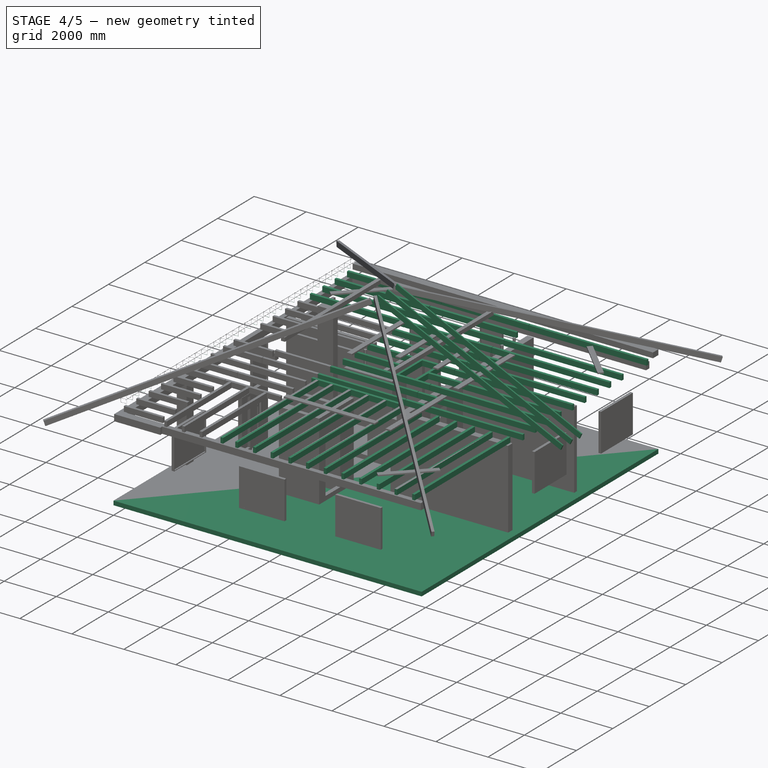
[diagram: stage 4 of 5 — iso view after this stage's code; geometry added in this stage tinted green]
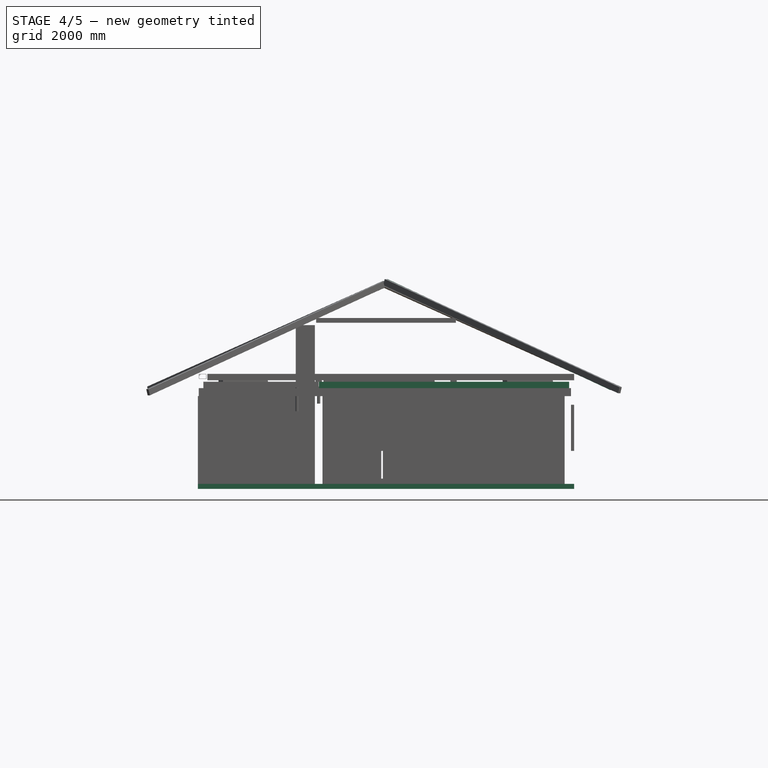
[diagram: stage 4 of 5 — front view after this stage's code; geometry added in this stage tinted green]
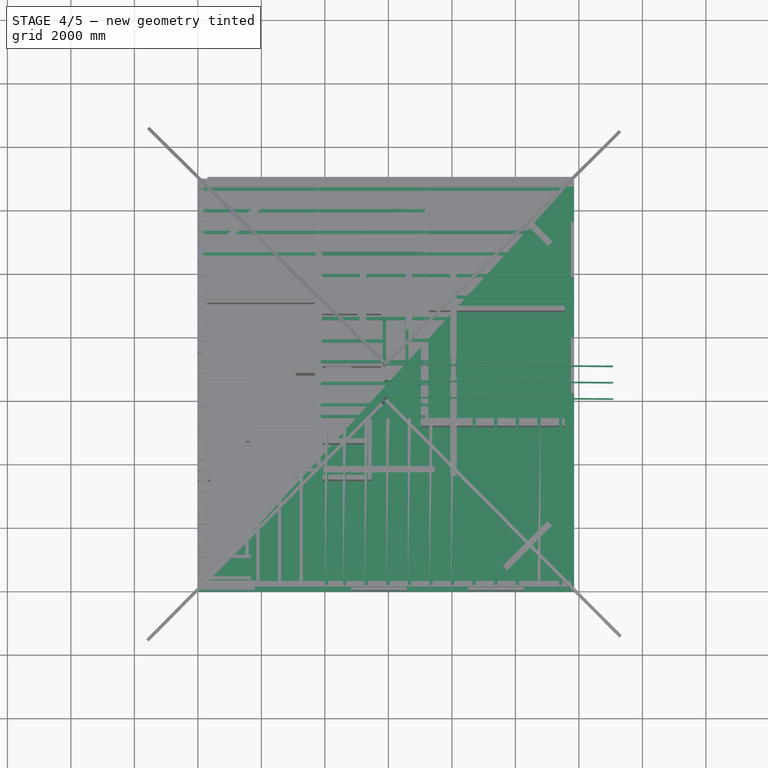
[diagram: stage 4 of 5 — top view after this stage's code; geometry added in this stage tinted green]
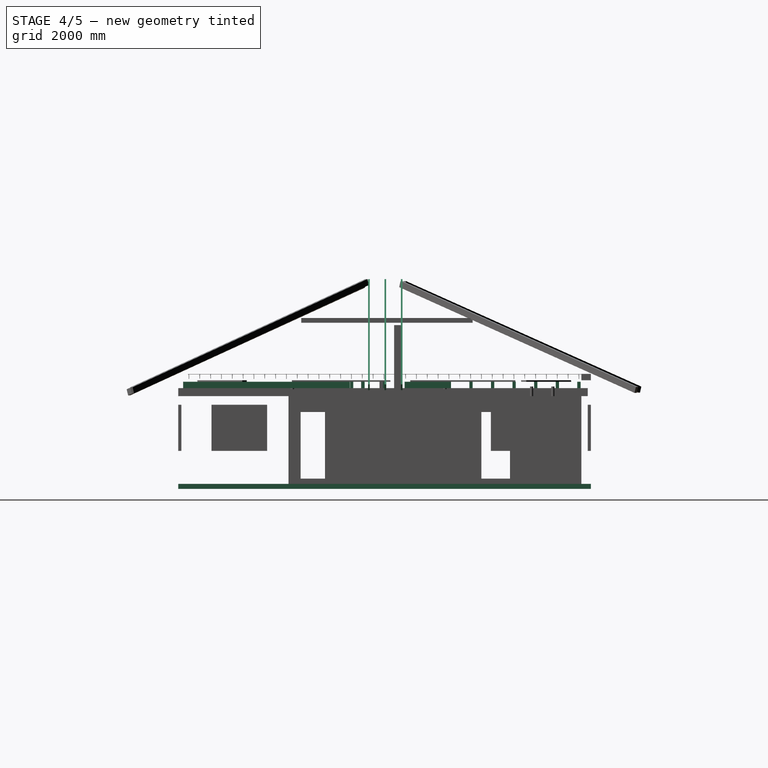
[diagram: stage 4 of 5 — right view after this stage's code; geometry added in this stage tinted green]
FEATURE [Part::Part2DObjectPython] Rectangle  label="Контур Строения"  # Draft 2D object (typed FeaturePython)
  Area = 0
  ChamferSize = 0
  Columns = 1
  FilletRadius = 0
  Height = 13000
  Length = 11850
  MakeFace = false
  Rows = 1
  expr: Height = <<data>>.width_home
  expr: Length = <<data>>.length_home
FEATURE [App::FeaturePython] Text  label="Название Строения"  # WARN: FeaturePython — macro-defined, semantics opaque (R4)
  Placement = pos=(0.06,-0.286,0) rot=(0,0,1;0rad)
  Text = Дом
FEATURE [Part::FeaturePython] Axis  label="Вертикальные Оси"  # WARN: FeaturePython — macro-defined, semantics opaque (R4)
  Angles = [0,0,0,0,0]
  Distances = [300,1500,2125,3100,4525]
  Length = 14300
  Limit = 0
  Placement = pos=(0,-715,0) rot=(0,0,1;0rad)
  expr: .Placement.Base.x = Rectangle.Placement.Base.x
  expr: .Placement.Base.y = Rectangle.Placement.Base.y - Length * 0.05
  expr: Length = Rectangle.Height * 1.1
FEATURE [Part::FeaturePython] Axis001  label="Горизонтальные оси"  # WARN: FeaturePython — macro-defined, semantics opaque (R4)
  Angles = [0,0,0,0,0]
  Distances = [300,3175,1700,1625,5900]
  Length = 13035
  Limit = 0
  Placement = pos=(12318.1,0,0) rot=(0,0,1;1.5708rad)
  expr: .Placement.Base.x = Rectangle.Placement.Base.x + Length * 0.945
  expr: .Placement.Base.y = Rectangle.Placement.Base.y
  expr: Length = Rectangle.Length * 1.1
FEATURE [App::FeaturePython] AxisSystem  label="Оси"  # WARN: FeaturePython — macro-defined, semantics opaque (R4)
  Axes = -> [Axis001,Axis]
FEATURE [App::FeaturePython] WPProxy  # WARN: FeaturePython — macro-defined, semantics opaque (R4)
FEATURE [App::DocumentObjectGroup] App__DocumentObjectGroup001  label="Новая Группа"
FEATURE [App::DocumentObjectGroup] App__DocumentObjectGroup002  label="Новая Группа001"
FEATURE [App::FeaturePython] WPProxy001  # WARN: FeaturePython — macro-defined, semantics opaque (R4)
  Placement = pos=(0,0,3030) rot=(0,0,1;0rad)
FEATURE [Part::FeaturePython] Axis002  label="Оси уровня"  # WARN: FeaturePython — macro-defined, semantics opaque (R4)
  Angles = [0,0,0]
  Distances = [0,3030,3550]
  Labels = Уровень 0 | Уровень 1 | Уровень 2
  Length = 13035
  Limit = 0
  Placement = pos=(12318.1,0,0) rot=(0.57735,-0.57735,0.57735;2.0944rad)
  expr: .Placement.Base.x = Rectangle.Placement.Base.x + Length * 0.945
  expr: .Placement.Base.y = Rectangle.Placement.Base.y
  expr: Length = Rectangle.Length * 1.1
FEATURE [App::DocumentObjectGroup] App__DocumentObjectGroup  label="Разметка Строения"
  Group = -> [Rectangle,Text,AxisSystem,Axis002]
FEATURE [Part::Part2DObjectPython] Rectangle001  # Draft 2D object (typed FeaturePython)
  Area = 154050000
  ChamferSize = 0
  Columns = 1
  FilletRadius = 0
  Height = 13000
  Length = 11850
  MakeFace = true
  Rows = 1
FEATURE [Part::FeaturePython] Structure  label="Опорная плита"  # Arch/BIM 118 (typed FeaturePython)
  Base = -> Rectangle001
  BaseMirror = false
  BaseOffsetX = 0
  BaseOffsetY = 0
  BasePerpendicularToTool = false
  BaseRotation = 0
  ComputedLength = 160
  FaceMaker = 0
  GlobalId = 3tMBn4Qt1APhHM8WtpellR
  Height = 160
  HorizontalArea = 154050000
  IfcData = IfcUID=3tMBn4Qt1APhHM8WtpellR,+2 more (map truncated)
  IfcType = 118
  Length = 13000
  MoveBase = false
  MoveWithHost = false
  Nodes = (4) [(0,0,0),(11850,0,0),(11850,13000,0),(0,13000,0)]
  NodesOffset = 0
  Normal = (0,0,-1)
  PerimeterLength = 49700
  PredefinedType = 0
  ToolOffsetFirst = 0
  ToolOffsetLast = 0
  VerticalArea = 7952000
  Width = 11850
  expr: .Placement.Base.z = <<data>>.zero_lvl
  expr: Height = <<data>>.slab_width
FEATURE [Part::Part2DObjectPython] Rectangle022  # Draft 2D object (typed FeaturePython)
  Area = 452000
  ChamferSize = 0
  Columns = 1
  FilletRadius = 0
  Height = 100
  Length = 4520
  MakeFace = true
  Placement = pos=(7123.6,12236.3,3015) rot=(0,0,1;0rad)
  Rows = 1
  expr: .Placement.Base.z = <<Внешняя стена>>.Height + <<МП-1-1>>.Height
  expr: Height = <<data>>.beam1_thickness
  expr: Length = <<data>>.beam1_length
FEATURE [Part::FeaturePython] Structure004  label="Балка перекрытия1"  # Arch/BIM 7 (typed FeaturePython)
  Base = -> Rectangle022
  BaseMirror = false
  BaseOffsetX = 0
  BaseOffsetY = 0
  BasePerpendicularToTool = false
  BaseRotation = 0
  ComputedLength = 200
  FaceMaker = 0
  GlobalId = 1mupjSWxnDihuevfbnwlgM
  Height = 200
  HorizontalArea = 452000
  IfcData = IfcUID=1mupjSWxnDihuevfbnwlgM,+2 more (map truncated)
  IfcType = 7
  Length = 0
  MoveBase = false
  MoveWithHost = false
  Nodes = (2) [(9383.6,12286.3,3015),(9383.6,12286.3,3215)]
  NodesOffset = 0
  Normal = (0,0,0)
  PerimeterLength = 9240
  Placement = pos=(50,335,0) rot=(0,0,1;0rad)
  PredefinedType = 0
  ToolOffsetFirst = 0
  ToolOffsetLast = 0
  VerticalArea = 1848000
  Width = 100
  expr: Height = <<data>>.beam1_height
FEATURE [Part::FeaturePython] Structure006  label="Балка перекрытия1_3"  # Arch/BIM 7 (typed FeaturePython)
  Base = -> Rectangle022
  BaseMirror = false
  BaseOffsetX = 0
  BaseOffsetY = 0
  BasePerpendicularToTool = false
  BaseRotation = 0
  ComputedLength = 200
  FaceMaker = 0
  GlobalId = 2czO$4V_1Dkg478wJT4PDR
  Height = 200
  HorizontalArea = 452000
  IfcData = IfcUID=2czO$4V_1Dkg478wJT4PDR,+2 more (map truncated)
  IfcType = 7
  Length = 0
  MoveBase = false
  MoveWithHost = false
  Nodes = (2) [(9383.6,12286.3,3015),(9383.6,12286.3,3215)]
  NodesOffset = 0
  Normal = (0,0,0)
  PerimeterLength = 9240
  Placement = pos=(50,-1025,0) rot=(0,0,1;0rad)
  PredefinedType = 0
  ToolOffsetFirst = 0
  ToolOffsetLast = 0
  VerticalArea = 1848000
  Width = 100
  expr: Height = <<data>>.beam1_height
FEATURE [Part::FeaturePython] Structure007  label="Балка перекрытия1_4"  # Arch/BIM 7 (typed FeaturePython)
  Base = -> Rectangle022
  BaseMirror = false
  BaseOffsetX = 0
  BaseOffsetY = 0
  BasePerpendicularToTool = false
  BaseRotation = 0
  ComputedLength = 200
  FaceMaker = 0
  GlobalId = 3Dk$yIPev2keV2iydes$1s
  Height = 200
  HorizontalArea = 452000
  IfcData = IfcUID=3Dk$yIPev2keV2iydes$1s,+2 more (map truncated)
  IfcType = 7
  Length = 0
  MoveBase = false
  MoveWithHost = false
  Nodes = (2) [(9383.6,12286.3,3015),(9383.6,12286.3,3215)]
  NodesOffset = 0
  Normal = (0,0,0)
  PerimeterLength = 9240
  Placement = pos=(50,-1705,0) rot=(0,0,1;0rad)
  PredefinedType = 0
  ToolOffsetFirst = 0
  ToolOffsetLast = 0
  VerticalArea = 1848000
  Width = 100
  expr: Height = <<data>>.beam1_height
FEATURE [Part::FeaturePython] Structure008  label="Балка перекрытия1_5"  # Arch/BIM 7 (typed FeaturePython)
  Base = -> Rectangle022
  BaseMirror = false
  BaseOffsetX = 0
  BaseOffsetY = 0
  BasePerpendicularToTool = false
  BaseRotation = 0
  ComputedLength = 200
  FaceMaker = 0
  GlobalId = 21g1Zto8zCnvhXvr0s2k4X
  Height = 200
  HorizontalArea = 452000
  IfcData = IfcUID=21g1Zto8zCnvhXvr0s2k4X,+2 more (map truncated)
  IfcType = 7
  Length = 0
  MoveBase = false
  MoveWithHost = false
  Nodes = (2) [(9383.6,12286.3,3015),(9383.6,12286.3,3215)]
  NodesOffset = 0
  Normal = (0,0,0)
  PerimeterLength = 9240
  Placement = pos=(50,-2385,0) rot=(0,0,1;0rad)
  PredefinedType = 0
  ToolOffsetFirst = 0
  ToolOffsetLast = 0
  VerticalArea = 1848000
  Width = 100
  expr: Height = <<data>>.beam1_height
FEATURE [Part::FeaturePython] Structure009  label="Балка перекрытия1_6"  # Arch/BIM 7 (typed FeaturePython)
  Base = -> Rectangle022
  BaseMirror = false
  BaseOffsetX = 0
  BaseOffsetY = 0
  BasePerpendicularToTool = false
  BaseRotation = 0
  ComputedLength = 200
  FaceMaker = 0
  GlobalId = 0VByX2ABL1SwS2EFJR6hzg
  Height = 200
  HorizontalArea = 452000
  IfcData = IfcUID=0VByX2ABL1SwS2EFJR6hzg,+2 more (map truncated)
  IfcType = 7
  Length = 0
  MoveBase = false
  MoveWithHost = false
  Nodes = (2) [(9383.6,12286.3,3015),(9383.6,12286.3,3215)]
  NodesOffset = 0
  Normal = (0,0,0)
  PerimeterLength = 9240
  Placement = pos=(50,-3065,0) rot=(0,0,1;0rad)
  PredefinedType = 0
  ToolOffsetFirst = 0
  ToolOffsetLast = 0
  VerticalArea = 1848000
  Width = 100
  expr: Height = <<data>>.beam1_height
FEATURE [Part::FeaturePython] Structure010  label="Балка перекрытия1_7"  # Arch/BIM 7 (typed FeaturePython)
  Base = -> Rectangle022
  BaseMirror = false
  BaseOffsetX = 0
  BaseOffsetY = 0
  BasePerpendicularToTool = false
  BaseRotation = 0
  ComputedLength = 200
  FaceMaker = 0
  GlobalId = 3pvb_pzDX95Pv$Hmd$gSVb
  Height = 200
  HorizontalArea = 452000
  IfcData = IfcUID=3pvb_pzDX95Pv$Hmd$gSVb,+2 more (map truncated)
  IfcType = 7
  Length = 0
  MoveBase = false
  MoveWithHost = false
  Nodes = (2) [(9383.6,12286.3,3015),(9383.6,12286.3,3215)]
  NodesOffset = 0
  Normal = (0,0,0)
  PerimeterLength = 9240
  Placement = pos=(50,-3745,0) rot=(0,0,1;0rad)
  PredefinedType = 0
  ToolOffsetFirst = 0
  ToolOffsetLast = 0
  VerticalArea = 1848000
  Width = 100
  expr: Height = <<data>>.beam1_height
FEATURE [Part::FeaturePython] Structure011  label="Балка перекрытия1_8"  # Arch/BIM 7 (typed FeaturePython)
  Base = -> Rectangle022
  BaseMirror = false
  BaseOffsetX = 0
  BaseOffsetY = 0
  BasePerpendicularToTool = false
  BaseRotation = 0
  ComputedLength = 200
  FaceMaker = 0
  GlobalId = 3AbxUqfqLDch4EjQN6UTY5
  Height = 200
  HorizontalArea = 452000
  IfcData = IfcUID=3AbxUqfqLDch4EjQN6UTY5,+2 more (map truncated)
  IfcType = 7
  Length = 0
  MoveBase = false
  MoveWithHost = false
  Nodes = (2) [(9383.6,12286.3,3015),(9383.6,12286.3,3215)]
  NodesOffset = 0
  Normal = (0,0,0)
  PerimeterLength = 9240
  Placement = pos=(50,-4425,0) rot=(0,0,1;0rad)
  PredefinedType = 0
  ToolOffsetFirst = 0
  ToolOffsetLast = 0
  VerticalArea = 1848000
  Width = 100
  expr: Height = <<data>>.beam1_height
FEATURE [Part::FeaturePython] Structure012  label="Балка перекрытия1_9"  # Arch/BIM 7 (typed FeaturePython)
  Base = -> Rectangle022
  BaseMirror = false
  BaseOffsetX = 0
  BaseOffsetY = 0
  BasePerpendicularToTool = false
  BaseRotation = 0
  ComputedLength = 200
  FaceMaker = 0
  GlobalId = 0DgOrXvHrFLwCy1UuxhTEI
  Height = 200
  HorizontalArea = 452000
  IfcData = IfcUID=0DgOrXvHrFLwCy1UuxhTEI,+2 more (map truncated)
  IfcType = 7
  Length = 0
  MoveBase = false
  MoveWithHost = false
  Nodes = (2) [(9383.6,12286.3,3015),(9383.6,12286.3,3215)]
  NodesOffset = 0
  Normal = (0,0,0)
  PerimeterLength = 9240
  Placement = pos=(50,-5105,0) rot=(0,0,1;0rad)
  PredefinedType = 0
  ToolOffsetFirst = 0
  ToolOffsetLast = 0
  VerticalArea = 1848000
  Width = 100
  expr: Height = <<data>>.beam1_height
FEATURE [Part::FeaturePython] Structure013  label="Балка перекрытия1_10"  # Arch/BIM 7 (typed FeaturePython)
  Base = -> Rectangle022
  BaseMirror = false
  BaseOffsetX = 0
  BaseOffsetY = 0
  BasePerpendicularToTool = false
  BaseRotation = 0
  ComputedLength = 200
  FaceMaker = 0
  GlobalId = 1rsGU5xZHDhh1l92Bji3vt
  Height = 200
  HorizontalArea = 452000
  IfcData = IfcUID=1rsGU5xZHDhh1l92Bji3vt,+2 more (map truncated)
  IfcType = 7
  Length = 0
  MoveBase = false
  MoveWithHost = false
  Nodes = (2) [(9383.6,12286.3,3015),(9383.6,12286.3,3215)]
  NodesOffset = 0
  Normal = (0,0,0)
  PerimeterLength = 9240
  Placement = pos=(50,-5785,0) rot=(0,0,1;0rad)
  PredefinedType = 0
  ToolOffsetFirst = 0
  ToolOffsetLast = 0
  VerticalArea = 1848000
  Width = 100
  expr: Height = <<data>>.beam1_height
FEATURE [Part::FeaturePython] Structure014  label="Балка перекрытия1_11"  # Arch/BIM 7 (typed FeaturePython)
  Base = -> Rectangle022
  BaseMirror = false
  BaseOffsetX = 0
  BaseOffsetY = 0
  BasePerpendicularToTool = false
  BaseRotation = 0
  ComputedLength = 200
  FaceMaker = 0
  GlobalId = 02HXarJMfBwPZZGN4lDtLp
  Height = 200
  HorizontalArea = 452000
  IfcData = IfcUID=02HXarJMfBwPZZGN4lDtLp,+2 more (map truncated)
  IfcType = 7
  Length = 0
  MoveBase = false
  MoveWithHost = false
  Nodes = (2) [(9383.6,12286.3,3015),(9383.6,12286.3,3215)]
  NodesOffset = 0
  Normal = (0,0,0)
  PerimeterLength = 9240
  Placement = pos=(50,-6465,0) rot=(0,0,1;0rad)
  PredefinedType = 0
  ToolOffsetFirst = 0
  ToolOffsetLast = 0
  VerticalArea = 1848000
  Width = 100
  expr: Height = <<data>>.beam1_height
FEATURE [Part::Part2DObjectPython] Rectangle023  # Draft 2D object (typed FeaturePython)
  Area = 334000
  ChamferSize = 0
  Columns = 1
  FilletRadius = 0
  Height = 100
  Length = 3340
  MakeFace = true
  Placement = pos=(3815.72,12506,3015) rot=(0,0,1;0rad)
  Rows = 1
  expr: .Placement.Base.z = <<Внешняя стена>>.Height + <<МП-1-1>>.Height
  expr: Height = <<data>>.beam2_thickness
  expr: Length = <<data>>.beam2_length
FEATURE [Part::FeaturePython] Structure015  label="Балка перекрытия2_1"  # Arch/BIM 7 (typed FeaturePython)
  Base = -> Rectangle023
  BaseMirror = false
  BaseOffsetX = 0
  BaseOffsetY = 0
  BasePerpendicularToTool = false
  BaseRotation = 0
  ComputedLength = 200
  FaceMaker = 0
  GlobalId = 2eh6GCygzCovI5$guyf7Yf
  Height = 200
  HorizontalArea = 334000
  IfcData = IfcUID=2eh6GCygzCovI5$guyf7Yf,+2 more (map truncated)
  IfcType = 7
  Length = 0
  MoveBase = false
  MoveWithHost = false
  Nodes = (2) [(5485.72,12556,3015),(5485.72,12556,3215)]
  NodesOffset = 0
  Normal = (0,0,0)
  PerimeterLength = 6880
  Placement = pos=(0,68,0) rot=(0,0,1;0rad)
  PredefinedType = 0
  ToolOffsetFirst = 0
  ToolOffsetLast = 0
  VerticalArea = 1.376e+06
  Width = 100
  expr: Height = <<data>>.beam2_height
FEATURE [Part::FeaturePython] Structure016  label="Балка перекрытия2_002"  # Arch/BIM 7 (typed FeaturePython)
  Base = -> Rectangle023
  BaseMirror = false
  BaseOffsetX = 0
  BaseOffsetY = 0
  BasePerpendicularToTool = false
  BaseRotation = 0
  ComputedLength = 200
  FaceMaker = 0
  GlobalId = 1NdDnfPbL3gw6VWm3BPWdU
  Height = 200
  HorizontalArea = 334000
  IfcData = IfcUID=1NdDnfPbL3gw6VWm3BPWdU,+2 more (map truncated)
  IfcType = 7
  Length = 0
  MoveBase = false
  MoveWithHost = false
  Nodes = (2) [(5485.72,12556,3015),(5485.72,12556,3215)]
  NodesOffset = 0
  Normal = (0,0,0)
  PerimeterLength = 6880
  Placement = pos=(0,-612,0) rot=(0,0,1;0rad)
  PredefinedType = 0
  ToolOffsetFirst = 0
  ToolOffsetLast = 0
  VerticalArea = 1.376e+06
  Width = 100
  expr: Height = <<data>>.beam2_height
FEATURE [Part::FeaturePython] Structure017  label="Балка перекрытия2_003"  # Arch/BIM 7 (typed FeaturePython)
  Base = -> Rectangle023
  BaseMirror = false
  BaseOffsetX = 0
  BaseOffsetY = 0
  BasePerpendicularToTool = false
  BaseRotation = 0
  ComputedLength = 200
  FaceMaker = 0
  GlobalId = 3SjXLhnrrFWhHZGUY03TYi
  Height = 200
  HorizontalArea = 334000
  IfcData = IfcUID=3SjXLhnrrFWhHZGUY03TYi,+2 more (map truncated)
  IfcType = 7
  Length = 0
  MoveBase = false
  MoveWithHost = false
  Nodes = (2) [(5485.72,12556,3015),(5485.72,12556,3215)]
  NodesOffset = 0
  Normal = (0,0,0)
  PerimeterLength = 6880
  Placement = pos=(0,-1292,0) rot=(0,0,1;0rad)
  PredefinedType = 0
  ToolOffsetFirst = 0
  ToolOffsetLast = 0
  VerticalArea = 1.376e+06
  Width = 100
  expr: Height = <<data>>.beam2_height
FEATURE [Part::FeaturePython] Structure018  label="Балка перекрытия2_004"  # Arch/BIM 7 (typed FeaturePython)
  Base = -> Rectangle023
  BaseMirror = false
  BaseOffsetX = 0
  BaseOffsetY = 0
  BasePerpendicularToTool = false
  BaseRotation = 0
  ComputedLength = 200
  FaceMaker = 0
  GlobalId = 37a0Uz7T99b88wLZLnnL_g
  Height = 200
  HorizontalArea = 334000
  IfcData = IfcUID=37a0Uz7T99b88wLZLnnL_g,+2 more (map truncated)
  IfcType = 7
  Length = 0
  MoveBase = false
  MoveWithHost = false
  Nodes = (2) [(5485.72,12556,3015),(5485.72,12556,3215)]
  NodesOffset = 0
  Normal = (0,0,0)
  PerimeterLength = 6880
  Placement = pos=(0,-1972,0) rot=(0,0,1;0rad)
  PredefinedType = 0
  ToolOffsetFirst = 0
  ToolOffsetLast = 0
  VerticalArea = 1.376e+06
  Width = 100
  expr: Height = <<data>>.beam2_height
FEATURE [Part::FeaturePython] Structure019  label="Балка перекрытия2_005"  # Arch/BIM 7 (typed FeaturePython)
  Base = -> Rectangle023
  BaseMirror = false
  BaseOffsetX = 0
  BaseOffsetY = 0
  BasePerpendicularToTool = false
  BaseRotation = 0
  ComputedLength = 200
  FaceMaker = 0
  GlobalId = 2C4K3eW7vBmPsECFf5RLP7
  Height = 200
  HorizontalArea = 334000
  IfcData = IfcUID=2C4K3eW7vBmPsECFf5RLP7,+2 more (map truncated)
  IfcType = 7
  Length = 0
  MoveBase = false
  MoveWithHost = false
  Nodes = (2) [(5485.72,12556,3015),(5485.72,12556,3215)]
  NodesOffset = 0
  Normal = (0,0,0)
  PerimeterLength = 6880
  Placement = pos=(0,-2652,0) rot=(0,0,1;0rad)
  PredefinedType = 0
  ToolOffsetFirst = 0
  ToolOffsetLast = 0
  VerticalArea = 1.376e+06
  Width = 100
  expr: Height = <<data>>.beam2_height
FEATURE [Part::FeaturePython] Structure020  label="Балка перекрытия2_006"  # Arch/BIM 7 (typed FeaturePython)
  Base = -> Rectangle023
  BaseMirror = false
  BaseOffsetX = 0
  BaseOffsetY = 0
  BasePerpendicularToTool = false
  BaseRotation = 0
  ComputedLength = 200
  FaceMaker = 0
  GlobalId = 0bwfCwdkH478jl591PbRPB
  Height = 200
  HorizontalArea = 334000
  IfcData = IfcUID=0bwfCwdkH478jl591PbRPB,+2 more (map truncated)
  IfcType = 7
  Length = 0
  MoveBase = false
  MoveWithHost = false
  Nodes = (2) [(5485.72,12556,3015),(5485.72,12556,3215)]
  NodesOffset = 0
  Normal = (0,0,0)
  PerimeterLength = 6880
  Placement = pos=(0,-3332,0) rot=(0,0,1;0rad)
  PredefinedType = 0
  ToolOffsetFirst = 0
  ToolOffsetLast = 0
  VerticalArea = 1.376e+06
  Width = 100
  expr: Height = <<data>>.beam2_height
FEATURE [Part::FeaturePython] Structure021  label="Балка перекрытия2_007"  # Arch/BIM 7 (typed FeaturePython)
  Base = -> Rectangle023
  BaseMirror = false
  BaseOffsetX = 0
  BaseOffsetY = 0
  BasePerpendicularToTool = false
  BaseRotation = 0
  ComputedLength = 200
  FaceMaker = 0
  GlobalId = 2hM6y8KLfC2vmeeIu8BiSI
  Height = 200
  HorizontalArea = 334000
  IfcData = IfcUID=2hM6y8KLfC2vmeeIu8BiSI,+2 more (map truncated)
  IfcType = 7
  Length = 0
  MoveBase = false
  MoveWithHost = false
  Nodes = (2) [(5485.72,12556,3015),(5485.72,12556,3215)]
  NodesOffset = 0
  Normal = (0,0,0)
  PerimeterLength = 6880
  Placement = pos=(0,-4012,0) rot=(0,0,1;0rad)
  PredefinedType = 0
  ToolOffsetFirst = 0
  ToolOffsetLast = 0
  VerticalArea = 1.376e+06
  Width = 100
  expr: Height = <<data>>.beam2_height
FEATURE [Part::FeaturePython] Structure022  label="Балка перекрытия2_008"  # Arch/BIM 7 (typed FeaturePython)
  Base = -> Rectangle023
  BaseMirror = false
  BaseOffsetX = 0
  BaseOffsetY = 0
  BasePerpendicularToTool = false
  BaseRotation = 0
  ComputedLength = 200
  FaceMaker = 0
  GlobalId = 0apb76shb7X8cLq8vYQ1KG
  Height = 200
  HorizontalArea = 334000
  IfcData = IfcUID=0apb76shb7X8cLq8vYQ1KG,+2 more (map truncated)
  IfcType = 7
  Length = 0
  MoveBase = false
  MoveWithHost = false
  Nodes = (2) [(5485.72,12556,3015),(5485.72,12556,3215)]
  NodesOffset = 0
  Normal = (0,0,0)
  PerimeterLength = 6880
  Placement = pos=(0,-5372,0) rot=(0,0,1;0rad)
  PredefinedType = 0
  ToolOffsetFirst = 0
  ToolOffsetLast = 0
  VerticalArea = 1.376e+06
  Width = 100
  expr: Height = <<data>>.beam2_height
FEATURE [Part::FeaturePython] Structure023  label="Балка перекрытия2_009"  # Arch/BIM 7 (typed FeaturePython)
  Base = -> Rectangle023
  BaseMirror = false
  BaseOffsetX = 0
  BaseOffsetY = 0
  BasePerpendicularToTool = false
  BaseRotation = 0
  ComputedLength = 200
  FaceMaker = 0
  GlobalId = 2ScpwdwD9EtQI2VpP$XUcX
  Height = 200
  HorizontalArea = 334000
  IfcData = IfcUID=2ScpwdwD9EtQI2VpP$XUcX,+2 more (map truncated)
  IfcType = 7
  Length = 0
  MoveBase = false
  MoveWithHost = false
  Nodes = (2) [(5485.72,12556,3015),(5485.72,12556,3215)]
  NodesOffset = 0
  Normal = (0,0,0)
  PerimeterLength = 6880
  Placement = pos=(0,-6052,0) rot=(0,0,1;0rad)
  PredefinedType = 0
  ToolOffsetFirst = 0
  ToolOffsetLast = 0
  VerticalArea = 1.376e+06
  Width = 100
  expr: Height = <<data>>.beam2_height
FEATURE [Part::FeaturePython] Structure024  label="Балка перекрытия2_010"  # Arch/BIM 7 (typed FeaturePython)
  Base = -> Rectangle023
  BaseMirror = false
  BaseOffsetX = 0
  BaseOffsetY = 0
  BasePerpendicularToTool = false
  BaseRotation = 0
  ComputedLength = 200
  FaceMaker = 0
  GlobalId = 0V54G6BqP9vRGeW9A5yolf
  Height = 200
  HorizontalArea = 334000
  IfcData = IfcUID=0V54G6BqP9vRGeW9A5yolf,+2 more (map truncated)
  IfcType = 7
  Length = 0
  MoveBase = false
  MoveWithHost = false
  Nodes = (2) [(5485.72,12556,3015),(5485.72,12556,3215)]
  NodesOffset = 0
  Normal = (0,0,0)
  PerimeterLength = 6880
  Placement = pos=(0,-6732,0) rot=(0,0,1;0rad)
  PredefinedType = 0
  ToolOffsetFirst = 0
  ToolOffsetLast = 0
  VerticalArea = 1.376e+06
  Width = 100
  expr: Height = <<data>>.beam2_height
FEATURE [Part::Part2DObjectPython] Rectangle024  # Draft 2D object (typed FeaturePython)
  Area = 54000
  ChamferSize = 0
  Columns = 1
  FilletRadius = 0
  Height = 100
  Length = 540
  MakeFace = true
  Placement = pos=(6697.3,7797.77,3015) rot=(0,0,1;0rad)
  Rows = 1
  expr: .Placement.Base.z = <<Внешняя стена>>.Height + <<МП-1-1>>.Height
  expr: Height = <<data>>.beam10_thickness
  expr: Length = <<data>>.beam10_length
FEATURE [Part::FeaturePython] Structure025  label="Балка перекрытия10"  # Arch/BIM 7 (typed FeaturePython)
  Base = -> Rectangle024
  BaseMirror = false
  BaseOffsetX = 0
  BaseOffsetY = 0
  BasePerpendicularToTool = false
  BaseRotation = 0
  ComputedLength = 200
  FaceMaker = 0
  GlobalId = 2BXxum3i54vvELtOqXv$Js
  Height = 200
  HorizontalArea = 54000
  IfcData = IfcUID=2BXxum3i54vvELtOqXv$Js,+2 more (map truncated)
  IfcType = 7
  Length = 0
  MoveBase = false
  MoveWithHost = false
  Nodes = (2) [(6967.3,7847.77,3015),(6967.3,7847.77,3215)]
  NodesOffset = 0
  Normal = (0,0,0)
  PerimeterLength = 1280
  Placement = pos=(-63.7002,13.543,0) rot=(0,0,1;0rad)
  PredefinedType = 0
  ToolOffsetFirst = 0
  ToolOffsetLast = 0
  VerticalArea = 256000
  Width = 100
  expr: Height = <<data>>.beam10_height
FEATURE [Part::Part2DObjectPython] Rectangle025  # Draft 2D object (typed FeaturePython)
  Area = 200000
  ChamferSize = 0
  Columns = 1
  FilletRadius = 0
  Height = 100
  Length = 2000
  MakeFace = true
  Placement = pos=(3793.77,7724.42,3015) rot=(0,0,1;0rad)
  Rows = 1
  expr: .Placement.Base.z = <<Внешняя стена>>.Height + <<МП-1-1>>.Height
  expr: Height = <<data>>.beam8_thickness
  expr: Length = <<data>>.beam8_length
FEATURE [Part::FeaturePython] Structure026  label="Балка перекрытия8"  # Arch/BIM 7 (typed FeaturePython)
  Base = -> Rectangle025
  BaseMirror = false
  BaseOffsetX = 0
  BaseOffsetY = 0
  BasePerpendicularToTool = false
  BaseRotation = 0
  ComputedLength = 200
  FaceMaker = 0
  GlobalId = 2945ZMUMTCdRlqaCo7sJ_n
  Height = 200
  HorizontalArea = 200000
  IfcData = IfcUID=2945ZMUMTCdRlqaCo7sJ_n,+2 more (map truncated)
  IfcType = 7
  Length = 0
  MoveBase = false
  MoveWithHost = false
  Nodes = (2) [(4793.77,7774.42,3015),(4793.77,7774.42,3215)]
  NodesOffset = 0
  Normal = (0,0,0)
  PerimeterLength = 4200
  Placement = pos=(27.6567,60.8452,0) rot=(0,0,1;0rad)
  PredefinedType = 0
  ToolOffsetFirst = 0
  ToolOffsetLast = 0
  VerticalArea = 840000
  Width = 100
  expr: Height = <<data>>.beam8_height
FEATURE [Part::Part2DObjectPython] Rectangle026  # Draft 2D object (typed FeaturePython)
  Area = 126000
  ChamferSize = 0
  Columns = 1
  FilletRadius = 0
  Height = 1260
  Length = 100
  MakeFace = true
  Placement = pos=(6653.27,7305.35,3015) rot=(0,0,1;0rad)
  Rows = 1
  expr: .Placement.Base.z = <<Внешняя стена>>.Height + <<МП-1-1>>.Height
  expr: Height = <<data>>.beam9_length
  expr: Length = <<data>>.beam9_thickness
FEATURE [Part::FeaturePython] Structure027  label="Балка перекрытия9_1"  # Arch/BIM 7 (typed FeaturePython)
  Base = -> Rectangle026
  BaseMirror = false
  BaseOffsetX = 0
  BaseOffsetY = 0
  BasePerpendicularToTool = false
  BaseRotation = 0
  ComputedLength = 200
  FaceMaker = 0
  GlobalId = 3biJrYUJTE4u8I81Js1Io_
  Height = 200
  HorizontalArea = 126000
  IfcData = IfcUID=3biJrYUJTE4u8I81Js1Io_,+2 more (map truncated)
  IfcType = 7
  Length = 0
  MoveBase = false
  MoveWithHost = false
  Nodes = (2) [(6703.27,7935.35,3015),(6703.27,7935.35,3215)]
  NodesOffset = 0
  Normal = (0,0,0)
  PerimeterLength = 2720
  Placement = pos=(-118.492,-73.2554,0) rot=(0,0,1;0rad)
  PredefinedType = 0
  ToolOffsetFirst = 0
  ToolOffsetLast = 0
  VerticalArea = 544000
  Width = 100
  expr: Height = <<data>>.beam9_height
FEATURE [Part::FeaturePython] Structure028  label="Балка перекрытия9_002"  # Arch/BIM 7 (typed FeaturePython)
  Base = -> Rectangle026
  BaseMirror = false
  BaseOffsetX = 0
  BaseOffsetY = 0
  BasePerpendicularToTool = false
  BaseRotation = 0
  ComputedLength = 200
  FaceMaker = 0
  GlobalId = 10hxjHfZn94wZoGkdB1Alc
  Height = 200
  HorizontalArea = 126000
  IfcData = IfcUID=10hxjHfZn94wZoGkdB1Alc,+2 more (map truncated)
  IfcType = 7
  Length = 0
  MoveBase = false
  MoveWithHost = false
  Nodes = (2) [(6703.27,7935.35,3015),(6703.27,7935.35,3215)]
  NodesOffset = 0
  Normal = (0,0,0)
  PerimeterLength = 2720
  Placement = pos=(-829.001,-73.2554,0) rot=(0,0,1;0rad)
  PredefinedType = 0
  ToolOffsetFirst = 0
  ToolOffsetLast = 0
  VerticalArea = 544000
  Width = 100
  expr: Height = <<data>>.beam9_height
FEATURE [Part::Part2DObjectPython] Rectangle027  # Draft 2D object (typed FeaturePython)
  Area = 525000
  ChamferSize = 0
  Columns = 1
  FilletRadius = 0
  Height = 5250
  Length = 100
  MakeFace = true
  Placement = pos=(11261.9,175.603,3015) rot=(0,0,1;0rad)
  Rows = 1
  expr: .Placement.Base.z = <<Внешняя стена>>.Height + <<МП-1-1>>.Height
  expr: Height = <<data>>.beam3_length
  expr: Length = <<data>>.beam3_thickness
FEATURE [Part::FeaturePython] Structure029  label="Балка перекрытия3_1"  # Arch/BIM 7 (typed FeaturePython)
  Base = -> Rectangle027
  BaseMirror = false
  BaseOffsetX = 0
  BaseOffsetY = 0
  BasePerpendicularToTool = false
  BaseRotation = 0
  ComputedLength = 200
  FaceMaker = 0
  GlobalId = 1zt3FykVz97Rz18FD$foCg
  Height = 200
  HorizontalArea = 525000
  IfcData = IfcUID=1zt3FykVz97Rz18FD$foCg,+2 more (map truncated)
  IfcType = 7
  Length = 0
  MoveBase = false
  MoveWithHost = false
  Nodes = (2) [(11311.9,2800.6,3015),(11311.9,2800.6,3215)]
  NodesOffset = 0
  Normal = (0,0,0)
  PerimeterLength = 10700
  Placement = pos=(110.404,-17.8446,0) rot=(0,0,1;0rad)
  PredefinedType = 0
  ToolOffsetFirst = 0
  ToolOffsetLast = 0
  VerticalArea = 2140000
  Width = 100
  expr: Height = <<data>>.beam3_height
FEATURE [Part::FeaturePython] Structure030  label="Балка перекрытия3_002"  # Arch/BIM 7 (typed FeaturePython)
  Base = -> Rectangle027
  BaseMirror = false
  BaseOffsetX = 0
  BaseOffsetY = 0
  BasePerpendicularToTool = false
  BaseRotation = 0
  ComputedLength = 200
  FaceMaker = 0
  GlobalId = 3OIkIitWv7TuR5PzISML4$
  Height = 200
  HorizontalArea = 525000
  IfcData = IfcUID=3OIkIitWv7TuR5PzISML4$,+2 more (map truncated)
  IfcType = 7
  Length = 0
  MoveBase = false
  MoveWithHost = false
  Nodes = (2) [(11311.9,2800.6,3015),(11311.9,2800.6,3215)]
  NodesOffset = 0
  Normal = (0,0,0)
  PerimeterLength = 10700
  Placement = pos=(-569.596,-17.8446,0) rot=(0,0,1;0rad)
  PredefinedType = 0
  ToolOffsetFirst = 0
  ToolOffsetLast = 0
  VerticalArea = 2140000
  Width = 100
  expr: Height = <<data>>.beam3_height
FEATURE [Part::FeaturePython] Structure031  label="Балка перекрытия3_003"  # Arch/BIM 7 (typed FeaturePython)
  Base = -> Rectangle027
  BaseMirror = false
  BaseOffsetX = 0
  BaseOffsetY = 0
  BasePerpendicularToTool = false
  BaseRotation = 0
  ComputedLength = 200
  FaceMaker = 0
  GlobalId = 3beJb1HVX6QgaISRfDxWx$
  Height = 200
  HorizontalArea = 525000
  IfcData = IfcUID=3beJb1HVX6QgaISRfDxWx$,+2 more (map truncated)
  IfcType = 7
  Length = 0
  MoveBase = false
  MoveWithHost = false
  Nodes = (2) [(11311.9,2800.6,3015),(11311.9,2800.6,3215)]
  NodesOffset = 0
  Normal = (0,0,0)
  PerimeterLength = 10700
  Placement = pos=(-1249.6,-17.8446,0) rot=(0,0,1;0rad)
  PredefinedType = 0
  ToolOffsetFirst = 0
  ToolOffsetLast = 0
  VerticalArea = 2140000
  Width = 100
  expr: Height = <<data>>.beam3_height
FEATURE [Part::FeaturePython] Structure032  label="Балка перекрытия3_004"  # Arch/BIM 7 (typed FeaturePython)
  Base = -> Rectangle027
  BaseMirror = false
  BaseOffsetX = 0
  BaseOffsetY = 0
  BasePerpendicularToTool = false
  BaseRotation = 0
  ComputedLength = 200
  FaceMaker = 0
  GlobalId = 2YJLbSz8X3nObeUVRSE6dS
  Height = 200
  HorizontalArea = 525000
  IfcData = IfcUID=2YJLbSz8X3nObeUVRSE6dS,+2 more (map truncated)
  IfcType = 7
  Length = 0
  MoveBase = false
  MoveWithHost = false
  Nodes = (2) [(11311.9,2800.6,3015),(11311.9,2800.6,3215)]
  NodesOffset = 0
  Normal = (0,0,0)
  PerimeterLength = 10700
  Placement = pos=(-1929.6,-17.8446,0) rot=(0,0,1;0rad)
  PredefinedType = 0
  ToolOffsetFirst = 0
  ToolOffsetLast = 0
  VerticalArea = 2140000
  Width = 100
  expr: Height = <<data>>.beam3_height
FEATURE [Part::FeaturePython] Structure033  label="Балка перекрытия3_005"  # Arch/BIM 7 (typed FeaturePython)
  Base = -> Rectangle027
  BaseMirror = false
  BaseOffsetX = 0
  BaseOffsetY = 0
  BasePerpendicularToTool = false
  BaseRotation = 0
  ComputedLength = 200
  FaceMaker = 0
  GlobalId = 3RMaGgm3zFfAdlKShPQ4ql
  Height = 200
  HorizontalArea = 525000
  IfcData = IfcUID=3RMaGgm3zFfAdlKShPQ4ql,+2 more (map truncated)
  IfcType = 7
  Length = 0
  MoveBase = false
  MoveWithHost = false
  Nodes = (2) [(11311.9,2800.6,3015),(11311.9,2800.6,3215)]
  NodesOffset = 0
  Normal = (0,0,0)
  PerimeterLength = 10700
  Placement = pos=(-2609.6,-17.8446,0) rot=(0,0,1;0rad)
  PredefinedType = 0
  ToolOffsetFirst = 0
  ToolOffsetLast = 0
  VerticalArea = 2140000
  Width = 100
  expr: Height = <<data>>.beam3_height
FEATURE [Part::FeaturePython] Structure034  label="Балка перекрытия3_006"  # Arch/BIM 7 (typed FeaturePython)
  Base = -> Rectangle027
  BaseMirror = false
  BaseOffsetX = 0
  BaseOffsetY = 0
  BasePerpendicularToTool = false
  BaseRotation = 0
  ComputedLength = 200
  FaceMaker = 0
  GlobalId = 2J_mXa$DbBneCZ8Lz5Lj1t
  Height = 200
  HorizontalArea = 525000
  IfcData = IfcUID=2J_mXa$DbBneCZ8Lz5Lj1t,+2 more (map truncated)
  IfcType = 7
  Length = 0
  MoveBase = false
  MoveWithHost = false
  Nodes = (2) [(11311.9,2800.6,3015),(11311.9,2800.6,3215)]
  NodesOffset = 0
  Normal = (0,0,0)
  PerimeterLength = 10700
  Placement = pos=(-3289.6,-17.8446,0) rot=(0,0,1;0rad)
  PredefinedType = 0
  ToolOffsetFirst = 0
  ToolOffsetLast = 0
  VerticalArea = 2140000
  Width = 100
  expr: Height = <<data>>.beam3_height
FEATURE [Part::FeaturePython] Structure035  label="Балка перекрытия3_007"  # Arch/BIM 7 (typed FeaturePython)
  Base = -> Rectangle027
  BaseMirror = false
  BaseOffsetX = 0
  BaseOffsetY = 0
  BasePerpendicularToTool = false
  BaseRotation = 0
  ComputedLength = 200
  FaceMaker = 0
  GlobalId = 2ZRRMnD5r70wILrhBzHfjz
  Height = 200
  HorizontalArea = 525000
  IfcData = IfcUID=2ZRRMnD5r70wILrhBzHfjz,+2 more (map truncated)
  IfcType = 7
  Length = 0
  MoveBase = false
  MoveWithHost = false
  Nodes = (2) [(11311.9,2800.6,3015),(11311.9,2800.6,3215)]
  NodesOffset = 0
  Normal = (0,0,0)
  PerimeterLength = 10700
  Placement = pos=(-3969.6,-17.8446,0) rot=(0,0,1;0rad)
  PredefinedType = 0
  ToolOffsetFirst = 0
  ToolOffsetLast = 0
  VerticalArea = 2140000
  Width = 100
  expr: Height = <<data>>.beam3_height
FEATURE [Part::FeaturePython] Structure036  label="Балка перекрытия3_008"  # Arch/BIM 7 (typed FeaturePython)
  Base = -> Rectangle027
  BaseMirror = false
  BaseOffsetX = 0
  BaseOffsetY = 0
  BasePerpendicularToTool = false
  BaseRotation = 0
  ComputedLength = 200
  FaceMaker = 0
  GlobalId = 3nJFwYC51EbxCHIJ1LLYDb
  Height = 200
  HorizontalArea = 525000
  IfcData = IfcUID=3nJFwYC51EbxCHIJ1LLYDb,+2 more (map truncated)
  IfcType = 7
  Length = 0
  MoveBase = false
  MoveWithHost = false
  Nodes = (2) [(11311.9,2800.6,3015),(11311.9,2800.6,3215)]
  NodesOffset = 0
  Normal = (0,0,0)
  PerimeterLength = 10700
  Placement = pos=(-4649.6,-17.8446,0) rot=(0,0,1;0rad)
  PredefinedType = 0
  ToolOffsetFirst = 0
  ToolOffsetLast = 0
  VerticalArea = 2140000
  Width = 100
  expr: Height = <<data>>.beam3_height
FEATURE [Part::FeaturePython] Structure037  label="Балка перекрытия3_009"  # Arch/BIM 7 (typed FeaturePython)
  Base = -> Rectangle027
  BaseMirror = false
  BaseOffsetX = 0
  BaseOffsetY = 0
  BasePerpendicularToTool = false
  BaseRotation = 0
  ComputedLength = 200
  FaceMaker = 0
  GlobalId = 0x3lUCZiHFvOsQvuB0y0_t
  Height = 200
  HorizontalArea = 525000
  IfcData = IfcUID=0x3lUCZiHFvOsQvuB0y0_t,+2 more (map truncated)
  IfcType = 7
  Length = 0
  MoveBase = false
  MoveWithHost = false
  Nodes = (2) [(11311.9,2800.6,3015),(11311.9,2800.6,3215)]
  NodesOffset = 0
  Normal = (0,0,0)
  PerimeterLength = 10700
  Placement = pos=(-5329.6,-17.8446,0) rot=(0,0,1;0rad)
  PredefinedType = 0
  ToolOffsetFirst = 0
  ToolOffsetLast = 0
  VerticalArea = 2140000
  Width = 100
  expr: Height = <<data>>.beam3_height
FEATURE [Part::FeaturePython] Structure038  label="Балка перекрытия3_010"  # Arch/BIM 7 (typed FeaturePython)
  Base = -> Rectangle027
  BaseMirror = false
  BaseOffsetX = 0
  BaseOffsetY = 0
  BasePerpendicularToTool = false
  BaseRotation = 0
  ComputedLength = 200
  FaceMaker = 0
  GlobalId = 0NKZ0tg753ZvdW0or74boL
  Height = 200
  HorizontalArea = 525000
  IfcData = IfcUID=0NKZ0tg753ZvdW0or74boL,+2 more (map truncated)
  IfcType = 7
  Length = 0
  MoveBase = false
  MoveWithHost = false
  Nodes = (2) [(11311.9,2800.6,3015),(11311.9,2800.6,3215)]
  NodesOffset = 0
  Normal = (0,0,0)
  PerimeterLength = 10700
  Placement = pos=(-6009.6,-17.8446,0) rot=(0,0,1;0rad)
  PredefinedType = 0
  ToolOffsetFirst = 0
  ToolOffsetLast = 0
  VerticalArea = 2140000
  Width = 100
  expr: Height = <<data>>.beam3_height
FEATURE [Part::FeaturePython] Structure039  label="Балка перекрытия3_011"  # Arch/BIM 7 (typed FeaturePython)
  Base = -> Rectangle027
  BaseMirror = false
  BaseOffsetX = 0
  BaseOffsetY = 0
  BasePerpendicularToTool = false
  BaseRotation = 0
  ComputedLength = 200
  FaceMaker = 0
  GlobalId = 0j8$imfPn9Qu05RthsfBw4
  Height = 200
  HorizontalArea = 525000
  IfcData = IfcUID=0j8$imfPn9Qu05RthsfBw4,+2 more (map truncated)
  IfcType = 7
  Length = 0
  MoveBase = false
  MoveWithHost = false
  Nodes = (2) [(11311.9,2800.6,3015),(11311.9,2800.6,3215)]
  NodesOffset = 0
  Normal = (0,0,0)
  PerimeterLength = 10700
  Placement = pos=(-6689.6,-17.8446,0) rot=(0,0,1;0rad)
  PredefinedType = 0
  ToolOffsetFirst = 0
  ToolOffsetLast = 0
  VerticalArea = 2140000
  Width = 100
  expr: Height = <<data>>.beam3_height
FEATURE [Part::FeaturePython] Structure040  label="Балка перекрытия3_012"  # Arch/BIM 7 (typed FeaturePython)
  Base = -> Rectangle027
  BaseMirror = false
  BaseOffsetX = 0
  BaseOffsetY = 0
  BasePerpendicularToTool = false
  BaseRotation = 0
  ComputedLength = 200
  FaceMaker = 0
  GlobalId = 0b9$AFIifA_fm3RlABNlXK
  Height = 200
  HorizontalArea = 525000
  IfcData = IfcUID=0b9$AFIifA_fm3RlABNlXK,+2 more (map truncated)
  IfcType = 7
  Length = 0
  MoveBase = false
  MoveWithHost = false
  Nodes = (2) [(11311.9,2800.6,3015),(11311.9,2800.6,3215)]
  NodesOffset = 0
  Normal = (0,0,0)
  PerimeterLength = 10700
  Placement = pos=(-7259.6,-17.8446,0) rot=(0,0,1;0rad)
  PredefinedType = 0
  ToolOffsetFirst = 0
  ToolOffsetLast = 0
  VerticalArea = 2140000
  Width = 100
  expr: Height = <<data>>.beam3_height
FEATURE [Part::FeaturePython] Structure041  label="Балка перекрытия2_011"  # Arch/BIM 7 (typed FeaturePython)
  Base = -> Rectangle023
  BaseMirror = false
  BaseOffsetX = 0
  BaseOffsetY = 0
  BasePerpendicularToTool = false
  BaseRotation = 0
  ComputedLength = 200
  FaceMaker = 0
  GlobalId = 2Bnvvw8Xj49PSpJ85ZIbPU
  Height = 200
  HorizontalArea = 334000
  IfcData = IfcUID=2Bnvvw8Xj49PSpJ85ZIbPU,+2 more (map truncated)
  IfcType = 7
  Length = 0
  MoveBase = false
  MoveWithHost = false
  Nodes = (2) [(5485.72,12556,3015),(5485.72,12556,3215)]
  NodesOffset = 0
  Normal = (0,0,0)
  PerimeterLength = 6880
  Placement = pos=(0,-7092,0) rot=(0,0,1;0rad)
  PredefinedType = 0
  ToolOffsetFirst = 0
  ToolOffsetLast = 0
  VerticalArea = 1.376e+06
  Width = 100
  expr: Height = <<data>>.beam2_height
FEATURE [Part::Part2DObjectPython] Rectangle028  # Draft 2D object (typed FeaturePython)
  Area = 362000
  ChamferSize = 0
  Columns = 1
  FilletRadius = 0
  Height = 100
  Length = 3620
  MakeFace = true
  Placement = pos=(147.694,12303.5,3015) rot=(0,0,1;0rad)
  Rows = 1
  expr: .Placement.Base.z = <<Внешняя стена>>.Height + <<МП-1-1>>.Height
  expr: Height = <<data>>.beam4_thickness
  expr: Length = <<data>>.beam4_length
FEATURE [Part::FeaturePython] Structure042  label="Балка перекрытия4_1"  # Arch/BIM 7 (typed FeaturePython)
  Base = -> Rectangle028
  BaseMirror = false
  BaseOffsetX = 0
  BaseOffsetY = 0
  BasePerpendicularToTool = false
  BaseRotation = 0
  ComputedLength = 200
  FaceMaker = 0
  GlobalId = 0RtnN6ov58sQZlaQAxfDTs
  Height = 200
  HorizontalArea = 362000
  IfcData = IfcUID=0RtnN6ov58sQZlaQAxfDTs,+2 more (map truncated)
  IfcType = 7
  Length = 0
  MoveBase = false
  MoveWithHost = false
  Nodes = (2) [(1957.69,12353.5,3015),(1957.69,12353.5,3215)]
  NodesOffset = 0
  Normal = (0,0,0)
  PerimeterLength = 7440
  Placement = pos=(26.7678,267.676,0) rot=(0,0,1;0rad)
  PredefinedType = 0
  ToolOffsetFirst = 0
  ToolOffsetLast = 0
  VerticalArea = 1488000
  Width = 100
  expr: Height = <<data>>.beam4_height
FEATURE [Part::FeaturePython] Structure043  label="Балка перекрытия4_002"  # Arch/BIM 7 (typed FeaturePython)
  Base = -> Rectangle028
  BaseMirror = false
  BaseOffsetX = 0
  BaseOffsetY = 0
  BasePerpendicularToTool = false
  BaseRotation = 0
  ComputedLength = 200
  FaceMaker = 0
  GlobalId = 0gG8ECZX95qu4uvlqks6SF
  Height = 200
  HorizontalArea = 362000
  IfcData = IfcUID=0gG8ECZX95qu4uvlqks6SF,+2 more (map truncated)
  IfcType = 7
  Length = 0
  MoveBase = false
  MoveWithHost = false
  Nodes = (2) [(1957.69,12353.5,3015),(1957.69,12353.5,3215)]
  NodesOffset = 0
  Normal = (0,0,0)
  PerimeterLength = 7440
  Placement = pos=(26.7678,-412.324,0) rot=(0,0,1;0rad)
  PredefinedType = 0
  ToolOffsetFirst = 0
  ToolOffsetLast = 0
  VerticalArea = 1488000
  Width = 100
  expr: Height = <<data>>.beam4_height
FEATURE [Part::FeaturePython] Structure044  label="Балка перекрытия4_003"  # Arch/BIM 7 (typed FeaturePython)
  Base = -> Rectangle028
  BaseMirror = false
  BaseOffsetX = 0
  BaseOffsetY = 0
  BasePerpendicularToTool = false
  BaseRotation = 0
  ComputedLength = 200
  FaceMaker = 0
  GlobalId = 1nAtvo7Qb7qREyP4lfjjJE
  Height = 200
  HorizontalArea = 362000
  IfcData = IfcUID=1nAtvo7Qb7qREyP4lfjjJE,+2 more (map truncated)
  IfcType = 7
  Length = 0
  MoveBase = false
  MoveWithHost = false
  Nodes = (2) [(1957.69,12353.5,3015),(1957.69,12353.5,3215)]
  NodesOffset = 0
  Normal = (0,0,0)
  PerimeterLength = 7440
  Placement = pos=(26.7678,-1092.32,0) rot=(0,0,1;0rad)
  PredefinedType = 0
  ToolOffsetFirst = 0
  ToolOffsetLast = 0
  VerticalArea = 1488000
  Width = 100
  expr: Height = <<data>>.beam4_height
FEATURE [Part::FeaturePython] Structure045  label="Балка перекрытия4_004"  # Arch/BIM 7 (typed FeaturePython)
  Base = -> Rectangle028
  BaseMirror = false
  BaseOffsetX = 0
  BaseOffsetY = 0
  BasePerpendicularToTool = false
  BaseRotation = 0
  ComputedLength = 200
  FaceMaker = 0
  GlobalId = 05oyBwFUn2fu91Aosf08XJ
  Height = 200
  HorizontalArea = 362000
  IfcData = IfcUID=05oyBwFUn2fu91Aosf08XJ,+2 more (map truncated)
  IfcType = 7
  Length = 0
  MoveBase = false
  MoveWithHost = false
  Nodes = (2) [(1957.69,12353.5,3015),(1957.69,12353.5,3215)]
  NodesOffset = 0
  Normal = (0,0,0)
  PerimeterLength = 7440
  Placement = pos=(26.7678,-1772.32,0) rot=(0,0,1;0rad)
  PredefinedType = 0
  ToolOffsetFirst = 0
  ToolOffsetLast = 0
  VerticalArea = 1488000
  Width = 100
  expr: Height = <<data>>.beam4_height
FEATURE [Sketcher::SketchObject] Sketch044
  ArcFitTolerance = 1e-06
  AttachmentSupport = -> [Structure082]
  FullyConstrained = false
  MakeInternals = false
  MapMode = 5
  Placement = pos=(0,0,0) rot=(0.57735,-0.57735,-0.57735;2.0944rad)
  sketch-geometry (1):
    g0: LineSegment StartX=-12970 StartY=3449 StartZ=0 EndX=-300 EndY=3449 EndZ=0
FEATURE [Part::FeaturePython] Rebar048  label="StraightRebar029"  # Arch/BIM 110 (typed FeaturePython)
  Amount = 2
  AmountCheck = true
  Base = -> Sketch044
  Cover = 30
  CoverAlong = Top Side
  Diameter = 12
  Direction = (0,0,0)
  Distance = 0
  FrontCover = 40
  HorizontalArea = 0
  Host = -> Structure082
  IfcData = IfcUID=0yTLKcs_5FGehLbdbaQdxo
  IfcType = 110
  LeftBottomCover = 30
  Length = 12670
  Mark = StraightRebar029
  MoveBase = false
  MoveWithHost = false
  OffsetEnd = 46
  OffsetStart = 46
  Orientation = Horizontal
  PerimeterLength = 0
  PlacementList = 2 placements: [(46,0,0),(254,0,0)]
  RebarShape = 0
  RightTopCover = 0
  Rounding = 0
  Spacing = 208
  TotalLength = 25340
  TrueSpacing = 2
  VerticalArea = 0
FEATURE [Part::Part2DObjectPython] Wire025  # Draft 2D object (typed FeaturePython)
  Area = 0
  AttachmentSupport = -> [Structure082]
  ChamferSize = 0
  Closed = false
  End = (61.3137,12989,3411.06)
  FilletRadius = 0
  Length = 954.627
  MakeFace = true
  Points = (7) [(83.9411,13002.2,3433.69),(34,13000,3483.63),(34,12997.8,3309),(266,12995.6,3309),(266,12993.4,3461),(11.3726,12991.2,3461),(61.3137,12989,3411.06)]
  Start = (83.9411,13002.2,3433.69)
  Subdivisions = 0
FEATURE [Part::FeaturePython] Rebar049  label="Stirrup015"  # Arch/BIM 110 (typed FeaturePython)
  Amount = 38
  AmountCheck = false
  Base = -> Wire025
  BentAngle = 135
  BentFactor = 4
  BottomCover = 20
  Diameter = 8
  Direction = (0,-1,0)
  Distance = 0
  FrontCover = 30
  HorizontalArea = 0
  Host = -> Structure082
  IfcData = IfcUID=0PNkVe4h5AEO$k8p7nL10u
  IfcType = 110
  LeftCover = 30
  Length = 954.627
  Mark = Stirrup015
  MoveBase = false
  MoveWithHost = false
  OffsetEnd = 34
  OffsetStart = 34
  PerimeterLength = 0
  PlacementList = 38 placements: arithmetic series from (0,-34,0) step (0,-341.189,0) to (0,-12658,0)
  RebarShape = 3
  RightCover = 30
  Rounding = 2
  Spacing = 341.189
  TopCover = 20
  TotalLength = 36275.8
  TrueSpacing = 350
  VerticalArea = 0
FEATURE [Sketcher::SketchObject] Sketch055
  ArcFitTolerance = 1e-06
  ExternalGeometry = -> [Structure080,Extrude021]
  FullyConstrained = true
  MakeInternals = false
  Placement = pos=(5975,5825,6250) rot=(0.213476,0.213476,0.95334;1.61856rad)
  expr: Constraints[10] = <<data>>.strop_length
  expr: Constraints[9] = <<data>>.strop_thickness
  sketch-geometry (4):
    g0: LineSegment StartX=180 StartY=0 StartZ=0 EndX=180 EndY=-7845 EndZ=0
    g1: LineSegment StartX=180 StartY=-7845 StartZ=0 EndX=230 EndY=-7845 EndZ=0
    g2: LineSegment StartX=230 StartY=-7845 StartZ=0 EndX=230 EndY=0 EndZ=0
    g3: LineSegment StartX=230 StartY=0 StartZ=0 EndX=180 EndY=0 EndZ=0
  constraints (12):
    c: Coincident(g0,g1)
    c: Coincident(g1,g2)
    c: Coincident(g2,g3)
    c: Coincident(g3,g0)
    c: Vertical(g0)
    c: Vertical(g2)
    c: Horizontal(g1)
    c: Horizontal(g3)
    c: PointOnObject(g0,g-4)
    c: Distance(g3,g3) = 50
    c: DistanceY(g0,g0) = 7845
    c: Distance(g0,g-2) = 180
FEATURE [Part::FeaturePython] Structure118  label="стропильная нога1"  # Arch/BIM 13 (typed FeaturePython)
  Base = -> Sketch055
  BaseMirror = false
  BaseOffsetX = 0
  BaseOffsetY = 0
  BasePerpendicularToTool = false
  BaseRotation = 0
  ComputedLength = 200
  FaceMaker = 0
  Height = 200
  HorizontalArea = 359660
  IfcData = attributes={"GlobalId": {"name": "GlobalId", "type": "IfcGloballyUniqueId", "is_enum": false, "enum_values": []}, "Description": {"... (+484 chars omitted),+1 more (map truncated)
  IfcType = 13
  Length = 0
  MoveBase = false
  MoveWithHost = false
  Nodes = (2) [(9366.89,6030,4650.76),(9452.18,6030,4831.66)]
  NodesOffset = 0
  Normal = (0,0,0)
  PerimeterLength = 0
  Placement = pos=(-60.3753,-21,-4.17126) rot=(0,1,0;6.27936rad)
  PredefinedType = 0
  ToolOffsetFirst = 0
  ToolOffsetLast = 0
  VerticalArea = 3.138e+06
  Width = 100
  expr: Height = <<data>>.strop_height
FEATURE [Part::FeaturePython] Structure119  label="стропильная нога2"  # Arch/BIM 13 (typed FeaturePython)
  Base = -> Sketch055
  BaseMirror = false
  BaseOffsetX = 0
  BaseOffsetY = 0
  BasePerpendicularToTool = false
  BaseRotation = 0
  ComputedLength = 200
  FaceMaker = 0
  Height = 200
  HorizontalArea = 359660
  IfcData = attributes={"GlobalId": {"name": "GlobalId", "type": "IfcGloballyUniqueId", "is_enum": false, "enum_values": []}, "Description": {"... (+484 chars omitted),+1 more (map truncated)
  IfcType = 13
  Length = 0
  MoveBase = false
  MoveWithHost = false
  Nodes = (2) [(9366.89,6030,4650.76),(9452.18,6030,4831.66)]
  NodesOffset = 0
  Normal = (0,0,0)
  PerimeterLength = 0
  Placement = pos=(-60.3753,494,-4.17126) rot=(0,1,0;6.27936rad)
  PredefinedType = 0
  ToolOffsetFirst = 0
  ToolOffsetLast = 0
  VerticalArea = 3.138e+06
  Width = 100
  expr: Height = <<data>>.strop_height
FEATURE [Part::FeaturePython] Structure120  label="стропильная нога3"  # Arch/BIM 13 (typed FeaturePython)
  Base = -> Sketch055
  BaseMirror = false
  BaseOffsetX = 0
  BaseOffsetY = 0
  BasePerpendicularToTool = false
  BaseRotation = 0
  ComputedLength = 200
  FaceMaker = 0
  Height = 200
  HorizontalArea = 359660
  IfcData = attributes={"GlobalId": {"name": "GlobalId", "type": "IfcGloballyUniqueId", "is_enum": false, "enum_values": []}, "Description": {"... (+484 chars omitted),+1 more (map truncated)
  IfcType = 13
  Length = 0
  MoveBase = false
  MoveWithHost = false
  Nodes = (2) [(9366.89,6030,4650.76),(9452.18,6030,4831.66)]
  NodesOffset = 0
  Normal = (0,0,0)
  PerimeterLength = 0
  Placement = pos=(-60.3753,1009,-4.17126) rot=(0,1,0;6.27936rad)
  PredefinedType = 0
  ToolOffsetFirst = 0
  ToolOffsetLast = 0
  VerticalArea = 3.138e+06
  Width = 100
  expr: Height = <<data>>.strop_height
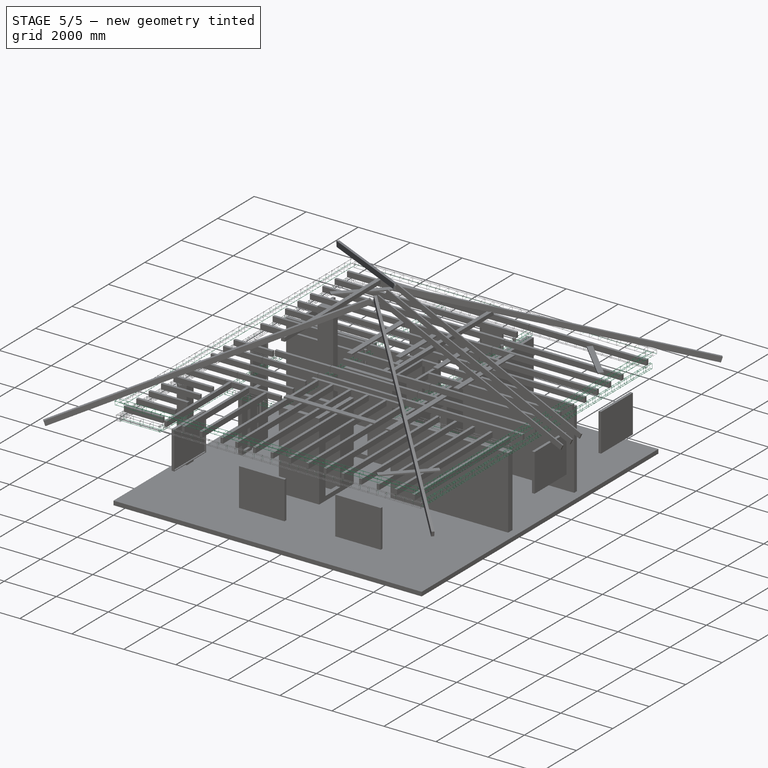
[diagram: stage 5 of 5 — iso view after this stage's code; geometry added in this stage tinted green]
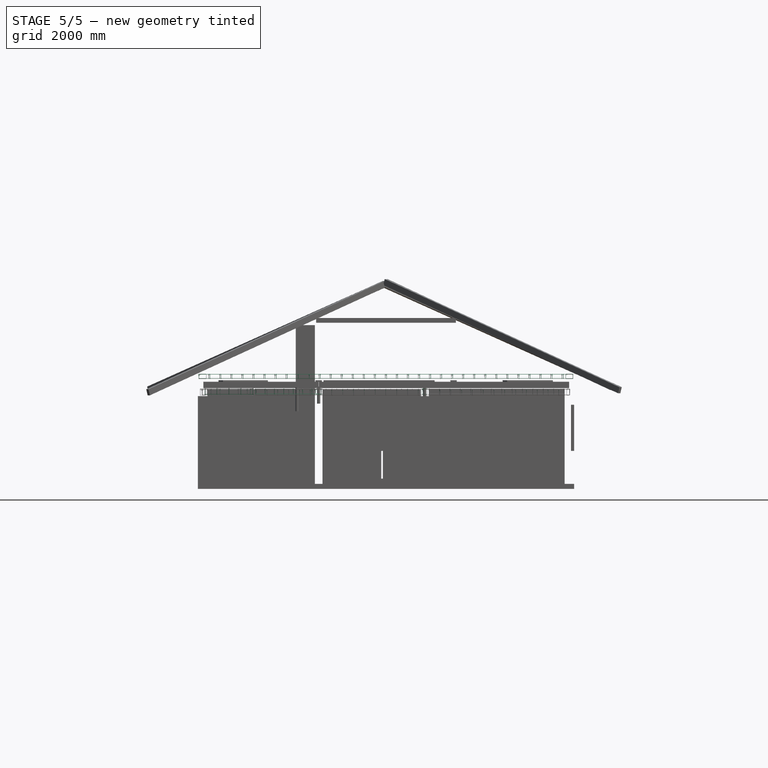
[diagram: stage 5 of 5 — front view after this stage's code; geometry added in this stage tinted green]
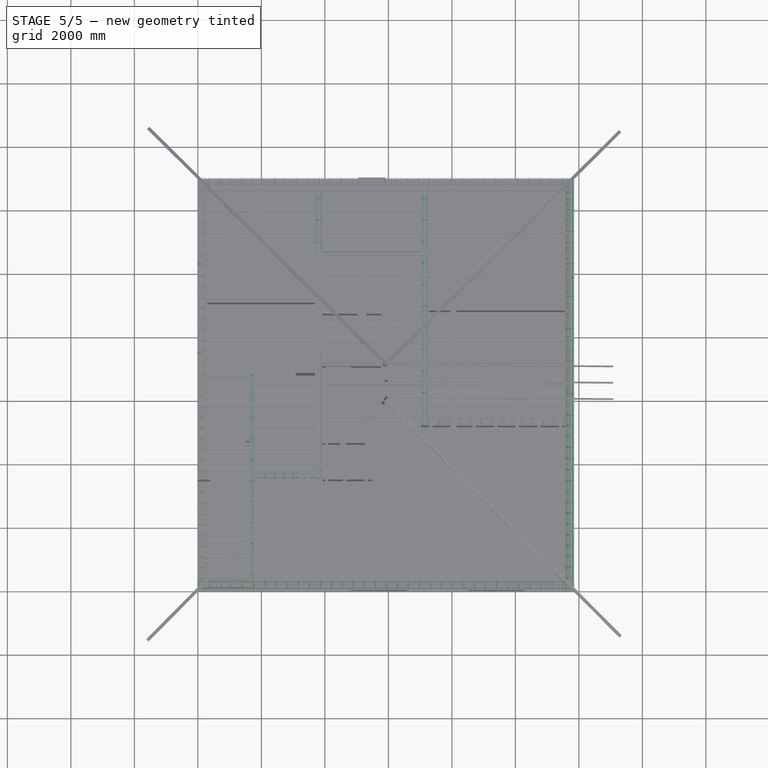
[diagram: stage 5 of 5 — top view after this stage's code; geometry added in this stage tinted green]
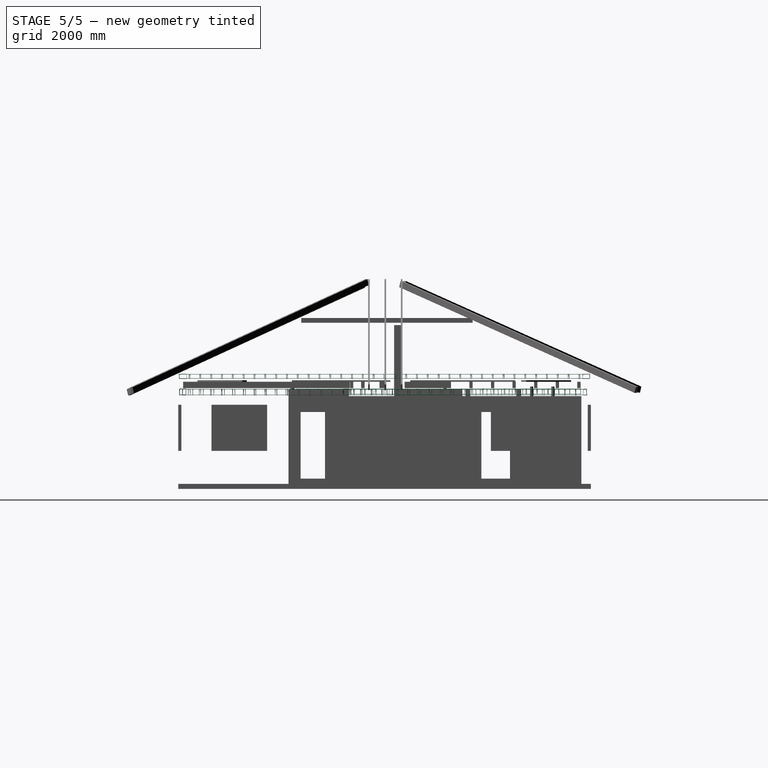
[diagram: stage 5 of 5 — right view after this stage's code; geometry added in this stage tinted green]
FEATURE [Sketcher::SketchObject] Sketch012
  ArcFitTolerance = 1e-06
  AttachmentSupport = -> [Structure003]
  FullyConstrained = false
  MakeInternals = false
  MapMode = 5
  Placement = pos=(0,0.423686,0) rot=(1,0,0;1.5708rad)
  sketch-geometry (1):
    g0: LineSegment StartX=211.055 StartY=2821 StartZ=0 EndX=1760 EndY=2821 EndZ=0
FEATURE [Part::FeaturePython] Rebar003  label="BottomRebar"  # Arch/BIM 110 (typed FeaturePython)
  Amount = 2
  AmountCheck = true
  Base = -> Sketch012
  Cover = 30
  CoverAlong = Bottom Side
  Diameter = 12
  Direction = (0,0,0)
  Distance = 0
  FrontCover = 60
  HorizontalArea = 0
  Host = -> Structure003
  IfcData = IfcUID=2dI8J0rBH4teudFYeYayjy
  IfcType = 110
  LeftBottomCover = 40
  Length = 1548.95
  Mark = StraightRebar
  MoveBase = false
  MoveWithHost = false
  OffsetEnd = 66
  OffsetStart = 66
  Orientation = Horizontal
  PerimeterLength = 0
  PlacementList = 2 placements: [(0,66,-1.46549e-14),(0,234,-5.19584e-14)]
  RebarShape = 0
  RightTopCover = 40
  Rounding = 0
  Spacing = 168
  TotalLength = 3097.89
  TrueSpacing = 2
  VerticalArea = 0
FEATURE [Part::Part2DObjectPython] Wire008  # Draft 2D object (typed FeaturePython)
  Area = 0
  AttachmentSupport = -> [Structure003]
  ChamferSize = 0
  Closed = false
  End = (159.876,81.7374,2961.06)
  FilletRadius = 0
  Length = 974.629
  MakeFace = true
  Points = (7) [(173.29,104.365,2983.69),(171.055,54.4237,3033.63),(168.819,54.4237,2809),(166.583,246.424,2809),(164.348,246.424,3011),(162.112,31.7963,3011),(159.876,81.7374,2961.06)]
  Start = (173.29,104.365,2983.69)
  Subdivisions = 0
FEATURE [Part::FeaturePython] Rebar004  label="Stirrup001"  # Arch/BIM 110 (typed FeaturePython)
  Amount = 5
  AmountCheck = false
  Base = -> Wire008
  BentAngle = 135
  BentFactor = 4
  BottomCover = 20
  Diameter = 8
  Direction = (1,0,0)
  Distance = 0
  FrontCover = 50
  HorizontalArea = 0
  Host = -> Structure003
  IfcData = IfcUID=2EJo1SgDL6RgedTbys9JnC
  IfcType = 110
  LeftCover = 50
  Length = 974.629
  Mark = Stirrup001
  MoveBase = false
  MoveWithHost = false
  OffsetEnd = 54
  OffsetStart = 54
  PerimeterLength = 0
  PlacementList = 5 placements: arithmetic series from (54,0,0) step (378.236,0,0) to (1566.95,0,0)
  RebarShape = 3
  RightCover = 50
  Rounding = 2
  Spacing = 378.236
  TopCover = 20
  TotalLength = 4873.14
  TrueSpacing = 500
  VerticalArea = 0
FEATURE [Sketcher::SketchObject] Sketch013
  ArcFitTolerance = 1e-06
  AttachmentSupport = -> [Structure003]
  FullyConstrained = false
  MakeInternals = false
  MapMode = 5
  Placement = pos=(0,0.423686,0) rot=(1,0,0;1.5708rad)
  sketch-geometry (1):
    g0: LineSegment StartX=211.055 StartY=2999 StartZ=0 EndX=1760 EndY=2999 EndZ=0
FEATURE [Part::FeaturePython] Rebar005  label="TopRebar"  # Arch/BIM 110 (typed FeaturePython)
  Amount = 2
  AmountCheck = true
  Base = -> Sketch013
  Cover = 30
  CoverAlong = Top Side
  Diameter = 12
  Direction = (0,0,0)
  Distance = 0
  FrontCover = 60
  HorizontalArea = 0
  Host = -> Structure003
  IfcData = IfcUID=3yN2FGgrzCLQWlDmNU20cy
  IfcType = 110
  LeftBottomCover = 40
  Length = 1548.95
  Mark = StraightRebar001
  MoveBase = false
  MoveWithHost = false
  OffsetEnd = 66
  OffsetStart = 66
  Orientation = Horizontal
  PerimeterLength = 0
  PlacementList = 2 placements: [(0,66,-1.46549e-14),(0,234,-5.19584e-14)]
  RebarShape = 0
  RightTopCover = 40
  Rounding = 0
  Spacing = 168
  TotalLength = 3097.89
  TrueSpacing = 2
  VerticalArea = 0
FEATURE [Sketcher::SketchObject] Sketch014
  ArcFitTolerance = 1e-06
  AttachmentSupport = -> [Structure069]
  FullyConstrained = false
  MakeInternals = false
  MapMode = 5
  Placement = pos=(0,3475,0) rot=(1,0,0;1.5708rad)
  sketch-geometry (1):
    g0: LineSegment StartX=1800 StartY=2831 StartZ=0 EndX=3925 EndY=2831 EndZ=0
FEATURE [Part::FeaturePython] Rebar006  label="StraightRebar"  # Arch/BIM 110 (typed FeaturePython)
  Amount = 2
  AmountCheck = true
  Base = -> Sketch014
  Cover = 40
  CoverAlong = Bottom Side
  Diameter = 12
  Direction = (0,0,0)
  Distance = 0
  FrontCover = 40
  HorizontalArea = 0
  Host = -> Structure069
  IfcData = IfcUID=2f7ZPO_KLDef_CVisx5gfl
  IfcType = 110
  LeftBottomCover = 0
  Length = 2125
  Mark = StraightRebar
  MoveBase = false
  MoveWithHost = false
  OffsetEnd = 46
  OffsetStart = 46
  Orientation = Horizontal
  PerimeterLength = 0
  PlacementList = 2 placements: [(0,46,-1.02141e-14),(0,194,-4.30767e-14)]
  RebarShape = 0
  RightTopCover = 0
  Rounding = 0
  Spacing = 148
  TotalLength = 4250
  TrueSpacing = 2
  VerticalArea = 0
FEATURE [Sketcher::SketchObject] Sketch015
  ArcFitTolerance = 1e-06
  AttachmentSupport = -> [Structure069]
  FullyConstrained = false
  MakeInternals = false
  MapMode = 5
  Placement = pos=(0,3475,0) rot=(1,0,0;1.5708rad)
  sketch-geometry (1):
    g0: LineSegment StartX=1800 StartY=2989 StartZ=0 EndX=3925 EndY=2989 EndZ=0
FEATURE [Part::FeaturePython] Rebar007  label="StraightRebar001"  # Arch/BIM 110 (typed FeaturePython)
  Amount = 2
  AmountCheck = true
  Base = -> Sketch015
  Cover = 40
  CoverAlong = Top Side
  Diameter = 12
  Direction = (0,0,0)
  Distance = 0
  FrontCover = 39
  HorizontalArea = 0
  Host = -> Structure069
  IfcData = IfcUID=0jtv9xdg587R2tAQ4Sk64m
  IfcType = 110
  LeftBottomCover = 0
  Length = 2125
  Mark = StraightRebar001
  MoveBase = false
  MoveWithHost = false
  OffsetEnd = 45
  OffsetStart = 45
  Orientation = Horizontal
  PerimeterLength = 0
  PlacementList = 2 placements: [(0,45,-9.99201e-15),(0,195,-4.32987e-14)]
  RebarShape = 0
  RightTopCover = 0
  Rounding = 0
  Spacing = 150
  TotalLength = 4250
  TrueSpacing = 2
  VerticalArea = 0
FEATURE [Part::Part2DObjectPython] Wire010  # Draft 2D object (typed FeaturePython)
  Area = 0
  AttachmentSupport = -> [Structure069]
  ChamferSize = 0
  Closed = false
  End = (1788.68,3536.31,2951.06)
  FilletRadius = 0
  Length = 894.637
  MakeFace = true
  Points = (7) [(1802.26,3558.94,2973.69),(1800,3509,3023.63),(1797.74,3509,2819),(1795.47,3681,2819),(1793.21,3681,3001),(1790.95,3486.37,3001),(1788.68,3536.31,2951.06)]
  Start = (1802.26,3558.94,2973.69)
  Subdivisions = 0
FEATURE [Part::FeaturePython] Rebar008  label="Stirrup002"  # Arch/BIM 110 (typed FeaturePython)
  Amount = 8
  AmountCheck = false
  Base = -> Wire010
  BentAngle = 135
  BentFactor = 4
  BottomCover = 30
  Diameter = 8
  Direction = (1,0,0)
  Distance = 0
  FrontCover = 20
  HorizontalArea = 0
  Host = -> Structure069
  IfcData = IfcUID=3ireyq4$b4iPKijK0YnX2X
  IfcType = 110
  LeftCover = 30
  Length = 894.637
  Mark = Stirrup002
  MoveBase = false
  MoveWithHost = false
  OffsetEnd = 24
  OffsetStart = 24
  PerimeterLength = 0
  PlacementList = 8 placements: arithmetic series from (24,0,0) step (295.571,0,0) to (2093,0,0)
  RebarShape = 3
  RightCover = 30
  Rounding = 2
  Spacing = 295.571
  TopCover = 30
  TotalLength = 7157.09
  TrueSpacing = 350
  VerticalArea = 0
FEATURE [Sketcher::SketchObject] Sketch016
  ArcFitTolerance = 1e-06
  AttachmentSupport = -> [Structure068]
  FullyConstrained = false
  MakeInternals = false
  MapMode = 5
  Placement = pos=(3685,0,0) rot=(0.57735,-0.57735,-0.57735;2.0944rad)
  sketch-geometry (1):
    g0: LineSegment StartX=-12700 StartY=2831 StartZ=0 EndX=-3715 EndY=2831 EndZ=0
FEATURE [Part::FeaturePython] Rebar009  label="StraightRebar002"  # Arch/BIM 110 (typed FeaturePython)
  Amount = 2
  AmountCheck = true
  Base = -> Sketch016
  Cover = 40
  CoverAlong = Bottom Side
  Diameter = 12
  Direction = (0,0,0)
  Distance = 0
  FrontCover = 40
  HorizontalArea = 0
  Host = -> Structure068
  IfcData = IfcUID=3VnjzIem1CT8KyIBrPYP8Y
  IfcType = 110
  LeftBottomCover = 0
  Length = 8985
  Mark = StraightRebar002
  MoveBase = false
  MoveWithHost = false
  OffsetEnd = 46
  OffsetStart = 46
  Orientation = Horizontal
  PerimeterLength = 0
  PlacementList = 2 placements: [(46,0,0),(194,0,0)]
  RebarShape = 0
  RightTopCover = 0
  Rounding = 0
  Spacing = 148
  TotalLength = 17970
  TrueSpacing = 2
  VerticalArea = 0
FEATURE [Sketcher::SketchObject] Sketch017
  ArcFitTolerance = 1e-06
  AttachmentSupport = -> [Structure068]
  FullyConstrained = false
  MakeInternals = false
  MapMode = 5
  Placement = pos=(3685,0,0) rot=(0.57735,-0.57735,-0.57735;2.0944rad)
  sketch-geometry (1):
    g0: LineSegment StartX=-12700 StartY=2989 StartZ=0 EndX=-3715 EndY=2989 EndZ=0
FEATURE [Part::FeaturePython] Rebar010  label="StraightRebar003"  # Arch/BIM 110 (typed FeaturePython)
  Amount = 2
  AmountCheck = true
  Base = -> Sketch017
  Cover = 40
  CoverAlong = Top Side
  Diameter = 12
  Direction = (0,0,0)
  Distance = 0
  FrontCover = 40
  HorizontalArea = 0
  Host = -> Structure068
  IfcData = IfcUID=3Q3TETUtvFiBhbdRzXXEE_
  IfcType = 110
  LeftBottomCover = 0
  Length = 8985
  Mark = StraightRebar003
  MoveBase = false
  MoveWithHost = false
  OffsetEnd = 46
  OffsetStart = 46
  Orientation = Horizontal
  PerimeterLength = 0
  PlacementList = 2 placements: [(46,0,0),(194,0,0)]
  RebarShape = 0
  RightTopCover = 0
  Rounding = 0
  Spacing = 148
  TotalLength = 17970
  TrueSpacing = 2
  VerticalArea = 0
FEATURE [Part::Part2DObjectPython] Wire011  # Draft 2D object (typed FeaturePython)
  Area = 0
  AttachmentSupport = -> [Structure068]
  ChamferSize = 0
  Closed = false
  End = (3746.31,3703.68,2951.06)
  FilletRadius = 0
  Length = 894.637
  MakeFace = true
  Points = (7) [(3768.94,3717.26,2973.69),(3719,3715,3023.63),(3719,3712.74,2819),(3891,3710.47,2819),(3891,3708.21,3001),(3696.37,3705.95,3001),(3746.31,3703.68,2951.06)]
  Start = (3768.94,3717.26,2973.69)
  Subdivisions = 0
FEATURE [Part::FeaturePython] Rebar011  label="Stirrup003"  # Arch/BIM 110 (typed FeaturePython)
  Amount = 27
  AmountCheck = false
  Base = -> Wire011
  BentAngle = 135
  BentFactor = 4
  BottomCover = 30
  Diameter = 8
  Direction = (0,1,0)
  Distance = 0
  FrontCover = 10
  HorizontalArea = 0
  Host = -> Structure068
  IfcData = IfcUID=2uTZkSeSTEgBAPfnRZ4RLG
  IfcType = 110
  LeftCover = 30
  Length = 894.637
  Mark = Stirrup003
  MoveBase = false
  MoveWithHost = false
  OffsetEnd = 14
  OffsetStart = 14
  PerimeterLength = 0
  PlacementList = 27 placements: arithmetic series from (0,14,0) step (0,344.192,0) to (0,8963,0)
  RebarShape = 3
  RightCover = 30
  Rounding = 2
  Spacing = 344.192
  TopCover = 30
  TotalLength = 24155.2
  TrueSpacing = 350
  VerticalArea = 0
FEATURE [Sketcher::SketchObject] Sketch018
  ArcFitTolerance = 1e-06
  AttachmentSupport = -> [Structure070]
  FullyConstrained = false
  MakeInternals = false
  MapMode = 5
  Placement = pos=(7025,0,0) rot=(0.57735,-0.57735,-0.57735;2.0944rad)
  sketch-geometry (1):
    g0: LineSegment StartX=-12700 StartY=2831 StartZ=0 EndX=-5175 EndY=2831 EndZ=0
FEATURE [Part::FeaturePython] Rebar012  label="StraightRebar004"  # Arch/BIM 110 (typed FeaturePython)
  Amount = 2
  AmountCheck = true
  Base = -> Sketch018
  Cover = 40
  CoverAlong = Bottom Side
  Diameter = 12
  Direction = (0,0,0)
  Distance = 0
  FrontCover = 40
  HorizontalArea = 0
  Host = -> Structure070
  IfcData = IfcUID=3W5um7869EJ9j7bMfEu$we
  IfcType = 110
  LeftBottomCover = 0
  Length = 7525
  Mark = StraightRebar004
  MoveBase = false
  MoveWithHost = false
  OffsetEnd = 46
  OffsetStart = 46
  Orientation = Horizontal
  PerimeterLength = 0
  PlacementList = 2 placements: [(46,0,0),(194,0,0)]
  RebarShape = 0
  RightTopCover = 0
  Rounding = 0
  Spacing = 148
  TotalLength = 15050
  TrueSpacing = 2
  VerticalArea = 0
FEATURE [Sketcher::SketchObject] Sketch019
  ArcFitTolerance = 1e-06
  AttachmentSupport = -> [Structure070]
  FullyConstrained = false
  MakeInternals = false
  MapMode = 5
  Placement = pos=(7025,0,0) rot=(0.57735,-0.57735,-0.57735;2.0944rad)
  sketch-geometry (1):
    g0: LineSegment StartX=-12700 StartY=2989 StartZ=0 EndX=-5175 EndY=2989 EndZ=0
FEATURE [Part::FeaturePython] Rebar013  label="StraightRebar005"  # Arch/BIM 110 (typed FeaturePython)
  Amount = 2
  AmountCheck = true
  Base = -> Sketch019
  Cover = 40
  CoverAlong = Top Side
  Diameter = 12
  Direction = (0,0,0)
  Distance = 0
  FrontCover = 40
  HorizontalArea = 0
  Host = -> Structure070
  IfcData = IfcUID=27QSHUj9n6VvUHOgfLQ0KZ
  IfcType = 110
  LeftBottomCover = 0
  Length = 7525
  Mark = StraightRebar005
  MoveBase = false
  MoveWithHost = false
  OffsetEnd = 46
  OffsetStart = 46
  Orientation = Horizontal
  PerimeterLength = 0
  PlacementList = 2 placements: [(46,0,0),(194,0,0)]
  RebarShape = 0
  RightTopCover = 0
  Rounding = 0
  Spacing = 148
  TotalLength = 15050
  TrueSpacing = 2
  VerticalArea = 0
FEATURE [Part::Part2DObjectPython] Wire012  # Draft 2D object (typed FeaturePython)
  Area = 0
  AttachmentSupport = -> [Structure070]
  ChamferSize = 0
  Closed = false
  End = (7086.31,5163.68,2951.06)
  FilletRadius = 0
  Length = 894.637
  MakeFace = true
  Points = (7) [(7108.94,5177.26,2973.69),(7059,5175,3023.63),(7059,5172.74,2819),(7231,5170.47,2819),(7231,5168.21,3001),(7036.37,5165.95,3001),(7086.31,5163.68,2951.06)]
  Start = (7108.94,5177.26,2973.69)
  Subdivisions = 0
FEATURE [Part::FeaturePython] Rebar014  label="Stirrup004"  # Arch/BIM 110 (typed FeaturePython)
  Amount = 23
  AmountCheck = false
  Base = -> Wire012
  BentAngle = 135
  BentFactor = 4
  BottomCover = 30
  Diameter = 8
  Direction = (0,1,0)
  Distance = 0
  FrontCover = 10
  HorizontalArea = 0
  Host = -> Structure070
  IfcData = IfcUID=20PX4tZnv90wYBoea7lr8s
  IfcType = 110
  LeftCover = 30
  Length = 894.637
  Mark = Stirrup004
  MoveBase = false
  MoveWithHost = false
  OffsetEnd = 14
  OffsetStart = 14
  PerimeterLength = 0
  PlacementList = 23 placements: arithmetic series from (0,14,0) step (0,340.409,0) to (0,7503,0)
  RebarShape = 3
  RightCover = 30
  Rounding = 2
  Spacing = 340.409
  TopCover = 30
  TotalLength = 20576.6
  TrueSpacing = 350
  VerticalArea = 0
FEATURE [Sketcher::SketchObject] Sketch020
  ArcFitTolerance = 1e-06
  AttachmentSupport = -> [Structure071]
  FullyConstrained = false
  MakeInternals = false
  MapMode = 5
  Placement = pos=(0,5175,0) rot=(1,0,0;1.5708rad)
  sketch-geometry (1):
    g0: LineSegment StartX=7265 StartY=2831 StartZ=0 EndX=11550 EndY=2831 EndZ=0
FEATURE [Part::FeaturePython] Rebar015  label="StraightRebar006"  # Arch/BIM 110 (typed FeaturePython)
  Amount = 2
  AmountCheck = true
  Base = -> Sketch020
  Cover = 40
  CoverAlong = Bottom Side
  Diameter = 12
  Direction = (0,0,0)
  Distance = 0
  FrontCover = 40
  HorizontalArea = 0
  Host = -> Structure071
  IfcData = IfcUID=0Wh1$MAor0l983crX9C2pb
  IfcType = 110
  LeftBottomCover = 0
  Length = 4285
  Mark = StraightRebar006
  MoveBase = false
  MoveWithHost = false
  OffsetEnd = 46
  OffsetStart = 46
  Orientation = Horizontal
  PerimeterLength = 0
  PlacementList = 2 placements: [(0,46,-1.02141e-14),(0,194,-4.30767e-14)]
  RebarShape = 0
  RightTopCover = 0
  Rounding = 0
  Spacing = 148
  TotalLength = 8570
  TrueSpacing = 2
  VerticalArea = 0
FEATURE [Sketcher::SketchObject] Sketch021
  ArcFitTolerance = 1e-06
  AttachmentSupport = -> [Structure071]
  FullyConstrained = false
  MakeInternals = false
  MapMode = 5
  Placement = pos=(0,5175,0) rot=(1,0,0;1.5708rad)
  sketch-geometry (1):
    g0: LineSegment StartX=7265 StartY=2989 StartZ=0 EndX=11550 EndY=2989 EndZ=0
FEATURE [Part::FeaturePython] Rebar016  label="StraightRebar007"  # Arch/BIM 110 (typed FeaturePython)
  Amount = 2
  AmountCheck = true
  Base = -> Sketch021
  Cover = 40
  CoverAlong = Top Side
  Diameter = 12
  Direction = (0,0,0)
  Distance = 0
  FrontCover = 40
  HorizontalArea = 0
  Host = -> Structure071
  IfcData = IfcUID=2zT3r70WL9gAAhjiZzE5I$
  IfcType = 110
  LeftBottomCover = 0
  Length = 4285
  Mark = StraightRebar007
  MoveBase = false
  MoveWithHost = false
  OffsetEnd = 46
  OffsetStart = 46
  Orientation = Horizontal
  PerimeterLength = 0
  PlacementList = 2 placements: [(0,46,-1.02141e-14),(0,194,-4.30767e-14)]
  RebarShape = 0
  RightTopCover = 0
  Rounding = 0
  Spacing = 148
  TotalLength = 8570
  TrueSpacing = 2
  VerticalArea = 0
FEATURE [Part::Part2DObjectPython] Wire013  # Draft 2D object (typed FeaturePython)
  Area = 0
  AttachmentSupport = -> [Structure071]
  ChamferSize = 0
  Closed = false
  End = (11538.7,5236.31,2951.06)
  FilletRadius = 0
  Length = 894.637
  MakeFace = true
  Points = (7) [(11552.3,5258.94,2973.69),(11550,5209,3023.63),(11547.7,5209,2819),(11545.5,5381,2819),(11543.2,5381,3001),(11540.9,5186.37,3001),(11538.7,5236.31,2951.06)]
  Start = (11552.3,5258.94,2973.69)
  Subdivisions = 0
FEATURE [Part::FeaturePython] Rebar017  label="Stirrup005"  # Arch/BIM 110 (typed FeaturePython)
  Amount = 14
  AmountCheck = false
  Base = -> Wire013
  BentAngle = 135
  BentFactor = 4
  BottomCover = 30
  Diameter = 8
  Direction = (-1,0,0)
  Distance = 0
  FrontCover = 10
  HorizontalArea = 0
  Host = -> Structure071
  IfcData = IfcUID=2M$tgPOAXE5hGxWGWnp1dl
  IfcType = 110
  LeftCover = 30
  Length = 894.637
  Mark = Stirrup005
  MoveBase = false
  MoveWithHost = false
  OffsetEnd = 14
  OffsetStart = 14
  PerimeterLength = 0
  PlacementList = 14 placements: arithmetic series from (-14,0,0) step (-326.846,0,0) to (-4263,0,0)
  RebarShape = 3
  RightCover = 30
  Rounding = 2
  Spacing = 326.846
  TopCover = 30
  TotalLength = 12524.9
  TrueSpacing = 350
  VerticalArea = 0
FEATURE [Sketcher::SketchObject] Sketch022
  ArcFitTolerance = 1e-06
  AttachmentSupport = -> [Structure073]
  FullyConstrained = false
  MakeInternals = false
  MapMode = 5
  Placement = pos=(0,100,0) rot=(1,0,0;1.5708rad)
  sketch-geometry (1):
    g0: LineSegment StartX=1800 StartY=2801 StartZ=0 EndX=11720 EndY=2801 EndZ=0
FEATURE [Part::FeaturePython] Rebar018  label="StraightRebar008"  # Arch/BIM 110 (typed FeaturePython)
  Amount = 2
  AmountCheck = true
  Base = -> Sketch022
  Cover = 30
  CoverAlong = Bottom Side
  Diameter = 12
  Direction = (0,0,0)
  Distance = 0
  FrontCover = 50
  HorizontalArea = 0
  Host = -> Structure073
  IfcData = IfcUID=2bsstz1e1Cxe7x1ZmqfuHK
  IfcType = 110
  LeftBottomCover = 0
  Length = 9920
  Mark = StraightRebar008
  MoveBase = false
  MoveWithHost = false
  OffsetEnd = 56
  OffsetStart = 56
  Orientation = Horizontal
  PerimeterLength = 0
  PlacementList = 2 placements: [(0,56,-1.24345e-14),(0,124,-2.75335e-14)]
  RebarShape = 0
  RightTopCover = 30
  Rounding = 0
  Spacing = 68
  TotalLength = 19840
  TrueSpacing = 2
  VerticalArea = 0
FEATURE [Sketcher::SketchObject] Sketch023
  ArcFitTolerance = 1e-06
  AttachmentSupport = -> [Structure073]
  FullyConstrained = false
  MakeInternals = false
  MapMode = 5
  Placement = pos=(0,100,0) rot=(1,0,0;1.5708rad)
  sketch-geometry (1):
    g0: LineSegment StartX=1800 StartY=2979 StartZ=0 EndX=11720 EndY=2979 EndZ=0
FEATURE [Part::FeaturePython] Rebar019  label="StraightRebar009"  # Arch/BIM 110 (typed FeaturePython)
  Amount = 2
  AmountCheck = true
  Base = -> Sketch023
  Cover = 30
  CoverAlong = Top Side
  Diameter = 12
  Direction = (0,0,0)
  Distance = 0
  FrontCover = 50
  HorizontalArea = 0
  Host = -> Structure073
  IfcData = IfcUID=1uMdBznp17GQv1RRFh0Yhy
  IfcType = 110
  LeftBottomCover = 0
  Length = 9920
  Mark = StraightRebar009
  MoveBase = false
  MoveWithHost = false
  OffsetEnd = 56
  OffsetStart = 56
  Orientation = Horizontal
  PerimeterLength = 0
  PlacementList = 2 placements: [(0,56,-1.24345e-14),(0,124,-2.75335e-14)]
  RebarShape = 0
  RightTopCover = 30
  Rounding = 0
  Spacing = 68
  TotalLength = 19840
  TrueSpacing = 2
  VerticalArea = 0
FEATURE [Part::Part2DObjectPython] Wire014  # Draft 2D object (typed FeaturePython)
  Area = 0
  AttachmentSupport = -> [Structure073]
  ChamferSize = 0
  Closed = false
  End = (11737.5,171.314,2941.06)
  FilletRadius = 0
  Length = 774.688
  MakeFace = true
  Points = (7) [(11752.5,193.941,2963.69),(11750,144,3013.63),(11747.5,144,2789),(11745,236,2789),(11742.5,236,2991),(11740,121.373,2991),(11737.5,171.314,2941.06)]
  Start = (11752.5,193.941,2963.69)
  Subdivisions = 0
FEATURE [Part::FeaturePython] Rebar020  label="Stirrup006"  # Arch/BIM 110 (typed FeaturePython)
  Amount = 30
  AmountCheck = false
  Base = -> Wire014
  BentAngle = 135
  BentFactor = 4
  BottomCover = 20
  Diameter = 8
  Direction = (-1,0,0)
  Distance = 0
  FrontCover = 30
  HorizontalArea = 0
  Host = -> Structure073
  IfcData = IfcUID=0D5iUGztf3nRHjGdSodnHk
  IfcType = 110
  LeftCover = 40
  Length = 774.688
  Mark = Stirrup006
  MoveBase = false
  MoveWithHost = false
  OffsetEnd = 34
  OffsetStart = 34
  PerimeterLength = 0
  PlacementList = 30 placements: arithmetic series from (-34,0,0) step (-340.483,0,0) to (-9908,0,0)
  RebarShape = 3
  RightCover = 40
  Rounding = 2
  Spacing = 340.483
  TopCover = 20
  TotalLength = 23240.6
  TrueSpacing = 350
  VerticalArea = 0
FEATURE [Sketcher::SketchObject] Sketch024
  ArcFitTolerance = 1e-06
  AttachmentSupport = -> [Structure072]
  FullyConstrained = false
  MakeInternals = false
  MapMode = 5
  Placement = pos=(11750,0,0) rot=(0.57735,0.57735,0.57735;2.0944rad)
  sketch-geometry (1):
    g0: LineSegment StartX=300 StartY=2801 StartZ=0 EndX=12870 EndY=2801 EndZ=0
FEATURE [Part::FeaturePython] Rebar021  label="StraightRebar010"  # Arch/BIM 110 (typed FeaturePython)
  Amount = 2
  AmountCheck = true
  Base = -> Sketch024
  Cover = 30
  CoverAlong = Bottom Side
  Diameter = 12
  Direction = (0,0,0)
  Distance = 0
  FrontCover = 50
  HorizontalArea = 0
  Host = -> Structure072
  IfcData = IfcUID=2q_inDV2zCoOgiY1zpeTvs
  IfcType = 110
  LeftBottomCover = 0
  Length = 12570
  Mark = StraightRebar010
  MoveBase = false
  MoveWithHost = false
  OffsetEnd = 56
  OffsetStart = 56
  Orientation = Horizontal
  PerimeterLength = 0
  PlacementList = 2 placements: [(-56,0,0),(-124,0,0)]
  RebarShape = 0
  RightTopCover = 30
  Rounding = 0
  Spacing = 68
  TotalLength = 25140
  TrueSpacing = 2
  VerticalArea = 0
FEATURE [Sketcher::SketchObject] Sketch025
  ArcFitTolerance = 1e-06
  AttachmentSupport = -> [Structure072]
  FullyConstrained = false
  MakeInternals = false
  MapMode = 5
  Placement = pos=(11750,0,0) rot=(0.57735,0.57735,0.57735;2.0944rad)
  sketch-geometry (1):
    g0: LineSegment StartX=300 StartY=2979 StartZ=0 EndX=12870 EndY=2979 EndZ=0
FEATURE [Part::FeaturePython] Rebar022  label="StraightRebar011"  # Arch/BIM 110 (typed FeaturePython)
  Amount = 2
  AmountCheck = true
  Base = -> Sketch025
  Cover = 30
  CoverAlong = Top Side
  Diameter = 12
  Direction = (0,0,0)
  Distance = 0
  FrontCover = 50
  HorizontalArea = 0
  Host = -> Structure072
  IfcData = IfcUID=3nzrldqmv29vPx4tvp7qHU
  IfcType = 110
  LeftBottomCover = 0
  Length = 12570
  Mark = StraightRebar011
  MoveBase = false
  MoveWithHost = false
  OffsetEnd = 56
  OffsetStart = 56
  Orientation = Horizontal
  PerimeterLength = 0
  PlacementList = 2 placements: [(-56,0,0),(-124,0,0)]
  RebarShape = 0
  RightTopCover = 30
  Rounding = 0
  Spacing = 68
  TotalLength = 25140
  TrueSpacing = 2
  VerticalArea = 0
FEATURE [Part::Part2DObjectPython] Wire015  # Draft 2D object (typed FeaturePython)
  Area = 0
  AttachmentSupport = -> [Structure072]
  ChamferSize = 0
  Closed = false
  End = (11641.3,12887.5,2941.06)
  FilletRadius = 0
  Length = 774.688
  MakeFace = true
  Points = (7) [(11663.9,12902.5,2963.69),(11614,12900,3013.63),(11614,12897.5,2789),(11706,12895,2789),(11706,12892.5,2991),(11591.4,12890,2991),(11641.3,12887.5,2941.06)]
  Start = (11663.9,12902.5,2963.69)
  Subdivisions = 0
FEATURE [Part::FeaturePython] Rebar023  label="Stirrup007"  # Arch/BIM 110 (typed FeaturePython)
  Amount = 37
  AmountCheck = false
  Base = -> Wire015
  BentAngle = 135
  BentFactor = 4
  BottomCover = 20
  Diameter = 8
  Direction = (0,-1,0)
  Distance = 0
  FrontCover = 30
  HorizontalArea = 0
  Host = -> Structure072
  IfcData = IfcUID=3J7qclPzzBIhmtBKcF1MZR
  IfcType = 110
  LeftCover = 40
  Length = 774.688
  Mark = Stirrup007
  MoveBase = false
  MoveWithHost = false
  OffsetEnd = 34
  OffsetStart = 34
  PerimeterLength = 0
  PlacementList = 37 placements: arithmetic series from (0,-34,0) step (0,-348.444,0) to (0,-12578,0)
  RebarShape = 3
  RightCover = 40
  Rounding = 2
  Spacing = 348.444
  TopCover = 20
  TotalLength = 28663.4
  TrueSpacing = 350
  VerticalArea = 0
FEATURE [Sketcher::SketchObject] Sketch026
  ArcFitTolerance = 1e-06
  AttachmentSupport = -> [Structure077]
  FullyConstrained = false
  MakeInternals = false
  MapMode = 5
  Placement = pos=(0,12900,0) rot=(0,0.707107,0.707107;3.14159rad)
  sketch-geometry (1):
    g0: LineSegment StartX=-11550 StartY=2801 StartZ=0 EndX=-300 EndY=2801 EndZ=0
FEATURE [Part::FeaturePython] Rebar024  label="StraightRebar012"  # Arch/BIM 110 (typed FeaturePython)
  Amount = 2
  AmountCheck = true
  Base = -> Sketch026
  Cover = 30
  CoverAlong = Bottom Side
  Diameter = 12
  Direction = (0,0,0)
  Distance = 0
  FrontCover = 50
  HorizontalArea = 0
  Host = -> Structure077
  IfcData = IfcUID=28yKWC6lbBAQ17NUD3rylV
  IfcType = 110
  LeftBottomCover = 0
  Length = 11250
  Mark = StraightRebar012
  MoveBase = false
  MoveWithHost = false
  OffsetEnd = 56
  OffsetStart = 56
  Orientation = Horizontal
  PerimeterLength = 0
  PlacementList = 2 placements: [(0,-56,1.24345e-14),(0,-124,2.75335e-14)]
  RebarShape = 0
  RightTopCover = 0
  Rounding = 0
  Spacing = 68
  TotalLength = 22500
  TrueSpacing = 2
  VerticalArea = 0
FEATURE [Sketcher::SketchObject] Sketch027
  ArcFitTolerance = 1e-06
  AttachmentSupport = -> [Structure077]
  FullyConstrained = false
  MakeInternals = false
  MapMode = 5
  Placement = pos=(0,12900,0) rot=(0,0.707107,0.707107;3.14159rad)
  sketch-geometry (1):
    g0: LineSegment StartX=-11550 StartY=2979 StartZ=0 EndX=-300 EndY=2979 EndZ=0
FEATURE [Part::FeaturePython] Rebar025  label="StraightRebar013"  # Arch/BIM 110 (typed FeaturePython)
  Amount = 2
  AmountCheck = true
  Base = -> Sketch027
  Cover = 30
  CoverAlong = Top Side
  Diameter = 12
  Direction = (0,0,0)
  Distance = 0
  FrontCover = 50
  HorizontalArea = 0
  Host = -> Structure077
  IfcData = IfcUID=2OD2cJhRrERxN0vz80HUoD
  IfcType = 110
  LeftBottomCover = 0
  Length = 11250
  Mark = StraightRebar013
  MoveBase = false
  MoveWithHost = false
  OffsetEnd = 56
  OffsetStart = 56
  Orientation = Horizontal
  PerimeterLength = 0
  PlacementList = 2 placements: [(0,-56,1.24345e-14),(0,-124,2.75335e-14)]
  RebarShape = 0
  RightTopCover = 0
  Rounding = 0
  Spacing = 68
  TotalLength = 22500
  TrueSpacing = 2
  VerticalArea = 0
FEATURE [Part::Part2DObjectPython] Wire016  # Draft 2D object (typed FeaturePython)
  Area = 0
  AttachmentSupport = -> [Structure077]
  ChamferSize = 0
  Closed = false
  End = (11537.5,12791.3,2941.06)
  FilletRadius = 0
  Length = 774.688
  MakeFace = true
  Points = (7) [(11552.5,12813.9,2963.69),(11550,12764,3013.63),(11547.5,12764,2789),(11545,12856,2789),(11542.5,12856,2991),(11540,12741.4,2991),(11537.5,12791.3,2941.06)]
  Start = (11552.5,12813.9,2963.69)
  Subdivisions = 0
FEATURE [Part::FeaturePython] Rebar026  label="Stirrup008"  # Arch/BIM 110 (typed FeaturePython)
  Amount = 34
  AmountCheck = false
  Base = -> Wire016
  BentAngle = 135
  BentFactor = 4
  BottomCover = 20
  Diameter = 8
  Direction = (-1,0,0)
  Distance = 0
  FrontCover = 30
  HorizontalArea = 0
  Host = -> Structure077
  IfcData = IfcUID=33Unh96tX8LfRPgUlWMJul
  IfcType = 110
  LeftCover = 40
  Length = 774.688
  Mark = Stirrup008
  MoveBase = false
  MoveWithHost = false
  OffsetEnd = 34
  OffsetStart = 34
  PerimeterLength = 0
  PlacementList = 34 placements: arithmetic series from (-34,0,0) step (-339.818,0,0) to (-11248,0,0)
  RebarShape = 3
  RightCover = 40
  Rounding = 2
  Spacing = 339.818
  TopCover = 20
  TotalLength = 26339.4
  TrueSpacing = 350
  VerticalArea = 0
FEATURE [Sketcher::SketchObject] Sketch028
  ArcFitTolerance = 1e-06
  AttachmentSupport = -> [Structure076]
  FullyConstrained = false
  MakeInternals = false
  MapMode = 5
  Placement = pos=(100,0,0) rot=(0.57735,-0.57735,-0.57735;2.0944rad)
  sketch-geometry (1):
    g0: LineSegment StartX=-12900 StartY=2801 StartZ=0 EndX=-6830 EndY=2801 EndZ=0
FEATURE [Part::FeaturePython] Rebar027  label="StraightRebar014"  # Arch/BIM 110 (typed FeaturePython)
  Amount = 2
  AmountCheck = true
  Base = -> Sketch028
  Cover = 30
  CoverAlong = Bottom Side
  Diameter = 12
  Direction = (0,0,0)
  Distance = 0
  FrontCover = 50
  HorizontalArea = 0
  Host = -> Structure076
  IfcData = IfcUID=0pdkOL62z2tfoB8AZbeMmH
  IfcType = 110
  LeftBottomCover = 0
  Length = 6070
  Mark = StraightRebar014
  MoveBase = false
  MoveWithHost = false
  OffsetEnd = 56
  OffsetStart = 56
  Orientation = Horizontal
  PerimeterLength = 0
  PlacementList = 2 placements: [(56,0,0),(124,0,0)]
  RebarShape = 0
  RightTopCover = 30
  Rounding = 0
  Spacing = 68
  TotalLength = 12140
  TrueSpacing = 2
  VerticalArea = 0
FEATURE [Sketcher::SketchObject] Sketch029
  ArcFitTolerance = 1e-06
  AttachmentSupport = -> [Structure076]
  FullyConstrained = false
  MakeInternals = false
  MapMode = 5
  Placement = pos=(100,0,0) rot=(0.57735,-0.57735,-0.57735;2.0944rad)
  sketch-geometry (1):
    g0: LineSegment StartX=-12870 StartY=2979 StartZ=0 EndX=-6830 EndY=2979 EndZ=0
FEATURE [Part::FeaturePython] Rebar028  label="StraightRebar015"  # Arch/BIM 110 (typed FeaturePython)
  Amount = 2
  AmountCheck = true
  Base = -> Sketch029
  Cover = 30
  CoverAlong = Top Side
  Diameter = 12
  Direction = (0,0,0)
  Distance = 0
  FrontCover = 50
  HorizontalArea = 0
  Host = -> Structure076
  IfcData = IfcUID=19ee6XvJT9xuwUIC1qOCXz
  IfcType = 110
  LeftBottomCover = 30
  Length = 6040
  Mark = StraightRebar015
  MoveBase = false
  MoveWithHost = false
  OffsetEnd = 56
  OffsetStart = 56
  Orientation = Horizontal
  PerimeterLength = 0
  PlacementList = 2 placements: [(56,0,0),(124,0,0)]
  RebarShape = 0
  RightTopCover = 30
  Rounding = 0
  Spacing = 68
  TotalLength = 12080
  TrueSpacing = 2
  VerticalArea = 0
FEATURE [Part::Part2DObjectPython] Wire017  # Draft 2D object (typed FeaturePython)
  Area = 0
  AttachmentSupport = -> [Structure076]
  ChamferSize = 0
  Closed = false
  End = (171.314,12887.5,2941.06)
  FilletRadius = 0
  Length = 774.688
  MakeFace = true
  Points = (7) [(193.941,12902.5,2963.69),(144,12900,3013.63),(144,12897.5,2789),(236,12895,2789),(236,12892.5,2991),(121.373,12890,2991),(171.314,12887.5,2941.06)]
  Start = (193.941,12902.5,2963.69)
  Subdivisions = 0
FEATURE [Part::FeaturePython] Rebar029  label="Stirrup009"  # Arch/BIM 110 (typed FeaturePython)
  Amount = 19
  AmountCheck = false
  Base = -> Wire017
  BentAngle = 135
  BentFactor = 4
  BottomCover = 20
  Diameter = 8
  Direction = (0,-1,0)
  Distance = 0
  FrontCover = 30
  HorizontalArea = 0
  Host = -> Structure076
  IfcData = IfcUID=1kF34b4DX9BQ3W1PoEhfhR
  IfcType = 110
  LeftCover = 40
  Length = 774.688
  Mark = Stirrup009
  MoveBase = false
  MoveWithHost = false
  OffsetEnd = 34
  OffsetStart = 34
  PerimeterLength = 0
  PlacementList = 19 placements: arithmetic series from (0,-34,0) step (0,-334.667,0) to (0,-6058,0)
  RebarShape = 3
  RightCover = 40
  Rounding = 2
  Spacing = 334.667
  TopCover = 20
  TotalLength = 14719.1
  TrueSpacing = 350
  VerticalArea = 0
FEATURE [Sketcher::SketchObject] Sketch030
  ArcFitTolerance = 1e-06
  AttachmentSupport = -> [Structure075]
  FullyConstrained = false
  MakeInternals = false
  MapMode = 5
  Placement = pos=(100,6780,0) rot=(0,0.707107,0.707107;3.14159rad)
  sketch-geometry (1):
    g0: LineSegment StartX=-1500 StartY=2801 StartZ=0 EndX=-30 EndY=2801 EndZ=0
FEATURE [Part::FeaturePython] Rebar030  label="StraightRebar016"  # Arch/BIM 110 (typed FeaturePython)
  Amount = 2
  AmountCheck = true
  Base = -> Sketch030
  Cover = 30
  CoverAlong = Bottom Side
  Diameter = 12
  Direction = (0,0,0)
  Distance = 0
  FrontCover = 50
  HorizontalArea = 0
  Host = -> Structure075
  IfcData = IfcUID=0Z3BhklgrAggWI6PIPnQnj
  IfcType = 110
  LeftBottomCover = 0
  Length = 1470
  Mark = StraightRebar016
  MoveBase = false
  MoveWithHost = false
  OffsetEnd = 56
  OffsetStart = 56
  Orientation = Horizontal
  PerimeterLength = 0
  PlacementList = 2 placements: [(0,-56,1.24345e-14),(0,-124,2.75335e-14)]
  RebarShape = 0
  RightTopCover = 30
  Rounding = 0
  Spacing = 68
  TotalLength = 2940
  TrueSpacing = 2
  VerticalArea = 0
FEATURE [Sketcher::SketchObject] Sketch031
  ArcFitTolerance = 1e-06
  AttachmentSupport = -> [Structure075]
  FullyConstrained = false
  MakeInternals = false
  MapMode = 5
  Placement = pos=(100,6780,0) rot=(0,0.707107,0.707107;3.14159rad)
  sketch-geometry (1):
    g0: LineSegment StartX=-1500 StartY=2979 StartZ=0 EndX=-30 EndY=2979 EndZ=0
FEATURE [Part::FeaturePython] Rebar031  label="StraightRebar017"  # Arch/BIM 110 (typed FeaturePython)
  Amount = 2
  AmountCheck = true
  Base = -> Sketch031
  Cover = 30
  CoverAlong = Top Side
  Diameter = 12
  Direction = (0,0,0)
  Distance = 0
  FrontCover = 50
  HorizontalArea = 0
  Host = -> Structure075
  IfcData = IfcUID=0XsL8KmBDFVfRGNw_DIjJz
  IfcType = 110
  LeftBottomCover = 0
  Length = 1470
  Mark = StraightRebar017
  MoveBase = false
  MoveWithHost = false
  OffsetEnd = 56
  OffsetStart = 56
  Orientation = Horizontal
  PerimeterLength = 0
  PlacementList = 2 placements: [(0,-56,1.24345e-14),(0,-124,2.75335e-14)]
  RebarShape = 0
  RightTopCover = 30
  Rounding = 0
  Spacing = 68
  TotalLength = 2940
  TrueSpacing = 2
  VerticalArea = 0
FEATURE [Part::Part2DObjectPython] Wire018  # Draft 2D object (typed FeaturePython)
  Area = 0
  AttachmentSupport = -> [Structure075]
  ChamferSize = 0
  Closed = false
  End = (87.5405,6671.31,2941.06)
  FilletRadius = 0
  Length = 774.688
  MakeFace = true
  Points = (7) [(102.492,6693.94,2963.69),(100,6644,3013.63),(97.5081,6644,2789),(95.0162,6736,2789),(92.5243,6736,2991),(90.0324,6621.37,2991),(87.5405,6671.31,2941.06)]
  Start = (102.492,6693.94,2963.69)
  Subdivisions = 0
FEATURE [Part::FeaturePython] Rebar032  label="Stirrup010"  # Arch/BIM 110 (typed FeaturePython)
  Amount = 6
  AmountCheck = false
  Base = -> Wire018
  BentAngle = 135
  BentFactor = 4
  BottomCover = 20
  Diameter = 8
  Direction = (1,0,0)
  Distance = 0
  FrontCover = 30
  HorizontalArea = 0
  Host = -> Structure075
  IfcData = IfcUID=37WFZv2VzAUvyWgW3apb3h
  IfcType = 110
  LeftCover = 40
  Length = 774.688
  Mark = Stirrup010
  MoveBase = false
  MoveWithHost = false
  OffsetEnd = 34
  OffsetStart = 34
  PerimeterLength = 0
  PlacementList = 6 placements: arithmetic series from (34,0,0) step (284.8,0,0) to (1458,0,0)
  RebarShape = 3
  RightCover = 40
  Rounding = 2
  Spacing = 284.8
  TopCover = 20
  TotalLength = 4648.13
  TrueSpacing = 350
  VerticalArea = 0
FEATURE [Sketcher::SketchObject] Sketch032
  ArcFitTolerance = 1e-06
  AttachmentSupport = -> [Structure074]
  FullyConstrained = false
  MakeInternals = false
  MapMode = 5
  Placement = pos=(1600,100,0) rot=(0.57735,-0.57735,-0.57735;2.0944rad)
  sketch-geometry (1):
    g0: LineSegment StartX=-6700 StartY=2801 StartZ=0 EndX=-30 EndY=2801 EndZ=0
FEATURE [Part::FeaturePython] Rebar033  label="StraightRebar018"  # Arch/BIM 110 (typed FeaturePython)
  Amount = 2
  AmountCheck = true
  Base = -> Sketch032
  Cover = 30
  CoverAlong = Bottom Side
  Diameter = 12
  Direction = (0,0,0)
  Distance = 0
  FrontCover = 50
  HorizontalArea = 0
  Host = -> Structure074
  IfcData = IfcUID=3E8r3Zggn8hhrWrIMPYRlQ
  IfcType = 110
  LeftBottomCover = 0
  Length = 6670
  Mark = StraightRebar018
  MoveBase = false
  MoveWithHost = false
  OffsetEnd = 56
  OffsetStart = 56
  Orientation = Horizontal
  PerimeterLength = 0
  PlacementList = 2 placements: [(56,0,0),(124,0,0)]
  RebarShape = 0
  RightTopCover = 30
  Rounding = 0
  Spacing = 68
  TotalLength = 13340
  TrueSpacing = 2
  VerticalArea = 0
FEATURE [Sketcher::SketchObject] Sketch033
  ArcFitTolerance = 1e-06
  AttachmentSupport = -> [Structure074]
  FullyConstrained = false
  MakeInternals = false
  MapMode = 5
  Placement = pos=(1600,100,0) rot=(0.57735,-0.57735,-0.57735;2.0944rad)
  sketch-geometry (1):
    g0: LineSegment StartX=-6700 StartY=2979 StartZ=0 EndX=-30 EndY=2979 EndZ=0
FEATURE [Part::FeaturePython] Rebar034  label="StraightRebar019"  # Arch/BIM 110 (typed FeaturePython)
  Amount = 2
  AmountCheck = true
  Base = -> Sketch033
  Cover = 30
  CoverAlong = Top Side
  Diameter = 12
  Direction = (0,0,0)
  Distance = 0
  FrontCover = 50
  HorizontalArea = 0
  Host = -> Structure074
  IfcData = IfcUID=0Ka6sP4vr2sBjYG0Hw$fCj
  IfcType = 110
  LeftBottomCover = 0
  Length = 6670
  Mark = StraightRebar019
  MoveBase = false
  MoveWithHost = false
  OffsetEnd = 56
  OffsetStart = 56
  Orientation = Horizontal
  PerimeterLength = 0
  PlacementList = 2 placements: [(56,0,0),(124,0,0)]
  RebarShape = 0
  RightTopCover = 30
  Rounding = 0
  Spacing = 68
  TotalLength = 13340
  TrueSpacing = 2
  VerticalArea = 0
FEATURE [Part::Part2DObjectPython] Wire019  # Draft 2D object (typed FeaturePython)
  Area = 0
  AttachmentSupport = -> [Structure074]
  ChamferSize = 0
  Closed = false
  End = (1671.31,87.5405,2941.06)
  FilletRadius = 0
  Length = 774.688
  MakeFace = true
  Points = (7) [(1693.94,102.492,2963.69),(1644,100,3013.63),(1644,97.5081,2789),(1736,95.0162,2789),(1736,92.5243,2991),(1621.37,90.0324,2991),(1671.31,87.5405,2941.06)]
  Start = (1693.94,102.492,2963.69)
  Subdivisions = 0
FEATURE [Part::FeaturePython] Rebar035  label="Stirrup011"  # Arch/BIM 110 (typed FeaturePython)
  Amount = 21
  AmountCheck = false
  Base = -> Wire019
  BentAngle = 135
  BentFactor = 4
  BottomCover = 20
  Diameter = 8
  Direction = (0,1,0)
  Distance = 0
  FrontCover = 30
  HorizontalArea = 0
  Host = -> Structure074
  IfcData = IfcUID=1fAsUV3Mz6MhFhiwGiaTOg
  IfcType = 110
  LeftCover = 40
  Length = 774.688
  Mark = Stirrup011
  MoveBase = false
  MoveWithHost = false
  OffsetEnd = 34
  OffsetStart = 34
  PerimeterLength = 0
  PlacementList = 21 placements: arithmetic series from (0,34,0) step (0,331.2,0) to (0,6658,0)
  RebarShape = 3
  RightCover = 40
  Rounding = 2
  Spacing = 331.2
  TopCover = 20
  TotalLength = 16268.4
  TrueSpacing = 350
  VerticalArea = 0
FEATURE [Sketcher::SketchObject] Sketch035
  ArcFitTolerance = 1e-06
  AttachmentSupport = -> [Structure078]
  FullyConstrained = false
  MakeInternals = false
  MapMode = 5
  Placement = pos=(25,0,0) rot=(0.57735,-0.57735,-0.57735;2.0944rad)
  sketch-geometry (1):
    g0: LineSegment StartX=-6800 StartY=2801 StartZ=0 EndX=-30 EndY=2801 EndZ=0
FEATURE [Part::FeaturePython] Rebar  label="StraightRebar020"  # Arch/BIM 110 (typed FeaturePython)
  Amount = 4
  AmountCheck = true
  Base = -> Sketch035
  Cover = 30
  CoverAlong = Bottom Side
  Diameter = 12
  Direction = (0,0,0)
  Distance = 0
  FrontCover = 50
  HorizontalArea = 0
  Host = -> Structure078
  IfcData = IfcUID=1WiosZyV95sxd3rgC5GGIj
  IfcType = 110
  LeftBottomCover = 0
  Length = 6770
  Mark = StraightRebar020
  MoveBase = false
  MoveWithHost = false
  OffsetEnd = 56
  OffsetStart = 56
  Orientation = Horizontal
  PerimeterLength = 0
  PlacementList = 4 placements: arithmetic series from (56,0,0) step (54.3333,0,0) to (219,0,0)
  RebarShape = 0
  RightTopCover = 30
  Rounding = 0
  Spacing = 54.3333
  TotalLength = 27080
  TrueSpacing = 4
  VerticalArea = 0
FEATURE [Sketcher::SketchObject] Sketch036
  ArcFitTolerance = 1e-06
  AttachmentSupport = -> [Structure078]
  FullyConstrained = false
  MakeInternals = false
  MapMode = 5
  Placement = pos=(25,0,0) rot=(0.57735,-0.57735,-0.57735;2.0944rad)
  sketch-geometry (1):
    g0: LineSegment StartX=-6800 StartY=2979 StartZ=0 EndX=-30 EndY=2979 EndZ=0
FEATURE [Part::FeaturePython] Rebar036  label="StraightRebar021"  # Arch/BIM 110 (typed FeaturePython)
  Amount = 4
  AmountCheck = true
  Base = -> Sketch036
  Cover = 30
  CoverAlong = Top Side
  Diameter = 12
  Direction = (0,0,0)
  Distance = 0
  FrontCover = 50
  HorizontalArea = 0
  Host = -> Structure078
  IfcData = IfcUID=2RU_JmsZbAqhc5U3bz7uEn
  IfcType = 110
  LeftBottomCover = 0
  Length = 6770
  Mark = StraightRebar021
  MoveBase = false
  MoveWithHost = false
  OffsetEnd = 56
  OffsetStart = 56
  Orientation = Horizontal
  PerimeterLength = 0
  PlacementList = 4 placements: arithmetic series from (56,0,0) step (54.3333,0,0) to (219,0,0)
  RebarShape = 0
  RightTopCover = 30
  Rounding = 0
  Spacing = 54.3333
  TotalLength = 27080
  TrueSpacing = 4
  VerticalArea = 0
FEATURE [Part::Part2DObjectPython] Wire020  # Draft 2D object (typed FeaturePython)
  Area = 0
  AttachmentSupport = -> [Structure078]
  ChamferSize = 0
  Closed = false
  End = (96.3137,-11.21,2941.06)
  FilletRadius = 0
  Length = 964.63
  MakeFace = true
  Points = (7) [(118.941,2.242,2963.69),(69,0,3013.63),(69,-2.242,2789),(256,-4.48401,2789),(256,-6.72601,2991),(46.3726,-8.96802,2991),(96.3137,-11.21,2941.06)]
  Start = (118.941,2.242,2963.69)
  Subdivisions = 0
FEATURE [Part::FeaturePython] Rebar037  label="Stirrup"  # Arch/BIM 110 (typed FeaturePython)
  Amount = 21
  AmountCheck = false
  Base = -> Wire020
  BentAngle = 135
  BentFactor = 4
  BottomCover = 20
  Diameter = 8
  Direction = (0,1,0)
  Distance = 0
  FrontCover = 40
  HorizontalArea = 0
  Host = -> Structure078
  IfcData = IfcUID=02ErWE84X8MutepPzzyiqC
  IfcType = 110
  LeftCover = 40
  Length = 964.63
  Mark = Stirrup
  MoveBase = false
  MoveWithHost = false
  OffsetEnd = 44
  OffsetStart = 44
  PerimeterLength = 0
  PlacementList = 21 placements: arithmetic series from (0,44,0) step (0,335.2,0) to (0,6748,0)
  RebarShape = 3
  RightCover = 40
  Rounding = 2
  Spacing = 335.2
  TopCover = 20
  TotalLength = 20257.2
  TrueSpacing = 350
  VerticalArea = 0
FEATURE [Sketcher::SketchObject] Sketch037
  ArcFitTolerance = 1e-06
  AttachmentSupport = -> [Structure079]
  FullyConstrained = false
  MakeInternals = false
  MapMode = 5
  Placement = pos=(0,0,0) rot=(1,0,0;1.5708rad)
  sketch-geometry (1):
    g0: LineSegment StartX=30 StartY=3321 StartZ=0 EndX=11550 EndY=3321 EndZ=0
FEATURE [Part::FeaturePython] Rebar038  label="StraightRebar022"  # Arch/BIM 110 (typed FeaturePython)
  Amount = 2
  AmountCheck = true
  Base = -> Sketch037
  Cover = 30
  CoverAlong = Bottom Side
  Diameter = 12
  Direction = (0,0,0)
  Distance = 0
  FrontCover = 40
  HorizontalArea = 0
  Host = -> Structure079
  IfcData = IfcUID=0FheLB0Eb1hO9gwirN3GHw
  IfcType = 110
  LeftBottomCover = 30
  Length = 11520
  Mark = StraightRebar022
  MoveBase = false
  MoveWithHost = false
  OffsetEnd = 46
  OffsetStart = 46
  Orientation = Horizontal
  PerimeterLength = 0
  PlacementList = 2 placements: [(0,46,-1.02141e-14),(0,254,-5.63993e-14)]
  RebarShape = 0
  RightTopCover = 0
  Rounding = 0
  Spacing = 208
  TotalLength = 23040
  TrueSpacing = 2
  VerticalArea = 0
FEATURE [Sketcher::SketchObject] Sketch038
  ArcFitTolerance = 1e-06
  AttachmentSupport = -> [Structure079]
  FullyConstrained = false
  MakeInternals = false
  MapMode = 5
  Placement = pos=(0,0,0) rot=(1,0,0;1.5708rad)
  sketch-geometry (1):
    g0: LineSegment StartX=30 StartY=3449 StartZ=0 EndX=11550 EndY=3449 EndZ=0
FEATURE [Part::FeaturePython] Rebar039  label="StraightRebar023"  # Arch/BIM 110 (typed FeaturePython)
  Amount = 2
  AmountCheck = true
  Base = -> Sketch038
  Cover = 30
  CoverAlong = Top Side
  Diameter = 12
  Direction = (0,0,0)
  Distance = 0
  FrontCover = 40
  HorizontalArea = 0
  Host = -> Structure079
  IfcData = IfcUID=3Gh6XvvDv14we9__TwBqdh
  IfcType = 110
  LeftBottomCover = 30
  Length = 11520
  Mark = StraightRebar023
  MoveBase = false
  MoveWithHost = false
  OffsetEnd = 46
  OffsetStart = 46
  Orientation = Horizontal
  PerimeterLength = 0
  PlacementList = 2 placements: [(0,46,-1.02141e-14),(0,254,-5.63993e-14)]
  RebarShape = 0
  RightTopCover = 0
  Rounding = 0
  Spacing = 208
  TotalLength = 23040
  TrueSpacing = 2
  VerticalArea = 0
FEATURE [Part::Part2DObjectPython] Wire022  # Draft 2D object (typed FeaturePython)
  Area = 0
  AttachmentSupport = -> [Structure079]
  ChamferSize = 0
  Closed = false
  End = (-10.9753,61.3137,3411.06)
  FilletRadius = 0
  Length = 954.627
  MakeFace = true
  Points = (7) [(2.19506,83.9411,3433.69),(0,34,3483.63),(-2.19506,34,3309),(-4.39013,266,3309),(-6.58519,266,3461),(-8.78026,11.3726,3461),(-10.9753,61.3137,3411.06)]
  Start = (2.19506,83.9411,3433.69)
  Subdivisions = 0
FEATURE [Part::FeaturePython] Rebar040  label="Stirrup012"  # Arch/BIM 110 (typed FeaturePython)
  Amount = 34
  AmountCheck = false
  Base = -> Wire022
  BentAngle = 135
  BentFactor = 4
  BottomCover = 20
  Diameter = 8
  Direction = (1,0,0)
  Distance = 0
  FrontCover = 30
  HorizontalArea = 0
  Host = -> Structure079
  IfcData = IfcUID=3Nn1np1ZDDdvjqpGYm2dtT
  IfcType = 110
  LeftCover = 30
  Length = 954.627
  Mark = Stirrup012
  MoveBase = false
  MoveWithHost = false
  OffsetEnd = 34
  OffsetStart = 34
  PerimeterLength = 0
  PlacementList = 34 placements: arithmetic series from (34,0,0) step (347.697,0,0) to (11508,0,0)
  RebarShape = 3
  RightCover = 30
  Rounding = 2
  Spacing = 347.697
  TopCover = 20
  TotalLength = 32457.3
  TrueSpacing = 350
  VerticalArea = 0
FEATURE [Sketcher::SketchObject] Sketch039
  ArcFitTolerance = 1e-06
  AttachmentSupport = -> [Structure080]
  FullyConstrained = false
  MakeInternals = false
  MapMode = 5
  Placement = pos=(11850,0,0) rot=(0.57735,0.57735,0.57735;2.0944rad)
  sketch-geometry (1):
    g0: LineSegment StartX=30 StartY=3321 StartZ=0 EndX=12700 EndY=3321 EndZ=0
FEATURE [Part::FeaturePython] Rebar041  label="StraightRebar024"  # Arch/BIM 110 (typed FeaturePython)
  Amount = 2
  AmountCheck = true
  Base = -> Sketch039
  Cover = 30
  CoverAlong = Bottom Side
  Diameter = 12
  Direction = (0,0,0)
  Distance = 0
  FrontCover = 40
  HorizontalArea = 0
  Host = -> Structure080
  IfcData = IfcUID=0EyAnbn_12lfVZsZ65sEsz
  IfcType = 110
  LeftBottomCover = 30
  Length = 12670
  Mark = StraightRebar024
  MoveBase = false
  MoveWithHost = false
  OffsetEnd = 46
  OffsetStart = 46
  Orientation = Horizontal
  PerimeterLength = 0
  PlacementList = 2 placements: [(-46,0,0),(-254,0,0)]
  RebarShape = 0
  RightTopCover = 0
  Rounding = 0
  Spacing = 208
  TotalLength = 25340
  TrueSpacing = 2
  VerticalArea = 0
FEATURE [Sketcher::SketchObject] Sketch040
  ArcFitTolerance = 1e-06
  AttachmentSupport = -> [Structure080]
  FullyConstrained = false
  MakeInternals = false
  MapMode = 5
  Placement = pos=(11850,0,0) rot=(0.57735,0.57735,0.57735;2.0944rad)
  sketch-geometry (1):
    g0: LineSegment StartX=30 StartY=3449 StartZ=0 EndX=12700 EndY=3449 EndZ=0
FEATURE [Part::FeaturePython] Rebar042  label="StraightRebar025"  # Arch/BIM 110 (typed FeaturePython)
  Amount = 2
  AmountCheck = true
  Base = -> Sketch040
  Cover = 30
  CoverAlong = Top Side
  Diameter = 12
  Direction = (0,0,0)
  Distance = 0
  FrontCover = 40
  HorizontalArea = 0
  Host = -> Structure080
  IfcData = IfcUID=3GChnQQI1CFRijhqMWxPA7
  IfcType = 110
  LeftBottomCover = 30
  Length = 12670
  Mark = StraightRebar025
  MoveBase = false
  MoveWithHost = false
  OffsetEnd = 46
  OffsetStart = 46
  Orientation = Horizontal
  PerimeterLength = 0
  PlacementList = 2 placements: [(-46,0,0),(-254,0,0)]
  RebarShape = 0
  RightTopCover = 0
  Rounding = 0
  Spacing = 208
  TotalLength = 25340
  TrueSpacing = 2
  VerticalArea = 0
FEATURE [Part::Part2DObjectPython] Wire023  # Draft 2D object (typed FeaturePython)
  Area = 0
  AttachmentSupport = -> [Structure080]
  ChamferSize = 0
  Closed = false
  End = (11611.3,-10.9753,3411.06)
  FilletRadius = 0
  Length = 954.627
  MakeFace = true
  Points = (7) [(11633.9,2.19506,3433.69),(11584,0,3483.63),(11584,-2.19506,3309),(11816,-4.39013,3309),(11816,-6.58519,3461),(11561.4,-8.78026,3461),(11611.3,-10.9753,3411.06)]
  Start = (11633.9,2.19506,3433.69)
  Subdivisions = 0
FEATURE [Part::FeaturePython] Rebar043  label="Stirrup013"  # Arch/BIM 110 (typed FeaturePython)
  Amount = 38
  AmountCheck = false
  Base = -> Wire023
  BentAngle = 135
  BentFactor = 4
  BottomCover = 20
  Diameter = 8
  Direction = (0,1,0)
  Distance = 0
  FrontCover = 30
  HorizontalArea = 0
  Host = -> Structure080
  IfcData = IfcUID=1wQdez7a90duAr_iiiLCKk
  IfcType = 110
  LeftCover = 30
  Length = 954.627
  Mark = Stirrup013
  MoveBase = false
  MoveWithHost = false
  OffsetEnd = 34
  OffsetStart = 34
  PerimeterLength = 0
  PlacementList = 38 placements: arithmetic series from (0,34,0) step (0,341.189,0) to (0,12658,0)
  RebarShape = 3
  RightCover = 30
  Rounding = 2
  Spacing = 341.189
  TopCover = 20
  TotalLength = 36275.8
  TrueSpacing = 350
  VerticalArea = 0
FEATURE [Sketcher::SketchObject] Sketch041
  ArcFitTolerance = 1e-06
  AttachmentSupport = -> [Structure081]
  FullyConstrained = false
  MakeInternals = false
  MapMode = 5
  Placement = pos=(0,13000,0) rot=(0,0.707107,0.707107;3.14159rad)
  sketch-geometry (1):
    g0: LineSegment StartX=-11820 StartY=3321 StartZ=0 EndX=-300 EndY=3321 EndZ=0
FEATURE [Part::FeaturePython] Rebar044  label="StraightRebar026"  # Arch/BIM 110 (typed FeaturePython)
  Amount = 2
  AmountCheck = true
  Base = -> Sketch041
  Cover = 30
  CoverAlong = Bottom Side
  Diameter = 12
  Direction = (0,0,0)
  Distance = 0
  FrontCover = 40
  HorizontalArea = 0
  Host = -> Structure081
  IfcData = IfcUID=3lNR2n$XvBQwVjRF0$Y0GR
  IfcType = 110
  LeftBottomCover = 30
  Length = 11520
  Mark = StraightRebar026
  MoveBase = false
  MoveWithHost = false
  OffsetEnd = 46
  OffsetStart = 46
  Orientation = Horizontal
  PerimeterLength = 0
  PlacementList = 2 placements: [(0,-46,1.02141e-14),(0,-254,5.63993e-14)]
  RebarShape = 0
  RightTopCover = 0
  Rounding = 0
  Spacing = 208
  TotalLength = 23040
  TrueSpacing = 2
  VerticalArea = 0
FEATURE [Sketcher::SketchObject] Sketch042
  ArcFitTolerance = 1e-06
  AttachmentSupport = -> [Structure081]
  FullyConstrained = false
  MakeInternals = false
  MapMode = 5
  Placement = pos=(0,13000,0) rot=(0,0.707107,0.707107;3.14159rad)
  sketch-geometry (1):
    g0: LineSegment StartX=-11820 StartY=3449 StartZ=0 EndX=-300 EndY=3449 EndZ=0
FEATURE [Part::FeaturePython] Rebar045  label="StraightRebar027"  # Arch/BIM 110 (typed FeaturePython)
  Amount = 2
  AmountCheck = true
  Base = -> Sketch042
  Cover = 30
  CoverAlong = Top Side
  Diameter = 12
  Direction = (0,0,0)
  Distance = 0
  FrontCover = 40
  HorizontalArea = 0
  Host = -> Structure081
  IfcData = IfcUID=3EJrm38RPBg9HJv_0Yonmh
  IfcType = 110
  LeftBottomCover = 30
  Length = 11520
  Mark = StraightRebar027
  MoveBase = false
  MoveWithHost = false
  OffsetEnd = 46
  OffsetStart = 46
  Orientation = Horizontal
  PerimeterLength = 0
  PlacementList = 2 placements: [(0,-46,1.02141e-14),(0,-254,5.63993e-14)]
  RebarShape = 0
  RightTopCover = 0
  Rounding = 0
  Spacing = 208
  TotalLength = 23040
  TrueSpacing = 2
  VerticalArea = 0
FEATURE [Part::Part2DObjectPython] Wire024  # Draft 2D object (typed FeaturePython)
  Area = 0
  AttachmentSupport = -> [Structure081]
  ChamferSize = 0
  Closed = false
  End = (11839,12761.3,3411.06)
  FilletRadius = 0
  Length = 954.627
  MakeFace = true
  Points = (7) [(11852.2,12783.9,3433.69),(11850,12734,3483.63),(11847.8,12734,3309),(11845.6,12966,3309),(11843.4,12966,3461),(11841.2,12711.4,3461),(11839,12761.3,3411.06)]
  Start = (11852.2,12783.9,3433.69)
  Subdivisions = 0
FEATURE [Part::FeaturePython] Rebar046  label="Stirrup014"  # Arch/BIM 110 (typed FeaturePython)
  Amount = 34
  AmountCheck = false
  Base = -> Wire024
  BentAngle = 135
  BentFactor = 4
  BottomCover = 20
  Diameter = 8
  Direction = (-1,0,0)
  Distance = 0
  FrontCover = 30
  HorizontalArea = 0
  Host = -> Structure081
  IfcData = IfcUID=39W1pspQH6QQR5pWZ$bbff
  IfcType = 110
  LeftCover = 30
  Length = 954.627
  Mark = Stirrup014
  MoveBase = false
  MoveWithHost = false
  OffsetEnd = 34
  OffsetStart = 34
  PerimeterLength = 0
  PlacementList = 34 placements: arithmetic series from (-34,0,0) step (-347.697,0,0) to (-11508,0,0)
  RebarShape = 3
  RightCover = 30
  Rounding = 2
  Spacing = 347.697
  TopCover = 20
  TotalLength = 32457.3
  TrueSpacing = 350
  VerticalArea = 0
FEATURE [Sketcher::SketchObject] Sketch043
  ArcFitTolerance = 1e-06
  AttachmentSupport = -> [Structure082]
  FullyConstrained = false
  MakeInternals = false
  MapMode = 5
  Placement = pos=(0,0,0) rot=(0.57735,-0.57735,-0.57735;2.0944rad)
  sketch-geometry (1):
    g0: LineSegment StartX=-12970 StartY=3321 StartZ=0 EndX=-300 EndY=3321 EndZ=0
FEATURE [Part::FeaturePython] Rebar047  label="StraightRebar028"  # Arch/BIM 110 (typed FeaturePython)
  Amount = 2
  AmountCheck = true
  Base = -> Sketch043
  Cover = 30
  CoverAlong = Bottom Side
  Diameter = 12
  Direction = (0,0,0)
  Distance = 0
  FrontCover = 40
  HorizontalArea = 0
  Host = -> Structure082
  IfcData = IfcUID=1J1Y4cuRL9oO_R$5sGrcKJ
  IfcType = 110
  LeftBottomCover = 30
  Length = 12670
  Mark = StraightRebar028
  MoveBase = false
  MoveWithHost = false
  OffsetEnd = 46
  OffsetStart = 46
  Orientation = Horizontal
  PerimeterLength = 0
  PlacementList = 2 placements: [(46,0,0),(254,0,0)]
  RebarShape = 0
  RightTopCover = 0
  Rounding = 0
  Spacing = 208
  TotalLength = 25340
  TrueSpacing = 2
  VerticalArea = 0
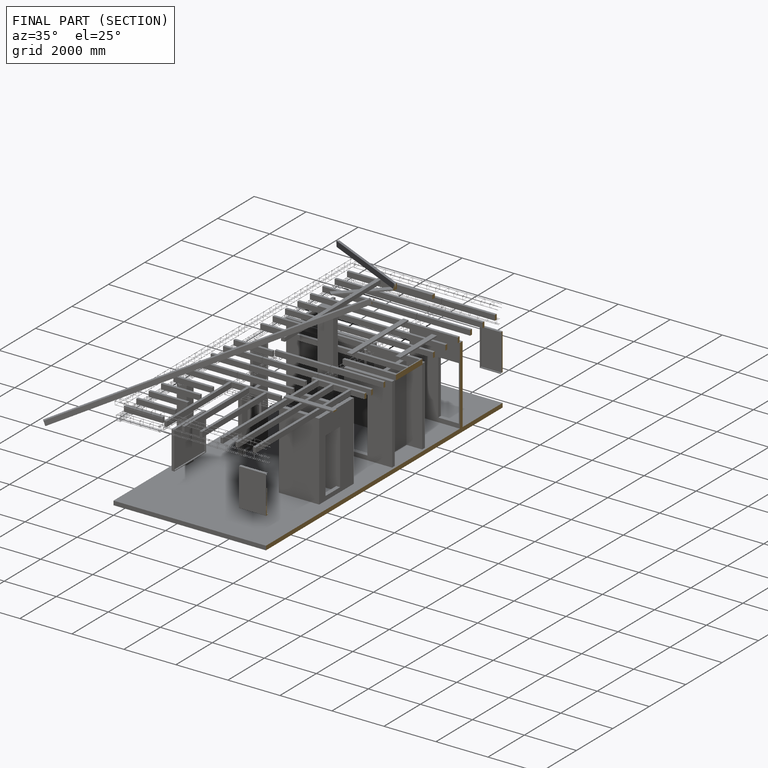
[diagram: finished part — half-section view (interior)]
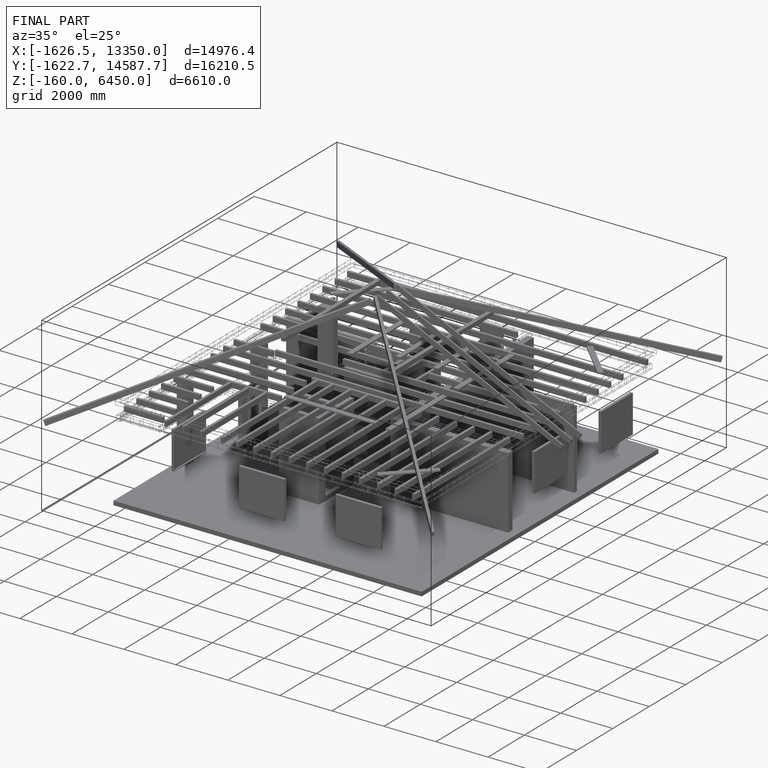
[diagram: finished part — iso view with bounding-box wireframe]
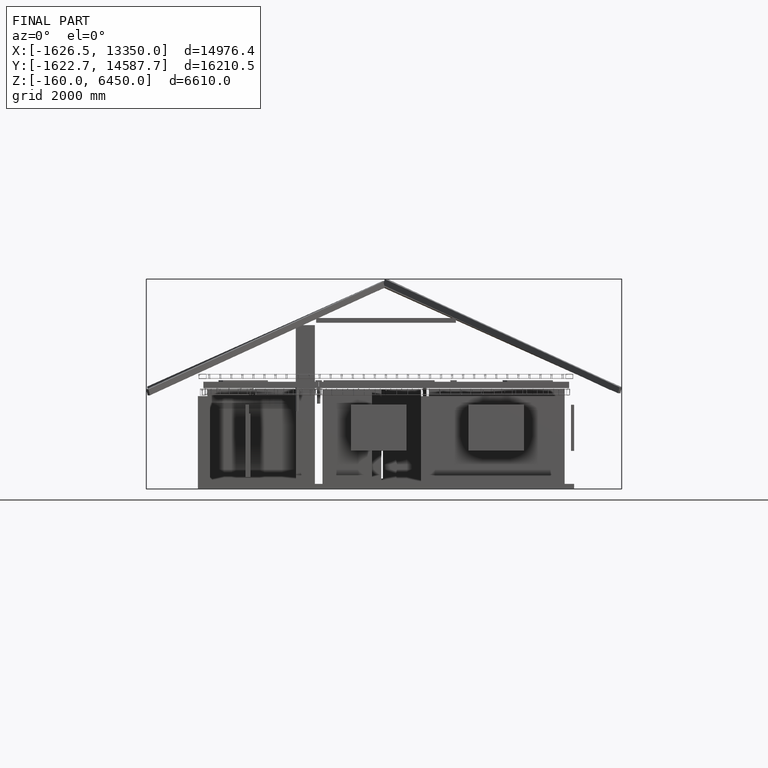
[diagram: finished part — front view with bounding-box wireframe]
